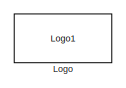
[diagram: root canvas - part 1/4, top right region]
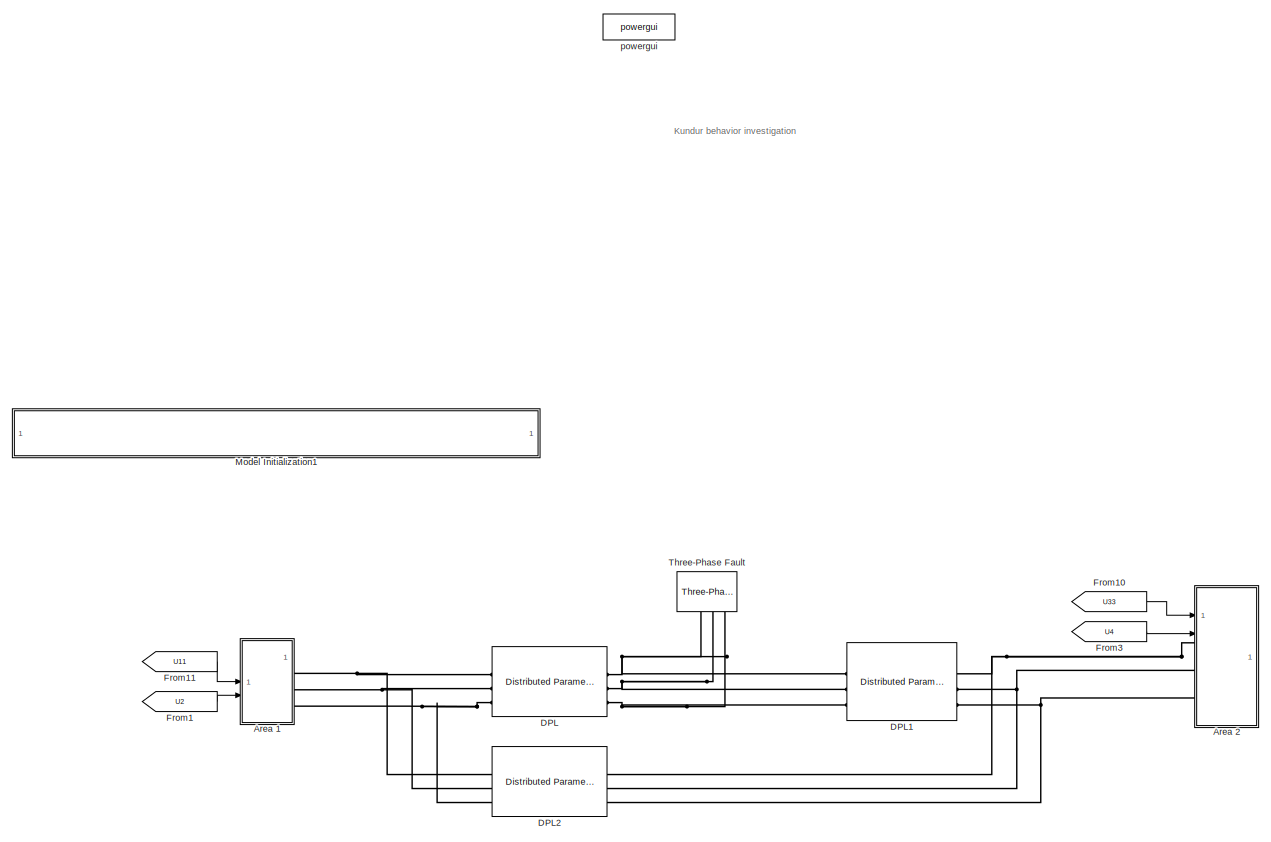
[diagram: root canvas - part 2/4, middle left region]
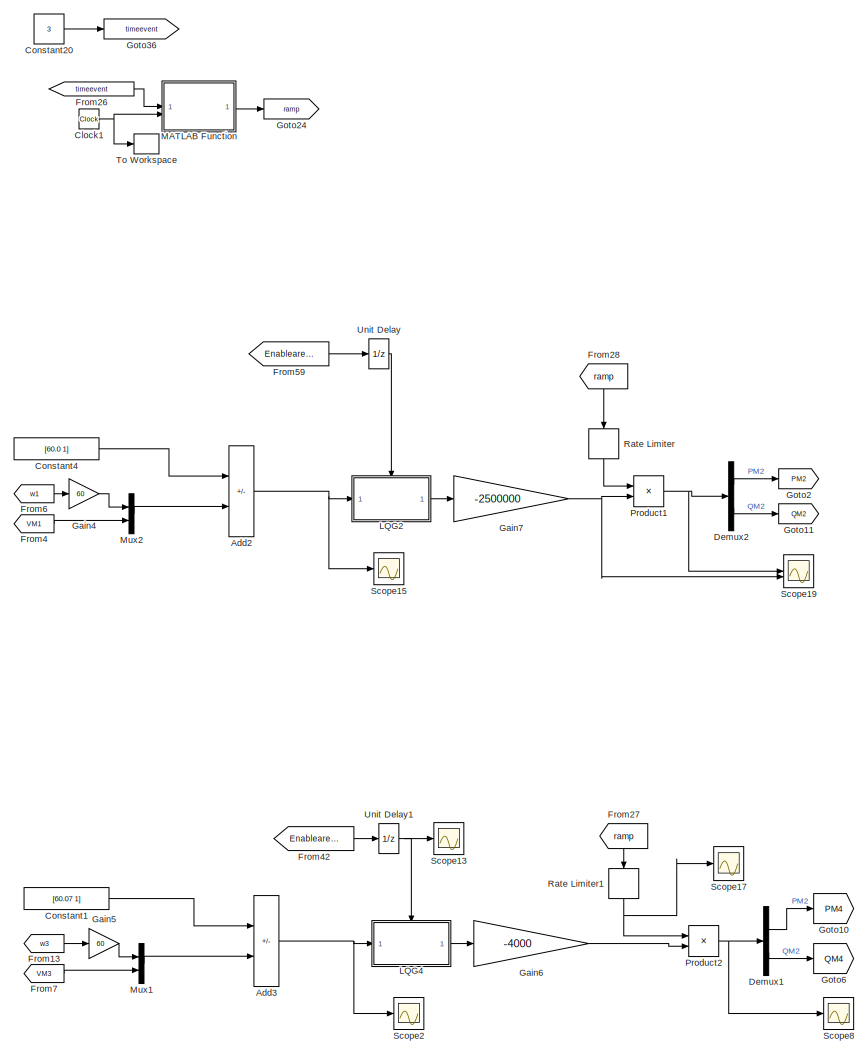
[diagram: root canvas - part 3/4, bottom center region]
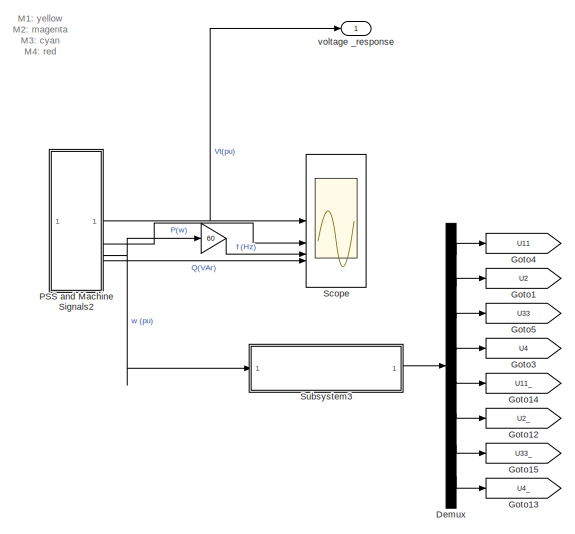
[diagram: root canvas - part 4/4, bottom center region]
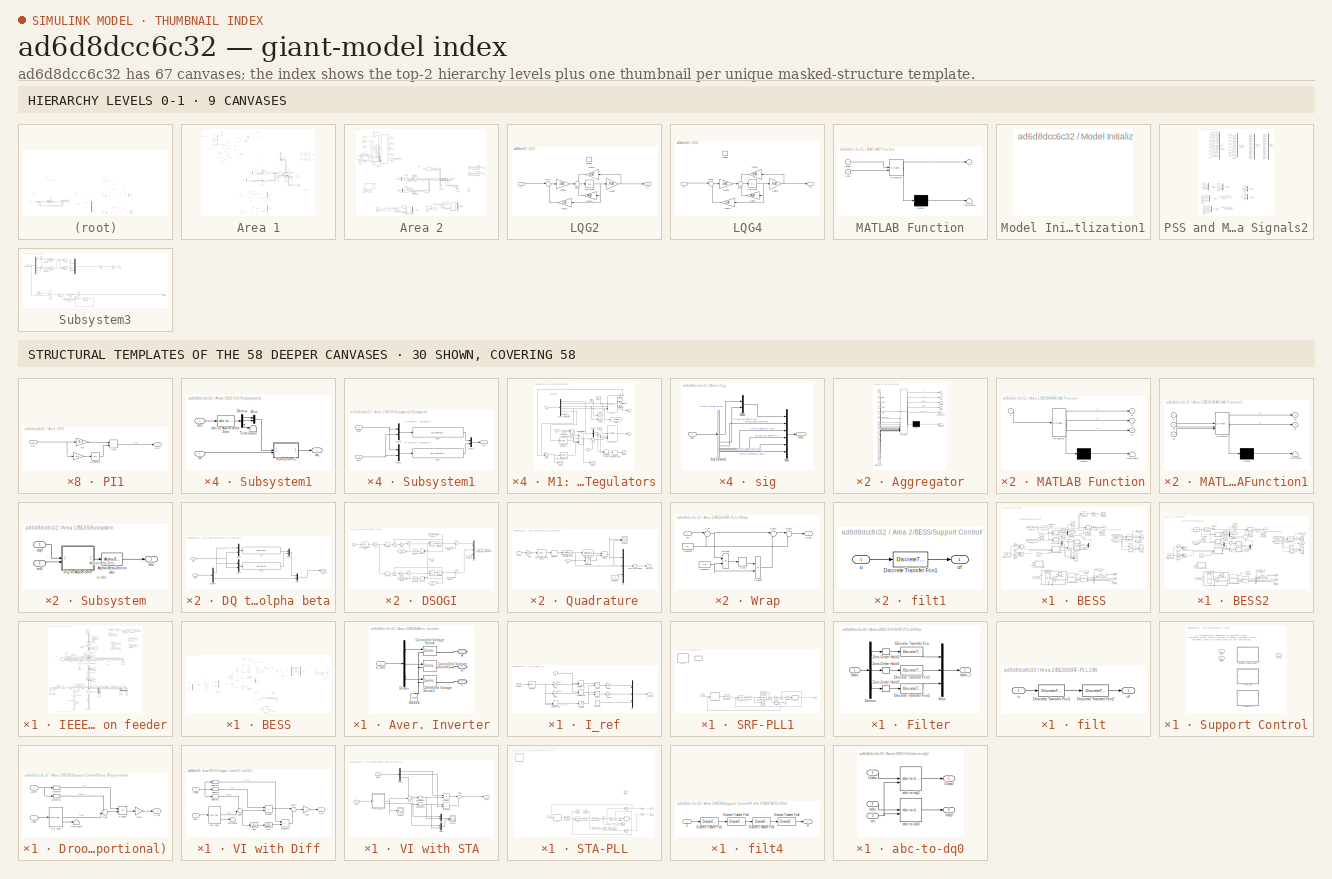
[diagram: thumbnail index - top-2 hierarchy levels (9 canvases) + 30 structural-template representatives of the remaining 58 canvases]
MODEL slx_ad6d8dcc6c32
KIND model
CONFIG AbsTol = auto
CONFIG EnableMultiTasking = on
CONFIG FixedStep = Ts
CONFIG InitFcn = Ts=50e-6;
CONFIG MaxStep = 1e-5
CONFIG MinStep = 1e-20
CONFIG PostLoadFcn = Ts=50e-6;
CONFIG PreLoadFcn = Ts=50e-6;
CONFIG RelTol = 1e-3
CONFIG SampleTimeConstraint = Unconstrained
CONFIG SolverName = VariableStepAuto
CONFIG StartTime = 0.0
CONFIG StopTime = 3
BLOCK [Gain]  
  Gain = 60
  NameLocation = top
  OutDataTypeStr = Inherit: Same as input
  ParamDataTypeStr = Inherit: Same as input
  SaturateOnIntegerOverflow = on
BLOCK [Sum] Add2
  IconShape = rectangular
  Inputs = +-
BLOCK [Sum] Add3
  IconShape = rectangular
  Inputs = +-
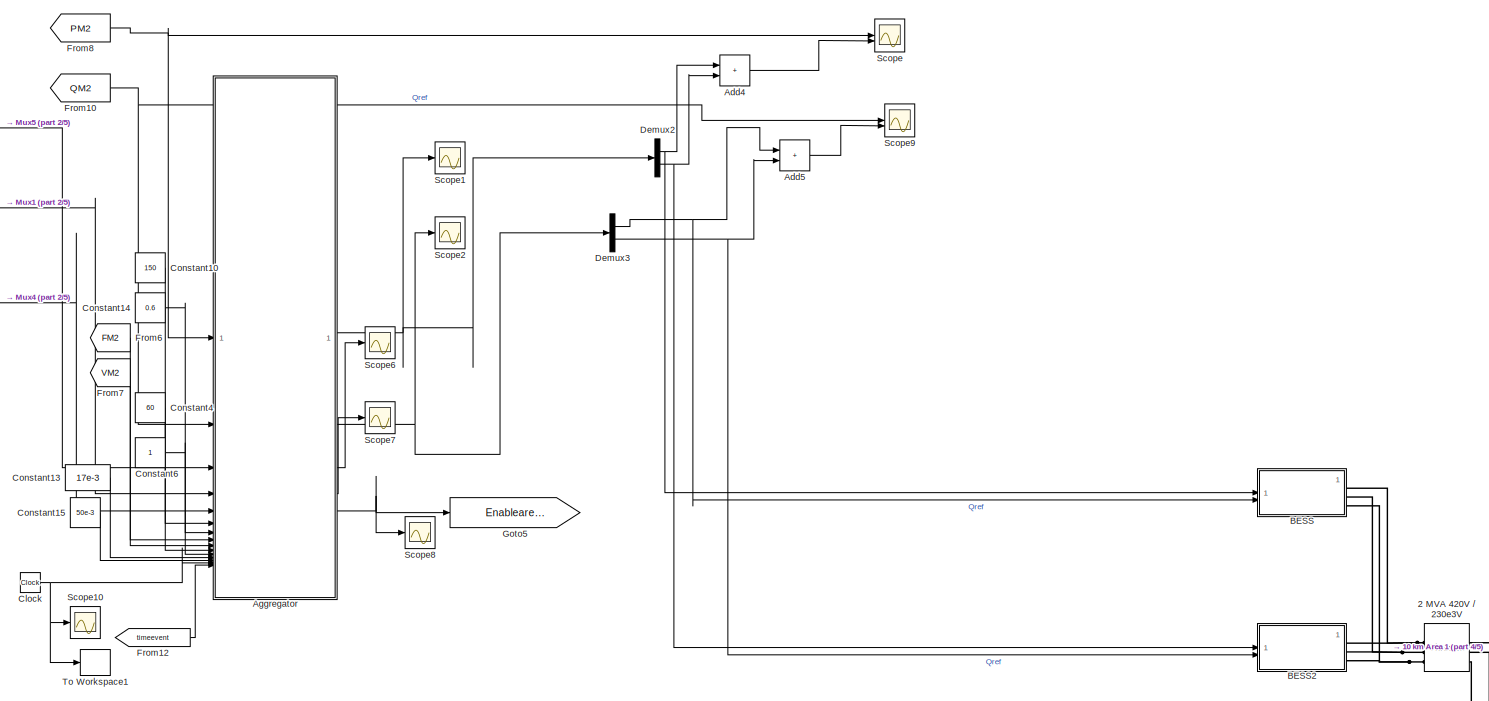
[diagram: Area 1 - part 1/5, top center region]
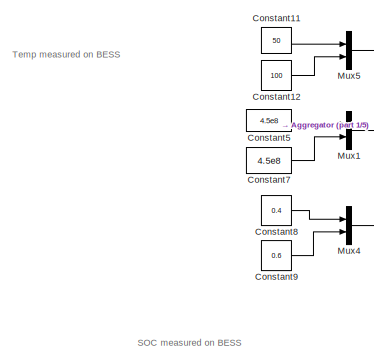
[diagram: Area 1 - part 2/5, top left region]
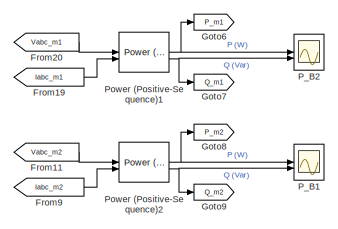
[diagram: Area 1 - part 3/5, top right region]
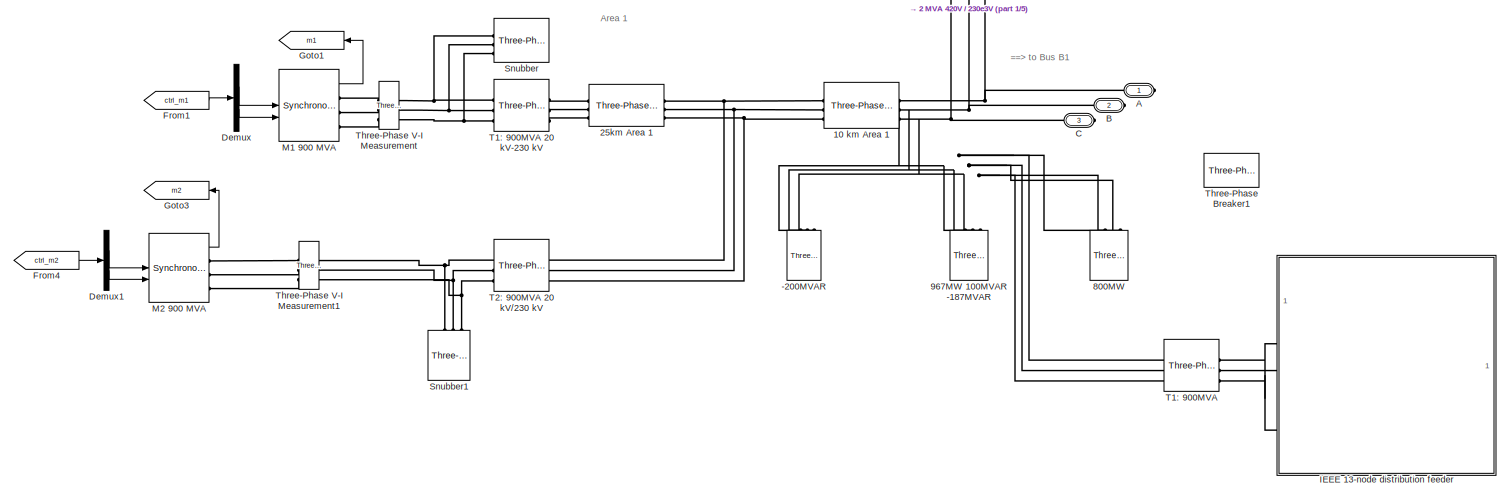
[diagram: Area 1 - part 4/5, central region]
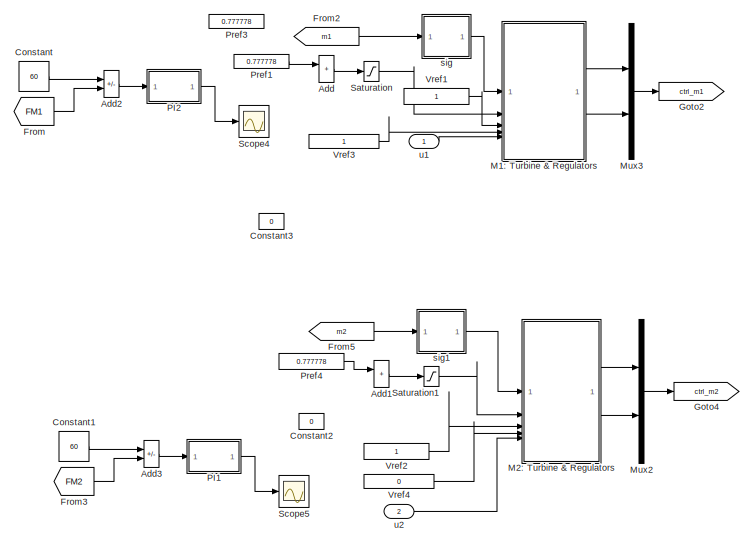
[diagram: Area 1 - part 5/5, bottom center region]
BLOCK [SubSystem] Area 1
BLOCK [PMIOPort] Area 1/ A
  Side = Right
BLOCK [PMIOPort] Area 1/ B
  Port = 2
  Side = Right
BLOCK [PMIOPort] Area 1/ C
  Port = 3
  Side = Right
BLOCK [Reference] Area 1/-200MVAR  REF=spsThreePhaseParallelRLCLoadLib/Three-Phase
Parallel RLC Load
  AttributesFormatString = \n
  NameLocation = right
  SourceBlock = spsThreePhaseParallelRLCLoadLib/Three-Phase\nParallel RLC Load
  SourceType = Three-Phase Parallel RLC Load
BLOCK [Reference] Area 1/10 km Area 1  REF=spsThreePhasePISectionLineLib/Three-Phase
PI Section Line
  AttributesFormatString = \n
  SourceBlock = spsThreePhasePISectionLineLib/Three-Phase\nPI Section Line
  SourceType = Three-Phase PI Section Line
BLOCK [Reference] Area 1/2 MVA 420V // 230e3V  REF=spsThreePhaseTransformerTwoWindingsLib/Three-Phase
Transformer
(Two Windings)
  AttributesFormatString = \n
  Commented = on
  NameLocation = top
  SourceBlock = spsThreePhaseTransformerTwoWindingsLib/Three-Phase\nTransformer\n(Two Windings)
  SourceType = Three-Phase Transformer (Two Windings)
BLOCK [Reference] Area 1/25km Area 1  REF=spsThreePhasePISectionLineLib/Three-Phase
PI Section Line
  AttributesFormatString = \n
  SourceBlock = spsThreePhasePISectionLineLib/Three-Phase\nPI Section Line
  SourceType = Three-Phase PI Section Line
BLOCK [Reference] Area 1/800MW   REF=spsThreePhaseParallelRLCLoadLib/Three-Phase
Parallel RLC Load
  AttributesFormatString = \n
  NameLocation = left
  SourceBlock = spsThreePhaseParallelRLCLoadLib/Three-Phase\nParallel RLC Load
  SourceType = Three-Phase Parallel RLC Load
BLOCK [Reference] Area 1/967MW 100MVAR -187MVAR  REF=spsThreePhaseParallelRLCLoadLib/Three-Phase
Parallel RLC Load
  AttributesFormatString = \n
  NameLocation = left
  SourceBlock = spsThreePhaseParallelRLCLoadLib/Three-Phase\nParallel RLC Load
  SourceType = Three-Phase Parallel RLC Load
BLOCK [Sum] Area 1/Add
  IconShape = rectangular
BLOCK [Sum] Area 1/Add1
  IconShape = rectangular
BLOCK [Sum] Area 1/Add2
  IconShape = rectangular
  Inputs = +-
BLOCK [Sum] Area 1/Add3
  IconShape = rectangular
  Inputs = +-
BLOCK [Sum] Area 1/Add4
  Commented = on
  IconShape = rectangular
BLOCK [Sum] Area 1/Add5
  Commented = on
  IconShape = rectangular
BLOCK [SubSystem] Area 1/Aggregator
  Commented = on
  ErrorFcn = Stateflow.Translate.translate
  PermitHierarchicalResolution = ExplicitOnly
  SFBlockType = MATLAB Function
  TreatAsAtomicUnit = on
BLOCK [Demux] Area 1/Aggregator/ Demux 
  Outputs = 1
BLOCK [S-Function] Area 1/Aggregator/ SFunction 
  EnableBusSupport = off
  FunctionName = sf_sfun
  PortCounts = [15 6]
  SFcnIsStateOwnerBlock = off
  SFunctionDeploymentMode = off
  Tag = Stateflow S-Function 12
BLOCK [Terminator] Area 1/Aggregator/ Terminator 
BLOCK [Inport] Area 1/Aggregator/DBf
  Port = 12
BLOCK [Inport] Area 1/Aggregator/DBv
  Port = 13
BLOCK [Outport] Area 1/Aggregator/P
  VectorParamsAs1DForOutWhenUnconnected = off
BLOCK [Inport] Area 1/Aggregator/Plqg
BLOCK [Outport] Area 1/Aggregator/Q
  Port = 2
  VectorParamsAs1DForOutWhenUnconnected = off
BLOCK [Inport] Area 1/Aggregator/Qlqg
  Port = 2
BLOCK [Inport] Area 1/Aggregator/SOC
  Port = 5
BLOCK [Inport] Area 1/Aggregator/Smax
  Port = 4
BLOCK [Inport] Area 1/Aggregator/Temp
  Port = 3
BLOCK [Inport] Area 1/Aggregator/Temp_max
  Port = 6
BLOCK [Inport] Area 1/Aggregator/Vk
  Port = 9
BLOCK [Inport] Area 1/Aggregator/Vref
  Port = 11
BLOCK [Inport] Area 1/Aggregator/beta
  Port = 7
BLOCK [Outport] Area 1/Aggregator/contingency
  Port = 5
  VectorParamsAs1DForOutWhenUnconnected = off
BLOCK [Outport] Area 1/Aggregator/deltaV
  Port = 4
  VectorParamsAs1DForOutWhenUnconnected = off
BLOCK [Outport] Area 1/Aggregator/deltaf
  Port = 3
  VectorParamsAs1DForOutWhenUnconnected = off
BLOCK [Inport] Area 1/Aggregator/fk
  Port = 8
BLOCK [Inport] Area 1/Aggregator/fref
  Port = 10
BLOCK [Inport] Area 1/Aggregator/time
  Port = 14
BLOCK [Inport] Area 1/Aggregator/timeevent
  Port = 15
BLOCK [SubSystem] Area 1/BESS
  Commented = on
BLOCK [Reference] Area 1/BESS/B1  REF=spsThreePhaseVIMeasurementLib/Three-Phase
V-I Measurement
  SourceBlock = spsThreePhaseVIMeasurementLib/Three-Phase\nV-I Measurement
  SourceType = Three-Phase VI Measurement
BLOCK [Clock] Area 1/BESS/Clock
  Commented = on
BLOCK [Constant] Area 1/BESS/Constant1
  Value = 0
BLOCK [Reference] Area 1/BESS/DC Voltage Source1  REF=spsDCVoltageSourceLib/DC Voltage Source
  NameLocation = right
  SourceBlock = spsDCVoltageSourceLib/DC Voltage Source
  SourceType = DC Voltage Source
BLOCK [Delay] Area 1/BESS/Delay One Step
  DelayLength = 1
  InputPortMap = u0
  NameLocation = right
BLOCK [Demux] Area 1/BESS/Demux
  Outputs = 2
BLOCK [Demux] Area 1/BESS/Demux1
  Outputs = 2
BLOCK [From] Area 1/BESS/From1
  GotoTag = Uref
  NameLocation = top
BLOCK [From] Area 1/BESS/From10
  GotoTag = Vd_C7
BLOCK [From] Area 1/BESS/From11
  GotoTag = Vabc_B2_C7
BLOCK [From] Area 1/BESS/From18
  GotoTag = Iabc_B1_C7
BLOCK [From] Area 1/BESS/From19
  CloseFcn = tagdialog Close
  GotoTag = Iabc_B1_C7
BLOCK [From] Area 1/BESS/From20
  CloseFcn = tagdialog Close
  GotoTag = Vabc_B2_C7
BLOCK [Gain] Area 1/BESS/Gain
  Gain = 1/420
BLOCK [Gain] Area 1/BESS/Gain1
  Gain = 1/420
BLOCK [Goto] Area 1/BESS/Goto
  GotoTag = Uref
BLOCK [Goto] Area 1/BESS/Goto1
  GotoTag = Vd_C7
BLOCK [Goto] Area 1/BESS/Goto2
  GotoTag = Vabc_B2_C7
BLOCK [Goto] Area 1/BESS/Goto3
  GotoTag = Iabc_B1_C7
BLOCK [Goto] Area 1/BESS/Goto4
  GotoTag = P_B1
  TagVisibility = global
BLOCK [Goto] Area 1/BESS/Goto5
  GotoTag = Q_B1
  TagVisibility = global
BLOCK [Reference] Area 1/BESS/L  REF=spsThreePhaseSeriesRLCBranchLib/Three-Phase
Series RLC Branch
  AttributesFormatString = \n
  SourceBlock = spsThreePhaseSeriesRLCBranchLib/Three-Phase\nSeries RLC Branch
  SourceType = Three-Phase Series RLC Branch
BLOCK [SubSystem] Area 1/BESS/MATLAB Function
  Commented = on
  ErrorFcn = Stateflow.Translate.translate
  PermitHierarchicalResolution = ExplicitOnly
  SFBlockType = MATLAB Function
  TreatAsAtomicUnit = on
BLOCK [Demux] Area 1/BESS/MATLAB Function/ Demux 
  Outputs = 1
BLOCK [S-Function] Area 1/BESS/MATLAB Function/ SFunction 
  EnableBusSupport = off
  FunctionName = sf_sfun
  PortCounts = [1 4]
  SFcnIsStateOwnerBlock = off
  SFunctionDeploymentMode = off
  Tag = Stateflow S-Function 18
BLOCK [Terminator] Area 1/BESS/MATLAB Function/ Terminator 
BLOCK [Inport] Area 1/BESS/MATLAB Function/u
BLOCK [Outport] Area 1/BESS/MATLAB Function/y1
  VectorParamsAs1DForOutWhenUnconnected = off
BLOCK [Outport] Area 1/BESS/MATLAB Function/y2
  Port = 2
  VectorParamsAs1DForOutWhenUnconnected = off
BLOCK [Outport] Area 1/BESS/MATLAB Function/y3
  Port = 3
  VectorParamsAs1DForOutWhenUnconnected = off
BLOCK [SubSystem] Area 1/BESS/MATLAB Function1
  ErrorFcn = Stateflow.Translate.translate
  PermitHierarchicalResolution = ExplicitOnly
  SFBlockType = MATLAB Function
  TreatAsAtomicUnit = on
BLOCK [Demux] Area 1/BESS/MATLAB Function1/ Demux 
  Outputs = 1
BLOCK [S-Function] Area 1/BESS/MATLAB Function1/ SFunction 
  EnableBusSupport = off
  FunctionName = sf_sfun
  PortCounts = [3 3]
  SFcnIsStateOwnerBlock = off
  SFunctionDeploymentMode = off
  Tag = Stateflow S-Function 19
BLOCK [Terminator] Area 1/BESS/MATLAB Function1/ Terminator 
BLOCK [Inport] Area 1/BESS/MATLAB Function1/P
BLOCK [Inport] Area 1/BESS/MATLAB Function1/Q
  Port = 2
BLOCK [Outport] Area 1/BESS/MATLAB Function1/id
  VectorParamsAs1DForOutWhenUnconnected = off
BLOCK [Outport] Area 1/BESS/MATLAB Function1/iq
  Port = 2
  VectorParamsAs1DForOutWhenUnconnected = off
BLOCK [Inport] Area 1/BESS/MATLAB Function1/vd
  Port = 3
BLOCK [Mux] Area 1/BESS/Mux1
  DisplayOption = bar
  Inputs = 3
BLOCK [Reference] Area 1/BESS/PLL (3ph)  REF=spsPLL3phLib/PLL
(3ph)
  SourceBlock = spsPLL3phLib/PLL\n(3ph)
  SourceType = PLL (3ph)
BLOCK [Scope] Area 1/BESS/P_B2
  Floating = off
  NumInputPorts = 2
  ScopeSpecificationString = Simulink.scopes.TimeScopeBlockCfg('CurrentConfiguration', extmgr.ConfigurationSet(extmgr.Configuration('Core','General UI',true),extmgr.Configuration('Core','Source UI',true),extmgr.Configuration('Sources','WiredSimulink',true,'DataLoggingSaveFormat','Array','DataLoggingDecimation','1','DataLoggingDecimateData',true,'DataLoggingVariableName','ScopeData14'),extmgr.Configuration('Visuals','Time Doma...<+1748ch>
BLOCK [Reference] Area 1/BESS/Power (Positive-Sequence)1  REF=spsPowerPositiveSequenceLib/Power
(Positive-Sequence)
  SourceBlock = spsPowerPositiveSequenceLib/Power\n(Positive-Sequence)
  SourceType = Power (Positive-Sequence)
BLOCK [Inport] Area 1/BESS/Pref
BLOCK [Inport] Area 1/BESS/Qref
  Port = 2
BLOCK [Scope] Area 1/BESS/Scope
  Floating = off
  NumInputPorts = 4
  ScopeSpecificationString = Simulink.scopes.TimeScopeBlockCfg('CurrentConfiguration', extmgr.ConfigurationSet(extmgr.Configuration('Core','General UI',true),extmgr.Configuration('Core','Source UI',true),extmgr.Configuration('Sources','WiredSimulink',true,'DataLoggingVariableName','ScopeData1'),extmgr.Configuration('Visuals','Time Domain',true,'SerializedDisplays',{struct('MinYLimReal','-41340.4868','MaxYLimReal','361737.5023...<+1441ch>
BLOCK [Scope] Area 1/BESS/Scope1
  Floating = off
  NumInputPorts = 1
  ScopeSpecificationString = Simulink.scopes.TimeScopeBlockCfg('CurrentConfiguration', extmgr.ConfigurationSet(extmgr.Configuration('Core','General UI',true),extmgr.Configuration('Core','Source UI',true),extmgr.Configuration('Sources','WiredSimulink',true,'DataLoggingVariableName','ScopeData2'),extmgr.Configuration('Visuals','Time Domain',true,'SerializedDisplays',{struct('MinYLimReal','-3.14966','MaxYLimReal','4.59294','YLab...<+1457ch>
BLOCK [Scope] Area 1/BESS/Scope10
  Floating = off
  NumInputPorts = 1
  ScopeSpecificationString = Simulink.scopes.TimeScopeBlockCfg('CurrentConfiguration', extmgr.ConfigurationSet(extmgr.Configuration('Core','General UI',true),extmgr.Configuration('Core','Source UI',true),extmgr.Configuration('Sources','WiredSimulink',true,'DataLoggingVariableName','ScopeData15'),extmgr.Configuration('Visuals','Time Domain',true,'SerializedDisplays',{struct('MinYLimReal','-3.14966','MaxYLimReal','4.59294','YLa...<+1457ch>
BLOCK [Scope] Area 1/BESS/Scope4
  Floating = off
  NumInputPorts = 1
  ScopeSpecificationString = Simulink.scopes.TimeScopeBlockCfg('CurrentConfiguration', extmgr.ConfigurationSet(extmgr.Configuration('Core','General UI',true),extmgr.Configuration('Core','Source UI',true),extmgr.Configuration('Sources','WiredSimulink',true,'DataLoggingVariableName','ScopeData17'),extmgr.Configuration('Visuals','Time Domain',true,'SerializedDisplays',{struct('MinYLimReal','-181.83771','MaxYLimReal','400.30232',...<+1472ch>
BLOCK [Scope] Area 1/BESS/Scope5
  Floating = off
  NumInputPorts = 1
  ScopeSpecificationString = Simulink.scopes.TimeScopeBlockCfg('CurrentConfiguration', extmgr.ConfigurationSet(extmgr.Configuration('Core','General UI',true),extmgr.Configuration('Core','Source UI',true),extmgr.Configuration('Sources','WiredSimulink',true,'DataLoggingVariableName','ScopeData18'),extmgr.Configuration('Visuals','Time Domain',true,'SerializedDisplays',{struct('MinYLimReal','-30198.86418','MaxYLimReal','4921.2622...<+1486ch>
BLOCK [Scope] Area 1/BESS/Scope6
  Floating = off
  NumInputPorts = 1
  ScopeSpecificationString = Simulink.scopes.TimeScopeBlockCfg('CurrentConfiguration', extmgr.ConfigurationSet(extmgr.Configuration('Core','General UI',true),extmgr.Configuration('Core','Source UI',true),extmgr.Configuration('Sources','WiredSimulink',true,'DataLoggingVariableName','ScopeData19'),extmgr.Configuration('Visuals','Time Domain',true,'SerializedDisplays',{struct('MinYLimReal','-151885.089','MaxYLimReal','156089.336...<+1474ch>
BLOCK [Scope] Area 1/BESS/Scope8
  Floating = off
  NumInputPorts = 1
  ScopeSpecificationString = Simulink.scopes.TimeScopeBlockCfg('CurrentConfiguration', extmgr.ConfigurationSet(extmgr.Configuration('Core','General UI',true),extmgr.Configuration('Core','Source UI',true),extmgr.Configuration('Sources','WiredSimulink',true,'DataLoggingVariableName','ScopeData20'),extmgr.Configuration('Visuals','Time Domain',true,'SerializedDisplays',{struct('MinYLimReal','-0.79647','MaxYLimReal','7.06873','YLa...<+1442ch>
BLOCK [Scope] Area 1/BESS/Scope9
  Floating = off
  NumInputPorts = 1
  ScopeSpecificationString = Simulink.scopes.TimeScopeBlockCfg('CurrentConfiguration', extmgr.ConfigurationSet(extmgr.Configuration('Core','General UI',true),extmgr.Configuration('Core','Source UI',true),extmgr.Configuration('Sources','WiredSimulink',true,'DataLoggingVariableName','ScopeData21'),extmgr.Configuration('Visuals','Time Domain',true,'SerializedDisplays',{struct('MinYLimReal','-98503.17516','MaxYLimReal','144860.71...<+1546ch>
BLOCK [Selector] Area 1/BESS/Selector
  IndexOptions = Index vector (dialog)
  Indices = [1]
  InputPortWidth = 3
  OutputSizes = 1
BLOCK [Selector] Area 1/BESS/Selector1
  IndexOptions = Index vector (dialog)
  Indices = [1]
  InputPortWidth = 3
  OutputSizes = 1
BLOCK [Reference] Area 1/BESS/Series RLC Branch1  REF=spsSeriesRLCBranchLib/Series RLC Branch
  NameLocation = right
  SourceBlock = spsSeriesRLCBranchLib/Series RLC Branch
  SourceType = Series RLC Branch
BLOCK [Reference] Area 1/BESS/Stair Generator  REF=spsStairGeneratorLib/Stair
Generator
  NameLocation = top
  SourceBlock = spsStairGeneratorLib/Stair\nGenerator
  SourceType = Stair Generator
BLOCK [SubSystem] Area 1/BESS/Subsystem
BLOCK [Reference] Area 1/BESS/Subsystem/Alpha-Beta-Zero to abc  REF=spsAlphaBetaZerotoabcLib/Alpha-Beta-Zero
to abc
  SourceBlock = spsAlphaBetaZerotoabcLib/Alpha-Beta-Zero\nto abc
  SourceType = Alpha-Beta-Zero to abc Transformation
BLOCK [SubSystem] Area 1/BESS/Subsystem/DQ to Alpha beta
BLOCK [Demux] Area 1/BESS/Subsystem/DQ to Alpha beta/Demux4
  Outputs = [2 1]
BLOCK [Fcn] Area 1/BESS/Subsystem/DQ to Alpha beta/Fcn
  Expr = u[1]*sin(u[3]) + u[2]*cos(u[3])
BLOCK [Fcn] Area 1/BESS/Subsystem/DQ to Alpha beta/Fcn1
  Expr = -u[1]*cos(u[3]) + u[2]*sin(u[3])
BLOCK [Mux] Area 1/BESS/Subsystem/DQ to Alpha beta/Mux1
  DisplayOption = bar
  Inputs = [2 1]
BLOCK [Mux] Area 1/BESS/Subsystem/DQ to Alpha beta/Mux4
  DisplayOption = bar
  Inputs = 2
BLOCK [Mux] Area 1/BESS/Subsystem/DQ to Alpha beta/Mux5
  DisplayOption = bar
  Inputs = [2 1]
BLOCK [Mux] Area 1/BESS/Subsystem/DQ to Alpha beta/Mux6
  DisplayOption = bar
  Inputs = [2 1]
BLOCK [Outport] Area 1/BESS/Subsystem/DQ to Alpha beta/al_be_0
  VectorParamsAs1DForOutWhenUnconnected = off
BLOCK [Inport] Area 1/BESS/Subsystem/DQ to Alpha beta/dq0
  PortDimensions = 3
BLOCK [Inport] Area 1/BESS/Subsystem/DQ to Alpha beta/wt1
  Port = 2
  PortDimensions = 1
BLOCK [Outport] Area 1/BESS/Subsystem/abc
  VectorParamsAs1DForOutWhenUnconnected = off
BLOCK [Inport] Area 1/BESS/Subsystem/dq0
  PortDimensions = 3
BLOCK [Inport] Area 1/BESS/Subsystem/wt1
  Port = 2
  PortDimensions = 1
BLOCK [SubSystem] Area 1/BESS/Subsystem1
BLOCK [Demux] Area 1/BESS/Subsystem1/Demux
  Outputs = 3
BLOCK [Mux] Area 1/BESS/Subsystem1/Mux
  DisplayOption = bar
  Inputs = 2
BLOCK [SubSystem] Area 1/BESS/Subsystem1/Subsystem1
BLOCK [Fcn] Area 1/BESS/Subsystem1/Subsystem1/Fcn
  Expr = u[1]*sin(u[3]) - u[2]*cos(u[3])
BLOCK [Fcn] Area 1/BESS/Subsystem1/Subsystem1/Fcn1
  Expr = u[1]*cos(u[3]) + u[2]*sin(u[3])
BLOCK [Mux] Area 1/BESS/Subsystem1/Subsystem1/Mux4
  DisplayOption = bar
  Inputs = 2
BLOCK [Mux] Area 1/BESS/Subsystem1/Subsystem1/Mux5
  DisplayOption = bar
  Inputs = [2 1]
BLOCK [Mux] Area 1/BESS/Subsystem1/Subsystem1/Mux6
  DisplayOption = bar
  Inputs = [2 1]
BLOCK [Inport] Area 1/BESS/Subsystem1/Subsystem1/al_be
  PortDimensions = 2
BLOCK [Outport] Area 1/BESS/Subsystem1/Subsystem1/dq
  VectorParamsAs1DForOutWhenUnconnected = off
BLOCK [Inport] Area 1/BESS/Subsystem1/Subsystem1/wt1
  Port = 2
  PortDimensions = 1
BLOCK [Terminator] Area 1/BESS/Subsystem1/Terminator
BLOCK [Inport] Area 1/BESS/Subsystem1/abc
  Port = 2
  PortDimensions = 3
BLOCK [Reference] Area 1/BESS/Subsystem1/abc to Alpha-Beta-Zero  REF=spsabctoAlphaBetaZeroLib/abc to
Alpha-Beta-Zero
  SourceBlock = spsabctoAlphaBetaZeroLib/abc to\nAlpha-Beta-Zero
  SourceType = abc to Alpha-Beta-Zero Transformation
BLOCK [Outport] Area 1/BESS/Subsystem1/dq
  VectorParamsAs1DForOutWhenUnconnected = off
BLOCK [Inport] Area 1/BESS/Subsystem1/wt
  PortDimensions = 1
BLOCK [SubSystem] Area 1/BESS/Subsystem2
BLOCK [Demux] Area 1/BESS/Subsystem2/Demux
  Outputs = 3
BLOCK [Mux] Area 1/BESS/Subsystem2/Mux
  DisplayOption = bar
  Inputs = 2
BLOCK [SubSystem] Area 1/BESS/Subsystem2/Subsystem1
BLOCK [Fcn] Area 1/BESS/Subsystem2/Subsystem1/Fcn
  Expr = u[1]*sin(u[3]) - u[2]*cos(u[3])
BLOCK [Fcn] Area 1/BESS/Subsystem2/Subsystem1/Fcn1
  Expr = u[1]*cos(u[3]) + u[2]*sin(u[3])
BLOCK [Mux] Area 1/BESS/Subsystem2/Subsystem1/Mux4
  DisplayOption = bar
  Inputs = 2
BLOCK [Mux] Area 1/BESS/Subsystem2/Subsystem1/Mux5
  DisplayOption = bar
  Inputs = [2 1]
BLOCK [Mux] Area 1/BESS/Subsystem2/Subsystem1/Mux6
  DisplayOption = bar
  Inputs = [2 1]
BLOCK [Inport] Area 1/BESS/Subsystem2/Subsystem1/al_be
  PortDimensions = 2
BLOCK [Outport] Area 1/BESS/Subsystem2/Subsystem1/dq
  VectorParamsAs1DForOutWhenUnconnected = off
BLOCK [Inport] Area 1/BESS/Subsystem2/Subsystem1/wt1
  Port = 2
  PortDimensions = 1
BLOCK [Terminator] Area 1/BESS/Subsystem2/Terminator
BLOCK [Inport] Area 1/BESS/Subsystem2/abc
  Port = 2
  PortDimensions = 3
BLOCK [Reference] Area 1/BESS/Subsystem2/abc to Alpha-Beta-Zero  REF=spsabctoAlphaBetaZeroLib/abc to
Alpha-Beta-Zero
  SourceBlock = spsabctoAlphaBetaZeroLib/abc to\nAlpha-Beta-Zero
  SourceType = abc to Alpha-Beta-Zero Transformation
BLOCK [Outport] Area 1/BESS/Subsystem2/dq
  VectorParamsAs1DForOutWhenUnconnected = off
BLOCK [Inport] Area 1/BESS/Subsystem2/wt
  PortDimensions = 1
BLOCK [SubSystem] Area 1/BESS/Subsystem3
BLOCK [Sum] Area 1/BESS/Subsystem3/Add
  IconShape = rectangular
BLOCK [Integrator] Area 1/BESS/Subsystem3/Integrator
BLOCK [Gain] Area 1/BESS/Subsystem3/Ki
  Gain = Ki
BLOCK [Gain] Area 1/BESS/Subsystem3/Kp
  Gain = Kp
BLOCK [Inport] Area 1/BESS/Subsystem3/e(S)
BLOCK [Outport] Area 1/BESS/Subsystem3/u(S)
  VectorParamsAs1DForOutWhenUnconnected = off
BLOCK [SubSystem] Area 1/BESS/Subsystem4
BLOCK [Sum] Area 1/BESS/Subsystem4/Add
  IconShape = rectangular
BLOCK [Integrator] Area 1/BESS/Subsystem4/Integrator
BLOCK [Gain] Area 1/BESS/Subsystem4/Ki
  Gain = Ki
BLOCK [Gain] Area 1/BESS/Subsystem4/Kp
  Gain = Kp
BLOCK [Inport] Area 1/BESS/Subsystem4/e(S)
BLOCK [Outport] Area 1/BESS/Subsystem4/u(S)
  VectorParamsAs1DForOutWhenUnconnected = off
BLOCK [Sum] Area 1/BESS/Sum1
  Inputs = |-+
BLOCK [Sum] Area 1/BESS/Sum2
  Inputs = |-+
BLOCK [Switch] Area 1/BESS/Switch1
  SaturateOnIntegerOverflow = off
  Threshold = 1
BLOCK [Switch] Area 1/BESS/Switch2
  SaturateOnIntegerOverflow = off
  Threshold = 1
BLOCK [Terminator] Area 1/BESS/Terminator
BLOCK [Terminator] Area 1/BESS/Terminator1
BLOCK [Reference] Area 1/BESS/VSC (Average Model)  REF=spsUniversalBridgeLib/Universal Bridge
  SourceBlock = spsUniversalBridgeLib/Universal Bridge
  SourceType = Universal Bridge
BLOCK [Scope] Area 1/BESS/V_I grid
  Floating = off
  NumInputPorts = 2
  ScopeSpecificationString = Simulink.scopes.TimeScopeBlockCfg('CurrentConfiguration', extmgr.ConfigurationSet(extmgr.Configuration('Core','General UI',true),extmgr.Configuration('Core','Source UI',true),extmgr.Configuration('Sources','WiredSimulink',true,'DataLoggingSaveFormat','Array','DataLoggingDecimation','1','DataLoggingDecimateData',true,'DataLoggingVariableName','ScopeData22'),extmgr.Configuration('Visuals','Time Doma...<+2324ch>
BLOCK [Scope] Area 1/BESS/Vdc_bus1
  Commented = on
  Floating = off
  NumInputPorts = 1
  ScopeSpecificationString = Simulink.scopes.TimeScopeBlockCfg('CurrentConfiguration', extmgr.ConfigurationSet(extmgr.Configuration('Core','General UI',true),extmgr.Configuration('Core','Source UI',true),extmgr.Configuration('Sources','WiredSimulink',true,'DataLoggingVariableName','ScopeData23'),extmgr.Configuration('Visuals','Time Domain',true,'SerializedDisplays',{struct('MinYLimReal','-322.16362','MaxYLimReal','2857.28873'...<+1497ch>
BLOCK [Reference] Area 1/BESS/Voltage Measurement1  REF=spsVoltageMeasurementLib/Voltage Measurement
  Commented = on
  SourceBlock = spsVoltageMeasurementLib/Voltage Measurement
  SourceType = Voltage Measurement
  UserDataPersistent = on
BLOCK [Constant] Area 1/BESS/Vref1 1
  Value = 0
BLOCK [Constant] Area 1/BESS/Vref1 2
  Value = 0
BLOCK [PMIOPort] Area 1/BESS/a
  Side = Right
BLOCK [PMIOPort] Area 1/BESS/b
  Port = 2
  Side = Right
BLOCK [PMIOPort] Area 1/BESS/c
  Port = 3
  Side = Right
BLOCK [Reference] Area 1/BESS/dq0 to abc  REF=spsdq0toabcLib/dq0 to abc
  SourceBlock = spsdq0toabcLib/dq0 to abc
  SourceType = dq0 to abc Transformation
BLOCK [SubSystem] Area 1/BESS2 
  Commented = on
BLOCK [Reference] Area 1/BESS2 /B1  REF=spsThreePhaseVIMeasurementLib/Three-Phase
V-I Measurement
  SourceBlock = spsThreePhaseVIMeasurementLib/Three-Phase\nV-I Measurement
  SourceType = Three-Phase VI Measurement
BLOCK [Clock] Area 1/BESS2 /Clock
  Commented = on
BLOCK [Constant] Area 1/BESS2 /Constant1
  Value = 0
BLOCK [Reference] Area 1/BESS2 /DC Voltage Source1  REF=spsDCVoltageSourceLib/DC Voltage Source
  NameLocation = right
  SourceBlock = spsDCVoltageSourceLib/DC Voltage Source
  SourceType = DC Voltage Source
BLOCK [Delay] Area 1/BESS2 /Delay One Step
  DelayLength = 1
  InputPortMap = u0
  NameLocation = right
BLOCK [Demux] Area 1/BESS2 /Demux
  Outputs = 2
BLOCK [Demux] Area 1/BESS2 /Demux1
  Outputs = 2
BLOCK [From] Area 1/BESS2 /From1
  GotoTag = Uref
  NameLocation = top
BLOCK [From] Area 1/BESS2 /From10
  GotoTag = Vd_C7
BLOCK [From] Area 1/BESS2 /From11
  GotoTag = Vabc_B2_C7
BLOCK [From] Area 1/BESS2 /From18
  GotoTag = Iabc_B1_C7
BLOCK [From] Area 1/BESS2 /From19
  CloseFcn = tagdialog Close
  GotoTag = Iabc_B1_C7
BLOCK [From] Area 1/BESS2 /From20
  CloseFcn = tagdialog Close
  GotoTag = Vabc_B2_C7
BLOCK [Gain] Area 1/BESS2 /Gain
  Gain = 1/420
BLOCK [Goto] Area 1/BESS2 /Goto
  GotoTag = Uref
BLOCK [Goto] Area 1/BESS2 /Goto1
  GotoTag = Vd_C7
BLOCK [Goto] Area 1/BESS2 /Goto2
  GotoTag = Vabc_B2_C7
BLOCK [Goto] Area 1/BESS2 /Goto3
  GotoTag = Iabc_B1_C7
BLOCK [Goto] Area 1/BESS2 /Goto4
  GotoTag = P_B2
  TagVisibility = global
BLOCK [Goto] Area 1/BESS2 /Goto5
  GotoTag = Q_B2
  TagVisibility = global
BLOCK [Reference] Area 1/BESS2 /L  REF=spsThreePhaseSeriesRLCBranchLib/Three-Phase
Series RLC Branch
  AttributesFormatString = \n
  SourceBlock = spsThreePhaseSeriesRLCBranchLib/Three-Phase\nSeries RLC Branch
  SourceType = Three-Phase Series RLC Branch
BLOCK [SubSystem] Area 1/BESS2 /MATLAB Function
  Commented = on
  ErrorFcn = Stateflow.Translate.translate
  PermitHierarchicalResolution = ExplicitOnly
  SFBlockType = MATLAB Function
  TreatAsAtomicUnit = on
BLOCK [Demux] Area 1/BESS2 /MATLAB Function/ Demux 
  Outputs = 1
BLOCK [S-Function] Area 1/BESS2 /MATLAB Function/ SFunction 
  EnableBusSupport = off
  FunctionName = sf_sfun
  PortCounts = [1 4]
  SFcnIsStateOwnerBlock = off
  SFunctionDeploymentMode = off
  Tag = Stateflow S-Function 6
BLOCK [Terminator] Area 1/BESS2 /MATLAB Function/ Terminator 
BLOCK [Inport] Area 1/BESS2 /MATLAB Function/u
BLOCK [Outport] Area 1/BESS2 /MATLAB Function/y1
  VectorParamsAs1DForOutWhenUnconnected = off
BLOCK [Outport] Area 1/BESS2 /MATLAB Function/y2
  Port = 2
  VectorParamsAs1DForOutWhenUnconnected = off
BLOCK [Outport] Area 1/BESS2 /MATLAB Function/y3
  Port = 3
  VectorParamsAs1DForOutWhenUnconnected = off
BLOCK [SubSystem] Area 1/BESS2 /MATLAB Function1
  ErrorFcn = Stateflow.Translate.translate
  PermitHierarchicalResolution = ExplicitOnly
  SFBlockType = MATLAB Function
  TreatAsAtomicUnit = on
BLOCK [Demux] Area 1/BESS2 /MATLAB Function1/ Demux 
  Outputs = 1
BLOCK [S-Function] Area 1/BESS2 /MATLAB Function1/ SFunction 
  EnableBusSupport = off
  FunctionName = sf_sfun
  PortCounts = [3 3]
  SFcnIsStateOwnerBlock = off
  SFunctionDeploymentMode = off
  Tag = Stateflow S-Function 7
BLOCK [Terminator] Area 1/BESS2 /MATLAB Function1/ Terminator 
BLOCK [Inport] Area 1/BESS2 /MATLAB Function1/P
BLOCK [Inport] Area 1/BESS2 /MATLAB Function1/Q
  Port = 2
BLOCK [Outport] Area 1/BESS2 /MATLAB Function1/id
  VectorParamsAs1DForOutWhenUnconnected = off
BLOCK [Outport] Area 1/BESS2 /MATLAB Function1/iq
  Port = 2
  VectorParamsAs1DForOutWhenUnconnected = off
BLOCK [Inport] Area 1/BESS2 /MATLAB Function1/vd
  Port = 3
BLOCK [Mux] Area 1/BESS2 /Mux1
  DisplayOption = bar
  Inputs = 3
BLOCK [Reference] Area 1/BESS2 /PLL (3ph)  REF=spsPLL3phLib/PLL
(3ph)
  SourceBlock = spsPLL3phLib/PLL\n(3ph)
  SourceType = PLL (3ph)
BLOCK [Scope] Area 1/BESS2 /P_B2
  Floating = off
  NumInputPorts = 2
  ScopeSpecificationString = Simulink.scopes.TimeScopeBlockCfg('CurrentConfiguration', extmgr.ConfigurationSet(extmgr.Configuration('Core','General UI',true),extmgr.Configuration('Core','Source UI',true),extmgr.Configuration('Sources','WiredSimulink',true,'DataLoggingSaveFormat','Array','DataLoggingDecimation','1','DataLoggingDecimateData',true,'DataLoggingVariableName','ScopeData14'),extmgr.Configuration('Visuals','Time Doma...<+1774ch>
BLOCK [Reference] Area 1/BESS2 /Power (Positive-Sequence)1  REF=spsPowerPositiveSequenceLib/Power
(Positive-Sequence)
  SourceBlock = spsPowerPositiveSequenceLib/Power\n(Positive-Sequence)
  SourceType = Power (Positive-Sequence)
BLOCK [Inport] Area 1/BESS2 /Pref
BLOCK [Inport] Area 1/BESS2 /Qref
  Port = 2
BLOCK [Scope] Area 1/BESS2 /Scope10
  Floating = off
  NumInputPorts = 1
  ScopeSpecificationString = Simulink.scopes.TimeScopeBlockCfg('CurrentConfiguration', extmgr.ConfigurationSet(extmgr.Configuration('Core','General UI',true),extmgr.Configuration('Core','Source UI',true),extmgr.Configuration('Sources','WiredSimulink',true,'DataLoggingVariableName','ScopeData15'),extmgr.Configuration('Visuals','Time Domain',true,'SerializedDisplays',{struct('MinYLimReal','-4534352.98313','MaxYLimReal','5763407...<+1503ch>
BLOCK [Scope] Area 1/BESS2 /Scope4
  Floating = off
  NumInputPorts = 1
  ScopeSpecificationString = Simulink.scopes.TimeScopeBlockCfg('CurrentConfiguration', extmgr.ConfigurationSet(extmgr.Configuration('Core','General UI',true),extmgr.Configuration('Core','Source UI',true),extmgr.Configuration('Sources','WiredSimulink',true,'DataLoggingVariableName','ScopeData17'),extmgr.Configuration('Visuals','Time Domain',true,'SerializedDisplays',{struct('MinYLimReal','-36.97693','MaxYLimReal','332.79233','...<+1443ch>
BLOCK [Scope] Area 1/BESS2 /Scope5
  Floating = off
  NumInputPorts = 1
  ScopeSpecificationString = Simulink.scopes.TimeScopeBlockCfg('CurrentConfiguration', extmgr.ConfigurationSet(extmgr.Configuration('Core','General UI',true),extmgr.Configuration('Core','Source UI',true),extmgr.Configuration('Sources','WiredSimulink',true,'DataLoggingVariableName','ScopeData18'),extmgr.Configuration('Visuals','Time Domain',true,'SerializedDisplays',{struct('MinYLimReal','-30198.86418','MaxYLimReal','4921.2622...<+1486ch>
BLOCK [Scope] Area 1/BESS2 /Scope6
  Floating = off
  NumInputPorts = 1
  ScopeSpecificationString = Simulink.scopes.TimeScopeBlockCfg('CurrentConfiguration', extmgr.ConfigurationSet(extmgr.Configuration('Core','General UI',true),extmgr.Configuration('Core','Source UI',true),extmgr.Configuration('Sources','WiredSimulink',true,'DataLoggingVariableName','ScopeData19'),extmgr.Configuration('Visuals','Time Domain',true,'SerializedDisplays',{struct('MinYLimReal','-146061406.10965','MaxYLimReal','18879...<+1504ch>
BLOCK [Scope] Area 1/BESS2 /Scope8
  Floating = off
  NumInputPorts = 1
  ScopeSpecificationString = Simulink.scopes.TimeScopeBlockCfg('CurrentConfiguration', extmgr.ConfigurationSet(extmgr.Configuration('Core','General UI',true),extmgr.Configuration('Core','Source UI',true),extmgr.Configuration('Sources','WiredSimulink',true,'DataLoggingVariableName','ScopeData20'),extmgr.Configuration('Visuals','Time Domain',true,'SerializedDisplays',{struct('MinYLimReal','-0.79647','MaxYLimReal','7.06873','YLa...<+1442ch>
BLOCK [Scope] Area 1/BESS2 /Scope9
  Floating = off
  NumInputPorts = 1
  ScopeSpecificationString = Simulink.scopes.TimeScopeBlockCfg('CurrentConfiguration', extmgr.ConfigurationSet(extmgr.Configuration('Core','General UI',true),extmgr.Configuration('Core','Source UI',true),extmgr.Configuration('Sources','WiredSimulink',true,'DataLoggingVariableName','ScopeData21'),extmgr.Configuration('Visuals','Time Domain',true,'SerializedDisplays',{struct('MinYLimReal','-5096.06665','MaxYLimReal','5601.42624...<+1482ch>
BLOCK [Selector] Area 1/BESS2 /Selector
  IndexOptions = Index vector (dialog)
  Indices = [1]
  InputPortWidth = 3
  OutputSizes = 1
BLOCK [Selector] Area 1/BESS2 /Selector1
  IndexOptions = Index vector (dialog)
  Indices = [1]
  InputPortWidth = 3
  OutputSizes = 1
BLOCK [Reference] Area 1/BESS2 /Series RLC Branch1  REF=spsSeriesRLCBranchLib/Series RLC Branch
  NameLocation = right
  SourceBlock = spsSeriesRLCBranchLib/Series RLC Branch
  SourceType = Series RLC Branch
BLOCK [Reference] Area 1/BESS2 /Stair Generator  REF=spsStairGeneratorLib/Stair
Generator
  NameLocation = top
  SourceBlock = spsStairGeneratorLib/Stair\nGenerator
  SourceType = Stair Generator
BLOCK [SubSystem] Area 1/BESS2 /Subsystem
BLOCK [Reference] Area 1/BESS2 /Subsystem/Alpha-Beta-Zero to abc  REF=spsAlphaBetaZerotoabcLib/Alpha-Beta-Zero
to abc
  SourceBlock = spsAlphaBetaZerotoabcLib/Alpha-Beta-Zero\nto abc
  SourceType = Alpha-Beta-Zero to abc Transformation
BLOCK [SubSystem] Area 1/BESS2 /Subsystem/DQ to Alpha beta
BLOCK [Demux] Area 1/BESS2 /Subsystem/DQ to Alpha beta/Demux4
  Outputs = [2 1]
BLOCK [Fcn] Area 1/BESS2 /Subsystem/DQ to Alpha beta/Fcn
  Expr = u[1]*sin(u[3]) + u[2]*cos(u[3])
BLOCK [Fcn] Area 1/BESS2 /Subsystem/DQ to Alpha beta/Fcn1
  Expr = -u[1]*cos(u[3]) + u[2]*sin(u[3])
BLOCK [Mux] Area 1/BESS2 /Subsystem/DQ to Alpha beta/Mux1
  DisplayOption = bar
  Inputs = [2 1]
BLOCK [Mux] Area 1/BESS2 /Subsystem/DQ to Alpha beta/Mux4
  DisplayOption = bar
  Inputs = 2
BLOCK [Mux] Area 1/BESS2 /Subsystem/DQ to Alpha beta/Mux5
  DisplayOption = bar
  Inputs = [2 1]
BLOCK [Mux] Area 1/BESS2 /Subsystem/DQ to Alpha beta/Mux6
  DisplayOption = bar
  Inputs = [2 1]
BLOCK [Outport] Area 1/BESS2 /Subsystem/DQ to Alpha beta/al_be_0
  VectorParamsAs1DForOutWhenUnconnected = off
BLOCK [Inport] Area 1/BESS2 /Subsystem/DQ to Alpha beta/dq0
  PortDimensions = 3
BLOCK [Inport] Area 1/BESS2 /Subsystem/DQ to Alpha beta/wt1
  Port = 2
  PortDimensions = 1
BLOCK [Outport] Area 1/BESS2 /Subsystem/abc
  VectorParamsAs1DForOutWhenUnconnected = off
BLOCK [Inport] Area 1/BESS2 /Subsystem/dq0
  PortDimensions = 3
BLOCK [Inport] Area 1/BESS2 /Subsystem/wt1
  Port = 2
  PortDimensions = 1
BLOCK [SubSystem] Area 1/BESS2 /Subsystem1
BLOCK [Demux] Area 1/BESS2 /Subsystem1/Demux
  Outputs = 3
BLOCK [Mux] Area 1/BESS2 /Subsystem1/Mux
  DisplayOption = bar
  Inputs = 2
BLOCK [SubSystem] Area 1/BESS2 /Subsystem1/Subsystem1
BLOCK [Fcn] Area 1/BESS2 /Subsystem1/Subsystem1/Fcn
  Expr = u[1]*sin(u[3]) - u[2]*cos(u[3])
BLOCK [Fcn] Area 1/BESS2 /Subsystem1/Subsystem1/Fcn1
  Expr = u[1]*cos(u[3]) + u[2]*sin(u[3])
BLOCK [Mux] Area 1/BESS2 /Subsystem1/Subsystem1/Mux4
  DisplayOption = bar
  Inputs = 2
BLOCK [Mux] Area 1/BESS2 /Subsystem1/Subsystem1/Mux5
  DisplayOption = bar
  Inputs = [2 1]
BLOCK [Mux] Area 1/BESS2 /Subsystem1/Subsystem1/Mux6
  DisplayOption = bar
  Inputs = [2 1]
BLOCK [Inport] Area 1/BESS2 /Subsystem1/Subsystem1/al_be
  PortDimensions = 2
BLOCK [Outport] Area 1/BESS2 /Subsystem1/Subsystem1/dq
  VectorParamsAs1DForOutWhenUnconnected = off
BLOCK [Inport] Area 1/BESS2 /Subsystem1/Subsystem1/wt1
  Port = 2
  PortDimensions = 1
BLOCK [Terminator] Area 1/BESS2 /Subsystem1/Terminator
BLOCK [Inport] Area 1/BESS2 /Subsystem1/abc
  Port = 2
  PortDimensions = 3
BLOCK [Reference] Area 1/BESS2 /Subsystem1/abc to Alpha-Beta-Zero  REF=spsabctoAlphaBetaZeroLib/abc to
Alpha-Beta-Zero
  SourceBlock = spsabctoAlphaBetaZeroLib/abc to\nAlpha-Beta-Zero
  SourceType = abc to Alpha-Beta-Zero Transformation
BLOCK [Outport] Area 1/BESS2 /Subsystem1/dq
  VectorParamsAs1DForOutWhenUnconnected = off
BLOCK [Inport] Area 1/BESS2 /Subsystem1/wt
  PortDimensions = 1
BLOCK [SubSystem] Area 1/BESS2 /Subsystem2
BLOCK [Demux] Area 1/BESS2 /Subsystem2/Demux
  Outputs = 3
BLOCK [Mux] Area 1/BESS2 /Subsystem2/Mux
  DisplayOption = bar
  Inputs = 2
BLOCK [SubSystem] Area 1/BESS2 /Subsystem2/Subsystem1
BLOCK [Fcn] Area 1/BESS2 /Subsystem2/Subsystem1/Fcn
  Expr = u[1]*sin(u[3]) - u[2]*cos(u[3])
BLOCK [Fcn] Area 1/BESS2 /Subsystem2/Subsystem1/Fcn1
  Expr = u[1]*cos(u[3]) + u[2]*sin(u[3])
BLOCK [Mux] Area 1/BESS2 /Subsystem2/Subsystem1/Mux4
  DisplayOption = bar
  Inputs = 2
BLOCK [Mux] Area 1/BESS2 /Subsystem2/Subsystem1/Mux5
  DisplayOption = bar
  Inputs = [2 1]
BLOCK [Mux] Area 1/BESS2 /Subsystem2/Subsystem1/Mux6
  DisplayOption = bar
  Inputs = [2 1]
BLOCK [Inport] Area 1/BESS2 /Subsystem2/Subsystem1/al_be
  PortDimensions = 2
BLOCK [Outport] Area 1/BESS2 /Subsystem2/Subsystem1/dq
  VectorParamsAs1DForOutWhenUnconnected = off
BLOCK [Inport] Area 1/BESS2 /Subsystem2/Subsystem1/wt1
  Port = 2
  PortDimensions = 1
BLOCK [Terminator] Area 1/BESS2 /Subsystem2/Terminator
BLOCK [Inport] Area 1/BESS2 /Subsystem2/abc
  Port = 2
  PortDimensions = 3
BLOCK [Reference] Area 1/BESS2 /Subsystem2/abc to Alpha-Beta-Zero  REF=spsabctoAlphaBetaZeroLib/abc to
Alpha-Beta-Zero
  SourceBlock = spsabctoAlphaBetaZeroLib/abc to\nAlpha-Beta-Zero
  SourceType = abc to Alpha-Beta-Zero Transformation
BLOCK [Outport] Area 1/BESS2 /Subsystem2/dq
  VectorParamsAs1DForOutWhenUnconnected = off
BLOCK [Inport] Area 1/BESS2 /Subsystem2/wt
  PortDimensions = 1
BLOCK [SubSystem] Area 1/BESS2 /Subsystem3
BLOCK [Sum] Area 1/BESS2 /Subsystem3/Add
  IconShape = rectangular
BLOCK [Integrator] Area 1/BESS2 /Subsystem3/Integrator
BLOCK [Gain] Area 1/BESS2 /Subsystem3/Ki
  Gain = Ki
BLOCK [Gain] Area 1/BESS2 /Subsystem3/Kp
  Gain = Kp
BLOCK [Inport] Area 1/BESS2 /Subsystem3/e(S)
BLOCK [Outport] Area 1/BESS2 /Subsystem3/u(S)
  VectorParamsAs1DForOutWhenUnconnected = off
BLOCK [SubSystem] Area 1/BESS2 /Subsystem4
BLOCK [Sum] Area 1/BESS2 /Subsystem4/Add
  IconShape = rectangular
BLOCK [Integrator] Area 1/BESS2 /Subsystem4/Integrator
BLOCK [Gain] Area 1/BESS2 /Subsystem4/Ki
  Gain = Ki
BLOCK [Gain] Area 1/BESS2 /Subsystem4/Kp
  Gain = Kp
BLOCK [Inport] Area 1/BESS2 /Subsystem4/e(S)
BLOCK [Outport] Area 1/BESS2 /Subsystem4/u(S)
  VectorParamsAs1DForOutWhenUnconnected = off
BLOCK [Sum] Area 1/BESS2 /Sum1
  Inputs = |-+
BLOCK [Sum] Area 1/BESS2 /Sum2
  Inputs = |-+
BLOCK [Switch] Area 1/BESS2 /Switch1
  SaturateOnIntegerOverflow = off
  Threshold = 1
BLOCK [Switch] Area 1/BESS2 /Switch2
  SaturateOnIntegerOverflow = off
  Threshold = 1
BLOCK [Terminator] Area 1/BESS2 /Terminator
BLOCK [Terminator] Area 1/BESS2 /Terminator1
BLOCK [Reference] Area 1/BESS2 /VSC (Average Model)  REF=spsUniversalBridgeLib/Universal Bridge
  SourceBlock = spsUniversalBridgeLib/Universal Bridge
  SourceType = Universal Bridge
BLOCK [Scope] Area 1/BESS2 /V_I grid
  Floating = off
  NumInputPorts = 2
  ScopeSpecificationString = Simulink.scopes.TimeScopeBlockCfg('CurrentConfiguration', extmgr.ConfigurationSet(extmgr.Configuration('Core','General UI',true),extmgr.Configuration('Core','Source UI',true),extmgr.Configuration('Sources','WiredSimulink',true,'DataLoggingSaveFormat','Array','DataLoggingDecimation','1','DataLoggingDecimateData',true,'DataLoggingVariableName','ScopeData22'),extmgr.Configuration('Visuals','Time Doma...<+2350ch>
BLOCK [Scope] Area 1/BESS2 /Vdc_bus1
  Commented = on
  Floating = off
  NumInputPorts = 1
  ScopeSpecificationString = Simulink.scopes.TimeScopeBlockCfg('CurrentConfiguration', extmgr.ConfigurationSet(extmgr.Configuration('Core','General UI',true),extmgr.Configuration('Core','Source UI',true),extmgr.Configuration('Sources','WiredSimulink',true,'DataLoggingVariableName','ScopeData23'),extmgr.Configuration('Visuals','Time Domain',true,'SerializedDisplays',{struct('MinYLimReal','-322.16362','MaxYLimReal','2857.28873'...<+1497ch>
BLOCK [Reference] Area 1/BESS2 /Voltage Measurement1  REF=spsVoltageMeasurementLib/Voltage Measurement
  Commented = on
  SourceBlock = spsVoltageMeasurementLib/Voltage Measurement
  SourceType = Voltage Measurement
  UserDataPersistent = on
BLOCK [Constant] Area 1/BESS2 /Vref1 1
  Value = 0
BLOCK [Constant] Area 1/BESS2 /Vref1 2
  Value = 0
BLOCK [PMIOPort] Area 1/BESS2 /a
  Side = Right
BLOCK [PMIOPort] Area 1/BESS2 /b
  Port = 2
  Side = Right
BLOCK [PMIOPort] Area 1/BESS2 /c
  Port = 3
  Side = Right
BLOCK [Clock] Area 1/Clock
  Commented = on
  Decimation = 1
BLOCK [Constant] Area 1/Constant
  Value = 60
BLOCK [Constant] Area 1/Constant1
  Value = 60
BLOCK [Constant] Area 1/Constant10
  Commented = on
  Value = 150
BLOCK [Constant] Area 1/Constant11
  Commented = on
  Value = 50
BLOCK [Constant] Area 1/Constant12
  Commented = on
  Value = 100
BLOCK [Constant] Area 1/Constant13
  Commented = on
  Value = 17e-3
BLOCK [Constant] Area 1/Constant14
  Commented = on
  Value = 0.6
BLOCK [Constant] Area 1/Constant15
  Commented = on
  Value = 50e-3
BLOCK [Constant] Area 1/Constant2
  Commented = on
  Value = 0
BLOCK [Constant] Area 1/Constant3
  Commented = on
  Value = 0
BLOCK [Constant] Area 1/Constant4
  Commented = on
  Value = 60
BLOCK [Constant] Area 1/Constant5
  Commented = on
  Value = 4.5e8
BLOCK [Constant] Area 1/Constant6
  Commented = on
BLOCK [Constant] Area 1/Constant7
  Commented = on
  Value = 4.5e8
BLOCK [Constant] Area 1/Constant8
  Commented = on
  Value = 0.4
BLOCK [Constant] Area 1/Constant9
  Commented = on
  Value = 0.6
BLOCK [Demux] Area 1/Demux
  Outputs = [1 1]
BLOCK [Demux] Area 1/Demux1
  Outputs = [1 1]
BLOCK [Demux] Area 1/Demux2
  Commented = on
  Outputs = 2
BLOCK [Demux] Area 1/Demux3
  Commented = on
  Outputs = 2
BLOCK [From] Area 1/From
  GotoTag = FM1
  TagVisibility = global
BLOCK [From] Area 1/From1
  CloseFcn = tagdialog Close
  GotoTag = ctrl_m1
BLOCK [From] Area 1/From10
  Commented = on
  GotoTag = QM2
  TagVisibility = global
BLOCK [From] Area 1/From11
  CloseFcn = tagdialog Close
  Commented = on
  GotoTag = Vabc_m2
  TagVisibility = global
BLOCK [From] Area 1/From12
  Commented = on
  GotoTag = timeevent
  TagVisibility = global
BLOCK [From] Area 1/From19
  CloseFcn = tagdialog Close
  Commented = on
  GotoTag = Iabc_m1
  TagVisibility = global
BLOCK [From] Area 1/From2
  CloseFcn = tagdialog Close
  GotoTag = m1
BLOCK [From] Area 1/From20
  CloseFcn = tagdialog Close
  Commented = on
  GotoTag = Vabc_m1
  TagVisibility = global
BLOCK [From] Area 1/From3
  GotoTag = FM2
  TagVisibility = global
BLOCK [From] Area 1/From4
  CloseFcn = tagdialog Close
  GotoTag = ctrl_m2
BLOCK [From] Area 1/From5
  CloseFcn = tagdialog Close
  GotoTag = m2
BLOCK [From] Area 1/From6
  Commented = on
  GotoTag = FM2
  TagVisibility = global
BLOCK [From] Area 1/From7
  Commented = on
  GotoTag = VM2
  TagVisibility = global
BLOCK [From] Area 1/From8
  Commented = on
  GotoTag = PM2
  TagVisibility = global
BLOCK [From] Area 1/From9
  CloseFcn = tagdialog Close
  Commented = on
  GotoTag = Iabc_m2
  TagVisibility = global
BLOCK [Goto] Area 1/Goto1
  GotoTag = m1
  NameLocation = top
BLOCK [Goto] Area 1/Goto2
  GotoTag = ctrl_m1
BLOCK [Goto] Area 1/Goto3
  GotoTag = m2
  NameLocation = top
BLOCK [Goto] Area 1/Goto4
  GotoTag = ctrl_m2
BLOCK [Goto] Area 1/Goto5
  Commented = on
  GotoTag = Enablearea1
  TagVisibility = global
BLOCK [Goto] Area 1/Goto6
  Commented = on
  GotoTag = P_m1
  TagVisibility = global
BLOCK [Goto] Area 1/Goto7
  Commented = on
  GotoTag = Q_m1
  TagVisibility = global
BLOCK [Goto] Area 1/Goto8
  Commented = on
  GotoTag = P_m2
  TagVisibility = global
BLOCK [Goto] Area 1/Goto9
  Commented = on
  GotoTag = Q_m2
  TagVisibility = global
BLOCK [SubSystem] Area 1/IEEE 13-node distribution feeder
  Commented = on
BLOCK [Reference] Area 1/IEEE 13-node distribution feeder/ 634 Yg PQ   REF=spsThreePhaseSeriesRLCLoadLib/Three-Phase
Series RLC Load
  AttributesFormatString = P= %<Pabc> W\nQl=%<QLabc> var\nQc=%<QCabc> var
  NameLocation = right
  SourceBlock = spsThreePhaseSeriesRLCLoadLib/Three-Phase\nSeries RLC Load
  SourceType = Three-Phase Series RLC Load
BLOCK [Reference] Area 1/IEEE 13-node distribution feeder/611 I  REF=spsSeriesRLCLoadLib/Series RLC Load
  AttributesFormatString = P=%<ActivePower> W\nQl=%<InductivePower> var\nQc=%<CapacitivePower> var
  NameLocation = right
  SourceBlock = spsSeriesRLCLoadLib/Series RLC Load
  SourceType = Series RLC Load
BLOCK [Reference] Area 1/IEEE 13-node distribution feeder/611 Z  REF=spsSeriesRLCLoadLib/Series RLC Load
  AttributesFormatString = P=%<ActivePower> W\nQl=%<InductivePower> var\nQc=%<CapacitivePower> var
  NameLocation = left
  SourceBlock = spsSeriesRLCLoadLib/Series RLC Load
  SourceType = Series RLC Load
BLOCK [Reference] Area 1/IEEE 13-node distribution feeder/632  REF=spsThreePhaseVIMeasurementLib/Three-Phase
V-I Measurement
  NameLocation = left
  SourceBlock = spsThreePhaseVIMeasurementLib/Three-Phase\nV-I Measurement
  SourceType = Three-Phase VI Measurement
BLOCK [Reference] Area 1/IEEE 13-node distribution feeder/632 Yg PQ  REF=spsThreePhaseSeriesRLCLoadLib/Three-Phase
Series RLC Load
  AttributesFormatString = P= %<Pabc> W\nQl=%<QLabc> var\nQc=%<QCabc> var
  NameLocation = top
  SourceBlock = spsThreePhaseSeriesRLCLoadLib/Three-Phase\nSeries RLC Load
  SourceType = Three-Phase Series RLC Load
BLOCK [Reference] Area 1/IEEE 13-node distribution feeder/633  REF=spsThreePhaseVIMeasurementLib/Three-Phase
V-I Measurement
  SourceBlock = spsThreePhaseVIMeasurementLib/Three-Phase\nV-I Measurement
  SourceType = Three-Phase VI Measurement
BLOCK [Reference] Area 1/IEEE 13-node distribution feeder/634  REF=spsThreePhaseVIMeasurementLib/Three-Phase
V-I Measurement
  SourceBlock = spsThreePhaseVIMeasurementLib/Three-Phase\nV-I Measurement
  SourceType = Three-Phase VI Measurement
BLOCK [Reference] Area 1/IEEE 13-node distribution feeder/646_Z  REF=spsSeriesRLCLoadLib/Series RLC Load
  AttributesFormatString = P=%<ActivePower> W\nQl=%<InductivePower> var\nQc=%<CapacitivePower> var
  NameLocation = left
  SourceBlock = spsSeriesRLCLoadLib/Series RLC Load
  SourceType = Series RLC Load
BLOCK [Reference] Area 1/IEEE 13-node distribution feeder/652  Z   REF=spsSeriesRLCLoadLib/Series RLC Load
  AttributesFormatString = P=%<ActivePower> W\nQl=%<InductivePower> var\nQc=%<CapacitivePower> var
  NameLocation = left
  SourceBlock = spsSeriesRLCLoadLib/Series RLC Load
  SourceType = Series RLC Load
BLOCK [Reference] Area 1/IEEE 13-node distribution feeder/671 D PQ  REF=spsThreePhaseSeriesRLCLoadLib/Three-Phase
Series RLC Load
  AttributesFormatString = P= %<Pabcp> W\nQl=%<QLabcp> var\nQc=%<QCabcp> var
  SourceBlock = spsThreePhaseSeriesRLCLoadLib/Three-Phase\nSeries RLC Load
  SourceType = Three-Phase Series RLC Load
BLOCK [Reference] Area 1/IEEE 13-node distribution feeder/671 Yg PQ  REF=spsThreePhaseSeriesRLCLoadLib/Three-Phase
Series RLC Load
  AttributesFormatString = P= %<Pabc> W\nQl=%<QLabc> var\nQc=%<QCabc> var
  NameLocation = top
  SourceBlock = spsThreePhaseSeriesRLCLoadLib/Three-Phase\nSeries RLC Load
  SourceType = Three-Phase Series RLC Load
BLOCK [Reference] Area 1/IEEE 13-node distribution feeder/675  REF=spsThreePhaseVIMeasurementLib/Three-Phase
V-I Measurement
  SourceBlock = spsThreePhaseVIMeasurementLib/Three-Phase\nV-I Measurement
  SourceType = Three-Phase VI Measurement
BLOCK [Reference] Area 1/IEEE 13-node distribution feeder/675 Yg PQ  REF=spsThreePhaseSeriesRLCLoadLib/Three-Phase
Series RLC Load
  AttributesFormatString = P= %<Pabc> W\nQl=%<QLabc> var\nQc=%<QCabc> var
  NameLocation = left
  SourceBlock = spsThreePhaseSeriesRLCLoadLib/Three-Phase\nSeries RLC Load
  SourceType = Three-Phase Series RLC Load
BLOCK [Reference] Area 1/IEEE 13-node distribution feeder/675 Yg Z  REF=spsThreePhaseSeriesRLCLoadLib/Three-Phase
Series RLC Load
  AttributesFormatString = P= %<Pabc> W\nQl=%<QLabc> var\nQc=%<QCabc> var
  NameLocation = right
  SourceBlock = spsThreePhaseSeriesRLCLoadLib/Three-Phase\nSeries RLC Load
  SourceType = Three-Phase Series RLC Load
BLOCK [Reference] Area 1/IEEE 13-node distribution feeder/680  REF=spsThreePhaseVIMeasurementLib/Three-Phase
V-I Measurement
  NameLocation = right
  SourceBlock = spsThreePhaseVIMeasurementLib/Three-Phase\nV-I Measurement
  SourceType = Three-Phase VI Measurement
BLOCK [Reference] Area 1/IEEE 13-node distribution feeder/692  REF=spsThreePhaseVIMeasurementLib/Three-Phase
V-I Measurement
  SourceBlock = spsThreePhaseVIMeasurementLib/Three-Phase\nV-I Measurement
  SourceType = Three-Phase VI Measurement
BLOCK [Reference] Area 1/IEEE 13-node distribution feeder/692 Yg PQ3  REF=spsThreePhaseSeriesRLCLoadLib/Three-Phase
Series RLC Load
  AttributesFormatString = P= %<Pabc> W\nQl=%<QLabc> var\nQc=%<QCabc> var
  NameLocation = left
  SourceBlock = spsThreePhaseSeriesRLCLoadLib/Three-Phase\nSeries RLC Load
  SourceType = Three-Phase Series RLC Load
BLOCK [Reference] Area 1/IEEE 13-node distribution feeder/Breaker  REF=spsThreePhaseBreakerLib/Three-Phase Breaker
  SourceBlock = spsThreePhaseBreakerLib/Three-Phase Breaker
  SourceType = Three-Phase Breaker
BLOCK [Reference] Area 1/IEEE 13-node distribution feeder/Current Measurement1  REF=spsCurrentMeasurementLib/Current Measurement
  NameLocation = top
  SourceBlock = spsCurrentMeasurementLib/Current Measurement
  SourceType = Current Measurement
  UserDataPersistent = on
BLOCK [Reference] Area 1/IEEE 13-node distribution feeder/Current Measurement2  REF=spsCurrentMeasurementLib/Current Measurement
  NameLocation = left
  SourceBlock = spsCurrentMeasurementLib/Current Measurement
  SourceType = Current Measurement
  UserDataPersistent = on
BLOCK [Reference] Area 1/IEEE 13-node distribution feeder/Current Measurement3  REF=spsCurrentMeasurementLib/Current Measurement
  NameLocation = top
  SourceBlock = spsCurrentMeasurementLib/Current Measurement
  SourceType = Current Measurement
  UserDataPersistent = on
BLOCK [Reference] Area 1/IEEE 13-node distribution feeder/Current Measurement4  REF=spsCurrentMeasurementLib/Current Measurement
  NameLocation = top
  SourceBlock = spsCurrentMeasurementLib/Current Measurement
  SourceType = Current Measurement
  UserDataPersistent = on
BLOCK [Reference] Area 1/IEEE 13-node distribution feeder/Current Measurement5  REF=spsCurrentMeasurementLib/Current Measurement
  NameLocation = top
  SourceBlock = spsCurrentMeasurementLib/Current Measurement
  SourceType = Current Measurement
  UserDataPersistent = on
BLOCK [From] Area 1/IEEE 13-node distribution feeder/From1
  GotoTag = Iabc_633
  TagVisibility = global
BLOCK [From] Area 1/IEEE 13-node distribution feeder/From10
  GotoTag = Vabc_692
  TagVisibility = global
BLOCK [From] Area 1/IEEE 13-node distribution feeder/From2
  GotoTag = Vabc_633
  TagVisibility = global
BLOCK [From] Area 1/IEEE 13-node distribution feeder/From27
  GotoTag = Vabc_632
  TagVisibility = global
BLOCK [From] Area 1/IEEE 13-node distribution feeder/From3
  GotoTag = Vabc_634
  TagVisibility = global
BLOCK [From] Area 1/IEEE 13-node distribution feeder/From4
  GotoTag = Iabc_634
  TagVisibility = global
BLOCK [From] Area 1/IEEE 13-node distribution feeder/From5
  GotoTag = Iabc_675
  TagVisibility = global
BLOCK [From] Area 1/IEEE 13-node distribution feeder/From6
  GotoTag = Vabc_675
  TagVisibility = global
BLOCK [From] Area 1/IEEE 13-node distribution feeder/From7
  GotoTag = Iabc_680
  TagVisibility = global
BLOCK [From] Area 1/IEEE 13-node distribution feeder/From8
  GotoTag = Vabc_680
  TagVisibility = global
BLOCK [From] Area 1/IEEE 13-node distribution feeder/From9
  GotoTag = Iabc_692
  TagVisibility = global
BLOCK [Gain] Area 1/IEEE 13-node distribution feeder/Gain8
  Gain = 1/(4160/sqrt(3)*sqrt(2))
BLOCK [Reference] Area 1/IEEE 13-node distribution feeder/Ground  REF=spsGroundLib/Ground
  NameLocation = right
  SourceBlock = spsGroundLib/Ground
  SourceType = Ground
BLOCK [Reference] Area 1/IEEE 13-node distribution feeder/Ground14  REF=spsGroundLib/Ground
  NameLocation = right
  SourceBlock = spsGroundLib/Ground
  SourceType = Ground
BLOCK [Reference] Area 1/IEEE 13-node distribution feeder/Ground3  REF=spsGroundLib/Ground
  NameLocation = right
  SourceBlock = spsGroundLib/Ground
  SourceType = Ground
BLOCK [Reference] Area 1/IEEE 13-node distribution feeder/Ground4  REF=spsGroundLib/Ground
  NameLocation = right
  SourceBlock = spsGroundLib/Ground
  SourceType = Ground
BLOCK [Reference] Area 1/IEEE 13-node distribution feeder/Ground5  REF=spsGroundLib/Ground
  NameLocation = right
  SourceBlock = spsGroundLib/Ground
  SourceType = Ground
BLOCK [Reference] Area 1/IEEE 13-node distribution feeder/Load Flow Bar  REF=spsLoadFlowBusLib/Load Flow Bus
  AttributesFormatString = %<ID>
  NameLocation = left
  SourceBlock = spsLoadFlowBusLib/Load Flow Bus
  SourceType = Load Flow Bus
BLOCK [Reference] Area 1/IEEE 13-node distribution feeder/Load Flow Bar1  REF=spsLoadFlowBusLib/Load Flow Bus
  AttributesFormatString = %<ID>
  SourceBlock = spsLoadFlowBusLib/Load Flow Bus
  SourceType = Load Flow Bus
BLOCK [Reference] Area 1/IEEE 13-node distribution feeder/Load Flow Bar10  REF=spsLoadFlowBusLib/Load Flow Bus
  AttributesFormatString = %<ID>
  SourceBlock = spsLoadFlowBusLib/Load Flow Bus
  SourceType = Load Flow Bus
BLOCK [Reference] Area 1/IEEE 13-node distribution feeder/Load Flow Bar11  REF=spsLoadFlowBusLib/Load Flow Bus
  AttributesFormatString = %<ID>
  NameLocation = left
  SourceBlock = spsLoadFlowBusLib/Load Flow Bus
  SourceType = Load Flow Bus
BLOCK [Reference] Area 1/IEEE 13-node distribution feeder/Load Flow Bar2  REF=spsLoadFlowBusLib/Load Flow Bus
  AttributesFormatString = %<ID>
  SourceBlock = spsLoadFlowBusLib/Load Flow Bus
  SourceType = Load Flow Bus
BLOCK [Reference] Area 1/IEEE 13-node distribution feeder/Load Flow Bar3  REF=spsLoadFlowBusLib/Load Flow Bus
  AttributesFormatString = %<ID>
  SourceBlock = spsLoadFlowBusLib/Load Flow Bus
  SourceType = Load Flow Bus
BLOCK [Reference] Area 1/IEEE 13-node distribution feeder/Load Flow Bar4  REF=spsLoadFlowBusLib/Load Flow Bus
  AttributesFormatString = %<ID>
  SourceBlock = spsLoadFlowBusLib/Load Flow Bus
  SourceType = Load Flow Bus
BLOCK [Reference] Area 1/IEEE 13-node distribution feeder/Load Flow Bar5  REF=spsLoadFlowBusLib/Load Flow Bus
  AttributesFormatString = %<ID>
  NameLocation = left
  SourceBlock = spsLoadFlowBusLib/Load Flow Bus
  SourceType = Load Flow Bus
BLOCK [Reference] Area 1/IEEE 13-node distribution feeder/Load Flow Bar6  REF=spsLoadFlowBusLib/Load Flow Bus
  AttributesFormatString = %<ID>
  NameLocation = top
  SourceBlock = spsLoadFlowBusLib/Load Flow Bus
  SourceType = Load Flow Bus
BLOCK [Reference] Area 1/IEEE 13-node distribution feeder/Load Flow Bar7  REF=spsLoadFlowBusLib/Load Flow Bus
  AttributesFormatString = %<ID>
  NameLocation = top
  SourceBlock = spsLoadFlowBusLib/Load Flow Bus
  SourceType = Load Flow Bus
BLOCK [Reference] Area 1/IEEE 13-node distribution feeder/Load Flow Bar8  REF=spsLoadFlowBusLib/Load Flow Bus
  AttributesFormatString = %<ID>
  NameLocation = left
  SourceBlock = spsLoadFlowBusLib/Load Flow Bus
  SourceType = Load Flow Bus
BLOCK [Reference] Area 1/IEEE 13-node distribution feeder/Load Flow Bar9  REF=spsLoadFlowBusLib/Load Flow Bus
  AttributesFormatString = %<ID>
  SourceBlock = spsLoadFlowBusLib/Load Flow Bus
  SourceType = Load Flow Bus
BLOCK [Reference] Area 1/IEEE 13-node distribution feeder/PLL (3ph)  REF=spsPLL3phLib/PLL
(3ph)
  SourceBlock = spsPLL3phLib/PLL\n(3ph)
  SourceType = PLL (3ph)
BLOCK [Reference] Area 1/IEEE 13-node distribution feeder/Park Transform  REF=eeTransforms/Park Transform
  SourceBlock = eeTransforms/Park Transform
  SourceType = Park Transform
BLOCK [Scope] Area 1/IEEE 13-node distribution feeder/Scope
  Floating = off
  NumInputPorts = 1
  ScopeSpecificationString = Simulink.scopes.TimeScopeBlockCfg('CurrentConfiguration', extmgr.ConfigurationSet(extmgr.Configuration('Core','General UI',true),extmgr.Configuration('Core','Source UI',true),extmgr.Configuration('Sources','WiredSimulink',true,'DataLoggingVariableName','ScopeData1'),extmgr.Configuration('Visuals','Time Domain',true,'SerializedDisplays',{struct('MinYLimReal','0.59269','MaxYLimReal','1.09851','YLabe...<+1436ch>
BLOCK [Scope] Area 1/IEEE 13-node distribution feeder/Scope1
  Floating = off
  NumInputPorts = 2
  ScopeSpecificationString = Simulink.scopes.TimeScopeBlockCfg('CurrentConfiguration', extmgr.ConfigurationSet(extmgr.Configuration('Core','General UI',true),extmgr.Configuration('Core','Source UI',true),extmgr.Configuration('Sources','WiredSimulink',true,'DataLoggingVariableName','ScopeData1'),extmgr.Configuration('Visuals','Time Domain',true,'SerializedDisplays',{struct('MinYLimReal','0.59269','MaxYLimReal','1.09851','YLabe...<+1428ch>
BLOCK [Scope] Area 1/IEEE 13-node distribution feeder/Scope2
  Floating = off
  NumInputPorts = 2
  ScopeSpecificationString = Simulink.scopes.TimeScopeBlockCfg('CurrentConfiguration', extmgr.ConfigurationSet(extmgr.Configuration('Core','General UI',true),extmgr.Configuration('Core','Source UI',true),extmgr.Configuration('Sources','WiredSimulink',true,'DataLoggingVariableName','ScopeData2'),extmgr.Configuration('Visuals','Time Domain',true,'SerializedDisplays',{struct('MinYLimReal','0.59269','MaxYLimReal','1.09851','YLabe...<+1428ch>
BLOCK [Scope] Area 1/IEEE 13-node distribution feeder/Scope3
  Floating = off
  NumInputPorts = 2
  ScopeSpecificationString = Simulink.scopes.TimeScopeBlockCfg('CurrentConfiguration', extmgr.ConfigurationSet(extmgr.Configuration('Core','General UI',true),extmgr.Configuration('Core','Source UI',true),extmgr.Configuration('Sources','WiredSimulink',true,'DataLoggingVariableName','ScopeData3'),extmgr.Configuration('Visuals','Time Domain',true,'SerializedDisplays',{struct('MinYLimReal','0.59269','MaxYLimReal','1.09851','YLabe...<+1428ch>
BLOCK [Scope] Area 1/IEEE 13-node distribution feeder/Scope4
  Floating = off
  NumInputPorts = 2
  ScopeSpecificationString = Simulink.scopes.TimeScopeBlockCfg('CurrentConfiguration', extmgr.ConfigurationSet(extmgr.Configuration('Core','General UI',true),extmgr.Configuration('Core','Source UI',true),extmgr.Configuration('Sources','WiredSimulink',true,'DataLoggingVariableName','ScopeData4'),extmgr.Configuration('Visuals','Time Domain',true,'SerializedDisplays',{struct('MinYLimReal','0.59269','MaxYLimReal','1.09851','YLabe...<+1428ch>
BLOCK [Scope] Area 1/IEEE 13-node distribution feeder/Scope46
  Floating = off
  NumInputPorts = 1
  ScopeSpecificationString = Simulink.scopes.TimeScopeBlockCfg('CurrentConfiguration', extmgr.ConfigurationSet(extmgr.Configuration('Core','General UI',true),extmgr.Configuration('Core','Source UI',true),extmgr.Configuration('Sources','WiredSimulink',true,'DataLoggingVariableName','ScopeData4'),extmgr.Configuration('Visuals','Time Domain',true,'SerializedDisplays',{struct('MinYLimReal','-3745.56637','MaxYLimReal','3877.48306'...<+1472ch>
BLOCK [Scope] Area 1/IEEE 13-node distribution feeder/Scope5
  Floating = off
  NumInputPorts = 2
  ScopeSpecificationString = Simulink.scopes.TimeScopeBlockCfg('CurrentConfiguration', extmgr.ConfigurationSet(extmgr.Configuration('Core','General UI',true),extmgr.Configuration('Core','Source UI',true),extmgr.Configuration('Sources','WiredSimulink',true,'DataLoggingVariableName','ScopeData5'),extmgr.Configuration('Visuals','Time Domain',true,'SerializedDisplays',{struct('MinYLimReal','0.59269','MaxYLimReal','1.09851','YLabe...<+1428ch>
BLOCK [Selector] Area 1/IEEE 13-node distribution feeder/Selector
  IndexOptions = Index vector (dialog)
  Indices = [1]
  InputPortWidth = 3
  OutputSizes = 1
BLOCK [Reference] Area 1/IEEE 13-node distribution feeder/Sense  REF=spsThreePhaseVIMeasurementLib/Three-Phase
V-I Measurement
  NameLocation = left
  SourceBlock = spsThreePhaseVIMeasurementLib/Three-Phase\nV-I Measurement
  SourceType = Three-Phase VI Measurement
BLOCK [Reference] Area 1/IEEE 13-node distribution feeder/Sense2  REF=spsThreePhaseVIMeasurementLib/Three-Phase
V-I Measurement
  NameLocation = left
  SourceBlock = spsThreePhaseVIMeasurementLib/Three-Phase\nV-I Measurement
  SourceType = Three-Phase VI Measurement
BLOCK [Reference] Area 1/IEEE 13-node distribution feeder/Series RLC Branch  REF=spsSeriesRLCBranchLib/Series RLC Branch
  SourceBlock = spsSeriesRLCBranchLib/Series RLC Branch
  SourceType = Series RLC Branch
BLOCK [Reference] Area 1/IEEE 13-node distribution feeder/Series RLC Branch1  REF=spsSeriesRLCBranchLib/Series RLC Branch
  SourceBlock = spsSeriesRLCBranchLib/Series RLC Branch
  SourceType = Series RLC Branch
BLOCK [Reference] Area 1/IEEE 13-node distribution feeder/Series RLC Branch2  REF=spsSeriesRLCBranchLib/Series RLC Branch
  SourceBlock = spsSeriesRLCBranchLib/Series RLC Branch
  SourceType = Series RLC Branch
BLOCK [Reference] Area 1/IEEE 13-node distribution feeder/Series RLC Branch3  REF=spsSeriesRLCBranchLib/Series RLC Branch
  SourceBlock = spsSeriesRLCBranchLib/Series RLC Branch
  SourceType = Series RLC Branch
BLOCK [Reference] Area 1/IEEE 13-node distribution feeder/Series RLC Branch4  REF=spsSeriesRLCBranchLib/Series RLC Branch
  SourceBlock = spsSeriesRLCBranchLib/Series RLC Branch
  SourceType = Series RLC Branch
BLOCK [Reference] Area 1/IEEE 13-node distribution feeder/Series RLC Branch5  REF=spsSeriesRLCBranchLib/Series RLC Branch
  SourceBlock = spsSeriesRLCBranchLib/Series RLC Branch
  SourceType = Series RLC Branch
BLOCK [Reference] Area 1/IEEE 13-node distribution feeder/Series RLC Branch6  REF=spsSeriesRLCBranchLib/Series RLC Branch
  NameLocation = left
  SourceBlock = spsSeriesRLCBranchLib/Series RLC Branch
  SourceType = Series RLC Branch
BLOCK [Reference] Area 1/IEEE 13-node distribution feeder/Series RLC Branch7  REF=spsSeriesRLCBranchLib/Series RLC Branch
  SourceBlock = spsSeriesRLCBranchLib/Series RLC Branch
  SourceType = Series RLC Branch
BLOCK [Reference] Area 1/IEEE 13-node distribution feeder/Series RLC Load  REF=spsSeriesRLCLoadLib/Series RLC Load
  AttributesFormatString = \n
  NameLocation = left
  SourceBlock = spsSeriesRLCLoadLib/Series RLC Load
  SourceType = Series RLC Load
BLOCK [Terminator] Area 1/IEEE 13-node distribution feeder/Terminator
  NameLocation = top
BLOCK [Terminator] Area 1/IEEE 13-node distribution feeder/Terminator1
BLOCK [Terminator] Area 1/IEEE 13-node distribution feeder/Terminator10
  NameLocation = top
BLOCK [Terminator] Area 1/IEEE 13-node distribution feeder/Terminator2
  NameLocation = left
BLOCK [Terminator] Area 1/IEEE 13-node distribution feeder/Terminator3
  NameLocation = top
BLOCK [Terminator] Area 1/IEEE 13-node distribution feeder/Terminator4
  NameLocation = right
BLOCK [Terminator] Area 1/IEEE 13-node distribution feeder/Terminator5
BLOCK [Terminator] Area 1/IEEE 13-node distribution feeder/Terminator6
  NameLocation = left
BLOCK [Terminator] Area 1/IEEE 13-node distribution feeder/Terminator7
  NameLocation = left
BLOCK [Terminator] Area 1/IEEE 13-node distribution feeder/Terminator8
  NameLocation = top
BLOCK [Terminator] Area 1/IEEE 13-node distribution feeder/Terminator9
  NameLocation = top
BLOCK [Reference] Area 1/IEEE 13-node distribution feeder/Three-Phase Series RLC Branch  REF=spsThreePhaseSeriesRLCBranchLib/Three-Phase
Series RLC Branch
  AttributesFormatString = \n
  NameLocation = right
  SourceBlock = spsThreePhaseSeriesRLCBranchLib/Three-Phase\nSeries RLC Branch
  SourceType = Three-Phase Series RLC Branch
BLOCK [Reference] Area 1/IEEE 13-node distribution feeder/Three-Phase Series RLC Branch3  REF=spsThreePhaseSeriesRLCBranchLib/Three-Phase
Series RLC Branch
  AttributesFormatString = \n
  NameLocation = top
  SourceBlock = spsThreePhaseSeriesRLCBranchLib/Three-Phase\nSeries RLC Branch
  SourceType = Three-Phase Series RLC Branch
BLOCK [Reference] Area 1/IEEE 13-node distribution feeder/Three-Phase Series RLC Branch4  REF=spsThreePhaseSeriesRLCBranchLib/Three-Phase
Series RLC Branch
  AttributesFormatString = \n
  NameLocation = right
  SourceBlock = spsThreePhaseSeriesRLCBranchLib/Three-Phase\nSeries RLC Branch
  SourceType = Three-Phase Series RLC Branch
BLOCK [Reference] Area 1/IEEE 13-node distribution feeder/Three-Phase Series RLC Branch8  REF=spsThreePhaseSeriesRLCBranchLib/Three-Phase
Series RLC Branch
  AttributesFormatString = \n
  NameLocation = right
  SourceBlock = spsThreePhaseSeriesRLCBranchLib/Three-Phase\nSeries RLC Branch
  SourceType = Three-Phase Series RLC Branch
BLOCK [Reference] Area 1/IEEE 13-node distribution feeder/Three-Phase Series RLC Branch9  REF=spsThreePhaseSeriesRLCBranchLib/Three-Phase
Series RLC Branch
  AttributesFormatString = \n
  SourceBlock = spsThreePhaseSeriesRLCBranchLib/Three-Phase\nSeries RLC Branch
  SourceType = Three-Phase Series RLC Branch
BLOCK [Reference] Area 1/IEEE 13-node distribution feeder/Voltage Measurement9  REF=spsVoltageMeasurementLib/Voltage Measurement
  SourceBlock = spsVoltageMeasurementLib/Voltage Measurement
  SourceType = Voltage Measurement
  UserDataPersistent = on
BLOCK [Reference] Area 1/IEEE 13-node distribution feeder/XFM-1 4.16 kV //480 V  REF=spsThreePhaseTransformerTwoWindingsLib/Three-Phase
Transformer
(Two Windings)
  SourceBlock = spsThreePhaseTransformerTwoWindingsLib/Three-Phase\nTransformer\n(Two Windings)
  SourceType = Three-Phase Transformer (Two Windings)
BLOCK [PMIOPort] Area 1/IEEE 13-node distribution feeder/a
  Side = Left
BLOCK [PMIOPort] Area 1/IEEE 13-node distribution feeder/b
  Port = 2
  Side = Left
BLOCK [PMIOPort] Area 1/IEEE 13-node distribution feeder/c
  Port = 3
  Side = Left
BLOCK [Reference] Area 1/M1 900 MVA  REF=spsSynchronousMachinepuStandardLib/Synchronous Machine
pu Standard
  AttributesFormatString = \n\n
  SourceBlock = spsSynchronousMachinepuStandardLib/Synchronous Machine\npu Standard
  SourceType = Synchronous Machine
BLOCK [SubSystem] Area 1/M1: Turbine & Regulators
BLOCK [ComplexToMagnitudeAngle] Area 1/M1: Turbine & Regulators/Complex to Magnitude-Angle
  Output = Magnitude
BLOCK [Reference] Area 1/M1: Turbine & Regulators/Delta Pa PSS  REF=spsGenericPowerSystemStabilizerLib/Generic
Power System Stabilizer
  SourceBlock = spsGenericPowerSystemStabilizerLib/Generic\nPower System Stabilizer
  SourceType = Generic Power System Stabilizer
BLOCK [Reference] Area 1/M1: Turbine & Regulators/Delta w PSS (Kundur)  REF=spsGenericPowerSystemStabilizerLib/Generic
Power System Stabilizer
  SourceBlock = spsGenericPowerSystemStabilizerLib/Generic\nPower System Stabilizer
  SourceType = Generic Power System Stabilizer
BLOCK [Demux] Area 1/M1: Turbine & Regulators/Demux
  DisplayOption = none
  Outputs = 2
BLOCK [Demux] Area 1/M1: Turbine & Regulators/Demux1
  Outputs = [2 1 1 1 1 1]
BLOCK [Reference] Area 1/M1: Turbine & Regulators/EXCITATION  REF=spsExcitationSystemLib/Excitation System
  SourceBlock = spsExcitationSystemLib/Excitation System
  SourceType = Excitation System
BLOCK [Goto] Area 1/M1: Turbine & Regulators/Goto1
  GotoTag = Vt1
  TagVisibility = global
BLOCK [Goto] Area 1/M1: Turbine & Regulators/Goto2
  GotoTag = w1
  TagVisibility = global
BLOCK [Goto] Area 1/M1: Turbine & Regulators/Goto3
  Commented = on
  GotoTag = Pa1
  TagVisibility = global
BLOCK [Goto] Area 1/M1: Turbine & Regulators/Goto4
  Commented = on
  GotoTag = pss1
  TagVisibility = global
BLOCK [Goto] Area 1/M1: Turbine & Regulators/Goto6
  Commented = on
  GotoTag = Pe1
  TagVisibility = global
BLOCK [Goto] Area 1/M1: Turbine & Regulators/Goto7
  Commented = on
  GotoTag = d_theta1
  TagVisibility = global
BLOCK [MultiPortSwitch] Area 1/M1: Turbine & Regulators/Multiport Switch
  Inputs = 4
  SaturateOnIntegerOverflow = off
BLOCK [Inport] Area 1/M1: Turbine & Regulators/PSS
  Port = 4
BLOCK [Constant] Area 1/M1: Turbine & Regulators/PSS model1
  Value = 0
BLOCK [Constant] Area 1/M1: Turbine & Regulators/PSS model2
BLOCK [Outport] Area 1/M1: Turbine & Regulators/Pm
  InitialOutput = 0
  VectorParamsAs1DForOutWhenUnconnected = off
BLOCK [Inport] Area 1/M1: Turbine & Regulators/Pref
  Port = 2
BLOCK [RealImagToComplex] Area 1/M1: Turbine & Regulators/Real-Imag to Complex
BLOCK [Reference] Area 1/M1: Turbine & Regulators/STG  REF=spsSteamTurbineandGovernorLib/Steam Turbine
and Governor
  SourceBlock = spsSteamTurbineandGovernorLib/Steam Turbine\nand Governor
  SourceType = Steam Turbine and Governor
BLOCK [Sum] Area 1/M1: Turbine & Regulators/Sum
  Inputs = |++
BLOCK [Sum] Area 1/M1: Turbine & Regulators/Sum1
  IconShape = rectangular
  InputSameDT = on
  OutDataTypeStr = Inherit: Same as first input
  SaturateOnIntegerOverflow = on
BLOCK [Sum] Area 1/M1: Turbine & Regulators/Sum2
  IconShape = rectangular
  InputSameDT = on
  Inputs = -+
  OutDataTypeStr = Inherit: Same as first input
  SaturateOnIntegerOverflow = on
BLOCK [Terminator] Area 1/M1: Turbine & Regulators/Terminator
BLOCK [Terminator] Area 1/M1: Turbine & Regulators/Terminator1
BLOCK [Terminator] Area 1/M1: Turbine & Regulators/Terminator2
BLOCK [Terminator] Area 1/M1: Turbine & Regulators/Terminator3
BLOCK [Outport] Area 1/M1: Turbine & Regulators/Vf
  InitialOutput = 0
  Port = 2
  VectorParamsAs1DForOutWhenUnconnected = off
BLOCK [Inport] Area 1/M1: Turbine & Regulators/Vref
  Port = 3
BLOCK [Inport] Area 1/M1: Turbine & Regulators/m
BLOCK [Inport] Area 1/M1: Turbine & Regulators/u
  Port = 5
BLOCK [Constant] Area 1/M1: Turbine & Regulators/wref
  NameLocation = top
BLOCK [Reference] Area 1/M2 900 MVA  REF=spsSynchronousMachinepuStandardLib/Synchronous Machine
pu Standard
  AttributesFormatString = \n\n
  SourceBlock = spsSynchronousMachinepuStandardLib/Synchronous Machine\npu Standard
  SourceType = Synchronous Machine
BLOCK [SubSystem] Area 1/M2: Turbine & Regulators
BLOCK [ComplexToMagnitudeAngle] Area 1/M2: Turbine & Regulators/Complex to Magnitude-Angle
  Output = Magnitude
BLOCK [Reference] Area 1/M2: Turbine & Regulators/Delta Pa PSS1  REF=spsGenericPowerSystemStabilizerLib/Generic
Power System Stabilizer
  SourceBlock = spsGenericPowerSystemStabilizerLib/Generic\nPower System Stabilizer
  SourceType = Generic Power System Stabilizer
BLOCK [Reference] Area 1/M2: Turbine & Regulators/Delta w PSS (Kundur)  REF=spsGenericPowerSystemStabilizerLib/Generic
Power System Stabilizer
  SourceBlock = spsGenericPowerSystemStabilizerLib/Generic\nPower System Stabilizer
  SourceType = Generic Power System Stabilizer
BLOCK [Demux] Area 1/M2: Turbine & Regulators/Demux
  DisplayOption = none
  Outputs = 2
BLOCK [Demux] Area 1/M2: Turbine & Regulators/Demux1
  Outputs = [2 1 1 1 1 1]
BLOCK [Reference] Area 1/M2: Turbine & Regulators/EXCITATION  REF=spsExcitationSystemLib/Excitation System
  SourceBlock = spsExcitationSystemLib/Excitation System
  SourceType = Excitation System
BLOCK [Goto] Area 1/M2: Turbine & Regulators/Goto1
  GotoTag = Vt2
  TagVisibility = global
BLOCK [Goto] Area 1/M2: Turbine & Regulators/Goto2
  GotoTag = w2
  TagVisibility = global
BLOCK [Goto] Area 1/M2: Turbine & Regulators/Goto3
  Commented = on
  GotoTag = Pa2
  TagVisibility = global
BLOCK [Goto] Area 1/M2: Turbine & Regulators/Goto4
  Commented = on
  GotoTag = pss2
  TagVisibility = global
BLOCK [Goto] Area 1/M2: Turbine & Regulators/Goto6
  Commented = on
  GotoTag = Pe2
  TagVisibility = global
BLOCK [Goto] Area 1/M2: Turbine & Regulators/Goto7
  Commented = on
  GotoTag = d_theta2
  TagVisibility = global
BLOCK [MultiPortSwitch] Area 1/M2: Turbine & Regulators/Multiport Switch
  Inputs = 4
  SaturateOnIntegerOverflow = off
BLOCK [Inport] Area 1/M2: Turbine & Regulators/PSS
  Port = 4
BLOCK [Constant] Area 1/M2: Turbine & Regulators/PSS model1
  Value = 0
BLOCK [Constant] Area 1/M2: Turbine & Regulators/PSS model2
BLOCK [Outport] Area 1/M2: Turbine & Regulators/Pm
  InitialOutput = 0
  VectorParamsAs1DForOutWhenUnconnected = off
BLOCK [Inport] Area 1/M2: Turbine & Regulators/Pref
  Port = 2
BLOCK [RealImagToComplex] Area 1/M2: Turbine & Regulators/Real-Imag to Complex
BLOCK [Reference] Area 1/M2: Turbine & Regulators/STG  REF=spsSteamTurbineandGovernorLib/Steam Turbine
and Governor
  SourceBlock = spsSteamTurbineandGovernorLib/Steam Turbine\nand Governor
  SourceType = Steam Turbine and Governor
BLOCK [Sum] Area 1/M2: Turbine & Regulators/Sum1
  IconShape = rectangular
  InputSameDT = on
  OutDataTypeStr = Inherit: Same as first input
  SaturateOnIntegerOverflow = on
BLOCK [Sum] Area 1/M2: Turbine & Regulators/Sum2
  IconShape = rectangular
  InputSameDT = on
  Inputs = -+
  OutDataTypeStr = Inherit: Same as first input
  SaturateOnIntegerOverflow = on
BLOCK [Sum] Area 1/M2: Turbine & Regulators/Sum3
  Inputs = |++
BLOCK [Terminator] Area 1/M2: Turbine & Regulators/Terminator
BLOCK [Terminator] Area 1/M2: Turbine & Regulators/Terminator1
BLOCK [Terminator] Area 1/M2: Turbine & Regulators/Terminator2
BLOCK [Terminator] Area 1/M2: Turbine & Regulators/Terminator3
BLOCK [Outport] Area 1/M2: Turbine & Regulators/Vf
  InitialOutput = 0
  Port = 2
  VectorParamsAs1DForOutWhenUnconnected = off
BLOCK [Inport] Area 1/M2: Turbine & Regulators/Vref
  Port = 3
BLOCK [Inport] Area 1/M2: Turbine & Regulators/m
BLOCK [Inport] Area 1/M2: Turbine & Regulators/u
  Port = 5
BLOCK [Constant] Area 1/M2: Turbine & Regulators/wref
  NameLocation = top
BLOCK [Mux] Area 1/Mux1
  Commented = on
  DisplayOption = bar
  Inputs = 2
BLOCK [Mux] Area 1/Mux2
  DisplayOption = bar
  Inputs = 2
  NameLocation = top
BLOCK [Mux] Area 1/Mux3
  DisplayOption = bar
  Inputs = 2
  NameLocation = top
BLOCK [Mux] Area 1/Mux4
  Commented = on
  DisplayOption = bar
  Inputs = 2
BLOCK [Mux] Area 1/Mux5
  Commented = on
  DisplayOption = bar
  Inputs = 2
BLOCK [SubSystem] Area 1/PI1
BLOCK [Sum] Area 1/PI1/Add
  IconShape = rectangular
BLOCK [Integrator] Area 1/PI1/Integrator
  LowerSaturationLimit = -1e2
  UpperSaturationLimit = 1e2
BLOCK [Gain] Area 1/PI1/Ki
  Gain = 0.6
BLOCK [Gain] Area 1/PI1/Kp
  Gain = 0.3
BLOCK [Inport] Area 1/PI1/e(S)
BLOCK [Outport] Area 1/PI1/u(S)
  VectorParamsAs1DForOutWhenUnconnected = off
BLOCK [SubSystem] Area 1/PI2
BLOCK [Sum] Area 1/PI2/Add
  IconShape = rectangular
BLOCK [Integrator] Area 1/PI2/Integrator
  LowerSaturationLimit = -1e2
  UpperSaturationLimit = 1e2
BLOCK [Gain] Area 1/PI2/Ki
  Gain = 0.6
BLOCK [Gain] Area 1/PI2/Kp
  Gain = 0.3
BLOCK [Inport] Area 1/PI2/e(S)
BLOCK [Outport] Area 1/PI2/u(S)
  VectorParamsAs1DForOutWhenUnconnected = off
BLOCK [Scope] Area 1/P_B1
  Commented = on
  Floating = off
  NumInputPorts = 2
  ScopeSpecificationString = Simulink.scopes.TimeScopeBlockCfg('CurrentConfiguration', extmgr.ConfigurationSet(extmgr.Configuration('Core','General UI',true),extmgr.Configuration('Core','Source UI',true),extmgr.Configuration('Sources','WiredSimulink',true,'DataLoggingSaveFormat','Array','DataLoggingDecimation','1','DataLoggingDecimateData',true,'DataLoggingVariableName','ScopeData9'),extmgr.Configuration('Visuals','Time Domai...<+1773ch>
BLOCK [Scope] Area 1/P_B2
  Commented = on
  Floating = off
  NumInputPorts = 2
  ScopeSpecificationString = Simulink.scopes.TimeScopeBlockCfg('CurrentConfiguration', extmgr.ConfigurationSet(extmgr.Configuration('Core','General UI',true),extmgr.Configuration('Core','Source UI',true),extmgr.Configuration('Sources','WiredSimulink',true,'DataLoggingSaveFormat','Array','DataLoggingDecimation','1','DataLoggingDecimateData',true,'DataLoggingVariableName','ScopeData8'),extmgr.Configuration('Visuals','Time Domai...<+1769ch>
BLOCK [Reference] Area 1/Power (Positive-Sequence)1  REF=spsPowerPositiveSequenceLib/Power
(Positive-Sequence)
  Commented = on
  SourceBlock = spsPowerPositiveSequenceLib/Power\n(Positive-Sequence)
  SourceType = Power (Positive-Sequence)
BLOCK [Reference] Area 1/Power (Positive-Sequence)2  REF=spsPowerPositiveSequenceLib/Power
(Positive-Sequence)
  Commented = on
  SourceBlock = spsPowerPositiveSequenceLib/Power\n(Positive-Sequence)
  SourceType = Power (Positive-Sequence)
BLOCK [Constant] Area 1/Pref1
  NameLocation = top
  Value = 0.777778
BLOCK [Constant] Area 1/Pref3
  Commented = on
  NameLocation = top
  Value = 0.777778
BLOCK [Constant] Area 1/Pref4
  NameLocation = top
  Value = 0.777778
BLOCK [Saturate] Area 1/Saturation
  LowerLimit = 0
  UpperLimit = 1
BLOCK [Saturate] Area 1/Saturation1
  LowerLimit = 0
  UpperLimit = 1
BLOCK [Scope] Area 1/Scope
  Commented = on
  Floating = off
  NumInputPorts = 2
  ScopeSpecificationString = Simulink.scopes.TimeScopeBlockCfg('CurrentConfiguration', extmgr.ConfigurationSet(extmgr.Configuration('Core','General UI',true),extmgr.Configuration('Core','Source UI',true),extmgr.Configuration('Sources','WiredSimulink',true,'DataLoggingVariableName','ScopeData4'),extmgr.Configuration('Visuals','Time Domain',true,'SerializedDisplays',{struct('MinYLimReal','-1.00000','MaxYLimReal','1.00000','YLab...<+1442ch>
BLOCK [Scope] Area 1/Scope1
  Commented = on
  Floating = off
  NumInputPorts = 1
  ScopeSpecificationString = Simulink.scopes.TimeScopeBlockCfg('CurrentConfiguration', extmgr.ConfigurationSet(extmgr.Configuration('Core','General UI',true),extmgr.Configuration('Core','Source UI',true),extmgr.Configuration('Sources','WiredSimulink',true,'DataLoggingVariableName','ScopeData1'),extmgr.Configuration('Visuals','Time Domain',true,'SerializedDisplays',{struct('MinYLimReal','-30919435.85575','MaxYLimReal','2782749...<+1547ch>
BLOCK [Scope] Area 1/Scope10
  Commented = on
  Floating = off
  NumInputPorts = 1
  ScopeSpecificationString = Simulink.scopes.TimeScopeBlockCfg('CurrentConfiguration', extmgr.ConfigurationSet(extmgr.Configuration('Core','General UI',true),extmgr.Configuration('Core','Source UI',true),extmgr.Configuration('Sources','WiredSimulink',true,'DataLoggingVariableName','ScopeData1'),extmgr.Configuration('Visuals','Time Domain',true,'SerializedDisplays',{struct('MinYLimReal','19.98248','MaxYLimReal','19.98262','YLa...<+1414ch>
BLOCK [Scope] Area 1/Scope2
  Commented = on
  Floating = off
  NumInputPorts = 1
  ScopeSpecificationString = Simulink.scopes.TimeScopeBlockCfg('CurrentConfiguration', extmgr.ConfigurationSet(extmgr.Configuration('Core','General UI',true),extmgr.Configuration('Core','Source UI',true),extmgr.Configuration('Sources','WiredSimulink',true,'DataLoggingVariableName','ScopeData2'),extmgr.Configuration('Visuals','Time Domain',true,'SerializedDisplays',{struct('MinYLimReal','-157359428.32472','MaxYLimReal','174843...<+1550ch>
BLOCK [Scope] Area 1/Scope4
  Floating = off
  NumInputPorts = 1
  ScopeSpecificationString = Simulink.scopes.TimeScopeBlockCfg('CurrentConfiguration', extmgr.ConfigurationSet(extmgr.Configuration('Core','General UI',true),extmgr.Configuration('Core','Source UI',true),extmgr.Configuration('Sources','WiredSimulink',true,'DataLoggingVariableName','ScopeData4'),extmgr.Configuration('Visuals','Time Domain',true,'SerializedDisplays',{struct('MinYLimReal','-0.00374','MaxYLimReal','0.00042','YLab...<+1460ch>
BLOCK [Scope] Area 1/Scope5
  Floating = off
  NumInputPorts = 1
  ScopeSpecificationString = Simulink.scopes.TimeScopeBlockCfg('CurrentConfiguration', extmgr.ConfigurationSet(extmgr.Configuration('Core','General UI',true),extmgr.Configuration('Core','Source UI',true),extmgr.Configuration('Sources','WiredSimulink',true,'DataLoggingVariableName','ScopeData5'),extmgr.Configuration('Visuals','Time Domain',true,'SerializedDisplays',{struct('MinYLimReal','-0.005','MaxYLimReal','0.00658','YLabel...<+1433ch>
BLOCK [Scope] Area 1/Scope6
  Commented = on
  Floating = off
  NumInputPorts = 1
  ScopeSpecificationString = Simulink.scopes.TimeScopeBlockCfg('CurrentConfiguration', extmgr.ConfigurationSet(extmgr.Configuration('Core','General UI',true),extmgr.Configuration('Core','Source UI',true),extmgr.Configuration('Sources','WiredSimulink',true,'DataLoggingVariableName','ScopeData1'),extmgr.Configuration('Visuals','Time Domain',true,'SerializedDisplays',{struct('MinYLimReal','-0.01338','MaxYLimReal','0.12041','YLab...<+1476ch>
BLOCK [Scope] Area 1/Scope7
  Commented = on
  Floating = off
  NumInputPorts = 1
  ScopeSpecificationString = Simulink.scopes.TimeScopeBlockCfg('CurrentConfiguration', extmgr.ConfigurationSet(extmgr.Configuration('Core','General UI',true),extmgr.Configuration('Core','Source UI',true),extmgr.Configuration('Sources','WiredSimulink',true,'DataLoggingVariableName','ScopeData2'),extmgr.Configuration('Visuals','Time Domain',true,'SerializedDisplays',{struct('MinYLimReal','-0.13475','MaxYLimReal','0.14832','YLab...<+1451ch>
BLOCK [Scope] Area 1/Scope8
  Commented = on
  Floating = off
  NumInputPorts = 1
  ScopeSpecificationString = Simulink.scopes.TimeScopeBlockCfg('CurrentConfiguration', extmgr.ConfigurationSet(extmgr.Configuration('Core','General UI',true),extmgr.Configuration('Core','Source UI',true),extmgr.Configuration('Sources','WiredSimulink',true,'DataLoggingVariableName','ScopeData3'),extmgr.Configuration('Visuals','Time Domain',true,'SerializedDisplays',{struct('MinYLimReal','-0.00717','MaxYLimReal','1.02425','YLab...<+1454ch>
BLOCK [Scope] Area 1/Scope9
  Commented = on
  Floating = off
  NumInputPorts = 2
  ScopeSpecificationString = Simulink.scopes.TimeScopeBlockCfg('CurrentConfiguration', extmgr.ConfigurationSet(extmgr.Configuration('Core','General UI',true),extmgr.Configuration('Core','Source UI',true),extmgr.Configuration('Sources','WiredSimulink',true,'DataLoggingVariableName','ScopeData5'),extmgr.Configuration('Visuals','Time Domain',true,'SerializedDisplays',{struct('MinYLimReal','-583893025.38704','MaxYLimReal','234282...<+1476ch>
BLOCK [Reference] Area 1/Snubber  REF=spsThreePhaseSeriesRLCLoadLib/Three-Phase
Series RLC Load
  AttributesFormatString = \n
  SourceBlock = spsThreePhaseSeriesRLCLoadLib/Three-Phase\nSeries RLC Load
  SourceType = Three-Phase Series RLC Load
BLOCK [Reference] Area 1/Snubber1  REF=spsThreePhaseSeriesRLCLoadLib/Three-Phase
Series RLC Load
  AttributesFormatString = \n
  NameLocation = left
  SourceBlock = spsThreePhaseSeriesRLCLoadLib/Three-Phase\nSeries RLC Load
  SourceType = Three-Phase Series RLC Load
BLOCK [Reference] Area 1/T1: 900MVA   REF=spsThreePhaseTransformerTwoWindingsLib/Three-Phase
Transformer
(Two Windings)
  AttributesFormatString = \n
  Commented = on
  SourceBlock = spsThreePhaseTransformerTwoWindingsLib/Three-Phase\nTransformer\n(Two Windings)
  SourceType = Three-Phase Transformer (Two Windings)
BLOCK [Reference] Area 1/T1: 900MVA 20 kV-230 kV  REF=spsThreePhaseTransformerTwoWindingsLib/Three-Phase
Transformer
(Two Windings)
  AttributesFormatString = \n
  SourceBlock = spsThreePhaseTransformerTwoWindingsLib/Three-Phase\nTransformer\n(Two Windings)
  SourceType = Three-Phase Transformer (Two Windings)
BLOCK [Reference] Area 1/T2: 900MVA 20 kV//230 kV  REF=spsThreePhaseTransformerTwoWindingsLib/Three-Phase
Transformer
(Two Windings)
  AttributesFormatString = \n
  SourceBlock = spsThreePhaseTransformerTwoWindingsLib/Three-Phase\nTransformer\n(Two Windings)
  SourceType = Three-Phase Transformer (Two Windings)
BLOCK [Reference] Area 1/Three-Phase Breaker1  REF=spsThreePhaseBreakerLib/Three-Phase Breaker
  Commented = on
  SourceBlock = spsThreePhaseBreakerLib/Three-Phase Breaker
  SourceType = Three-Phase Breaker
BLOCK [Reference] Area 1/Three-Phase V-I Measurement  REF=spsThreePhaseVIMeasurementLib/Three-Phase
V-I Measurement
  SourceBlock = spsThreePhaseVIMeasurementLib/Three-Phase\nV-I Measurement
  SourceType = Three-Phase VI Measurement
BLOCK [Reference] Area 1/Three-Phase V-I Measurement1  REF=spsThreePhaseVIMeasurementLib/Three-Phase
V-I Measurement
  SourceBlock = spsThreePhaseVIMeasurementLib/Three-Phase\nV-I Measurement
  SourceType = Three-Phase VI Measurement
BLOCK [ToWorkspace] Area 1/To Workspace1
  Commented = on
  MaxDataPoints = inf
  SampleTime = Ts
  Save2DSignal = 2-D array (concatenate along first dimension)
  VariableName = time
BLOCK [Constant] Area 1/Vref1
BLOCK [Constant] Area 1/Vref2
BLOCK [Constant] Area 1/Vref3
BLOCK [Constant] Area 1/Vref4
  Value = 0
BLOCK [SubSystem] Area 1/sig
  NameLocation = top
BLOCK [BusSelector] Area 1/sig/Bus Selector1
  OutputSignals = dq0 components.Stator voltage  vq (pu),dq0 components.Stator voltage  vd (pu),Mechanical.Rotor angle deviation  d_theta (rad),Mechanical.Rotor speed  wm  (pu),Mechanical.Electrical power  Pe (pu),Mechanical.Rotor speed deviation  dw (pu),Mechanical.Rotor mechanical angle  theta (deg)  <repeated x4 — deduplicated; at blocks: Bus Selector1>
BLOCK [Inport] Area 1/sig/In1
BLOCK [Mux] Area 1/sig/Mux
  DisplayOption = bar
  Inputs = 6
BLOCK [Mux] Area 1/sig/Mux1
  DisplayOption = bar
  Inputs = 2
BLOCK [Outport] Area 1/sig/Out1
  VectorParamsAs1DForOutWhenUnconnected = off
BLOCK [SubSystem] Area 1/sig1
  NameLocation = top
BLOCK [BusSelector] Area 1/sig1/Bus Selector1
BLOCK [Inport] Area 1/sig1/In1
BLOCK [Mux] Area 1/sig1/Mux
  DisplayOption = bar
  Inputs = 6
BLOCK [Mux] Area 1/sig1/Mux1
  DisplayOption = bar
  Inputs = 2
BLOCK [Outport] Area 1/sig1/Out1
  VectorParamsAs1DForOutWhenUnconnected = off
BLOCK [Inport] Area 1/u1
BLOCK [Inport] Area 1/u2
  Port = 2
BLOCK [SubSystem] Area 2
BLOCK [Reference] Area 2/10 km Area 2  REF=spsThreePhasePISectionLineLib/Three-Phase
PI Section Line
  AttributesFormatString = \n
  SourceBlock = spsThreePhasePISectionLineLib/Three-Phase\nPI Section Line
  SourceType = Three-Phase PI Section Line
BLOCK [Reference] Area 2/1767MW 100MVAR -187MVAR  REF=spsThreePhaseParallelRLCLoadLib/Three-Phase
Parallel RLC Load
  AttributesFormatString = \n
  NameLocation = left
  SourceBlock = spsThreePhaseParallelRLCLoadLib/Three-Phase\nParallel RLC Load
  SourceType = Three-Phase Parallel RLC Load
BLOCK [Reference] Area 2/2 MVA 420V // 20e3V  REF=spsThreePhaseTransformerTwoWindingsLib/Three-Phase
Transformer
(Two Windings)
  AttributesFormatString = \n
  NameLocation = top
  SourceBlock = spsThreePhaseTransformerTwoWindingsLib/Three-Phase\nTransformer\n(Two Windings)
  SourceType = Three-Phase Transformer (Two Windings)
BLOCK [Reference] Area 2/25km Area 2  REF=spsThreePhasePISectionLineLib/Three-Phase
PI Section Line
  AttributesFormatString = \n
  SourceBlock = spsThreePhasePISectionLineLib/Three-Phase\nPI Section Line
  SourceType = Three-Phase PI Section Line
BLOCK [Reference] Area 2/800MW   REF=spsThreePhaseParallelRLCLoadLib/Three-Phase
Parallel RLC Load
  AttributesFormatString = \n
  NameLocation = left
  SourceBlock = spsThreePhaseParallelRLCLoadLib/Three-Phase\nParallel RLC Load
  SourceType = Three-Phase Parallel RLC Load
BLOCK [Reference] Area 2/800MW 1  REF=spsThreePhaseParallelRLCLoadLib/Three-Phase
Parallel RLC Load
  AttributesFormatString = \n
  Commented = on
  NameLocation = left
  SourceBlock = spsThreePhaseParallelRLCLoadLib/Three-Phase\nParallel RLC Load
  SourceType = Three-Phase Parallel RLC Load
BLOCK [PMIOPort] Area 2/A
  Side = Left
BLOCK [Sum] Area 2/Add
  IconShape = rectangular
BLOCK [Sum] Area 2/Add1
  IconShape = rectangular
BLOCK [Sum] Area 2/Add2
  IconShape = rectangular
  Inputs = +-
BLOCK [Sum] Area 2/Add3
  IconShape = rectangular
  Inputs = +-
BLOCK [SubSystem] Area 2/Aggregator1
  Commented = on
  ErrorFcn = Stateflow.Translate.translate
  PermitHierarchicalResolution = ExplicitOnly
  SFBlockType = MATLAB Function
  TreatAsAtomicUnit = on
BLOCK [Demux] Area 2/Aggregator1/ Demux 
  Outputs = 1
BLOCK [S-Function] Area 2/Aggregator1/ SFunction 
  EnableBusSupport = off
  FunctionName = sf_sfun
  PortCounts = [15 6]
  SFcnIsStateOwnerBlock = off
  SFunctionDeploymentMode = off
  Tag = Stateflow S-Function 25
BLOCK [Terminator] Area 2/Aggregator1/ Terminator 
BLOCK [Inport] Area 2/Aggregator1/DBf
  Port = 12
BLOCK [Inport] Area 2/Aggregator1/DBv
  Port = 13
BLOCK [Outport] Area 2/Aggregator1/P
  VectorParamsAs1DForOutWhenUnconnected = off
BLOCK [Inport] Area 2/Aggregator1/Plqg
BLOCK [Outport] Area 2/Aggregator1/Q
  Port = 2
  VectorParamsAs1DForOutWhenUnconnected = off
BLOCK [Inport] Area 2/Aggregator1/Qlqg
  Port = 2
BLOCK [Inport] Area 2/Aggregator1/SOC
  Port = 5
BLOCK [Inport] Area 2/Aggregator1/Smax
  Port = 4
BLOCK [Inport] Area 2/Aggregator1/Temp
  Port = 3
BLOCK [Inport] Area 2/Aggregator1/Temp_max
  Port = 6
BLOCK [Inport] Area 2/Aggregator1/Vk
  Port = 9
BLOCK [Inport] Area 2/Aggregator1/Vref
  Port = 11
BLOCK [Inport] Area 2/Aggregator1/beta
  Port = 7
BLOCK [Outport] Area 2/Aggregator1/contingency
  Port = 5
  VectorParamsAs1DForOutWhenUnconnected = off
BLOCK [Outport] Area 2/Aggregator1/deltaV
  Port = 4
  VectorParamsAs1DForOutWhenUnconnected = off
BLOCK [Outport] Area 2/Aggregator1/deltaf
  Port = 3
  VectorParamsAs1DForOutWhenUnconnected = off
BLOCK [Inport] Area 2/Aggregator1/fk
  Port = 8
BLOCK [Inport] Area 2/Aggregator1/fref
  Port = 10
BLOCK [Inport] Area 2/Aggregator1/time
  Port = 14
BLOCK [Inport] Area 2/Aggregator1/timeevent
  Port = 15
BLOCK [PMIOPort] Area 2/B
  Port = 2
  Side = Left
BLOCK [SubSystem] Area 2/BESS
BLOCK [SubSystem] Area 2/BESS/Aver. Inverter
BLOCK [PMIOPort] Area 2/BESS/Aver. Inverter/A
  Side = Right
BLOCK [PMIOPort] Area 2/BESS/Aver. Inverter/B
  Port = 2
  Side = Right
BLOCK [PMIOPort] Area 2/BESS/Aver. Inverter/C
  Port = 3
  Side = Right
BLOCK [Reference] Area 2/BESS/Aver. Inverter/Controlled Voltage Source  REF=spsControlledVoltageSourceLib/Controlled Voltage Source
  LibrarySourceBlock = sps_lib/Sources/Controlled Voltage Source
  NameLocation = left
  SourceBlock = spsControlledVoltageSourceLib/Controlled Voltage Source
  SourceType = Controlled Voltage Source
BLOCK [Reference] Area 2/BESS/Aver. Inverter/Controlled Voltage Source1  REF=spsControlledVoltageSourceLib/Controlled Voltage Source
  LibrarySourceBlock = sps_lib/Sources/Controlled Voltage Source
  NameLocation = left
  SourceBlock = spsControlledVoltageSourceLib/Controlled Voltage Source
  SourceType = Controlled Voltage Source
BLOCK [Reference] Area 2/BESS/Aver. Inverter/Controlled Voltage Source2  REF=spsControlledVoltageSourceLib/Controlled Voltage Source
  LibrarySourceBlock = sps_lib/Sources/Controlled Voltage Source
  NameLocation = left
  SourceBlock = spsControlledVoltageSourceLib/Controlled Voltage Source
  SourceType = Controlled Voltage Source
BLOCK [Demux] Area 2/BESS/Aver. Inverter/Demux
  Outputs = 3
BLOCK [Reference] Area 2/BESS/Aver. Inverter/Ground  REF=spsGroundLib/Ground
  LibrarySourceBlock = sps_lib/Utilities/Ground
  NameLocation = right
  SourceBlock = spsGroundLib/Ground
  SourceType = Ground
BLOCK [Inport] Area 2/BESS/Aver. Inverter/U_abc
BLOCK [Reference] Area 2/BESS/B1  REF=spsThreePhaseVIMeasurementLib/Three-Phase
V-I Measurement
  SourceBlock = spsThreePhaseVIMeasurementLib/Three-Phase\nV-I Measurement
  SourceType = Three-Phase VI Measurement
BLOCK [Constant] Area 2/BESS/C
  Value = 0
BLOCK [Reference] Area 2/BESS/DC Voltage Source1  REF=spsDCVoltageSourceLib/DC Voltage Source
  Commented = on
  NameLocation = right
  SourceBlock = spsDCVoltageSourceLib/DC Voltage Source
  SourceType = DC Voltage Source
BLOCK [Demux] Area 2/BESS/Demux
  Outputs = 3
BLOCK [DiscreteTransferFcn] Area 2/BESS/Discrete Transfer Fcn
  Denominator = current_K_den
  InputPortMap = u0
  Numerator = current_K_num
BLOCK [DiscreteTransferFcn] Area 2/BESS/Discrete Transfer Fcn1
  Denominator = current_K_den
  InputPortMap = u0
  Numerator = current_K_num
BLOCK [From] Area 2/BESS/From1
  GotoTag = Uref
  NameLocation = top
BLOCK [From] Area 2/BESS/From11
  GotoTag = Vabc_B2_C7
BLOCK [From] Area 2/BESS/From12
  GotoTag = Vabc_B2_C7
BLOCK [From] Area 2/BESS/From13
  GotoTag = U_PI
BLOCK [From] Area 2/BESS/From14
  GotoTag = U_ff
BLOCK [From] Area 2/BESS/From18
  GotoTag = Iabc_B1_C7
BLOCK [From] Area 2/BESS/From19
  CloseFcn = tagdialog Close
  Commented = on
  GotoTag = Iabc_B1_C7
BLOCK [From] Area 2/BESS/From2
  GotoTag = Vabc_B2_C7
BLOCK [From] Area 2/BESS/From20
  CloseFcn = tagdialog Close
  Commented = on
  GotoTag = Vabc_B2_C7
BLOCK [From] Area 2/BESS/From3
  GotoTag = Ig_dq0
BLOCK [From] Area 2/BESS/From4
  GotoTag = PQ_ref
BLOCK [From] Area 2/BESS/From5
  GotoTag = Ug_dq0
BLOCK [From] Area 2/BESS/From6
  GotoTag = w
BLOCK [From] Area 2/BESS/From7
  GotoTag = Ig_dq0
BLOCK [From] Area 2/BESS/From9
  GotoTag = Ug_dq0
BLOCK [Gain] Area 2/BESS/Gain1
  Gain = (1200e-6/2)*[0,-1,0;1,0,0;0,0,0]
  Multiplication = Matrix(K*u)
BLOCK [Gain] Area 2/BESS/Gain2
  Gain = -1
BLOCK [Gain] Area 2/BESS/Gain3
  Gain = 1/(2*pi)
BLOCK [Goto] Area 2/BESS/Goto
  GotoTag = Uref
BLOCK [Goto] Area 2/BESS/Goto1
  GotoTag = PQ_ref
BLOCK [Goto] Area 2/BESS/Goto10
  GotoTag = U_PI
BLOCK [Goto] Area 2/BESS/Goto11
  GotoTag = PQ
BLOCK [Goto] Area 2/BESS/Goto12
  GotoTag = Ug_dq0
BLOCK [Goto] Area 2/BESS/Goto13
  GotoTag = Ig_dq0
BLOCK [Goto] Area 2/BESS/Goto14
  GotoTag = w
BLOCK [Goto] Area 2/BESS/Goto2
  GotoTag = Vabc_B2_C7
BLOCK [Goto] Area 2/BESS/Goto3
  GotoTag = Iabc_B1_C7
BLOCK [Goto] Area 2/BESS/Goto4
  Commented = on
  GotoTag = P_B3
  TagVisibility = global
BLOCK [Goto] Area 2/BESS/Goto5
  Commented = on
  GotoTag = Q_B3
  TagVisibility = global
BLOCK [Goto] Area 2/BESS/Goto6
  GotoTag = f_pll
BLOCK [Goto] Area 2/BESS/Goto9
  GotoTag = U_ff
BLOCK [SubSystem] Area 2/BESS/I_ref
BLOCK [Constant] Area 2/BESS/I_ref/Constant
  Value = 0
BLOCK [Product] Area 2/BESS/I_ref/Divide
  Inputs = */
BLOCK [Product] Area 2/BESS/I_ref/Divide1
  Inputs = */
BLOCK [DotProduct] Area 2/BESS/I_ref/Dot Product
  OutDataTypeStr = Inherit: Inherit via internal rule
BLOCK [DotProduct] Area 2/BESS/I_ref/Dot Product1
  OutDataTypeStr = Inherit: Inherit via internal rule
BLOCK [DotProduct] Area 2/BESS/I_ref/Dot Product2
  OutDataTypeStr = Inherit: Inherit via internal rule
BLOCK [Gain] Area 2/BESS/I_ref/Gain
  Gain = [1,0;0,-1]
  Multiplication = Matrix(K*u)
BLOCK [Gain] Area 2/BESS/I_ref/Gain1
  Gain = [0,1;1,0]
  Multiplication = Matrix(K*u)
BLOCK [Gain] Area 2/BESS/I_ref/Gain2
  Gain = 2/3
BLOCK [Gain] Area 2/BESS/I_ref/Gain3
  Gain = 2/3
BLOCK [Outport] Area 2/BESS/I_ref/I_dq0_ref
BLOCK [Mux] Area 2/BESS/I_ref/Mux
  DisplayOption = bar
  Inputs = 3
BLOCK [Inport] Area 2/BESS/I_ref/PQ
BLOCK [Saturate] Area 2/BESS/I_ref/Saturation
  LowerLimit = 1e-4
  UpperLimit = 1e10
BLOCK [Selector] Area 2/BESS/I_ref/Selector
  IndexOptions = Index vector (dialog)
  Indices = [1 2]
  InputPortWidth = 3
  OutputSizes = 1
BLOCK [Inport] Area 2/BESS/I_ref/U_dq0
  Port = 2
BLOCK [Constant] Area 2/BESS/K_D
  Value = 9e6
BLOCK [Constant] Area 2/BESS/K_P
  Value = 10e7
BLOCK [Reference] Area 2/BESS/L  REF=spsThreePhaseSeriesRLCBranchLib/Three-Phase
Series RLC Branch
  AttributesFormatString = \n
  SourceBlock = spsThreePhaseSeriesRLCBranchLib/Three-Phase\nSeries RLC Branch
  SourceType = Three-Phase Series RLC Branch
BLOCK [ManualSwitch] Area 2/BESS/Manual Switch
  CurrentSetting = 0
BLOCK [Mux] Area 2/BESS/Mux
  DisplayOption = bar
  Inputs = 3
BLOCK [Mux] Area 2/BESS/Mux1
  DisplayOption = bar
  Inputs = 3
BLOCK [Mux] Area 2/BESS/Mux2
  DisplayOption = bar
  Inputs = 2
BLOCK [Mux] Area 2/BESS/Mux3
  DisplayOption = bar
  Inputs = 2
BLOCK [Reference] Area 2/BESS/PLL (3ph)  REF=spsPLL3phLib/PLL
(3ph)
  SourceBlock = spsPLL3phLib/PLL\n(3ph)
  SourceType = PLL (3ph)
BLOCK [Scope] Area 2/BESS/P_B2
  Commented = on
  Floating = off
  NumInputPorts = 2
  ScopeSpecificationString = Simulink.scopes.TimeScopeBlockCfg('CurrentConfiguration', extmgr.ConfigurationSet(extmgr.Configuration('Core','General UI',true),extmgr.Configuration('Core','Source UI',true),extmgr.Configuration('Sources','WiredSimulink',true,'DataLoggingSaveFormat','Array','DataLoggingDecimation','1','DataLoggingDecimateData',true,'DataLoggingVariableName','ScopeData14'),extmgr.Configuration('Visuals','Time Doma...<+1741ch>
BLOCK [Constant] Area 2/BESS/P_ref1
  Value = 0
BLOCK [Reference] Area 2/BESS/Power (Positive-Sequence)1  REF=spsPowerPositiveSequenceLib/Power
(Positive-Sequence)
  Commented = on
  SourceBlock = spsPowerPositiveSequenceLib/Power\n(Positive-Sequence)
  SourceType = Power (Positive-Sequence)
BLOCK [Reference] Area 2/BESS/Power (dq0, Instantaneous)  REF=spsPowerdq0InstantaneousLib/Power
(dq0, Instantaneous)
  SourceBlock = spsPowerdq0InstantaneousLib/Power\n(dq0, Instantaneous)
  SourceType = Power (dq0, Instantaneous)
BLOCK [Product] Area 2/BESS/Product
BLOCK [Inport] Area 2/BESS/Qref
BLOCK [SubSystem] Area 2/BESS/SRF-PLL1
BLOCK [Reference] Area 2/BESS/SRF-PLL1/Alpha-Beta-Zero to dq0  REF=spsAlphaBetaZerotodq0Lib/Alpha-Beta-Zero
to dq0
  LibrarySourceBlock = sps_lib/Control/Alpha-Beta-Zero\nto dq0
  SourceBlock = spsAlphaBetaZerotodq0Lib/Alpha-Beta-Zero\nto dq0
  SourceType = Alpha-Beta-Zero to dq0 Transformation
BLOCK [Constant] Area 2/BESS/SRF-PLL1/Constant1
  Value = 60*2*pi
BLOCK [SubSystem] Area 2/BESS/SRF-PLL1/DSOGI
  Commented = on
  PortSchema = {"entries":[{"content":{"sides":[{"content":{"connectorIds":["In1"]},"type":"ConnectorPlacement.EquallySpacedRectSide","uuid":"0e58ca25-f6ec-443d-b264-f69bb116b758"},{"content":{"connectorIds":["Out1"],"side":"RIGHT"},"type":"ConnectorPlacement.EquallySpacedRectSide","uuid":"f4052289-4772-41c6-aa5a-e32d1aa36c69"},{"content":{"side":"TOP"},"type":"ConnectorPlacement.EquallySpacedRectSide","uuid":"e...<+371ch>
BLOCK [Constant] Area 2/BESS/SRF-PLL1/DSOGI/Constant
  Value = 0
BLOCK [From] Area 2/BESS/SRF-PLL1/DSOGI/From1
  GotoTag = qv_alpha
BLOCK [From] Area 2/BESS/SRF-PLL1/DSOGI/From3
  GotoTag = qv_beta
BLOCK [Gain] Area 2/BESS/SRF-PLL1/DSOGI/Gain
  Gain = 1/1000
BLOCK [Gain] Area 2/BESS/SRF-PLL1/DSOGI/Gain1
  Gain = 0.01
BLOCK [Gain] Area 2/BESS/SRF-PLL1/DSOGI/Gain2
  Gain = 0.01
BLOCK [Goto] Area 2/BESS/SRF-PLL1/DSOGI/Goto
  GotoTag = qv_alpha
BLOCK [Goto] Area 2/BESS/SRF-PLL1/DSOGI/Goto1
  GotoTag = qv_beta
BLOCK [Goto] Area 2/BESS/SRF-PLL1/DSOGI/Goto2
  GotoTag = v_beta
BLOCK [Goto] Area 2/BESS/SRF-PLL1/DSOGI/Goto3
  GotoTag = v_alpha
BLOCK [Integrator] Area 2/BESS/SRF-PLL1/DSOGI/Integrator
BLOCK [Integrator] Area 2/BESS/SRF-PLL1/DSOGI/Integrator1
BLOCK [Integrator] Area 2/BESS/SRF-PLL1/DSOGI/Integrator2
BLOCK [Integrator] Area 2/BESS/SRF-PLL1/DSOGI/Integrator3
BLOCK [Mux] Area 2/BESS/SRF-PLL1/DSOGI/Mux
  DisplayOption = bar
  Inputs = 3
BLOCK [Product] Area 2/BESS/SRF-PLL1/DSOGI/Product
BLOCK [Product] Area 2/BESS/SRF-PLL1/DSOGI/Product1
BLOCK [Product] Area 2/BESS/SRF-PLL1/DSOGI/Product2
BLOCK [Product] Area 2/BESS/SRF-PLL1/DSOGI/Product3
BLOCK [Selector] Area 2/BESS/SRF-PLL1/DSOGI/Selector1
  IndexOptions = Index vector (dialog)
  Indices = 1
  InputPortWidth = 3
  OutputSizes = 1
BLOCK [Selector] Area 2/BESS/SRF-PLL1/DSOGI/Selector2
  IndexOptions = Index vector (dialog)
  Indices = 2
  InputPortWidth = 3
  OutputSizes = 1
BLOCK [Sum] Area 2/BESS/SRF-PLL1/DSOGI/Sum1
  Inputs = -+|
BLOCK [Sum] Area 2/BESS/SRF-PLL1/DSOGI/Sum2
  Inputs = |+-
BLOCK [Sum] Area 2/BESS/SRF-PLL1/DSOGI/Sum3
  Inputs = -+|
BLOCK [Sum] Area 2/BESS/SRF-PLL1/DSOGI/Sum4
  Inputs = |+-
BLOCK [Sum] Area 2/BESS/SRF-PLL1/DSOGI/Sum5
  Inputs = |+-
BLOCK [Sum] Area 2/BESS/SRF-PLL1/DSOGI/Sum6
  Inputs = |++
BLOCK [Inport] Area 2/BESS/SRF-PLL1/DSOGI/Uabc
BLOCK [Outport] Area 2/BESS/SRF-PLL1/DSOGI/Ualphbet0
BLOCK [ZeroOrderHold] Area 2/BESS/SRF-PLL1/DSOGI/Zero-Order Hold2
  SampleTime = sampling_k
BLOCK [Reference] Area 2/BESS/SRF-PLL1/DSOGI/abc to Alpha-Beta-Zero  REF=spsabctoAlphaBetaZeroLib/abc to
Alpha-Beta-Zero
  LibrarySourceBlock = sps_lib/Control/abc to\nAlpha-Beta-Zero
  SourceBlock = spsabctoAlphaBetaZeroLib/abc to\nAlpha-Beta-Zero
  SourceType = abc to Alpha-Beta-Zero Transformation
BLOCK [Inport] Area 2/BESS/SRF-PLL1/DSOGI/w(t)
  Port = 2
BLOCK [DiscreteTransferFcn] Area 2/BESS/SRF-PLL1/Discrete Transfer Fcn
  Denominator = pll_K_den
  InputPortMap = u0
  Numerator = pll_K_num
BLOCK [SubSystem] Area 2/BESS/SRF-PLL1/Filter
  Commented = on
BLOCK [Demux] Area 2/BESS/SRF-PLL1/Filter/Demux
  Outputs = 3
BLOCK [DiscreteTransferFcn] Area 2/BESS/SRF-PLL1/Filter/Discrete Transfer Fcn
  Denominator = flt_den
  InputPortMap = u0
  Numerator = flt_num
BLOCK [DiscreteTransferFcn] Area 2/BESS/SRF-PLL1/Filter/Discrete Transfer Fcn1
  Denominator = flt_den
  InputPortMap = u0
  Numerator = flt_num
BLOCK [DiscreteTransferFcn] Area 2/BESS/SRF-PLL1/Filter/Discrete Transfer Fcn2
  Denominator = flt_den
  InputPortMap = u0
  Numerator = flt_num
BLOCK [Mux] Area 2/BESS/SRF-PLL1/Filter/Mux
  DisplayOption = bar
  Inputs = 3
BLOCK [Inport] Area 2/BESS/SRF-PLL1/Filter/Uabc
BLOCK [Outport] Area 2/BESS/SRF-PLL1/Filter/Uabc_f
BLOCK [ZeroOrderHold] Area 2/BESS/SRF-PLL1/Filter/Zero-Order Hold1
  SampleTime = sampling_k
BLOCK [ZeroOrderHold] Area 2/BESS/SRF-PLL1/Filter/Zero-Order Hold2
  SampleTime = sampling_k
BLOCK [ZeroOrderHold] Area 2/BESS/SRF-PLL1/Filter/Zero-Order Hold3
  SampleTime = sampling_k
BLOCK [Gain] Area 2/BESS/SRF-PLL1/Gain
  Gain = sampling_k
BLOCK [Reference] Area 2/BESS/SRF-PLL1/Normalization  REF=dspmathops/Normalization
  SourceBlock = dspmathops/Normalization
  SourceType = Normalization
BLOCK [SubSystem] Area 2/BESS/SRF-PLL1/Quadrature
BLOCK [Constant] Area 2/BESS/SRF-PLL1/Quadrature/Constant
  Value = 0
BLOCK [Product] Area 2/BESS/SRF-PLL1/Quadrature/Divide
  Inputs = */
BLOCK [Gain] Area 2/BESS/SRF-PLL1/Quadrature/Gain
  Gain = 1/1000
BLOCK [Mux] Area 2/BESS/SRF-PLL1/Quadrature/Mux
  DisplayOption = bar
  Inputs = 3
BLOCK [Saturate] Area 2/BESS/SRF-PLL1/Quadrature/Saturation
  LowerLimit = 59*2*pi
  UpperLimit = 62*2*pi
BLOCK [Scope] Area 2/BESS/SRF-PLL1/Quadrature/Scope1
  Floating = off
  NumInputPorts = 2
  ScopeSpecificationString = Simulink.scopes.TimeScopeBlockCfg('CurrentConfiguration', extmgr.ConfigurationSet(extmgr.Configuration('Core','General UI',true),extmgr.Configuration('Core','Source UI',true),extmgr.Configuration('Sources','WiredSimulink',true,'DataLoggingVariableName','ScopeData1'),extmgr.Configuration('Visuals','Time Domain',true,'SerializedDisplays',{struct('MinYLimReal','-4.50371','MaxYLimReal','4.50126','YLab...<+1481ch>
BLOCK [Selector] Area 2/BESS/SRF-PLL1/Quadrature/Selector
  IndexOptions = Index vector (dialog)
  Indices = 1
  InputPortWidth = 3
  OutputSizes = 1
BLOCK [StateSpace] Area 2/BESS/SRF-PLL1/Quadrature/State-Space
  A = [-42e3,1,0;-586e6,0,1;-2712e9,0,0]
  B = [42e3;586e6;2712e9]
  C = [0,1,0]
  D = [0]
  InitialCondition = 0
BLOCK [TransferFcn] Area 2/BESS/SRF-PLL1/Quadrature/Transfer Fcn1
  Denominator = [1/(1200*2*pi)^2,2*0.1/(1200*2*pi),1]
BLOCK [Inport] Area 2/BESS/SRF-PLL1/Quadrature/Uabc
BLOCK [Outport] Area 2/BESS/SRF-PLL1/Quadrature/Ualphbet0
BLOCK [ZeroOrderHold] Area 2/BESS/SRF-PLL1/Quadrature/Zero-Order Hold2
  SampleTime = sampling_k
BLOCK [Reference] Area 2/BESS/SRF-PLL1/Quadrature/abc to Alpha-Beta-Zero  REF=spsabctoAlphaBetaZeroLib/abc to
Alpha-Beta-Zero
  LibrarySourceBlock = sps_lib/Control/abc to\nAlpha-Beta-Zero
  SourceBlock = spsabctoAlphaBetaZeroLib/abc to\nAlpha-Beta-Zero
  SourceType = abc to Alpha-Beta-Zero Transformation
BLOCK [Inport] Area 2/BESS/SRF-PLL1/Quadrature/w
  Port = 2
BLOCK [Scope] Area 2/BESS/SRF-PLL1/Scope
  Floating = off
  NumInputPorts = 1
  ScopeSpecificationString = Simulink.scopes.TimeScopeBlockCfg('CurrentConfiguration', extmgr.ConfigurationSet(extmgr.Configuration('Core','General UI',true),extmgr.Configuration('Core','Source UI',true),extmgr.Configuration('Sources','WiredSimulink',true,'DataLoggingVariableName','ScopeData3'),extmgr.Configuration('Visuals','Time Domain',true,'SerializedDisplays',{struct('MinYLimReal','-0.00258','MaxYLimReal','0.0033','YLabe...<+1463ch>
BLOCK [Selector] Area 2/BESS/SRF-PLL1/Selector
  IndexOptions = Index vector (dialog)
  Indices = 2
  InputPortWidth = 3
  OutputSizes = 1
BLOCK [Sum] Area 2/BESS/SRF-PLL1/Sum
  Inputs = ++|
BLOCK [Sum] Area 2/BESS/SRF-PLL1/Sum2
  Inputs = ++|
BLOCK [Inport] Area 2/BESS/SRF-PLL1/Uabc
BLOCK [UnitDelay] Area 2/BESS/SRF-PLL1/Unit Delay
  HasFrameUpgradeWarning = on
  SampleTime = sampling_k
BLOCK [SubSystem] Area 2/BESS/SRF-PLL1/Wrap
BLOCK [Constant] Area 2/BESS/SRF-PLL1/Wrap/Constant
  Value = pi
BLOCK [Constant] Area 2/BESS/SRF-PLL1/Wrap/Constant1
  Value = 2*pi
BLOCK [Product] Area 2/BESS/SRF-PLL1/Wrap/Divide
  Inputs = */
BLOCK [Rounding] Area 2/BESS/SRF-PLL1/Wrap/Floor
BLOCK [Product] Area 2/BESS/SRF-PLL1/Wrap/Product
BLOCK [Sum] Area 2/BESS/SRF-PLL1/Wrap/Sum
  Inputs = |+-
BLOCK [Sum] Area 2/BESS/SRF-PLL1/Wrap/Sum1
  Inputs = |+-
BLOCK [Sum] Area 2/BESS/SRF-PLL1/Wrap/Sum2
  Inputs = |+-
BLOCK [Inport] Area 2/BESS/SRF-PLL1/Wrap/phi
BLOCK [Outport] Area 2/BESS/SRF-PLL1/Wrap/w_phi
BLOCK [SubSystem] Area 2/BESS/SRF-PLL1/filt
BLOCK [DiscreteTransferFcn] Area 2/BESS/SRF-PLL1/filt/Discrete Transfer Fcn1
  Denominator = flt_rocof_den
  InputPortMap = u0
  Numerator = flt_rocof_num
BLOCK [DiscreteTransferFcn] Area 2/BESS/SRF-PLL1/filt/Discrete Transfer Fcn2
  Denominator = flt_rocof_den
  InputPortMap = u0
  Numerator = flt_rocof_num
BLOCK [Inport] Area 2/BESS/SRF-PLL1/filt/u
BLOCK [Outport] Area 2/BESS/SRF-PLL1/filt/uf
BLOCK [Outport] Area 2/BESS/SRF-PLL1/ph
  Port = 2
BLOCK [Outport] Area 2/BESS/SRF-PLL1/w
BLOCK [Scope] Area 2/BESS/Scope
  Floating = off
  NumInputPorts = 1
  ScopeSpecificationString = Simulink.scopes.TimeScopeBlockCfg('CurrentConfiguration', extmgr.ConfigurationSet(extmgr.Configuration('Core','General UI',true),extmgr.Configuration('Core','Source UI',true),extmgr.Configuration('Sources','WiredSimulink',true,'DataLoggingVariableName','ScopeData1'),extmgr.Configuration('Visuals','Time Domain',true,'SerializedDisplays',{struct('MinYLimReal','-1797.73506','MaxYLimReal','1044.38487'...<+1506ch>
BLOCK [Scope] Area 2/BESS/Scope1
  Floating = off
  NumInputPorts = 1
  ScopeSpecificationString = Simulink.scopes.TimeScopeBlockCfg('CurrentConfiguration', extmgr.ConfigurationSet(extmgr.Configuration('Core','General UI',true),extmgr.Configuration('Core','Source UI',true),extmgr.Configuration('Sources','WiredSimulink',true,'DataLoggingVariableName','ScopeData2'),extmgr.Configuration('Visuals','Time Domain',true,'SerializedDisplays',{struct('MinYLimReal','59.60396','MaxYLimReal','60.27253','YLa...<+1498ch>
BLOCK [Scope] Area 2/BESS/Scope10
  Floating = off
  NumInputPorts = 1
  ScopeSpecificationString = Simulink.scopes.TimeScopeBlockCfg('CurrentConfiguration', extmgr.ConfigurationSet(extmgr.Configuration('Core','General UI',true),extmgr.Configuration('Core','Source UI',true),extmgr.Configuration('Sources','WiredSimulink',true,'DataLoggingVariableName','ScopeData4'),extmgr.Configuration('Visuals','Time Domain',true,'SerializedDisplays',{struct('MinYLimReal','-643.44362','MaxYLimReal','5092.70519',...<+1503ch>
BLOCK [Scope] Area 2/BESS/Scope2
  Floating = off
  NumInputPorts = 1
  ScopeSpecificationString = Simulink.scopes.TimeScopeBlockCfg('CurrentConfiguration', extmgr.ConfigurationSet(extmgr.Configuration('Core','General UI',true),extmgr.Configuration('Core','Source UI',true),extmgr.Configuration('Sources','WiredSimulink',true,'DataLoggingVariableName','ScopeData1'),extmgr.Configuration('Visuals','Time Domain',true,'SerializedDisplays',{struct('MinYLimReal','59.94332','MaxYLimReal','60.20859','YLa...<+1444ch>
BLOCK [Scope] Area 2/BESS/Scope3
  Floating = off
  NumInputPorts = 1
  ScopeSpecificationString = Simulink.scopes.TimeScopeBlockCfg('CurrentConfiguration', extmgr.ConfigurationSet(extmgr.Configuration('Core','General UI',true),extmgr.Configuration('Core','Source UI',true),extmgr.Configuration('Sources','WiredSimulink',true,'DataLoggingVariableName','ScopeData4'),extmgr.Configuration('Visuals','Time Domain',true,'SerializedDisplays',{struct('MinYLimReal','-1253.85603','MaxYLimReal','4776.43361'...<+1531ch>
BLOCK [Scope] Area 2/BESS/Scope4
  Floating = off
  NumInputPorts = 1
  ScopeSpecificationString = Simulink.scopes.TimeScopeBlockCfg('CurrentConfiguration', extmgr.ConfigurationSet(extmgr.Configuration('Core','General UI',true),extmgr.Configuration('Core','Source UI',true),extmgr.Configuration('Sources','WiredSimulink',true,'DataLoggingVariableName','ScopeData5'),extmgr.Configuration('Visuals','Time Domain',true,'SerializedDisplays',{struct('MinYLimReal','-5172717.27247','MaxYLimReal','11793219...<+1547ch>
BLOCK [Scope] Area 2/BESS/Scope5
  Floating = off
  NumInputPorts = 1
  ScopeSpecificationString = Simulink.scopes.TimeScopeBlockCfg('CurrentConfiguration', extmgr.ConfigurationSet(extmgr.Configuration('Core','General UI',true),extmgr.Configuration('Core','Source UI',true),extmgr.Configuration('Sources','WiredSimulink',true,'DataLoggingVariableName','ScopeData7'),extmgr.Configuration('Visuals','Time Domain',true,'SerializedDisplays',{struct('MinYLimReal','-5356.34156','MaxYLimReal','4811.59021'...<+1518ch>
BLOCK [Scope] Area 2/BESS/Scope6
  Floating = off
  NumInputPorts = 2
  ScopeSpecificationString = Simulink.scopes.TimeScopeBlockCfg('CurrentConfiguration', extmgr.ConfigurationSet(extmgr.Configuration('Core','General UI',true),extmgr.Configuration('Core','Source UI',true),extmgr.Configuration('Sources','WiredSimulink',true,'DataLoggingVariableName','ScopeData6'),extmgr.Configuration('Visuals','Time Domain',true,'SerializedDisplays',{struct('MinYLimReal','-912482772.85183','MaxYLimReal','919171...<+2175ch>
BLOCK [Scope] Area 2/BESS/Scope7
  Floating = off
  NumInputPorts = 1
  ScopeSpecificationString = Simulink.scopes.TimeScopeBlockCfg('CurrentConfiguration', extmgr.ConfigurationSet(extmgr.Configuration('Core','General UI',true),extmgr.Configuration('Core','Source UI',true),extmgr.Configuration('Sources','WiredSimulink',true,'DataLoggingVariableName','ScopeData8'),extmgr.Configuration('Visuals','Time Domain',true,'SerializedDisplays',{struct('MinYLimReal','-1409.83691','MaxYLimReal','3122.44486'...<+1531ch>
BLOCK [Scope] Area 2/BESS/Scope8
  Floating = off
  NumInputPorts = 2
  ScopeSpecificationString = Simulink.scopes.TimeScopeBlockCfg('CurrentConfiguration', extmgr.ConfigurationSet(extmgr.Configuration('Core','General UI',true),extmgr.Configuration('Core','Source UI',true),extmgr.Configuration('Sources','WiredSimulink',true,'DataLoggingVariableName','ScopeData1'),extmgr.Configuration('Visuals','Time Domain',true,'SerializedDisplays',{struct('MinYLimReal','-25553.14644','MaxYLimReal','146175.390...<+1567ch>
BLOCK [Scope] Area 2/BESS/Scope9
  Floating = off
  NumInputPorts = 1
  ScopeSpecificationString = Simulink.scopes.TimeScopeBlockCfg('CurrentConfiguration', extmgr.ConfigurationSet(extmgr.Configuration('Core','General UI',true),extmgr.Configuration('Core','Source UI',true),extmgr.Configuration('Sources','WiredSimulink',true,'DataLoggingVariableName','ScopeData2'),extmgr.Configuration('Visuals','Time Domain',true,'SerializedDisplays',{struct('MinYLimReal','-3.92692','MaxYLimReal','3.92687','YLab...<+1471ch>
BLOCK [Selector] Area 2/BESS/Selector
  Commented = on
  IndexOptions = Index vector (dialog)
  Indices = [1]
  InputPortWidth = 3
  OutputSizes = 1
BLOCK [Selector] Area 2/BESS/Selector1
  Commented = on
  IndexOptions = Index vector (dialog)
  Indices = [1]
  InputPortWidth = 3
  OutputSizes = 1
BLOCK [Reference] Area 2/BESS/Series RLC Branch1  REF=spsSeriesRLCBranchLib/Series RLC Branch
  Commented = on
  NameLocation = top
  SourceBlock = spsSeriesRLCBranchLib/Series RLC Branch
  SourceType = Series RLC Branch
BLOCK [Reference] Area 2/BESS/Stair Generator  REF=spsStairGeneratorLib/Stair
Generator
  NameLocation = top
  SourceBlock = spsStairGeneratorLib/Stair\nGenerator
  SourceType = Stair Generator
BLOCK [Sum] Area 2/BESS/Sum
  Inputs = |++
BLOCK [Sum] Area 2/BESS/Sum1
  Inputs = |+-
BLOCK [Sum] Area 2/BESS/Sum3
  IconShape = rectangular
BLOCK [SubSystem] Area 2/BESS/Support Control
  Variant = on
BLOCK [SubSystem] Area 2/BESS/Support Control/Droop (Proportional)
  VariantControl = false
BLOCK [Gain] Area 2/BESS/Support Control/Droop (Proportional)/Gain
  Gain = -1
BLOCK [Inport] Area 2/BESS/Support Control/Droop (Proportional)/Gains
  Port = 2
BLOCK [Reference] Area 2/BESS/Support Control/Droop (Proportional)/PLL (3ph)  REF=spsPLL3phLib/PLL
(3ph)
  SourceBlock = spsPLL3phLib/PLL\n(3ph)
  SourceType = PLL (3ph)
BLOCK [Outport] Area 2/BESS/Support Control/Droop (Proportional)/P_ref
BLOCK [Product] Area 2/BESS/Support Control/Droop (Proportional)/Product
BLOCK [Selector] Area 2/BESS/Support Control/Droop (Proportional)/Selector
  IndexOptions = Index vector (dialog)
  Indices = 1
  InputPortWidth = 3
  OutputSizes = 1
BLOCK [Selector] Area 2/BESS/Support Control/Droop (Proportional)/Selector1
  IndexOptions = Index vector (dialog)
  Indices = 3
  InputPortWidth = 3
  OutputSizes = 1
BLOCK [Sum] Area 2/BESS/Support Control/Droop (Proportional)/Sum
  Inputs = -+|
BLOCK [Terminator] Area 2/BESS/Support Control/Droop (Proportional)/Terminator
BLOCK [Inport] Area 2/BESS/Support Control/Droop (Proportional)/Vabc
BLOCK [Inport] Area 2/BESS/Support Control/Gains
  Port = 2
BLOCK [Outport] Area 2/BESS/Support Control/P_ref
BLOCK [SubSystem] Area 2/BESS/Support Control/VI with Diff
  VariantControl = false
BLOCK [TransferFcn] Area 2/BESS/Support Control/VI with Diff/Diff
  Denominator = [0.005 1]
  Numerator = [1 0]
BLOCK [TransferFcn] Area 2/BESS/Support Control/VI with Diff/Filter
  Denominator = [0.3 1]
BLOCK [Gain] Area 2/BESS/Support Control/VI with Diff/Gain
  Gain = -1
BLOCK [Inport] Area 2/BESS/Support Control/VI with Diff/Gains
  Port = 2
BLOCK [Reference] Area 2/BESS/Support Control/VI with Diff/PLL (3ph)  REF=spsPLL3phLib/PLL
(3ph)
  SourceBlock = spsPLL3phLib/PLL\n(3ph)
  SourceType = PLL (3ph)
BLOCK [Outport] Area 2/BESS/Support Control/VI with Diff/P_ref
BLOCK [Product] Area 2/BESS/Support Control/VI with Diff/Product
BLOCK [Product] Area 2/BESS/Support Control/VI with Diff/Product1
BLOCK [Selector] Area 2/BESS/Support Control/VI with Diff/Selector
  IndexOptions = Index vector (dialog)
  Indices = 1
  InputPortWidth = 3
  OutputSizes = 1
BLOCK [Selector] Area 2/BESS/Support Control/VI with Diff/Selector1
  IndexOptions = Index vector (dialog)
  Indices = 3
  InputPortWidth = 3
  OutputSizes = 1
BLOCK [Selector] Area 2/BESS/Support Control/VI with Diff/Selector2
  IndexOptions = Index vector (dialog)
  Indices = 2
  InputPortWidth = 3
  OutputSizes = 1
BLOCK [Sum] Area 2/BESS/Support Control/VI with Diff/Sum
  Inputs = -+|
BLOCK [Sum] Area 2/BESS/Support Control/VI with Diff/Sum1
  Inputs = |++
BLOCK [Terminator] Area 2/BESS/Support Control/VI with Diff/Terminator
BLOCK [Inport] Area 2/BESS/Support Control/VI with Diff/Vabc
BLOCK [SubSystem] Area 2/BESS/Support Control/VI with STA
  VariantControl = true
BLOCK [DeadZone] Area 2/BESS/Support Control/VI with STA/Dead Zone
  LowerValue = -8e-3
  UpperValue = 8e-3
BLOCK [DeadZone] Area 2/BESS/Support Control/VI with STA/Dead Zone1
  LowerValue = -0.25
  UpperValue = 0.25
BLOCK [Demux] Area 2/BESS/Support Control/VI with STA/Demux
  Outputs = 3
BLOCK [Inport] Area 2/BESS/Support Control/VI with STA/Gains
  Port = 2
BLOCK [Mux] Area 2/BESS/Support Control/VI with STA/Mux
  DisplayOption = bar
  Inputs = 2
BLOCK [Mux] Area 2/BESS/Support Control/VI with STA/Mux1
  DisplayOption = bar
  Inputs = 2
BLOCK [Outport] Area 2/BESS/Support Control/VI with STA/P_ref
BLOCK [Product] Area 2/BESS/Support Control/VI with STA/Product
BLOCK [Product] Area 2/BESS/Support Control/VI with STA/Product1
BLOCK [SubSystem] Area 2/BESS/Support Control/VI with STA/STA-PLL
BLOCK [Gain] Area 2/BESS/Support Control/VI with STA/STA-PLL/2pi1
  Gain = 1/2/pi
BLOCK [Gain] Area 2/BESS/Support Control/VI with STA/STA-PLL/2pi4
  Gain = 1/2/pi
BLOCK [Reference] Area 2/BESS/Support Control/VI with STA/STA-PLL/Alpha-Beta-Zero to dq0  REF=spsAlphaBetaZerotodq0Lib/Alpha-Beta-Zero
to dq0
  LibrarySourceBlock = sps_lib/Control/Alpha-Beta-Zero\nto dq0
  SourceBlock = spsAlphaBetaZerotodq0Lib/Alpha-Beta-Zero\nto dq0
  SourceType = Alpha-Beta-Zero to dq0 Transformation
BLOCK [SubSystem] Area 2/BESS/Support Control/VI with STA/STA-PLL/DSOGI
  Commented = on
  PortSchema = {"entries":[{"content":{"sides":[{"content":{"connectorIds":["In1"]},"type":"ConnectorPlacement.EquallySpacedRectSide","uuid":"0e58ca25-f6ec-443d-b264-f69bb116b758"},{"content":{"connectorIds":["Out1"],"side":"RIGHT"},"type":"ConnectorPlacement.EquallySpacedRectSide","uuid":"f4052289-4772-41c6-aa5a-e32d1aa36c69"},{"content":{"side":"TOP"},"type":"ConnectorPlacement.EquallySpacedRectSide","uuid":"e...<+371ch>
BLOCK [Constant] Area 2/BESS/Support Control/VI with STA/STA-PLL/DSOGI/Constant
  Value = 0
BLOCK [From] Area 2/BESS/Support Control/VI with STA/STA-PLL/DSOGI/From1
  GotoTag = qv_alpha
BLOCK [From] Area 2/BESS/Support Control/VI with STA/STA-PLL/DSOGI/From3
  GotoTag = qv_beta
BLOCK [Gain] Area 2/BESS/Support Control/VI with STA/STA-PLL/DSOGI/Gain
  Gain = 1/1000
BLOCK [Gain] Area 2/BESS/Support Control/VI with STA/STA-PLL/DSOGI/Gain1
  Gain = 0.01
BLOCK [Gain] Area 2/BESS/Support Control/VI with STA/STA-PLL/DSOGI/Gain2
  Gain = 0.01
BLOCK [Goto] Area 2/BESS/Support Control/VI with STA/STA-PLL/DSOGI/Goto
  GotoTag = qv_alpha
BLOCK [Goto] Area 2/BESS/Support Control/VI with STA/STA-PLL/DSOGI/Goto1
  GotoTag = qv_beta
BLOCK [Goto] Area 2/BESS/Support Control/VI with STA/STA-PLL/DSOGI/Goto2
  GotoTag = v_beta
BLOCK [Goto] Area 2/BESS/Support Control/VI with STA/STA-PLL/DSOGI/Goto3
  GotoTag = v_alpha
BLOCK [Integrator] Area 2/BESS/Support Control/VI with STA/STA-PLL/DSOGI/Integrator
BLOCK [Integrator] Area 2/BESS/Support Control/VI with STA/STA-PLL/DSOGI/Integrator1
BLOCK [Integrator] Area 2/BESS/Support Control/VI with STA/STA-PLL/DSOGI/Integrator2
BLOCK [Integrator] Area 2/BESS/Support Control/VI with STA/STA-PLL/DSOGI/Integrator3
BLOCK [Mux] Area 2/BESS/Support Control/VI with STA/STA-PLL/DSOGI/Mux
  DisplayOption = bar
  Inputs = 3
BLOCK [Product] Area 2/BESS/Support Control/VI with STA/STA-PLL/DSOGI/Product
BLOCK [Product] Area 2/BESS/Support Control/VI with STA/STA-PLL/DSOGI/Product1
BLOCK [Product] Area 2/BESS/Support Control/VI with STA/STA-PLL/DSOGI/Product2
BLOCK [Product] Area 2/BESS/Support Control/VI with STA/STA-PLL/DSOGI/Product3
BLOCK [Selector] Area 2/BESS/Support Control/VI with STA/STA-PLL/DSOGI/Selector1
  IndexOptions = Index vector (dialog)
  Indices = 1
  InputPortWidth = 3
  OutputSizes = 1
BLOCK [Selector] Area 2/BESS/Support Control/VI with STA/STA-PLL/DSOGI/Selector2
  IndexOptions = Index vector (dialog)
  Indices = 2
  InputPortWidth = 3
  OutputSizes = 1
BLOCK [Sum] Area 2/BESS/Support Control/VI with STA/STA-PLL/DSOGI/Sum1
  Inputs = -+|
BLOCK [Sum] Area 2/BESS/Support Control/VI with STA/STA-PLL/DSOGI/Sum2
  Inputs = |+-
BLOCK [Sum] Area 2/BESS/Support Control/VI with STA/STA-PLL/DSOGI/Sum3
  Inputs = -+|
BLOCK [Sum] Area 2/BESS/Support Control/VI with STA/STA-PLL/DSOGI/Sum4
  Inputs = |+-
BLOCK [Sum] Area 2/BESS/Support Control/VI with STA/STA-PLL/DSOGI/Sum5
  Inputs = |+-
BLOCK [Sum] Area 2/BESS/Support Control/VI with STA/STA-PLL/DSOGI/Sum6
  Inputs = |++
BLOCK [Inport] Area 2/BESS/Support Control/VI with STA/STA-PLL/DSOGI/Uabc
BLOCK [Outport] Area 2/BESS/Support Control/VI with STA/STA-PLL/DSOGI/Ualphbet0
BLOCK [ZeroOrderHold] Area 2/BESS/Support Control/VI with STA/STA-PLL/DSOGI/Zero-Order Hold2
  SampleTime = sampling_k
BLOCK [Reference] Area 2/BESS/Support Control/VI with STA/STA-PLL/DSOGI/abc to Alpha-Beta-Zero  REF=spsabctoAlphaBetaZeroLib/abc to
Alpha-Beta-Zero
  LibrarySourceBlock = sps_lib/Control/abc to\nAlpha-Beta-Zero
  SourceBlock = spsabctoAlphaBetaZeroLib/abc to\nAlpha-Beta-Zero
  SourceType = abc to Alpha-Beta-Zero Transformation
BLOCK [Inport] Area 2/BESS/Support Control/VI with STA/STA-PLL/DSOGI/w(t)
  Port = 2
BLOCK [Outport] Area 2/BESS/Support Control/VI with STA/STA-PLL/Freq
BLOCK [Gain] Area 2/BESS/Support Control/VI with STA/STA-PLL/Gain
  Gain = sampling_k
BLOCK [Gain] Area 2/BESS/Support Control/VI with STA/STA-PLL/Gain2
  Gain = sampling_k
BLOCK [Reference] Area 2/BESS/Support Control/VI with STA/STA-PLL/Normalization  REF=dspmathops/Normalization
  SourceBlock = dspmathops/Normalization
  SourceType = Normalization
BLOCK [SubSystem] Area 2/BESS/Support Control/VI with STA/STA-PLL/Quadrature
BLOCK [Constant] Area 2/BESS/Support Control/VI with STA/STA-PLL/Quadrature/Constant
  Value = 0
BLOCK [Product] Area 2/BESS/Support Control/VI with STA/STA-PLL/Quadrature/Divide
  Inputs = */
BLOCK [Gain] Area 2/BESS/Support Control/VI with STA/STA-PLL/Quadrature/Gain
  Gain = 1/1000
BLOCK [Mux] Area 2/BESS/Support Control/VI with STA/STA-PLL/Quadrature/Mux
  DisplayOption = bar
  Inputs = 3
BLOCK [Saturate] Area 2/BESS/Support Control/VI with STA/STA-PLL/Quadrature/Saturation
  LowerLimit = 59*2*pi
  UpperLimit = 62*2*pi
BLOCK [Scope] Area 2/BESS/Support Control/VI with STA/STA-PLL/Quadrature/Scope1
  Floating = off
  NumInputPorts = 2
  ScopeSpecificationString = Simulink.scopes.TimeScopeBlockCfg('CurrentConfiguration', extmgr.ConfigurationSet(extmgr.Configuration('Core','General UI',true),extmgr.Configuration('Core','Source UI',true),extmgr.Configuration('Sources','WiredSimulink',true,'DataLoggingVariableName','ScopeData1'),extmgr.Configuration('Visuals','Time Domain',true,'SerializedDisplays',{struct('MinYLimReal','-4.50371','MaxYLimReal','4.50126','YLab...<+1481ch>
BLOCK [Selector] Area 2/BESS/Support Control/VI with STA/STA-PLL/Quadrature/Selector
  IndexOptions = Index vector (dialog)
  Indices = 1
  InputPortWidth = 3
  OutputSizes = 1
BLOCK [StateSpace] Area 2/BESS/Support Control/VI with STA/STA-PLL/Quadrature/State-Space
  A = [-42e3,1,0;-586e6,0,1;-2712e9,0,0]
  B = [42e3;586e6;2712e9]
  C = [0,1,0]
  D = [0]
  InitialCondition = 0
BLOCK [TransferFcn] Area 2/BESS/Support Control/VI with STA/STA-PLL/Quadrature/Transfer Fcn1
  Denominator = [1/(1200*2*pi)^2,2*0.1/(1200*2*pi),1]
BLOCK [Inport] Area 2/BESS/Support Control/VI with STA/STA-PLL/Quadrature/Uabc
BLOCK [Outport] Area 2/BESS/Support Control/VI with STA/STA-PLL/Quadrature/Ualphbet0
BLOCK [ZeroOrderHold] Area 2/BESS/Support Control/VI with STA/STA-PLL/Quadrature/Zero-Order Hold2
  SampleTime = sampling_k
BLOCK [Reference] Area 2/BESS/Support Control/VI with STA/STA-PLL/Quadrature/abc to Alpha-Beta-Zero  REF=spsabctoAlphaBetaZeroLib/abc to
Alpha-Beta-Zero
  LibrarySourceBlock = sps_lib/Control/abc to\nAlpha-Beta-Zero
  SourceBlock = spsabctoAlphaBetaZeroLib/abc to\nAlpha-Beta-Zero
  SourceType = abc to Alpha-Beta-Zero Transformation
BLOCK [Inport] Area 2/BESS/Support Control/VI with STA/STA-PLL/Quadrature/w
  Port = 2
BLOCK [Outport] Area 2/BESS/Support Control/VI with STA/STA-PLL/RoCoF
  Port = 2
BLOCK [Scope] Area 2/BESS/Support Control/VI with STA/STA-PLL/Scope
  Floating = off
  NumInputPorts = 2
  ScopeSpecificationString = Simulink.scopes.TimeScopeBlockCfg('CurrentConfiguration', extmgr.ConfigurationSet(extmgr.Configuration('Core','General UI',true),extmgr.Configuration('Core','Source UI',true),extmgr.Configuration('Sources','WiredSimulink',true,'DataLoggingVariableName','ScopeData2'),extmgr.Configuration('Visuals','Time Domain',true,'SerializedDisplays',{struct('MinYLimReal','332.36818','MaxYLimReal','417.06677','Y...<+2064ch>
BLOCK [Scope] Area 2/BESS/Support Control/VI with STA/STA-PLL/Scope2
  Floating = off
  NumInputPorts = 1
  ScopeSpecificationString = Simulink.scopes.TimeScopeBlockCfg('CurrentConfiguration', extmgr.ConfigurationSet(extmgr.Configuration('Core','General UI',true),extmgr.Configuration('Core','Source UI',true),extmgr.Configuration('Sources','WiredSimulink',true,'DataLoggingVariableName','ScopeData3'),extmgr.Configuration('Visuals','Time Domain',true,'SerializedDisplays',{struct('MinYLimReal','-0.02957','MaxYLimReal','0.01901','YLab...<+1441ch>
BLOCK [Scope] Area 2/BESS/Support Control/VI with STA/STA-PLL/Scope3
  Floating = off
  NumInputPorts = 1
  ScopeSpecificationString = Simulink.scopes.TimeScopeBlockCfg('CurrentConfiguration', extmgr.ConfigurationSet(extmgr.Configuration('Core','General UI',true),extmgr.Configuration('Core','Source UI',true),extmgr.Configuration('Sources','WiredSimulink',true,'DataLoggingVariableName','ScopeData4'),extmgr.Configuration('Visuals','Time Domain',true,'SerializedDisplays',{struct('MinYLimReal','-1.25','MaxYLimReal','1.25','YLabelReal...<+1882ch>
BLOCK [Selector] Area 2/BESS/Support Control/VI with STA/STA-PLL/Selector
  IndexOptions = Index vector (dialog)
  Indices = 2
  InputPortWidth = 3
  OutputSizes = 1
BLOCK [Signum] Area 2/BESS/Support Control/VI with STA/STA-PLL/Sign
BLOCK [Sqrt] Area 2/BESS/Support Control/VI with STA/STA-PLL/Signed Sqrt
  Operator = signedSqrt
BLOCK [Sum] Area 2/BESS/Support Control/VI with STA/STA-PLL/Sum
  Inputs = ++|
BLOCK [Sum] Area 2/BESS/Support Control/VI with STA/STA-PLL/Sum2
  Inputs = |++
BLOCK [Sum] Area 2/BESS/Support Control/VI with STA/STA-PLL/Sum3
  Inputs = ++|
BLOCK [UnitDelay] Area 2/BESS/Support Control/VI with STA/STA-PLL/Unit Delay
  HasFrameUpgradeWarning = on
  SampleTime = sampling_k
BLOCK [UnitDelay] Area 2/BESS/Support Control/VI with STA/STA-PLL/Unit Delay2
  HasFrameUpgradeWarning = on
  InitialCondition = 60*2*pi
  SampleTime = sampling_k
BLOCK [Inport] Area 2/BESS/Support Control/VI with STA/STA-PLL/V_abc
BLOCK [SubSystem] Area 2/BESS/Support Control/VI with STA/STA-PLL/Wrap
BLOCK [Constant] Area 2/BESS/Support Control/VI with STA/STA-PLL/Wrap/Constant
  Value = pi
BLOCK [Constant] Area 2/BESS/Support Control/VI with STA/STA-PLL/Wrap/Constant1
  Value = 2*pi
BLOCK [Product] Area 2/BESS/Support Control/VI with STA/STA-PLL/Wrap/Divide
  Inputs = */
BLOCK [Rounding] Area 2/BESS/Support Control/VI with STA/STA-PLL/Wrap/Floor
BLOCK [Product] Area 2/BESS/Support Control/VI with STA/STA-PLL/Wrap/Product
BLOCK [Sum] Area 2/BESS/Support Control/VI with STA/STA-PLL/Wrap/Sum
  Inputs = |+-
BLOCK [Sum] Area 2/BESS/Support Control/VI with STA/STA-PLL/Wrap/Sum1
  Inputs = |+-
BLOCK [Sum] Area 2/BESS/Support Control/VI with STA/STA-PLL/Wrap/Sum2
  Inputs = |+-
BLOCK [Inport] Area 2/BESS/Support Control/VI with STA/STA-PLL/Wrap/phi
BLOCK [Outport] Area 2/BESS/Support Control/VI with STA/STA-PLL/Wrap/w_phi
BLOCK [SubSystem] Area 2/BESS/Support Control/VI with STA/STA-PLL/filt1
BLOCK [DiscreteTransferFcn] Area 2/BESS/Support Control/VI with STA/STA-PLL/filt1/Discrete Transfer Fcn1
  Denominator = flt_rocof_den
  InputPortMap = u0
  Numerator = flt_rocof_num
BLOCK [Inport] Area 2/BESS/Support Control/VI with STA/STA-PLL/filt1/u
BLOCK [Outport] Area 2/BESS/Support Control/VI with STA/STA-PLL/filt1/uf
BLOCK [SubSystem] Area 2/BESS/Support Control/VI with STA/STA-PLL/filt3
BLOCK [DiscreteTransferFcn] Area 2/BESS/Support Control/VI with STA/STA-PLL/filt3/Discrete Transfer Fcn1
  Denominator = flt_rocof_den
  InputPortMap = u0
  Numerator = flt_rocof_num
BLOCK [Inport] Area 2/BESS/Support Control/VI with STA/STA-PLL/filt3/u
BLOCK [Outport] Area 2/BESS/Support Control/VI with STA/STA-PLL/filt3/uf
BLOCK [SubSystem] Area 2/BESS/Support Control/VI with STA/STA-PLL/filt4
  Commented = on
BLOCK [DiscreteTransferFcn] Area 2/BESS/Support Control/VI with STA/STA-PLL/filt4/Discrete Transfer Fcn1
  Denominator = flt_rocof_a_den
  InputPortMap = u0
  Numerator = flt_rocof_a_num
BLOCK [DiscreteTransferFcn] Area 2/BESS/Support Control/VI with STA/STA-PLL/filt4/Discrete Transfer Fcn2
  Denominator = flt_rocof_b_den
  InputPortMap = u0
  Numerator = flt_rocof_b_num
BLOCK [DiscreteTransferFcn] Area 2/BESS/Support Control/VI with STA/STA-PLL/filt4/Discrete Transfer Fcn3
  Denominator = flt_rocof_a_den
  InputPortMap = u0
  Numerator = flt_rocof_a_num
BLOCK [DiscreteTransferFcn] Area 2/BESS/Support Control/VI with STA/STA-PLL/filt4/Discrete Transfer Fcn4
  Denominator = flt_rocof_b_den
  InputPortMap = u0
  Numerator = flt_rocof_b_num
BLOCK [Inport] Area 2/BESS/Support Control/VI with STA/STA-PLL/filt4/u
BLOCK [Outport] Area 2/BESS/Support Control/VI with STA/STA-PLL/filt4/uf
BLOCK [Gain] Area 2/BESS/Support Control/VI with STA/STA-PLL/k1
  Gain = -35
BLOCK [Gain] Area 2/BESS/Support Control/VI with STA/STA-PLL/k2
  Gain = -30
BLOCK [Scope] Area 2/BESS/Support Control/VI with STA/Scope1
  Floating = off
  NumInputPorts = 2
  ScopeSpecificationString = Simulink.scopes.TimeScopeBlockCfg('CurrentConfiguration', extmgr.ConfigurationSet(extmgr.Configuration('Core','General UI',true),extmgr.Configuration('Core','Source UI',true),extmgr.Configuration('Sources','WiredSimulink',true,'DataLoggingVariableName','ScopeData2'),extmgr.Configuration('Visuals','Time Domain',true,'SerializedDisplays',{struct('MinYLimReal','-0.56586','MaxYLimReal','0.25501','YLab...<+2149ch>
BLOCK [Scope] Area 2/BESS/Support Control/VI with STA/Scope2
  Floating = off
  NumInputPorts = 1
  ScopeSpecificationString = Simulink.scopes.TimeScopeBlockCfg('CurrentConfiguration', extmgr.ConfigurationSet(extmgr.Configuration('Core','General UI',true),extmgr.Configuration('Core','Source UI',true),extmgr.Configuration('Sources','WiredSimulink',true,'DataLoggingVariableName','ScopeData3'),extmgr.Configuration('Visuals','Time Domain',true,'SerializedDisplays',{struct('MinYLimReal','-67.53455','MaxYLimReal','7.68094','YLa...<+1520ch>
BLOCK [Sum] Area 2/BESS/Support Control/VI with STA/Sum
  Inputs = -+|
BLOCK [Sum] Area 2/BESS/Support Control/VI with STA/Sum1
  Inputs = |--
BLOCK [Inport] Area 2/BESS/Support Control/VI with STA/Vabc
BLOCK [Inport] Area 2/BESS/Support Control/Vabc
BLOCK [Switch] Area 2/BESS/Switch1
  SaturateOnIntegerOverflow = off
  Threshold = 1
BLOCK [Switch] Area 2/BESS/Switch2
  SaturateOnIntegerOverflow = off
  Threshold = 1
BLOCK [Terminator] Area 2/BESS/Terminator
BLOCK [ToWorkspace] Area 2/BESS/To Workspace
  FixptAsFi = on
  MaxDataPoints = inf
  SampleTime = 1e-4
  SaveFormat = Timeseries
  VariableName = freq
BLOCK [ToWorkspace] Area 2/BESS/To Workspace1
  FixptAsFi = on
  MaxDataPoints = inf
  SampleTime = 1e-4
  SaveFormat = Timeseries
  VariableName = potencia
BLOCK [ToWorkspace] Area 2/BESS/To Workspace2
  FixptAsFi = on
  MaxDataPoints = inf
  SampleTime = 1e-4
  SaveFormat = Timeseries
  VariableName = ref_potencia
BLOCK [Reference] Area 2/BESS/VSC (Average Model)  REF=spsUniversalBridgeLib/Universal Bridge
  Commented = on
  SourceBlock = spsUniversalBridgeLib/Universal Bridge
  SourceType = Universal Bridge
BLOCK [Scope] Area 2/BESS/V_I grid
  Commented = on
  Floating = off
  NumInputPorts = 2
  ScopeSpecificationString = Simulink.scopes.TimeScopeBlockCfg('CurrentConfiguration', extmgr.ConfigurationSet(extmgr.Configuration('Core','General UI',true),extmgr.Configuration('Core','Source UI',true),extmgr.Configuration('Sources','WiredSimulink',true,'DataLoggingSaveFormat','Array','DataLoggingDecimation','1','DataLoggingDecimateData',true,'DataLoggingVariableName','ScopeData22'),extmgr.Configuration('Visuals','Time Doma...<+2325ch>
BLOCK [Constant] Area 2/BESS/Vref1 1
  Value = 0
BLOCK [ZeroOrderHold] Area 2/BESS/Zero-Order Hold
  SampleTime = sampling_k
BLOCK [ZeroOrderHold] Area 2/BESS/Zero-Order Hold1
  SampleTime = sampling_k
BLOCK [ZeroOrderHold] Area 2/BESS/Zero-Order Hold2
  SampleTime = sampling_k
BLOCK [PMIOPort] Area 2/BESS/a
  Side = Right
BLOCK [SubSystem] Area 2/BESS/abc-to-dq0
BLOCK [Inport] Area 2/BESS/abc-to-dq0/Iabc
  Port = 2
BLOCK [Outport] Area 2/BESS/abc-to-dq0/Idq0
  Port = 2
BLOCK [Inport] Area 2/BESS/abc-to-dq0/Uabc
BLOCK [Outport] Area 2/BESS/abc-to-dq0/Udq0
BLOCK [Reference] Area 2/BESS/abc-to-dq0/abc to dq2  REF=spsabctodq0Lib/abc to dq0
  SourceBlock = spsabctodq0Lib/abc to dq0
  SourceType = abc to dq0 Transformation
BLOCK [Reference] Area 2/BESS/abc-to-dq0/abc to dq3  REF=spsabctodq0Lib/abc to dq0
  SourceBlock = spsabctodq0Lib/abc to dq0
  SourceType = abc to dq0 Transformation
BLOCK [Inport] Area 2/BESS/abc-to-dq0/wt
  Port = 3
BLOCK [PMIOPort] Area 2/BESS/b
  Port = 2
  Side = Right
BLOCK [PMIOPort] Area 2/BESS/c
  Port = 3
  Side = Right
BLOCK [Reference] Area 2/BESS/dq0 to abc1  REF=spsdq0toabcLib/dq0 to abc
  SourceBlock = spsdq0toabcLib/dq0 to abc
  SourceType = dq0 to abc Transformation
BLOCK [Constant] Area 2/BESS/freq_0
  Value = 60.018
BLOCK [PMIOPort] Area 2/C
  Port = 3
  Side = Left
BLOCK [Reference] Area 2/Chirp2  REF=dspsrcs4/Chirp
  Commented = on
  NameLocation = top
  SourceBlock = dspsrcs4/Chirp
  SourceType = Chirp
BLOCK [Clock] Area 2/Clock
  Commented = on
  Decimation = 1
BLOCK [Constant] Area 2/Constant
  Value = 60
BLOCK [Constant] Area 2/Constant1
  Value = 60
BLOCK [Constant] Area 2/Constant10
  Commented = on
  Value = 150
BLOCK [Constant] Area 2/Constant11
  Commented = on
  Value = 50
BLOCK [Constant] Area 2/Constant13
  Commented = on
  Value = 17e-3
BLOCK [Constant] Area 2/Constant14
  Commented = on
  Value = 0.6
BLOCK [Constant] Area 2/Constant15
  Commented = on
  Value = 50e-3
BLOCK [Constant] Area 2/Constant2
  Commented = on
  Value = 0
BLOCK [Constant] Area 2/Constant3
  Commented = on
  Value = 0
BLOCK [Constant] Area 2/Constant4
  Commented = on
  Value = 60
BLOCK [Constant] Area 2/Constant5
  Commented = on
  Value = 450e6
BLOCK [Constant] Area 2/Constant6
  Commented = on
BLOCK [Constant] Area 2/Constant8
  Commented = on
  Value = 0.4
BLOCK [Demux] Area 2/Demux
  Outputs = [1 1]
BLOCK [Demux] Area 2/Demux2
  Outputs = [1 1]
BLOCK [From] Area 2/From1
  CloseFcn = tagdialog Close
  GotoTag = ctrl_m3
BLOCK [From] Area 2/From10
  Commented = on
  GotoTag = QM4
  TagVisibility = global
BLOCK [From] Area 2/From11
  CloseFcn = tagdialog Close
  Commented = on
  GotoTag = Vabc_m4
  TagVisibility = global
BLOCK [From] Area 2/From12
  Commented = on
  GotoTag = VM4
  TagVisibility = global
BLOCK [From] Area 2/From13
  Commented = on
  GotoTag = PM4
  TagVisibility = global
BLOCK [From] Area 2/From19
  CloseFcn = tagdialog Close
  Commented = on
  GotoTag = Iabc_m3
  TagVisibility = global
BLOCK [From] Area 2/From2
  CloseFcn = tagdialog Close
  GotoTag = ctrl_m4
BLOCK [From] Area 2/From20
  CloseFcn = tagdialog Close
  Commented = on
  GotoTag = Vabc_m3
  TagVisibility = global
BLOCK [From] Area 2/From3
  CloseFcn = tagdialog Close
  GotoTag = m4
BLOCK [From] Area 2/From4
  CloseFcn = tagdialog Close
  GotoTag = m3
BLOCK [From] Area 2/From5
  Commented = on
  GotoTag = timeevent
  TagVisibility = global
BLOCK [From] Area 2/From6
  Commented = on
  GotoTag = FM4
  TagVisibility = global
BLOCK [From] Area 2/From7
  GotoTag = FM3
  TagVisibility = global
BLOCK [From] Area 2/From8
  GotoTag = FM4
  TagVisibility = global
BLOCK [From] Area 2/From9
  CloseFcn = tagdialog Close
  Commented = on
  GotoTag = Iabc_m4
  TagVisibility = global
BLOCK [Gain] Area 2/Gain9
  Commented = on
  Gain = 10e7
BLOCK [Goto] Area 2/Goto1
  GotoTag = m3
  NameLocation = top
BLOCK [Goto] Area 2/Goto2
  GotoTag = ctrl_m3
BLOCK [Goto] Area 2/Goto3
  GotoTag = m4
  NameLocation = top
BLOCK [Goto] Area 2/Goto4
  GotoTag = ctrl_m4
BLOCK [Goto] Area 2/Goto5
  Commented = on
  GotoTag = Enablearea2
  TagVisibility = global
BLOCK [Goto] Area 2/Goto6
  Commented = on
  GotoTag = P_m3
  TagVisibility = global
BLOCK [Goto] Area 2/Goto7
  Commented = on
  GotoTag = Q_m3
  TagVisibility = global
BLOCK [Goto] Area 2/Goto8
  Commented = on
  GotoTag = P_m4
  TagVisibility = global
BLOCK [Goto] Area 2/Goto9
  Commented = on
  GotoTag = Q_m4
  TagVisibility = global
BLOCK [Reference] Area 2/M3 900 MVA  REF=spsSynchronousMachinepuStandardLib/Synchronous Machine
pu Standard
  AttributesFormatString = \n\n
  SourceBlock = spsSynchronousMachinepuStandardLib/Synchronous Machine\npu Standard
  SourceType = Synchronous Machine
BLOCK [SubSystem] Area 2/M3: Turbine & Regulators
BLOCK [ComplexToMagnitudeAngle] Area 2/M3: Turbine & Regulators/Complex to Magnitude-Angle
  Output = Magnitude
BLOCK [Reference] Area 2/M3: Turbine & Regulators/Delta Pa PSS  REF=spsGenericPowerSystemStabilizerLib/Generic
Power System Stabilizer
  SourceBlock = spsGenericPowerSystemStabilizerLib/Generic\nPower System Stabilizer
  SourceType = Generic Power System Stabilizer
BLOCK [Reference] Area 2/M3: Turbine & Regulators/Delta w PSS (Kundur)  REF=spsGenericPowerSystemStabilizerLib/Generic
Power System Stabilizer
  SourceBlock = spsGenericPowerSystemStabilizerLib/Generic\nPower System Stabilizer
  SourceType = Generic Power System Stabilizer
BLOCK [Demux] Area 2/M3: Turbine & Regulators/Demux
  DisplayOption = none
  Outputs = 2
BLOCK [Demux] Area 2/M3: Turbine & Regulators/Demux1
  Outputs = [2 1 1 1 1 1]
BLOCK [Reference] Area 2/M3: Turbine & Regulators/EXCITATION  REF=spsExcitationSystemLib/Excitation System
  SourceBlock = spsExcitationSystemLib/Excitation System
  SourceType = Excitation System
BLOCK [Goto] Area 2/M3: Turbine & Regulators/Goto1
  GotoTag = Vt3
  TagVisibility = global
BLOCK [Goto] Area 2/M3: Turbine & Regulators/Goto2
  GotoTag = w3
  TagVisibility = global
BLOCK [Goto] Area 2/M3: Turbine & Regulators/Goto3
  Commented = on
  GotoTag = Pa3
  TagVisibility = global
BLOCK [Goto] Area 2/M3: Turbine & Regulators/Goto4
  Commented = on
  GotoTag = pss3
  TagVisibility = global
BLOCK [Goto] Area 2/M3: Turbine & Regulators/Goto6
  Commented = on
  GotoTag = Pe3
  TagVisibility = global
BLOCK [Goto] Area 2/M3: Turbine & Regulators/Goto7
  Commented = on
  GotoTag = d_theta3
  TagVisibility = global
BLOCK [MultiPortSwitch] Area 2/M3: Turbine & Regulators/Multiport Switch
  Inputs = 4
  SaturateOnIntegerOverflow = off
BLOCK [Inport] Area 2/M3: Turbine & Regulators/PSS
  Port = 4
BLOCK [Constant] Area 2/M3: Turbine & Regulators/PSS model1
  Value = 0
BLOCK [Constant] Area 2/M3: Turbine & Regulators/PSS model2
BLOCK [Outport] Area 2/M3: Turbine & Regulators/Pm
  InitialOutput = 0
  VectorParamsAs1DForOutWhenUnconnected = off
BLOCK [Inport] Area 2/M3: Turbine & Regulators/Pref
  Port = 2
BLOCK [RealImagToComplex] Area 2/M3: Turbine & Regulators/Real-Imag to Complex
BLOCK [Reference] Area 2/M3: Turbine & Regulators/STG  REF=spsSteamTurbineandGovernorLib/Steam Turbine
and Governor
  SourceBlock = spsSteamTurbineandGovernorLib/Steam Turbine\nand Governor
  SourceType = Steam Turbine and Governor
BLOCK [Sum] Area 2/M3: Turbine & Regulators/Sum
  Inputs = |++
BLOCK [Sum] Area 2/M3: Turbine & Regulators/Sum1
  IconShape = rectangular
  InputSameDT = on
  OutDataTypeStr = Inherit: Same as first input
  SaturateOnIntegerOverflow = on
BLOCK [Sum] Area 2/M3: Turbine & Regulators/Sum2
  IconShape = rectangular
  InputSameDT = on
  Inputs = -+
  OutDataTypeStr = Inherit: Same as first input
  SaturateOnIntegerOverflow = on
BLOCK [Terminator] Area 2/M3: Turbine & Regulators/Terminator
BLOCK [Terminator] Area 2/M3: Turbine & Regulators/Terminator1
BLOCK [Terminator] Area 2/M3: Turbine & Regulators/Terminator2
BLOCK [Terminator] Area 2/M3: Turbine & Regulators/Terminator3
BLOCK [Outport] Area 2/M3: Turbine & Regulators/Vf
  InitialOutput = 0
  Port = 2
  VectorParamsAs1DForOutWhenUnconnected = off
BLOCK [Inport] Area 2/M3: Turbine & Regulators/Vref
  Port = 3
BLOCK [Inport] Area 2/M3: Turbine & Regulators/m
BLOCK [Inport] Area 2/M3: Turbine & Regulators/u
  Port = 5
BLOCK [Constant] Area 2/M3: Turbine & Regulators/wref
  NameLocation = top
BLOCK [Reference] Area 2/M4 900 MVA  REF=spsSynchronousMachinepuStandardLib/Synchronous Machine
pu Standard
  AttributesFormatString = \n\n
  SourceBlock = spsSynchronousMachinepuStandardLib/Synchronous Machine\npu Standard
  SourceType = Synchronous Machine
BLOCK [SubSystem] Area 2/M4: Turbine & Regulators
BLOCK [ComplexToMagnitudeAngle] Area 2/M4: Turbine & Regulators/Complex to Magnitude-Angle
  Output = Magnitude
BLOCK [Reference] Area 2/M4: Turbine & Regulators/Delta Pa PSS   REF=spsGenericPowerSystemStabilizerLib/Generic
Power System Stabilizer
  SourceBlock = spsGenericPowerSystemStabilizerLib/Generic\nPower System Stabilizer
  SourceType = Generic Power System Stabilizer
BLOCK [Reference] Area 2/M4: Turbine & Regulators/Delta w PSS (Kundur)  REF=spsGenericPowerSystemStabilizerLib/Generic
Power System Stabilizer
  SourceBlock = spsGenericPowerSystemStabilizerLib/Generic\nPower System Stabilizer
  SourceType = Generic Power System Stabilizer
BLOCK [Demux] Area 2/M4: Turbine & Regulators/Demux
  DisplayOption = none
  Outputs = 2
BLOCK [Demux] Area 2/M4: Turbine & Regulators/Demux1
  Outputs = [2 1 1 1 1 1]
BLOCK [Reference] Area 2/M4: Turbine & Regulators/EXCITATION  REF=spsExcitationSystemLib/Excitation System
  SourceBlock = spsExcitationSystemLib/Excitation System
  SourceType = Excitation System
BLOCK [Goto] Area 2/M4: Turbine & Regulators/Goto1
  GotoTag = Vt4
  TagVisibility = global
BLOCK [Goto] Area 2/M4: Turbine & Regulators/Goto2
  GotoTag = w4
  TagVisibility = global
BLOCK [Goto] Area 2/M4: Turbine & Regulators/Goto3
  Commented = on
  GotoTag = Pa4
  TagVisibility = global
BLOCK [Goto] Area 2/M4: Turbine & Regulators/Goto4
  Commented = on
  GotoTag = pss4
  TagVisibility = global
BLOCK [Goto] Area 2/M4: Turbine & Regulators/Goto6
  Commented = on
  GotoTag = Pe4
  TagVisibility = global
BLOCK [Goto] Area 2/M4: Turbine & Regulators/Goto7
  Commented = on
  GotoTag = d_theta4
  TagVisibility = global
BLOCK [MultiPortSwitch] Area 2/M4: Turbine & Regulators/Multiport Switch
  Inputs = 4
  SaturateOnIntegerOverflow = off
BLOCK [Inport] Area 2/M4: Turbine & Regulators/PSS
  Port = 4
BLOCK [Constant] Area 2/M4: Turbine & Regulators/PSS model1
  Value = 0
BLOCK [Constant] Area 2/M4: Turbine & Regulators/PSS model2
BLOCK [Outport] Area 2/M4: Turbine & Regulators/Pm
  InitialOutput = 0
  VectorParamsAs1DForOutWhenUnconnected = off
BLOCK [Inport] Area 2/M4: Turbine & Regulators/Pref
  Port = 2
BLOCK [RealImagToComplex] Area 2/M4: Turbine & Regulators/Real-Imag to Complex
BLOCK [Reference] Area 2/M4: Turbine & Regulators/STG  REF=spsSteamTurbineandGovernorLib/Steam Turbine
and Governor
  SourceBlock = spsSteamTurbineandGovernorLib/Steam Turbine\nand Governor
  SourceType = Steam Turbine and Governor
BLOCK [Sum] Area 2/M4: Turbine & Regulators/Sum
  Inputs = |++
BLOCK [Sum] Area 2/M4: Turbine & Regulators/Sum1
  IconShape = rectangular
  InputSameDT = on
  OutDataTypeStr = Inherit: Same as first input
  SaturateOnIntegerOverflow = on
BLOCK [Sum] Area 2/M4: Turbine & Regulators/Sum2
  IconShape = rectangular
  InputSameDT = on
  Inputs = -+
  OutDataTypeStr = Inherit: Same as first input
  SaturateOnIntegerOverflow = on
BLOCK [Terminator] Area 2/M4: Turbine & Regulators/Terminator
BLOCK [Terminator] Area 2/M4: Turbine & Regulators/Terminator1
BLOCK [Terminator] Area 2/M4: Turbine & Regulators/Terminator2
BLOCK [Terminator] Area 2/M4: Turbine & Regulators/Terminator3
BLOCK [Outport] Area 2/M4: Turbine & Regulators/Vf
  InitialOutput = 0
  Port = 2
  VectorParamsAs1DForOutWhenUnconnected = off
BLOCK [Inport] Area 2/M4: Turbine & Regulators/Vref
  Port = 3
BLOCK [Inport] Area 2/M4: Turbine & Regulators/m
BLOCK [Inport] Area 2/M4: Turbine & Regulators/u
  Port = 5
BLOCK [Constant] Area 2/M4: Turbine & Regulators/wref
  NameLocation = top
BLOCK [Mux] Area 2/Mux1
  DisplayOption = bar
  Inputs = 2
  NameLocation = top
BLOCK [Mux] Area 2/Mux3
  DisplayOption = bar
  Inputs = 2
  NameLocation = top
BLOCK [Constant] Area 2/P
  Commented = on
  Value = 0
BLOCK [SubSystem] Area 2/PI1
BLOCK [Sum] Area 2/PI1/Add
  IconShape = rectangular
BLOCK [Integrator] Area 2/PI1/Integrator
  LowerSaturationLimit = -1e2
  UpperSaturationLimit = 1e2
BLOCK [Gain] Area 2/PI1/Ki
  Gain = 0.6
BLOCK [Gain] Area 2/PI1/Kp
  Gain = 0.3
BLOCK [Inport] Area 2/PI1/e(S)
BLOCK [Outport] Area 2/PI1/u(S)
  VectorParamsAs1DForOutWhenUnconnected = off
BLOCK [SubSystem] Area 2/PI3
BLOCK [Sum] Area 2/PI3/Add
  IconShape = rectangular
BLOCK [Integrator] Area 2/PI3/Integrator
  LowerSaturationLimit = -1e2
  UpperSaturationLimit = 1e2
BLOCK [Gain] Area 2/PI3/Ki
  Gain = 0.6
BLOCK [Gain] Area 2/PI3/Kp
  Gain = 0.3
BLOCK [Inport] Area 2/PI3/e(S)
BLOCK [Outport] Area 2/PI3/u(S)
  VectorParamsAs1DForOutWhenUnconnected = off
BLOCK [Scope] Area 2/P_B1
  Commented = on
  Floating = off
  NumInputPorts = 2
  ScopeSpecificationString = Simulink.scopes.TimeScopeBlockCfg('CurrentConfiguration', extmgr.ConfigurationSet(extmgr.Configuration('Core','General UI',true),extmgr.Configuration('Core','Source UI',true),extmgr.Configuration('Sources','WiredSimulink',true,'DataLoggingSaveFormat','Array','DataLoggingDecimation','1','DataLoggingDecimateData',true,'DataLoggingVariableName','ScopeData11'),extmgr.Configuration('Visuals','Time Doma...<+1774ch>
BLOCK [Scope] Area 2/P_B2
  Commented = on
  Floating = off
  NumInputPorts = 2
  ScopeSpecificationString = Simulink.scopes.TimeScopeBlockCfg('CurrentConfiguration', extmgr.ConfigurationSet(extmgr.Configuration('Core','General UI',true),extmgr.Configuration('Core','Source UI',true),extmgr.Configuration('Sources','WiredSimulink',true,'DataLoggingSaveFormat','Array','DataLoggingDecimation','1','DataLoggingDecimateData',true,'DataLoggingVariableName','ScopeData12'),extmgr.Configuration('Visuals','Time Doma...<+1759ch>
BLOCK [Reference] Area 2/Power (Positive-Sequence)1  REF=spsPowerPositiveSequenceLib/Power
(Positive-Sequence)
  Commented = on
  SourceBlock = spsPowerPositiveSequenceLib/Power\n(Positive-Sequence)
  SourceType = Power (Positive-Sequence)
BLOCK [Reference] Area 2/Power (Positive-Sequence)2  REF=spsPowerPositiveSequenceLib/Power
(Positive-Sequence)
  Commented = on
  SourceBlock = spsPowerPositiveSequenceLib/Power\n(Positive-Sequence)
  SourceType = Power (Positive-Sequence)
BLOCK [Constant] Area 2/Pref3
  NameLocation = top
  Value = 0.798889
BLOCK [Constant] Area 2/Pref4
  NameLocation = top
  Value = 0.777778
BLOCK [Product] Area 2/Product
  Commented = on
BLOCK [Saturate] Area 2/Saturation
  LowerLimit = 0
  UpperLimit = 1
BLOCK [Saturate] Area 2/Saturation1
  LowerLimit = 0
  UpperLimit = 1
BLOCK [Scope] Area 2/Scope
  Commented = on
  Floating = off
  NumInputPorts = 1
  ScopeSpecificationString = Simulink.scopes.TimeScopeBlockCfg('CurrentConfiguration', extmgr.ConfigurationSet(extmgr.Configuration('Core','General UI',true),extmgr.Configuration('Core','Source UI',true),extmgr.Configuration('Sources','WiredSimulink',true,'DataLoggingVariableName','ScopeData4'),extmgr.Configuration('Visuals','Time Domain',true,'SerializedDisplays',{struct('MinYLimReal','-624999736.14163','MaxYLimReal','624999...<+1472ch>
BLOCK [Scope] Area 2/Scope10
  Commented = on
  Floating = off
  NumInputPorts = 1
  ScopeSpecificationString = Simulink.scopes.TimeScopeBlockCfg('CurrentConfiguration', extmgr.ConfigurationSet(extmgr.Configuration('Core','General UI',true),extmgr.Configuration('Core','Source UI',true),extmgr.Configuration('Sources','WiredSimulink',true,'DataLoggingVariableName','ScopeData10'),extmgr.Configuration('Visuals','Time Domain',true,'SerializedDisplays',{struct('MinYLimReal','-5.00000','MaxYLimReal','45.00000','YL...<+1394ch>
BLOCK [Scope] Area 2/Scope2
  Commented = on
  Floating = off
  NumInputPorts = 1
  ScopeSpecificationString = Simulink.scopes.TimeScopeBlockCfg('CurrentConfiguration', extmgr.ConfigurationSet(extmgr.Configuration('Core','General UI',true),extmgr.Configuration('Core','Source UI',true),extmgr.Configuration('Sources','WiredSimulink',true,'DataLoggingVariableName','ScopeData21'),extmgr.Configuration('Visuals','Time Domain',true,'SerializedDisplays',{struct('MinYLimReal','-0.23087','MaxYLimReal','2.24788','YLa...<+1438ch>
BLOCK [Scope] Area 2/Scope3
  Commented = on
  Floating = off
  NumInputPorts = 1
  ScopeSpecificationString = Simulink.scopes.TimeScopeBlockCfg('CurrentConfiguration', extmgr.ConfigurationSet(extmgr.Configuration('Core','General UI',true),extmgr.Configuration('Core','Source UI',true),extmgr.Configuration('Sources','WiredSimulink',true,'DataLoggingVariableName','ScopeData19'),extmgr.Configuration('Visuals','Time Domain',true,'SerializedDisplays',{struct('MinYLimReal','-1.00000','MaxYLimReal','1.00000','YLa...<+1446ch>
BLOCK [Scope] Area 2/Scope5
  Commented = on
  Floating = off
  NumInputPorts = 1
  ScopeSpecificationString = Simulink.scopes.TimeScopeBlockCfg('CurrentConfiguration', extmgr.ConfigurationSet(extmgr.Configuration('Core','General UI',true),extmgr.Configuration('Core','Source UI',true),extmgr.Configuration('Sources','WiredSimulink',true,'DataLoggingVariableName','ScopeData20'),extmgr.Configuration('Visuals','Time Domain',true,'SerializedDisplays',{struct('MinYLimReal','-1.00000','MaxYLimReal','1.00000','YLa...<+1437ch>
BLOCK [Scope] Area 2/Scope6
  Commented = on
  Floating = off
  NumInputPorts = 1
  ScopeSpecificationString = Simulink.scopes.TimeScopeBlockCfg('CurrentConfiguration', extmgr.ConfigurationSet(extmgr.Configuration('Core','General UI',true),extmgr.Configuration('Core','Source UI',true),extmgr.Configuration('Sources','WiredSimulink',true,'DataLoggingVariableName','ScopeData39'),extmgr.Configuration('Visuals','Time Domain',true,'SerializedDisplays',{struct('MinYLimReal','0.01875','MaxYLimReal','0.33125','YLab...<+1390ch>
BLOCK [Scope] Area 2/Scope7
  Commented = on
  Floating = off
  NumInputPorts = 1
  ScopeSpecificationString = Simulink.scopes.TimeScopeBlockCfg('CurrentConfiguration', extmgr.ConfigurationSet(extmgr.Configuration('Core','General UI',true),extmgr.Configuration('Core','Source UI',true),extmgr.Configuration('Sources','WiredSimulink',true,'DataLoggingVariableName','ScopeData22'),extmgr.Configuration('Visuals','Time Domain',true,'SerializedDisplays',{struct('MinYLimReal','-0.00331','MaxYLimReal','0.02981','YLa...<+1478ch>
BLOCK [Scope] Area 2/Scope8
  Commented = on
  Floating = off
  NumInputPorts = 1
  ScopeSpecificationString = Simulink.scopes.TimeScopeBlockCfg('CurrentConfiguration', extmgr.ConfigurationSet(extmgr.Configuration('Core','General UI',true),extmgr.Configuration('Core','Source UI',true),extmgr.Configuration('Sources','WiredSimulink',true,'DataLoggingVariableName','ScopeData23'),extmgr.Configuration('Visuals','Time Domain',true,'SerializedDisplays',{struct('MinYLimReal','-0.00601','MaxYLimReal','0.07308','YLa...<+1478ch>
BLOCK [Scope] Area 2/Scope9
  Commented = on
  Floating = off
  NumInputPorts = 1
  ScopeSpecificationString = Simulink.scopes.TimeScopeBlockCfg('CurrentConfiguration', extmgr.ConfigurationSet(extmgr.Configuration('Core','General UI',true),extmgr.Configuration('Core','Source UI',true),extmgr.Configuration('Sources','WiredSimulink',true,'DataLoggingVariableName','ScopeData24'),extmgr.Configuration('Visuals','Time Domain',true,'SerializedDisplays',{struct('MinYLimReal','-1.00000','MaxYLimReal','1.00000','YLa...<+1483ch>
BLOCK [Reference] Area 2/Snubber  REF=spsThreePhaseSeriesRLCLoadLib/Three-Phase
Series RLC Load
  AttributesFormatString = \n
  SourceBlock = spsThreePhaseSeriesRLCLoadLib/Three-Phase\nSeries RLC Load
  SourceType = Three-Phase Series RLC Load
BLOCK [Reference] Area 2/Snubber1  REF=spsThreePhaseSeriesRLCLoadLib/Three-Phase
Series RLC Load
  AttributesFormatString = \n
  SourceBlock = spsThreePhaseSeriesRLCLoadLib/Three-Phase\nSeries RLC Load
  SourceType = Three-Phase Series RLC Load
BLOCK [Reference] Area 2/Stair Generator  REF=spsStairGeneratorLib/Stair
Generator
  Commented = on
  NameLocation = top
  SourceBlock = spsStairGeneratorLib/Stair\nGenerator
  SourceType = Stair Generator
BLOCK [Reference] Area 2/Stair Generator1  REF=spsStairGeneratorLib/Stair
Generator
  Commented = on
  NameLocation = top
  SourceBlock = spsStairGeneratorLib/Stair\nGenerator
  SourceType = Stair Generator
BLOCK [Step] Area 2/Step1
  Commented = on
  NameLocation = top
  SampleTime = 0
  Time = 10
BLOCK [Switch] Area 2/Switch1
  Commented = on
  SaturateOnIntegerOverflow = off
  Threshold = 1
BLOCK [Switch] Area 2/Switch2
  Commented = on
  SaturateOnIntegerOverflow = off
  Threshold = 1
BLOCK [Reference] Area 2/T3: 900MVA 20 kV-230 kV  REF=spsThreePhaseTransformerTwoWindingsLib/Three-Phase
Transformer
(Two Windings)
  AttributesFormatString = \n
  SourceBlock = spsThreePhaseTransformerTwoWindingsLib/Three-Phase\nTransformer\n(Two Windings)
  SourceType = Three-Phase Transformer (Two Windings)
BLOCK [Reference] Area 2/T4: 900MVA 20 kV//230 kV  REF=spsThreePhaseTransformerTwoWindingsLib/Three-Phase
Transformer
(Two Windings)
  AttributesFormatString = \n
  SourceBlock = spsThreePhaseTransformerTwoWindingsLib/Three-Phase\nTransformer\n(Two Windings)
  SourceType = Three-Phase Transformer (Two Windings)
BLOCK [Reference] Area 2/Three-Phase Breaker1  REF=spsThreePhaseBreakerLib/Three-Phase Breaker
  SourceBlock = spsThreePhaseBreakerLib/Three-Phase Breaker
  SourceType = Three-Phase Breaker
BLOCK [Reference] Area 2/Three-Phase V-I Measurement  REF=spsThreePhaseVIMeasurementLib/Three-Phase
V-I Measurement
  SourceBlock = spsThreePhaseVIMeasurementLib/Three-Phase\nV-I Measurement
  SourceType = Three-Phase VI Measurement
BLOCK [Reference] Area 2/Three-Phase V-I Measurement1  REF=spsThreePhaseVIMeasurementLib/Three-Phase
V-I Measurement
  SourceBlock = spsThreePhaseVIMeasurementLib/Three-Phase\nV-I Measurement
  SourceType = Three-Phase VI Measurement
BLOCK [ToWorkspace] Area 2/To Workspace1
  Commented = on
  FixptAsFi = on
  MaxDataPoints = inf
  NameLocation = top
  SampleTime = Ts
  Save2DSignal = 2-D array (concatenate along first dimension)
  VariableName = T2_chirp_M4
BLOCK [Constant] Area 2/Vref1
BLOCK [Constant] Area 2/Vref1 1
  Commented = on
  Value = 0.3
BLOCK [Constant] Area 2/Vref1 2
  Commented = on
  Value = 2
BLOCK [Constant] Area 2/Vref1 3
  Value = 0
BLOCK [Constant] Area 2/Vref1 4
  Value = 0
BLOCK [Constant] Area 2/Vref3
BLOCK [Constant] Area 2/Vref4
BLOCK [Constant] Area 2/Vref5
  Value = 0
BLOCK [SubSystem] Area 2/sig1
  NameLocation = top
BLOCK [BusSelector] Area 2/sig1/Bus Selector1
BLOCK [Inport] Area 2/sig1/In1
BLOCK [Mux] Area 2/sig1/Mux
  DisplayOption = bar
  Inputs = 6
BLOCK [Mux] Area 2/sig1/Mux1
  DisplayOption = bar
  Inputs = 2
BLOCK [Outport] Area 2/sig1/Out1
  VectorParamsAs1DForOutWhenUnconnected = off
BLOCK [SubSystem] Area 2/sig2
  NameLocation = top
BLOCK [BusSelector] Area 2/sig2/Bus Selector1
BLOCK [Inport] Area 2/sig2/In1
BLOCK [Mux] Area 2/sig2/Mux
  DisplayOption = bar
  Inputs = 6
BLOCK [Mux] Area 2/sig2/Mux1
  DisplayOption = bar
  Inputs = 2
BLOCK [Outport] Area 2/sig2/Out1
  VectorParamsAs1DForOutWhenUnconnected = off
BLOCK [Inport] Area 2/u1
BLOCK [Inport] Area 2/u2
  Port = 2
BLOCK [Clock] Clock1
  Decimation = 1
BLOCK [Constant] Constant1
  Value = [60.07 1]
BLOCK [Constant] Constant20
  Value = 3
BLOCK [Constant] Constant4
  Value = [60.0 1]
BLOCK [Reference] DPL  REF=spsDistributedParametersLineLib/Distributed Parameters Line
  SourceBlock = spsDistributedParametersLineLib/Distributed Parameters Line
  SourceType = Distributed Parameters Line
BLOCK [Reference] DPL1  REF=spsDistributedParametersLineLib/Distributed Parameters Line
  SourceBlock = spsDistributedParametersLineLib/Distributed Parameters Line
  SourceType = Distributed Parameters Line
BLOCK [Reference] DPL2  REF=spsDistributedParametersLineLib/Distributed Parameters Line
  SourceBlock = spsDistributedParametersLineLib/Distributed Parameters Line
  SourceType = Distributed Parameters Line
BLOCK [Demux] Demux
  Outputs = 8
BLOCK [Demux] Demux1
  Outputs = 2
BLOCK [Demux] Demux2
  Outputs = 2
BLOCK [From] From1
  GotoTag = U2
BLOCK [From] From10
  GotoTag = U33
BLOCK [From] From11
  GotoTag = U11
BLOCK [From] From13
  GotoTag = w3
  TagVisibility = global
BLOCK [From] From26
  GotoTag = timeevent
  TagVisibility = global
BLOCK [From] From27
  GotoTag = ramp
  NameLocation = left
BLOCK [From] From28
  GotoTag = ramp
  NameLocation = left
BLOCK [From] From3
  GotoTag = U4
BLOCK [From] From4
  GotoTag = VM1
  TagVisibility = global
BLOCK [From] From42
  GotoTag = Enablearea2
BLOCK [From] From59
  GotoTag = Enablearea1
BLOCK [From] From6
  GotoTag = w1
  TagVisibility = global
BLOCK [From] From7
  GotoTag = VM3
  TagVisibility = global
BLOCK [Gain] Gain4
  Gain = 60
BLOCK [Gain] Gain5
  Gain = 60
BLOCK [Gain] Gain6
  Gain = -4000
BLOCK [Gain] Gain7
  Gain = -2500000
BLOCK [Goto] Goto1
  GotoTag = U2
  NameLocation = top
BLOCK [Goto] Goto10
  GotoTag = PM4
  TagVisibility = global
BLOCK [Goto] Goto11
  GotoTag = QM2
  TagVisibility = global
BLOCK [Goto] Goto12
  Commented = on
  GotoTag = U2_
  NameLocation = top
BLOCK [Goto] Goto13
  Commented = on
  GotoTag = U4_
  NameLocation = top
BLOCK [Goto] Goto14
  Commented = on
  GotoTag = U11_
  NameLocation = top
BLOCK [Goto] Goto15
  Commented = on
  GotoTag = U33_
  NameLocation = top
BLOCK [Goto] Goto2
  GotoTag = PM2
  TagVisibility = global
BLOCK [Goto] Goto24
  GotoTag = ramp
BLOCK [Goto] Goto3
  GotoTag = U4
  NameLocation = top
BLOCK [Goto] Goto36
  GotoTag = timeevent
  TagVisibility = global
BLOCK [Goto] Goto4
  GotoTag = U11
  NameLocation = top
BLOCK [Goto] Goto5
  GotoTag = U33
  NameLocation = top
BLOCK [Goto] Goto6
  GotoTag = QM4
  TagVisibility = global
BLOCK [SubSystem] LQG2
BLOCK [EnablePort] LQG2/Enable
BLOCK [Gain] LQG2/Gain10
  Gain = -Gd2
  Multiplication = Matrix(K*u)
BLOCK [Gain] LQG2/Gain11
  Gain = Bd2
  Multiplication = Matrix(K*u)
  NameLocation = top
BLOCK [Gain] LQG2/Gain12
  Gain = -Kd2'
  Multiplication = Matrix(K*u)
BLOCK [Gain] LQG2/Gain13
  Gain = Cd2
  Multiplication = Matrix(K*u)
  NameLocation = top
BLOCK [Gain] LQG2/Gain14
  Gain = Ad2
  Multiplication = Matrix(K*u)
  NameLocation = top
BLOCK [Sum] LQG2/Sum5
  Inputs = |++
BLOCK [Sum] LQG2/Sum6
  Inputs = +++
BLOCK [UnitDelay] LQG2/Unit Delay
  HasFrameUpgradeWarning = on
  InitialCondition = zeros(size(Ad2(1,:)))
  SampleTime = Ts
BLOCK [Outport] LQG2/u(t)
  VectorParamsAs1DForOutWhenUnconnected = off
BLOCK [Inport] LQG2/y(t)
BLOCK [SubSystem] LQG4
BLOCK [EnablePort] LQG4/Enable
BLOCK [Gain] LQG4/Gain10
  Gain = -Gd4
  Multiplication = Matrix(K*u)
BLOCK [Gain] LQG4/Gain11
  Gain = Bd4
  Multiplication = Matrix(K*u)
  NameLocation = top
BLOCK [Gain] LQG4/Gain12
  Gain = -Kd4'
  Multiplication = Matrix(K*u)
BLOCK [Gain] LQG4/Gain13
  Gain = Cd4
  Multiplication = Matrix(K*u)
  NameLocation = top
BLOCK [Gain] LQG4/Gain14
  Gain = Ad4
  Multiplication = Matrix(K*u)
  NameLocation = top
BLOCK [Sum] LQG4/Sum5
  Inputs = |++
BLOCK [Sum] LQG4/Sum6
  Inputs = +++
BLOCK [UnitDelay] LQG4/Unit Delay
  HasFrameUpgradeWarning = on
  InitialCondition = zeros(size(Ad2(1,:)))
  SampleTime = Ts
BLOCK [Outport] LQG4/u(t)
  VectorParamsAs1DForOutWhenUnconnected = off
BLOCK [Inport] LQG4/y(t)
BLOCK [Reference] Logo  REF=opal_lib/Logo1
  Commented = on
  SourceBlock = opal_lib/Logo1
  SourceType = Opal-RT logo
BLOCK [SubSystem] MATLAB Function
  ErrorFcn = Stateflow.Translate.translate
  PermitHierarchicalResolution = ExplicitOnly
  SFBlockType = MATLAB Function
  TreatAsAtomicUnit = on
BLOCK [Demux] MATLAB Function/ Demux 
  Outputs = 1
BLOCK [S-Function] MATLAB Function/ SFunction 
  EnableBusSupport = on
  FunctionName = sf_sfun
  PortCounts = [2 2]
  SFcnIsStateOwnerBlock = off
  SFunctionDeploymentMode = off
  Tag = Stateflow S-Function 14
BLOCK [Terminator] MATLAB Function/ Terminator 
BLOCK [Inport] MATLAB Function/event
BLOCK [Inport] MATLAB Function/time
  Port = 2
BLOCK [Outport] MATLAB Function/y
  VectorParamsAs1DForOutWhenUnconnected = off
BLOCK [SubSystem] Model Initialization1
  CopyFcn = set_param(gcb,'LinkStatus','none')
BLOCK [Mux] Mux1
  DisplayOption = bar
  Inputs = 2
BLOCK [Mux] Mux2
  DisplayOption = bar
  Inputs = 2
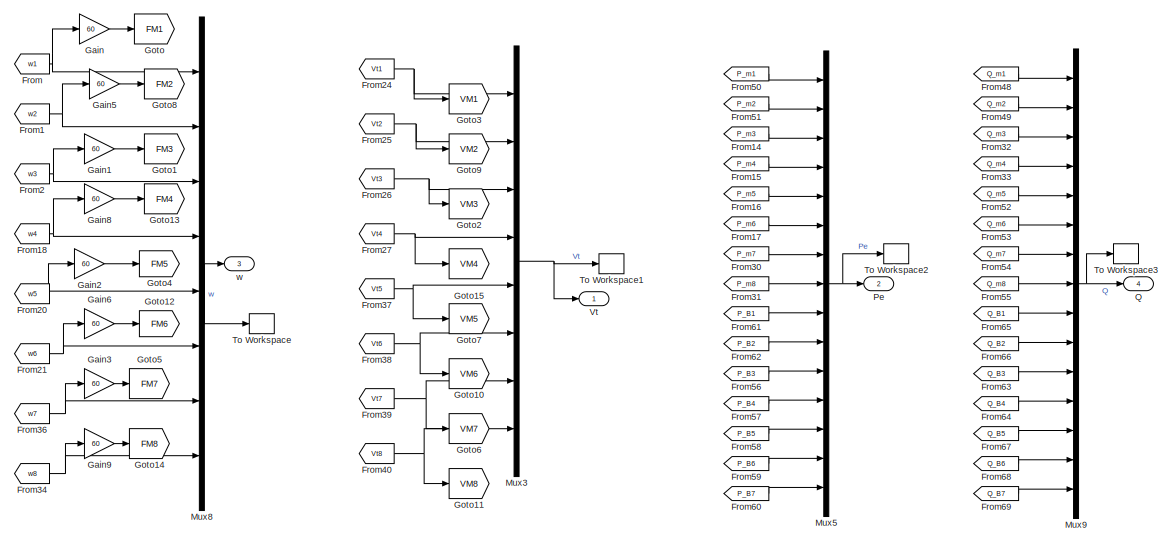
[diagram: PSS and Machine Signals2 - part 1/2, full width, top band]
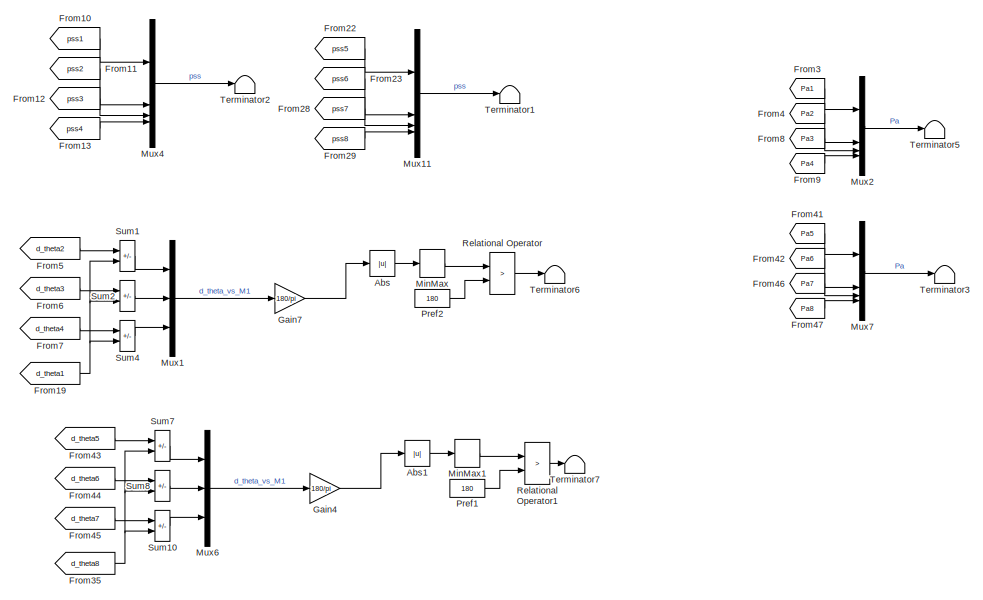
[diagram: PSS and Machine Signals2 - part 2/2, full width, bottom band]
BLOCK [SubSystem] PSS and Machine Signals2
  NameLocation = top
BLOCK [Abs] PSS and Machine Signals2/Abs
  Commented = on
BLOCK [Abs] PSS and Machine Signals2/Abs1
  Commented = on
BLOCK [From] PSS and Machine Signals2/From
  CloseFcn = tagdialog Close
  GotoTag = w1
  TagVisibility = global
BLOCK [From] PSS and Machine Signals2/From1
  CloseFcn = tagdialog Close
  GotoTag = w2
  TagVisibility = global
BLOCK [From] PSS and Machine Signals2/From10
  CloseFcn = tagdialog Close
  Commented = on
  GotoTag = pss1
  TagVisibility = global
BLOCK [From] PSS and Machine Signals2/From11
  CloseFcn = tagdialog Close
  Commented = on
  GotoTag = pss2
  TagVisibility = global
BLOCK [From] PSS and Machine Signals2/From12
  CloseFcn = tagdialog Close
  Commented = on
  GotoTag = pss3
  TagVisibility = global
BLOCK [From] PSS and Machine Signals2/From13
  CloseFcn = tagdialog Close
  Commented = on
  GotoTag = pss4
  TagVisibility = global
BLOCK [From] PSS and Machine Signals2/From14
  GotoTag = P_m3
BLOCK [From] PSS and Machine Signals2/From15
  GotoTag = P_m4
BLOCK [From] PSS and Machine Signals2/From16
  Commented = on
  GotoTag = P_m5
BLOCK [From] PSS and Machine Signals2/From17
  Commented = on
  GotoTag = P_m6
BLOCK [From] PSS and Machine Signals2/From18
  CloseFcn = tagdialog Close
  GotoTag = w4
  TagVisibility = global
BLOCK [From] PSS and Machine Signals2/From19
  CloseFcn = tagdialog Close
  Commented = on
  GotoTag = d_theta1
  TagVisibility = global
BLOCK [From] PSS and Machine Signals2/From2
  CloseFcn = tagdialog Close
  GotoTag = w3
  TagVisibility = global
BLOCK [From] PSS and Machine Signals2/From20
  CloseFcn = tagdialog Close
  Commented = on
  GotoTag = w5
BLOCK [From] PSS and Machine Signals2/From21
  CloseFcn = tagdialog Close
  Commented = on
  GotoTag = w6
BLOCK [From] PSS and Machine Signals2/From22
  CloseFcn = tagdialog Close
  Commented = on
  GotoTag = pss5
  TagVisibility = global
BLOCK [From] PSS and Machine Signals2/From23
  CloseFcn = tagdialog Close
  Commented = on
  GotoTag = pss6
  TagVisibility = global
BLOCK [From] PSS and Machine Signals2/From24
  CloseFcn = tagdialog Close
  GotoTag = Vt1
  TagVisibility = global
BLOCK [From] PSS and Machine Signals2/From25
  CloseFcn = tagdialog Close
  GotoTag = Vt2
  TagVisibility = global
BLOCK [From] PSS and Machine Signals2/From26
  CloseFcn = tagdialog Close
  GotoTag = Vt3
  TagVisibility = global
BLOCK [From] PSS and Machine Signals2/From27
  CloseFcn = tagdialog Close
  GotoTag = Vt4
  TagVisibility = global
BLOCK [From] PSS and Machine Signals2/From28
  CloseFcn = tagdialog Close
  Commented = on
  GotoTag = pss7
  TagVisibility = global
BLOCK [From] PSS and Machine Signals2/From29
  CloseFcn = tagdialog Close
  Commented = on
  GotoTag = pss8
  TagVisibility = global
BLOCK [From] PSS and Machine Signals2/From3
  CloseFcn = tagdialog Close
  Commented = on
  GotoTag = Pa1
  TagVisibility = global
BLOCK [From] PSS and Machine Signals2/From30
  Commented = on
  GotoTag = P_m7
BLOCK [From] PSS and Machine Signals2/From31
  Commented = on
  GotoTag = P_m8
BLOCK [From] PSS and Machine Signals2/From32
  GotoTag = Q_m3
BLOCK [From] PSS and Machine Signals2/From33
  GotoTag = Q_m4
BLOCK [From] PSS and Machine Signals2/From34
  CloseFcn = tagdialog Close
  Commented = on
  GotoTag = w8
BLOCK [From] PSS and Machine Signals2/From35
  CloseFcn = tagdialog Close
  Commented = on
  GotoTag = d_theta8
  TagVisibility = global
BLOCK [From] PSS and Machine Signals2/From36
  CloseFcn = tagdialog Close
  Commented = on
  GotoTag = w7
BLOCK [From] PSS and Machine Signals2/From37
  CloseFcn = tagdialog Close
  Commented = on
  GotoTag = Vt5
BLOCK [From] PSS and Machine Signals2/From38
  CloseFcn = tagdialog Close
  Commented = on
  GotoTag = Vt6
BLOCK [From] PSS and Machine Signals2/From39
  CloseFcn = tagdialog Close
  Commented = on
  GotoTag = Vt7
BLOCK [From] PSS and Machine Signals2/From4
  CloseFcn = tagdialog Close
  Commented = on
  GotoTag = Pa2
  TagVisibility = global
BLOCK [From] PSS and Machine Signals2/From40
  CloseFcn = tagdialog Close
  Commented = on
  GotoTag = Vt8
BLOCK [From] PSS and Machine Signals2/From41
  CloseFcn = tagdialog Close
  Commented = on
  GotoTag = Pa5
  TagVisibility = global
BLOCK [From] PSS and Machine Signals2/From42
  CloseFcn = tagdialog Close
  Commented = on
  GotoTag = Pa6
  TagVisibility = global
BLOCK [From] PSS and Machine Signals2/From43
  CloseFcn = tagdialog Close
  Commented = on
  GotoTag = d_theta5
  TagVisibility = global
BLOCK [From] PSS and Machine Signals2/From44
  CloseFcn = tagdialog Close
  Commented = on
  GotoTag = d_theta6
  TagVisibility = global
BLOCK [From] PSS and Machine Signals2/From45
  CloseFcn = tagdialog Close
  Commented = on
  GotoTag = d_theta7
  TagVisibility = global
BLOCK [From] PSS and Machine Signals2/From46
  CloseFcn = tagdialog Close
  Commented = on
  GotoTag = Pa7
  TagVisibility = global
BLOCK [From] PSS and Machine Signals2/From47
  CloseFcn = tagdialog Close
  Commented = on
  GotoTag = Pa8
  TagVisibility = global
BLOCK [From] PSS and Machine Signals2/From48
  GotoTag = Q_m1
BLOCK [From] PSS and Machine Signals2/From49
  GotoTag = Q_m2
BLOCK [From] PSS and Machine Signals2/From5
  CloseFcn = tagdialog Close
  Commented = on
  GotoTag = d_theta2
  TagVisibility = global
BLOCK [From] PSS and Machine Signals2/From50
  GotoTag = P_m1
BLOCK [From] PSS and Machine Signals2/From51
  GotoTag = P_m2
BLOCK [From] PSS and Machine Signals2/From52
  Commented = on
  GotoTag = Q_m5
BLOCK [From] PSS and Machine Signals2/From53
  Commented = on
  GotoTag = Q_m6
BLOCK [From] PSS and Machine Signals2/From54
  Commented = on
  GotoTag = Q_m7
BLOCK [From] PSS and Machine Signals2/From55
  Commented = on
  GotoTag = Q_m8
BLOCK [From] PSS and Machine Signals2/From56
  GotoTag = P_B3
BLOCK [From] PSS and Machine Signals2/From57
  Commented = on
  GotoTag = P_B4
BLOCK [From] PSS and Machine Signals2/From58
  Commented = on
  GotoTag = P_B5
BLOCK [From] PSS and Machine Signals2/From59
  Commented = on
  GotoTag = P_B6
BLOCK [From] PSS and Machine Signals2/From6
  CloseFcn = tagdialog Close
  Commented = on
  GotoTag = d_theta3
  TagVisibility = global
BLOCK [From] PSS and Machine Signals2/From60
  Commented = on
  GotoTag = P_B7
BLOCK [From] PSS and Machine Signals2/From61
  GotoTag = P_B1
BLOCK [From] PSS and Machine Signals2/From62
  GotoTag = P_B2
BLOCK [From] PSS and Machine Signals2/From63
  GotoTag = Q_B3
BLOCK [From] PSS and Machine Signals2/From64
  Commented = on
  GotoTag = Q_B4
BLOCK [From] PSS and Machine Signals2/From65
  GotoTag = Q_B1
BLOCK [From] PSS and Machine Signals2/From66
  GotoTag = Q_B2
BLOCK [From] PSS and Machine Signals2/From67
  Commented = on
  GotoTag = Q_B5
BLOCK [From] PSS and Machine Signals2/From68
  Commented = on
  GotoTag = Q_B6
BLOCK [From] PSS and Machine Signals2/From69
  Commented = on
  GotoTag = Q_B7
BLOCK [From] PSS and Machine Signals2/From7
  CloseFcn = tagdialog Close
  Commented = on
  GotoTag = d_theta4
  TagVisibility = global
BLOCK [From] PSS and Machine Signals2/From8
  CloseFcn = tagdialog Close
  Commented = on
  GotoTag = Pa3
  TagVisibility = global
BLOCK [From] PSS and Machine Signals2/From9
  CloseFcn = tagdialog Close
  Commented = on
  GotoTag = Pa4
  TagVisibility = global
BLOCK [Gain] PSS and Machine Signals2/Gain
  Gain = 60
BLOCK [Gain] PSS and Machine Signals2/Gain1
  Gain = 60
BLOCK [Gain] PSS and Machine Signals2/Gain2
  Commented = on
  Gain = 60
BLOCK [Gain] PSS and Machine Signals2/Gain3
  Commented = on
  Gain = 60
BLOCK [Gain] PSS and Machine Signals2/Gain4
  Commented = on
  Gain = 180/pi
BLOCK [Gain] PSS and Machine Signals2/Gain5
  Gain = 60
BLOCK [Gain] PSS and Machine Signals2/Gain6
  Commented = on
  Gain = 60
BLOCK [Gain] PSS and Machine Signals2/Gain7
  Commented = on
  Gain = 180/pi
BLOCK [Gain] PSS and Machine Signals2/Gain8
  Gain = 60
BLOCK [Gain] PSS and Machine Signals2/Gain9
  Commented = on
  Gain = 60
BLOCK [Goto] PSS and Machine Signals2/Goto
  GotoTag = FM1
  TagVisibility = global
BLOCK [Goto] PSS and Machine Signals2/Goto1
  GotoTag = FM3
  TagVisibility = global
BLOCK [Goto] PSS and Machine Signals2/Goto10
  Commented = on
  GotoTag = VM6
  TagVisibility = global
BLOCK [Goto] PSS and Machine Signals2/Goto11
  Commented = on
  GotoTag = VM8
  TagVisibility = global
BLOCK [Goto] PSS and Machine Signals2/Goto12
  Commented = on
  GotoTag = FM6
  TagVisibility = global
BLOCK [Goto] PSS and Machine Signals2/Goto13
  GotoTag = FM4
  TagVisibility = global
BLOCK [Goto] PSS and Machine Signals2/Goto14
  Commented = on
  GotoTag = FM8
  TagVisibility = global
BLOCK [Goto] PSS and Machine Signals2/Goto15
  GotoTag = VM4
  TagVisibility = global
BLOCK [Goto] PSS and Machine Signals2/Goto2
  GotoTag = VM3
  TagVisibility = global
BLOCK [Goto] PSS and Machine Signals2/Goto3
  GotoTag = VM1
  TagVisibility = global
BLOCK [Goto] PSS and Machine Signals2/Goto4
  Commented = on
  GotoTag = FM5
  TagVisibility = global
BLOCK [Goto] PSS and Machine Signals2/Goto5
  Commented = on
  GotoTag = FM7
  TagVisibility = global
BLOCK [Goto] PSS and Machine Signals2/Goto6
  Commented = on
  GotoTag = VM7
  TagVisibility = global
BLOCK [Goto] PSS and Machine Signals2/Goto7
  Commented = on
  GotoTag = VM5
  TagVisibility = global
BLOCK [Goto] PSS and Machine Signals2/Goto8
  GotoTag = FM2
  TagVisibility = global
BLOCK [Goto] PSS and Machine Signals2/Goto9
  GotoTag = VM2
  TagVisibility = global
BLOCK [MinMax] PSS and Machine Signals2/MinMax
  Commented = on
  Function = max
  InputSameDT = on
  SaturateOnIntegerOverflow = on
BLOCK [MinMax] PSS and Machine Signals2/MinMax1
  Commented = on
  Function = max
  InputSameDT = on
  SaturateOnIntegerOverflow = on
BLOCK [Mux] PSS and Machine Signals2/Mux1
  Commented = on
  DisplayOption = bar
  Inputs = 3
BLOCK [Mux] PSS and Machine Signals2/Mux11
  Commented = on
  DisplayOption = bar
BLOCK [Mux] PSS and Machine Signals2/Mux2
  Commented = on
  DisplayOption = bar
BLOCK [Mux] PSS and Machine Signals2/Mux3
  DisplayOption = bar
  Inputs = 8
BLOCK [Mux] PSS and Machine Signals2/Mux4
  Commented = on
  DisplayOption = bar
BLOCK [Mux] PSS and Machine Signals2/Mux5
  DisplayOption = bar
  Inputs = 15
BLOCK [Mux] PSS and Machine Signals2/Mux6
  Commented = on
  DisplayOption = bar
  Inputs = 3
BLOCK [Mux] PSS and Machine Signals2/Mux7
  Commented = on
  DisplayOption = bar
BLOCK [Mux] PSS and Machine Signals2/Mux8
  DisplayOption = bar
  Inputs = 8
BLOCK [Mux] PSS and Machine Signals2/Mux9
  DisplayOption = bar
  Inputs = 15
BLOCK [Outport] PSS and Machine Signals2/Pe 
  Port = 2
  VectorParamsAs1DForOutWhenUnconnected = off
BLOCK [Constant] PSS and Machine Signals2/Pref1
  Commented = on
  NameLocation = top
  Value = 180
BLOCK [Constant] PSS and Machine Signals2/Pref2
  Commented = on
  NameLocation = top
  Value = 180
BLOCK [Outport] PSS and Machine Signals2/Q
  Port = 4
  VectorParamsAs1DForOutWhenUnconnected = off
BLOCK [RelationalOperator] PSS and Machine Signals2/Relational Operator
  Commented = on
  Operator = >
BLOCK [RelationalOperator] PSS and Machine Signals2/Relational Operator1
  Commented = on
  Operator = >
BLOCK [Sum] PSS and Machine Signals2/Sum1
  Commented = on
  IconShape = rectangular
  InputSameDT = on
  Inputs = +-
  OutDataTypeStr = Inherit: Same as first input
  SaturateOnIntegerOverflow = on
BLOCK [Sum] PSS and Machine Signals2/Sum10
  Commented = on
  IconShape = rectangular
  InputSameDT = on
  Inputs = +-
  OutDataTypeStr = Inherit: Same as first input
  SaturateOnIntegerOverflow = on
BLOCK [Sum] PSS and Machine Signals2/Sum2
  Commented = on
  IconShape = rectangular
  InputSameDT = on
  Inputs = +-
  OutDataTypeStr = Inherit: Same as first input
  SaturateOnIntegerOverflow = on
BLOCK [Sum] PSS and Machine Signals2/Sum4
  Commented = on
  IconShape = rectangular
  InputSameDT = on
  Inputs = +-
  OutDataTypeStr = Inherit: Same as first input
  SaturateOnIntegerOverflow = on
BLOCK [Sum] PSS and Machine Signals2/Sum7
  Commented = on
  IconShape = rectangular
  InputSameDT = on
  Inputs = +-
  OutDataTypeStr = Inherit: Same as first input
  SaturateOnIntegerOverflow = on
BLOCK [Sum] PSS and Machine Signals2/Sum8
  Commented = on
  IconShape = rectangular
  InputSameDT = on
  Inputs = +-
  OutDataTypeStr = Inherit: Same as first input
  SaturateOnIntegerOverflow = on
BLOCK [Terminator] PSS and Machine Signals2/Terminator1
  Commented = on
BLOCK [Terminator] PSS and Machine Signals2/Terminator2
  Commented = on
BLOCK [Terminator] PSS and Machine Signals2/Terminator3
  Commented = on
BLOCK [Terminator] PSS and Machine Signals2/Terminator5
  Commented = on
BLOCK [Terminator] PSS and Machine Signals2/Terminator6
  Commented = on
BLOCK [Terminator] PSS and Machine Signals2/Terminator7
  Commented = on
BLOCK [ToWorkspace] PSS and Machine Signals2/To Workspace
  MaxDataPoints = inf
  SampleTime = Ts
  Save2DSignal = 2-D array (concatenate along first dimension)
  VariableName = w_f
BLOCK [ToWorkspace] PSS and Machine Signals2/To Workspace1
  MaxDataPoints = inf
  SampleTime = Ts
  Save2DSignal = 2-D array (concatenate along first dimension)
  VariableName = v_f
BLOCK [ToWorkspace] PSS and Machine Signals2/To Workspace2
  MaxDataPoints = inf
  SampleTime = Ts
  Save2DSignal = 2-D array (concatenate along first dimension)
  VariableName = P_f
BLOCK [ToWorkspace] PSS and Machine Signals2/To Workspace3
  MaxDataPoints = inf
  SampleTime = Ts
  Save2DSignal = 2-D array (concatenate along first dimension)
  VariableName = Q_f
BLOCK [Outport] PSS and Machine Signals2/Vt
  VectorParamsAs1DForOutWhenUnconnected = off
BLOCK [Outport] PSS and Machine Signals2/w
  Port = 3
  VectorParamsAs1DForOutWhenUnconnected = off
BLOCK [Product] Product1
BLOCK [Product] Product2
BLOCK [RateLimiter] Rate Limiter
  FallingSlewLimit = -0.02
  InitialCondition = 1
  NameLocation = left
  RisingSlewLimit = 0.02
  SampleTimeMode = inherited
BLOCK [RateLimiter] Rate Limiter1
  FallingSlewLimit = -0.02
  InitialCondition = 1
  NameLocation = left
  RisingSlewLimit = 0.02
  SampleTimeMode = inherited
BLOCK [Scope] Scope
  Floating = off
  NumInputPorts = 4
  ScopeSpecificationString = Simulink.scopes.TimeScopeBlockCfg('CurrentConfiguration', extmgr.ConfigurationSet(extmgr.Configuration('Core','General UI',true,'FigureColor',[1 1 1]),extmgr.Configuration('Core','Source UI',true),extmgr.Configuration('Sources','WiredSimulink',true,'DataLoggingVariableName','ScopeData2'),extmgr.Configuration('Visuals','Time Domain',true,'SerializedDisplays',{struct('MinYLimReal','-0.1368','MaxYLim...<+5320ch>
BLOCK [Scope] Scope13
  Floating = off
  NumInputPorts = 1
  ScopeSpecificationString = Simulink.scopes.TimeScopeBlockCfg('CurrentConfiguration', extmgr.ConfigurationSet(extmgr.Configuration('Core','General UI',true),extmgr.Configuration('Core','Source UI',true),extmgr.Configuration('Sources','WiredSimulink',true,'DataLoggingVariableName','ScopeData3'),extmgr.Configuration('Visuals','Time Domain',true,'SerializedDisplays',{struct('MinYLimReal','-1.00000','MaxYLimReal','1.00000','YLab...<+1441ch>
BLOCK [Scope] Scope15
  Floating = off
  NumInputPorts = 1
  ScopeSpecificationString = Simulink.scopes.TimeScopeBlockCfg('CurrentConfiguration', extmgr.ConfigurationSet(extmgr.Configuration('Core','General UI',true,'FigureColor',[1 1 1]),extmgr.Configuration('Core','Source UI',true),extmgr.Configuration('Sources','WiredSimulink',true,'DataLoggingVariableName','ScopeData5'),extmgr.Configuration('Visuals','Time Domain',true,'SerializedDisplays',{struct('MinYLimReal','-0.01724','MaxYLi...<+1712ch>
BLOCK [Scope] Scope17
  Floating = off
  NumInputPorts = 1
  ScopeSpecificationString = Simulink.scopes.TimeScopeBlockCfg('CurrentConfiguration', extmgr.ConfigurationSet(extmgr.Configuration('Core','General UI',true),extmgr.Configuration('Core','Source UI',true),extmgr.Configuration('Sources','WiredSimulink',true,'DataLoggingVariableName','ScopeData6'),extmgr.Configuration('Visuals','Time Domain',true,'SerializedDisplays',{struct('MinYLimReal','0.1675','MaxYLimReal','1.0925','YLabelR...<+1433ch>
BLOCK [Scope] Scope19
  Floating = off
  NumInputPorts = 2
  ScopeSpecificationString = Simulink.scopes.TimeScopeBlockCfg('CurrentConfiguration', extmgr.ConfigurationSet(extmgr.Configuration('Core','General UI',true,'FigureColor',[1 1 1]),extmgr.Configuration('Core','Source UI',true),extmgr.Configuration('Sources','WiredSimulink',true,'DataLoggingVariableName','ScopeData7'),extmgr.Configuration('Visuals','Time Domain',true,'SerializedDisplays',{struct('MinYLimReal','-1.00000','MaxYLi...<+2537ch>
BLOCK [Scope] Scope2
  Floating = off
  NumInputPorts = 1
  ScopeSpecificationString = Simulink.scopes.TimeScopeBlockCfg('CurrentConfiguration', extmgr.ConfigurationSet(extmgr.Configuration('Core','General UI',true,'FigureColor',[1 1 1]),extmgr.Configuration('Core','Source UI',true),extmgr.Configuration('Sources','WiredSimulink',true,'DataLoggingVariableName','ScopeData8'),extmgr.Configuration('Visuals','Time Domain',true,'SerializedDisplays',{struct('MinYLimReal','-0.05744','MaxYLi...<+1727ch>
BLOCK [Scope] Scope8
  Floating = off
  NumInputPorts = 1
  ScopeSpecificationString = Simulink.scopes.TimeScopeBlockCfg('CurrentConfiguration', extmgr.ConfigurationSet(extmgr.Configuration('Core','General UI',true),extmgr.Configuration('Core','Source UI',true),extmgr.Configuration('Sources','WiredSimulink',true,'DataLoggingVariableName','ScopeData9'),extmgr.Configuration('Visuals','Time Domain',true,'SerializedDisplays',{struct('MinYLimReal','-1.00000','MaxYLimReal','1.00000','YLab...<+1569ch>
BLOCK [SubSystem] Subsystem3
BLOCK [Sum] Subsystem3/Add
  Commented = on
  IconShape = rectangular
  Inputs = -+
BLOCK [Sum] Subsystem3/Add1
  Commented = on
  IconShape = rectangular
  Inputs = +-
BLOCK [Sum] Subsystem3/Add2
  IconShape = rectangular
  Inputs = +-
BLOCK [Constant] Subsystem3/Constant
  Commented = on
  Value = 2
BLOCK [Constant] Subsystem3/Constant1
  Commented = on
  Value = 2
BLOCK [Constant] Subsystem3/Constant3
BLOCK [Outport] Subsystem3/Control
  VectorParamsAs1DForOutWhenUnconnected = off
BLOCK [Demux] Subsystem3/Demux
  Commented = on
BLOCK [Product] Subsystem3/Divide
  Commented = on
  Inputs = */
BLOCK [Product] Subsystem3/Divide1
  Commented = on
  Inputs = */
BLOCK [Gain] Subsystem3/Gain
  Commented = on
  Gain = -1
BLOCK [Gain] Subsystem3/Gain1
  Commented = on
  Gain = 150
BLOCK [Gain] Subsystem3/Gain3
  Gain = -1
BLOCK [Gain] Subsystem3/Gain4
  Gain = 100
BLOCK [Gain] Subsystem3/Gain5
  Gain = 0.00001
BLOCK [Inport] Subsystem3/Measurements
BLOCK [Memory] Subsystem3/Memory1
  InitialCondition = [0 0 0 0 0 0 0 0]
BLOCK [Mux] Subsystem3/Mux
  Commented = on
  DisplayOption = bar
BLOCK [Sum] Subsystem3/Sum
  Commented = on
  Inputs = |++
BLOCK [Sum] Subsystem3/Sum2
  Commented = on
  Inputs = |++
BLOCK [Sum] Subsystem3/Sum3
  Commented = on
  Inputs = |++
BLOCK [Sum] Subsystem3/Sum4
  Inputs = |++
BLOCK [Sum] Subsystem3/Sum5
  Inputs = |++
BLOCK [Reference] Three-Phase Fault  REF=spsThreePhaseFaultLib/Three-Phase Fault
  Commented = on
  NameLocation = right
  SourceBlock = spsThreePhaseFaultLib/Three-Phase Fault
  SourceType = Three-Phase Fault
BLOCK [ToWorkspace] To Workspace
  MaxDataPoints = inf
  SampleTime = Ts
  Save2DSignal = 2-D array (concatenate along first dimension)
  VariableName = t
BLOCK [UnitDelay] Unit Delay
  HasFrameUpgradeWarning = on
  SampleTime = -1
BLOCK [UnitDelay] Unit Delay1
  HasFrameUpgradeWarning = on
  SampleTime = -1
BLOCK [Reference] powergui  REF=spspowerguiLib/powergui
  Priority = 2
  SourceBlock = spspowerguiLib/powergui
  SourceType = PSB option menu block
BLOCK [Outport] voltage _response
  VectorParamsAs1DForOutWhenUnconnected = off
ANNOTATION (root): Kundur behavior investigation
ANNOTATION (root): M1: yellow M2: magenta M3: cyan M4: red
ANNOTATION Area 1: ==> to Bus B1
ANNOTATION Area 1: Area 1
ANNOTATION Area 1: SOC measured on BESS
ANNOTATION Area 1: Temp measured on BESS
ANNOTATION Area 1/BESS: VSC INVERTER DQ CONTROLLER
ANNOTATION Area 1/BESS: va, ia, P and Q Scopes
ANNOTATION Area 1/BESS/Subsystem: Alpha-Beta-Zero to abc
ANNOTATION Area 1/BESS/Subsystem1/Subsystem1: d = al*sin(wt) - be*cos(wt)
ANNOTATION Area 1/BESS/Subsystem1/Subsystem1: q = al*cos(wt) + be*sin(wt)
ANNOTATION Area 1/BESS/Subsystem2/Subsystem1: d = al*sin(wt) - be*cos(wt)
ANNOTATION Area 1/BESS/Subsystem2/Subsystem1: q = al*cos(wt) + be*sin(wt)
ANNOTATION Area 1/BESS2 : VSC INVERTER DQ CONTROLLER
ANNOTATION Area 1/BESS2 : va, ia, P and Q Scopes
ANNOTATION Area 1/BESS2 /Subsystem: Alpha-Beta-Zero to abc
ANNOTATION Area 1/BESS2 /Subsystem1/Subsystem1: d = al*sin(wt) - be*cos(wt)
ANNOTATION Area 1/BESS2 /Subsystem1/Subsystem1: q = al*cos(wt) + be*sin(wt)
ANNOTATION Area 1/BESS2 /Subsystem2/Subsystem1: d = al*sin(wt) - be*cos(wt)
ANNOTATION Area 1/BESS2 /Subsystem2/Subsystem1: q = al*cos(wt) + be*sin(wt)
ANNOTATION Area 1/IEEE 13-node distribution feeder: 632-633
ANNOTATION Area 1/IEEE 13-node distribution feeder: 632-645
ANNOTATION Area 1/IEEE 13-node distribution feeder: 632-nDL1
ANNOTATION Area 1/IEEE 13-node distribution feeder: 645-646
ANNOTATION Area 1/IEEE 13-node distribution feeder: 671-680
ANNOTATION Area 1/IEEE 13-node distribution feeder: 684-652
ANNOTATION Area 1/IEEE 13-node distribution feeder: 692-675
ANNOTATION Area 1/IEEE 13-node distribution feeder: IEEE 13 Node Test Feeder Unbalanced
ANNOTATION Area 1/IEEE 13-node distribution feeder: RG60-632
ANNOTATION Area 1/IEEE 13-node distribution feeder: to Utility Grid
ANNOTATION Area 1/M1: Turbine & Regulators: MACHINE 1
ANNOTATION Area 1/M2: Turbine & Regulators: MACHINE 2
ANNOTATION Area 2: ==> to Bus B2
ANNOTATION Area 2: Area 2
ANNOTATION Area 2: Chirp function
ANNOTATION Area 2/BESS: VSC INVERTER DQ CONTROLLER
ANNOTATION Area 2/BESS: va, ia, P and Q Scopes
ANNOTATION Area 2/BESS/I_ref: Ud^2+Uq^2
ANNOTATION Area 2/BESS/I_ref: [Ud;-Uq]
ANNOTATION Area 2/BESS/I_ref: [Uq;Ud]
ANNOTATION Area 2/BESS/Support Control: 1) Add Subsystem or Model blocks as valid variant choices. 2) You cannot connect blocks at this level. At simulation, connectivity is automatically determined, based on the active variant and port name matching.
ANNOTATION Area 2/M3: Turbine & Regulators: MACHINE 3
ANNOTATION Area 2/M4: Turbine & Regulators: MACHINE 4
LINE  :1 -> Scope:3
NET Add2:1 -> LQG2:1, Scope15:1
NET Add3:1 -> LQG4:1, Scope2:1
LINE Area 1/Add1:1 -> Area 1/Saturation1:1
LINE Area 1/Add2:1 -> Area 1/PI2:1
LINE Area 1/Add3:1 -> Area 1/PI1:1
LINE Area 1/Add4:1 -> Area 1/Scope:2
LINE Area 1/Add5:1 -> Area 1/Scope9:2
LINE Area 1/Add:1 -> Area 1/Saturation:1
NET Area 1/Aggregator:1 -> Area 1/Demux2:1, Area 1/Scope1:1
NET Area 1/Aggregator:2 -> Area 1/Demux3:1, Area 1/Scope2:1
LINE Area 1/Aggregator:3 -> Area 1/Scope6:1
LINE Area 1/Aggregator:4 -> Area 1/Scope7:1
NET Area 1/Aggregator:5 -> Area 1/Goto5:1, Area 1/Scope8:1
LINE Area 1/BESS/B1:1 -> Area 1/BESS/Goto2:1
LINE Area 1/BESS/B1:2 -> Area 1/BESS/Goto3:1
LINE Area 1/BESS/Clock:1 -> Area 1/BESS/MATLAB Function:1
LINE Area 1/BESS/Constant1:1 -> Area 1/BESS/Mux1:3
NET Area 1/BESS/Delay One Step:1 -> Area 1/BESS/Scope9:1, Area 1/BESS/Subsystem:1, Area 1/BESS/dq0 to abc:1
LINE Area 1/BESS/Demux1:1 -> Area 1/BESS/Sum1:1
NET Area 1/BESS/Demux1:2 -> Area 1/BESS/Scope:1, Area 1/BESS/Sum2:1
LINE Area 1/BESS/Demux:1 -> Area 1/BESS/Goto1:1
LINE Area 1/BESS/Demux:2 -> Area 1/BESS/Terminator1:1
LINE Area 1/BESS/From10:1 -> Area 1/BESS/MATLAB Function1:3
NET Area 1/BESS/From11:1 -> Area 1/BESS/PLL (3ph):1, Area 1/BESS/Subsystem1:2
NET Area 1/BESS/From18:1 -> Area 1/BESS/Scope6:1, Area 1/BESS/Subsystem2:2
NET Area 1/BESS/From19:1 -> Area 1/BESS/Power (Positive-Sequence)1:2, Area 1/BESS/Selector1:1
LINE Area 1/BESS/From1:1 -> Area 1/BESS/VSC (Average Model):1
NET Area 1/BESS/From20:1 -> Area 1/BESS/Power (Positive-Sequence)1:1, Area 1/BESS/Selector:1
LINE Area 1/BESS/Gain1:1 -> Area 1/BESS/Scope1:1
NET Area 1/BESS/Gain:1 -> Area 1/BESS/Goto:1, Area 1/BESS/Scope10:1
LINE Area 1/BESS/MATLAB Function1:1 -> Area 1/BESS/Sum1:2
NET Area 1/BESS/MATLAB Function1:2 -> Area 1/BESS/Scope:2, Area 1/BESS/Sum2:2
LINE Area 1/BESS/Mux1:1 -> Area 1/BESS/Delay One Step:1
LINE Area 1/BESS/PLL (3ph):1 -> Area 1/BESS/Terminator:1
NET Area 1/BESS/PLL (3ph):2 -> Area 1/BESS/Scope8:1, Area 1/BESS/Subsystem1:1, Area 1/BESS/Subsystem2:1, Area 1/BESS/Subsystem:2, Area 1/BESS/dq0 to abc:2
NET Area 1/BESS/Power (Positive-Sequence)1:1 -> Area 1/BESS/Goto4:1, Area 1/BESS/P_B2:1
NET Area 1/BESS/Power (Positive-Sequence)1:2 -> Area 1/BESS/Goto5:1, Area 1/BESS/P_B2:2
LINE Area 1/BESS/Pref:1 -> Area 1/BESS/Switch2:3
LINE Area 1/BESS/Qref:1 -> Area 1/BESS/Switch1:3
LINE Area 1/BESS/Selector1:1 -> Area 1/BESS/V_I grid:2
LINE Area 1/BESS/Selector:1 -> Area 1/BESS/V_I grid:1
NET Area 1/BESS/Stair Generator:1 -> Area 1/BESS/Switch1:2, Area 1/BESS/Switch2:2
LINE Area 1/BESS/Subsystem/Alpha-Beta-Zero to abc:1 -> Area 1/BESS/Subsystem/abc:1
NET Area 1/BESS/Subsystem/DQ to Alpha beta/Demux4:1 -> Area 1/BESS/Subsystem/DQ to Alpha beta/Mux5:1, Area 1/BESS/Subsystem/DQ to Alpha beta/Mux6:1
LINE Area 1/BESS/Subsystem/DQ to Alpha beta/Demux4:2 -> Area 1/BESS/Subsystem/DQ to Alpha beta/Mux1:2
LINE Area 1/BESS/Subsystem/DQ to Alpha beta/Fcn1:1 -> Area 1/BESS/Subsystem/DQ to Alpha beta/Mux4:2
LINE Area 1/BESS/Subsystem/DQ to Alpha beta/Fcn:1 -> Area 1/BESS/Subsystem/DQ to Alpha beta/Mux4:1
LINE Area 1/BESS/Subsystem/DQ to Alpha beta/Mux1:1 -> Area 1/BESS/Subsystem/DQ to Alpha beta/al_be_0:1
LINE Area 1/BESS/Subsystem/DQ to Alpha beta/Mux4:1 -> Area 1/BESS/Subsystem/DQ to Alpha beta/Mux1:1
LINE Area 1/BESS/Subsystem/DQ to Alpha beta/Mux5:1 -> Area 1/BESS/Subsystem/DQ to Alpha beta/Fcn:1
LINE Area 1/BESS/Subsystem/DQ to Alpha beta/Mux6:1 -> Area 1/BESS/Subsystem/DQ to Alpha beta/Fcn1:1
LINE Area 1/BESS/Subsystem/DQ to Alpha beta/dq0:1 -> Area 1/BESS/Subsystem/DQ to Alpha beta/Demux4:1
NET Area 1/BESS/Subsystem/DQ to Alpha beta/wt1:1 -> Area 1/BESS/Subsystem/DQ to Alpha beta/Mux5:2, Area 1/BESS/Subsystem/DQ to Alpha beta/Mux6:2
LINE Area 1/BESS/Subsystem/DQ to Alpha beta:1 -> Area 1/BESS/Subsystem/Alpha-Beta-Zero to abc:1
LINE Area 1/BESS/Subsystem/dq0:1 -> Area 1/BESS/Subsystem/DQ to Alpha beta:1
LINE Area 1/BESS/Subsystem/wt1:1 -> Area 1/BESS/Subsystem/DQ to Alpha beta:2
LINE Area 1/BESS/Subsystem1/Demux:1 -> Area 1/BESS/Subsystem1/Mux:1
LINE Area 1/BESS/Subsystem1/Demux:2 -> Area 1/BESS/Subsystem1/Mux:2
LINE Area 1/BESS/Subsystem1/Demux:3 -> Area 1/BESS/Subsystem1/Terminator:1
LINE Area 1/BESS/Subsystem1/Mux:1 -> Area 1/BESS/Subsystem1/Subsystem1:1
LINE Area 1/BESS/Subsystem1/Subsystem1/Fcn1:1 -> Area 1/BESS/Subsystem1/Subsystem1/Mux4:2
LINE Area 1/BESS/Subsystem1/Subsystem1/Fcn:1 -> Area 1/BESS/Subsystem1/Subsystem1/Mux4:1
LINE Area 1/BESS/Subsystem1/Subsystem1/Mux4:1 -> Area 1/BESS/Subsystem1/Subsystem1/dq:1
LINE Area 1/BESS/Subsystem1/Subsystem1/Mux5:1 -> Area 1/BESS/Subsystem1/Subsystem1/Fcn:1
LINE Area 1/BESS/Subsystem1/Subsystem1/Mux6:1 -> Area 1/BESS/Subsystem1/Subsystem1/Fcn1:1
NET Area 1/BESS/Subsystem1/Subsystem1/al_be:1 -> Area 1/BESS/Subsystem1/Subsystem1/Mux5:1, Area 1/BESS/Subsystem1/Subsystem1/Mux6:1
NET Area 1/BESS/Subsystem1/Subsystem1/wt1:1 -> Area 1/BESS/Subsystem1/Subsystem1/Mux5:2, Area 1/BESS/Subsystem1/Subsystem1/Mux6:2
LINE Area 1/BESS/Subsystem1/Subsystem1:1 -> Area 1/BESS/Subsystem1/dq:1
LINE Area 1/BESS/Subsystem1/abc to Alpha-Beta-Zero:1 -> Area 1/BESS/Subsystem1/Demux:1
LINE Area 1/BESS/Subsystem1/abc:1 -> Area 1/BESS/Subsystem1/abc to Alpha-Beta-Zero:1
LINE Area 1/BESS/Subsystem1/wt:1 -> Area 1/BESS/Subsystem1/Subsystem1:2
NET Area 1/BESS/Subsystem1:1 -> Area 1/BESS/Demux:1, Area 1/BESS/Scope4:1
LINE Area 1/BESS/Subsystem2/Demux:1 -> Area 1/BESS/Subsystem2/Mux:1
LINE Area 1/BESS/Subsystem2/Demux:2 -> Area 1/BESS/Subsystem2/Mux:2
LINE Area 1/BESS/Subsystem2/Demux:3 -> Area 1/BESS/Subsystem2/Terminator:1
LINE Area 1/BESS/Subsystem2/Mux:1 -> Area 1/BESS/Subsystem2/Subsystem1:1
LINE Area 1/BESS/Subsystem2/Subsystem1/Fcn1:1 -> Area 1/BESS/Subsystem2/Subsystem1/Mux4:2
LINE Area 1/BESS/Subsystem2/Subsystem1/Fcn:1 -> Area 1/BESS/Subsystem2/Subsystem1/Mux4:1
LINE Area 1/BESS/Subsystem2/Subsystem1/Mux4:1 -> Area 1/BESS/Subsystem2/Subsystem1/dq:1
LINE Area 1/BESS/Subsystem2/Subsystem1/Mux5:1 -> Area 1/BESS/Subsystem2/Subsystem1/Fcn:1
LINE Area 1/BESS/Subsystem2/Subsystem1/Mux6:1 -> Area 1/BESS/Subsystem2/Subsystem1/Fcn1:1
NET Area 1/BESS/Subsystem2/Subsystem1/al_be:1 -> Area 1/BESS/Subsystem2/Subsystem1/Mux5:1, Area 1/BESS/Subsystem2/Subsystem1/Mux6:1
NET Area 1/BESS/Subsystem2/Subsystem1/wt1:1 -> Area 1/BESS/Subsystem2/Subsystem1/Mux5:2, Area 1/BESS/Subsystem2/Subsystem1/Mux6:2
LINE Area 1/BESS/Subsystem2/Subsystem1:1 -> Area 1/BESS/Subsystem2/dq:1
LINE Area 1/BESS/Subsystem2/abc to Alpha-Beta-Zero:1 -> Area 1/BESS/Subsystem2/Demux:1
LINE Area 1/BESS/Subsystem2/abc:1 -> Area 1/BESS/Subsystem2/abc to Alpha-Beta-Zero:1
LINE Area 1/BESS/Subsystem2/wt:1 -> Area 1/BESS/Subsystem2/Subsystem1:2
NET Area 1/BESS/Subsystem2:1 -> Area 1/BESS/Demux1:1, Area 1/BESS/Scope5:1
LINE Area 1/BESS/Subsystem3/Add:1 -> Area 1/BESS/Subsystem3/u(S):1
LINE Area 1/BESS/Subsystem3/Integrator:1 -> Area 1/BESS/Subsystem3/Add:2
LINE Area 1/BESS/Subsystem3/Ki:1 -> Area 1/BESS/Subsystem3/Integrator:1
LINE Area 1/BESS/Subsystem3/Kp:1 -> Area 1/BESS/Subsystem3/Add:1
NET Area 1/BESS/Subsystem3/e(S):1 -> Area 1/BESS/Subsystem3/Ki:1, Area 1/BESS/Subsystem3/Kp:1
LINE Area 1/BESS/Subsystem3:1 -> Area 1/BESS/Mux1:1
LINE Area 1/BESS/Subsystem4/Add:1 -> Area 1/BESS/Subsystem4/u(S):1
LINE Area 1/BESS/Subsystem4/Integrator:1 -> Area 1/BESS/Subsystem4/Add:2
LINE Area 1/BESS/Subsystem4/Ki:1 -> Area 1/BESS/Subsystem4/Integrator:1
LINE Area 1/BESS/Subsystem4/Kp:1 -> Area 1/BESS/Subsystem4/Add:1
NET Area 1/BESS/Subsystem4/e(S):1 -> Area 1/BESS/Subsystem4/Ki:1, Area 1/BESS/Subsystem4/Kp:1
NET Area 1/BESS/Subsystem4:1 -> Area 1/BESS/Mux1:2, Area 1/BESS/Scope:4
LINE Area 1/BESS/Subsystem:1 -> Area 1/BESS/Gain:1
LINE Area 1/BESS/Sum1:1 -> Area 1/BESS/Subsystem3:1
NET Area 1/BESS/Sum2:1 -> Area 1/BESS/Scope:3, Area 1/BESS/Subsystem4:1
LINE Area 1/BESS/Switch1:1 -> Area 1/BESS/MATLAB Function1:2
LINE Area 1/BESS/Switch2:1 -> Area 1/BESS/MATLAB Function1:1
LINE Area 1/BESS/Voltage Measurement1:1 -> Area 1/BESS/Vdc_bus1:1
LINE Area 1/BESS/Vref1 1:1 -> Area 1/BESS/Switch1:1
LINE Area 1/BESS/Vref1 2:1 -> Area 1/BESS/Switch2:1
LINE Area 1/BESS/dq0 to abc:1 -> Area 1/BESS/Gain1:1
LINE Area 1/BESS2 /B1:1 -> Area 1/BESS2 /Goto2:1
LINE Area 1/BESS2 /B1:2 -> Area 1/BESS2 /Goto3:1
LINE Area 1/BESS2 /Clock:1 -> Area 1/BESS2 /MATLAB Function:1
LINE Area 1/BESS2 /Constant1:1 -> Area 1/BESS2 /Mux1:3
NET Area 1/BESS2 /Delay One Step:1 -> Area 1/BESS2 /Scope9:1, Area 1/BESS2 /Subsystem:1
LINE Area 1/BESS2 /Demux1:1 -> Area 1/BESS2 /Sum1:1
LINE Area 1/BESS2 /Demux1:2 -> Area 1/BESS2 /Sum2:1
LINE Area 1/BESS2 /Demux:1 -> Area 1/BESS2 /Goto1:1
LINE Area 1/BESS2 /Demux:2 -> Area 1/BESS2 /Terminator1:1
LINE Area 1/BESS2 /From10:1 -> Area 1/BESS2 /MATLAB Function1:3
NET Area 1/BESS2 /From11:1 -> Area 1/BESS2 /PLL (3ph):1, Area 1/BESS2 /Subsystem1:2
NET Area 1/BESS2 /From18:1 -> Area 1/BESS2 /Scope6:1, Area 1/BESS2 /Subsystem2:2
NET Area 1/BESS2 /From19:1 -> Area 1/BESS2 /Power (Positive-Sequence)1:2, Area 1/BESS2 /Selector1:1
LINE Area 1/BESS2 /From1:1 -> Area 1/BESS2 /VSC (Average Model):1
NET Area 1/BESS2 /From20:1 -> Area 1/BESS2 /Power (Positive-Sequence)1:1, Area 1/BESS2 /Selector:1
NET Area 1/BESS2 /Gain:1 -> Area 1/BESS2 /Goto:1, Area 1/BESS2 /Scope10:1
LINE Area 1/BESS2 /MATLAB Function1:1 -> Area 1/BESS2 /Sum1:2
LINE Area 1/BESS2 /MATLAB Function1:2 -> Area 1/BESS2 /Sum2:2
LINE Area 1/BESS2 /Mux1:1 -> Area 1/BESS2 /Delay One Step:1
LINE Area 1/BESS2 /PLL (3ph):1 -> Area 1/BESS2 /Terminator:1
NET Area 1/BESS2 /PLL (3ph):2 -> Area 1/BESS2 /Scope8:1, Area 1/BESS2 /Subsystem1:1, Area 1/BESS2 /Subsystem2:1, Area 1/BESS2 /Subsystem:2
NET Area 1/BESS2 /Power (Positive-Sequence)1:1 -> Area 1/BESS2 /Goto4:1, Area 1/BESS2 /P_B2:1
NET Area 1/BESS2 /Power (Positive-Sequence)1:2 -> Area 1/BESS2 /Goto5:1, Area 1/BESS2 /P_B2:2
LINE Area 1/BESS2 /Pref:1 -> Area 1/BESS2 /Switch2:3
LINE Area 1/BESS2 /Qref:1 -> Area 1/BESS2 /Switch1:3
LINE Area 1/BESS2 /Selector1:1 -> Area 1/BESS2 /V_I grid:2
LINE Area 1/BESS2 /Selector:1 -> Area 1/BESS2 /V_I grid:1
NET Area 1/BESS2 /Stair Generator:1 -> Area 1/BESS2 /Switch1:2, Area 1/BESS2 /Switch2:2
LINE Area 1/BESS2 /Subsystem/Alpha-Beta-Zero to abc:1 -> Area 1/BESS2 /Subsystem/abc:1
NET Area 1/BESS2 /Subsystem/DQ to Alpha beta/Demux4:1 -> Area 1/BESS2 /Subsystem/DQ to Alpha beta/Mux5:1, Area 1/BESS2 /Subsystem/DQ to Alpha beta/Mux6:1
LINE Area 1/BESS2 /Subsystem/DQ to Alpha beta/Demux4:2 -> Area 1/BESS2 /Subsystem/DQ to Alpha beta/Mux1:2
LINE Area 1/BESS2 /Subsystem/DQ to Alpha beta/Fcn1:1 -> Area 1/BESS2 /Subsystem/DQ to Alpha beta/Mux4:2
LINE Area 1/BESS2 /Subsystem/DQ to Alpha beta/Fcn:1 -> Area 1/BESS2 /Subsystem/DQ to Alpha beta/Mux4:1
LINE Area 1/BESS2 /Subsystem/DQ to Alpha beta/Mux1:1 -> Area 1/BESS2 /Subsystem/DQ to Alpha beta/al_be_0:1
LINE Area 1/BESS2 /Subsystem/DQ to Alpha beta/Mux4:1 -> Area 1/BESS2 /Subsystem/DQ to Alpha beta/Mux1:1
LINE Area 1/BESS2 /Subsystem/DQ to Alpha beta/Mux5:1 -> Area 1/BESS2 /Subsystem/DQ to Alpha beta/Fcn:1
LINE Area 1/BESS2 /Subsystem/DQ to Alpha beta/Mux6:1 -> Area 1/BESS2 /Subsystem/DQ to Alpha beta/Fcn1:1
LINE Area 1/BESS2 /Subsystem/DQ to Alpha beta/dq0:1 -> Area 1/BESS2 /Subsystem/DQ to Alpha beta/Demux4:1
NET Area 1/BESS2 /Subsystem/DQ to Alpha beta/wt1:1 -> Area 1/BESS2 /Subsystem/DQ to Alpha beta/Mux5:2, Area 1/BESS2 /Subsystem/DQ to Alpha beta/Mux6:2
LINE Area 1/BESS2 /Subsystem/DQ to Alpha beta:1 -> Area 1/BESS2 /Subsystem/Alpha-Beta-Zero to abc:1
LINE Area 1/BESS2 /Subsystem/dq0:1 -> Area 1/BESS2 /Subsystem/DQ to Alpha beta:1
LINE Area 1/BESS2 /Subsystem/wt1:1 -> Area 1/BESS2 /Subsystem/DQ to Alpha beta:2
LINE Area 1/BESS2 /Subsystem1/Demux:1 -> Area 1/BESS2 /Subsystem1/Mux:1
LINE Area 1/BESS2 /Subsystem1/Demux:2 -> Area 1/BESS2 /Subsystem1/Mux:2
LINE Area 1/BESS2 /Subsystem1/Demux:3 -> Area 1/BESS2 /Subsystem1/Terminator:1
LINE Area 1/BESS2 /Subsystem1/Mux:1 -> Area 1/BESS2 /Subsystem1/Subsystem1:1
LINE Area 1/BESS2 /Subsystem1/Subsystem1/Fcn1:1 -> Area 1/BESS2 /Subsystem1/Subsystem1/Mux4:2
LINE Area 1/BESS2 /Subsystem1/Subsystem1/Fcn:1 -> Area 1/BESS2 /Subsystem1/Subsystem1/Mux4:1
LINE Area 1/BESS2 /Subsystem1/Subsystem1/Mux4:1 -> Area 1/BESS2 /Subsystem1/Subsystem1/dq:1
LINE Area 1/BESS2 /Subsystem1/Subsystem1/Mux5:1 -> Area 1/BESS2 /Subsystem1/Subsystem1/Fcn:1
LINE Area 1/BESS2 /Subsystem1/Subsystem1/Mux6:1 -> Area 1/BESS2 /Subsystem1/Subsystem1/Fcn1:1
NET Area 1/BESS2 /Subsystem1/Subsystem1/al_be:1 -> Area 1/BESS2 /Subsystem1/Subsystem1/Mux5:1, Area 1/BESS2 /Subsystem1/Subsystem1/Mux6:1
NET Area 1/BESS2 /Subsystem1/Subsystem1/wt1:1 -> Area 1/BESS2 /Subsystem1/Subsystem1/Mux5:2, Area 1/BESS2 /Subsystem1/Subsystem1/Mux6:2
LINE Area 1/BESS2 /Subsystem1/Subsystem1:1 -> Area 1/BESS2 /Subsystem1/dq:1
LINE Area 1/BESS2 /Subsystem1/abc to Alpha-Beta-Zero:1 -> Area 1/BESS2 /Subsystem1/Demux:1
LINE Area 1/BESS2 /Subsystem1/abc:1 -> Area 1/BESS2 /Subsystem1/abc to Alpha-Beta-Zero:1
LINE Area 1/BESS2 /Subsystem1/wt:1 -> Area 1/BESS2 /Subsystem1/Subsystem1:2
NET Area 1/BESS2 /Subsystem1:1 -> Area 1/BESS2 /Demux:1, Area 1/BESS2 /Scope4:1
LINE Area 1/BESS2 /Subsystem2/Demux:1 -> Area 1/BESS2 /Subsystem2/Mux:1
LINE Area 1/BESS2 /Subsystem2/Demux:2 -> Area 1/BESS2 /Subsystem2/Mux:2
LINE Area 1/BESS2 /Subsystem2/Demux:3 -> Area 1/BESS2 /Subsystem2/Terminator:1
LINE Area 1/BESS2 /Subsystem2/Mux:1 -> Area 1/BESS2 /Subsystem2/Subsystem1:1
LINE Area 1/BESS2 /Subsystem2/Subsystem1/Fcn1:1 -> Area 1/BESS2 /Subsystem2/Subsystem1/Mux4:2
LINE Area 1/BESS2 /Subsystem2/Subsystem1/Fcn:1 -> Area 1/BESS2 /Subsystem2/Subsystem1/Mux4:1
LINE Area 1/BESS2 /Subsystem2/Subsystem1/Mux4:1 -> Area 1/BESS2 /Subsystem2/Subsystem1/dq:1
LINE Area 1/BESS2 /Subsystem2/Subsystem1/Mux5:1 -> Area 1/BESS2 /Subsystem2/Subsystem1/Fcn:1
LINE Area 1/BESS2 /Subsystem2/Subsystem1/Mux6:1 -> Area 1/BESS2 /Subsystem2/Subsystem1/Fcn1:1
NET Area 1/BESS2 /Subsystem2/Subsystem1/al_be:1 -> Area 1/BESS2 /Subsystem2/Subsystem1/Mux5:1, Area 1/BESS2 /Subsystem2/Subsystem1/Mux6:1
NET Area 1/BESS2 /Subsystem2/Subsystem1/wt1:1 -> Area 1/BESS2 /Subsystem2/Subsystem1/Mux5:2, Area 1/BESS2 /Subsystem2/Subsystem1/Mux6:2
LINE Area 1/BESS2 /Subsystem2/Subsystem1:1 -> Area 1/BESS2 /Subsystem2/dq:1
LINE Area 1/BESS2 /Subsystem2/abc to Alpha-Beta-Zero:1 -> Area 1/BESS2 /Subsystem2/Demux:1
LINE Area 1/BESS2 /Subsystem2/abc:1 -> Area 1/BESS2 /Subsystem2/abc to Alpha-Beta-Zero:1
LINE Area 1/BESS2 /Subsystem2/wt:1 -> Area 1/BESS2 /Subsystem2/Subsystem1:2
NET Area 1/BESS2 /Subsystem2:1 -> Area 1/BESS2 /Demux1:1, Area 1/BESS2 /Scope5:1
LINE Area 1/BESS2 /Subsystem3/Add:1 -> Area 1/BESS2 /Subsystem3/u(S):1
LINE Area 1/BESS2 /Subsystem3/Integrator:1 -> Area 1/BESS2 /Subsystem3/Add:2
LINE Area 1/BESS2 /Subsystem3/Ki:1 -> Area 1/BESS2 /Subsystem3/Integrator:1
LINE Area 1/BESS2 /Subsystem3/Kp:1 -> Area 1/BESS2 /Subsystem3/Add:1
NET Area 1/BESS2 /Subsystem3/e(S):1 -> Area 1/BESS2 /Subsystem3/Ki:1, Area 1/BESS2 /Subsystem3/Kp:1
LINE Area 1/BESS2 /Subsystem3:1 -> Area 1/BESS2 /Mux1:1
LINE Area 1/BESS2 /Subsystem4/Add:1 -> Area 1/BESS2 /Subsystem4/u(S):1
LINE Area 1/BESS2 /Subsystem4/Integrator:1 -> Area 1/BESS2 /Subsystem4/Add:2
LINE Area 1/BESS2 /Subsystem4/Ki:1 -> Area 1/BESS2 /Subsystem4/Integrator:1
LINE Area 1/BESS2 /Subsystem4/Kp:1 -> Area 1/BESS2 /Subsystem4/Add:1
NET Area 1/BESS2 /Subsystem4/e(S):1 -> Area 1/BESS2 /Subsystem4/Ki:1, Area 1/BESS2 /Subsystem4/Kp:1
LINE Area 1/BESS2 /Subsystem4:1 -> Area 1/BESS2 /Mux1:2
LINE Area 1/BESS2 /Subsystem:1 -> Area 1/BESS2 /Gain:1
LINE Area 1/BESS2 /Sum1:1 -> Area 1/BESS2 /Subsystem3:1
LINE Area 1/BESS2 /Sum2:1 -> Area 1/BESS2 /Subsystem4:1
LINE Area 1/BESS2 /Switch1:1 -> Area 1/BESS2 /MATLAB Function1:2
LINE Area 1/BESS2 /Switch2:1 -> Area 1/BESS2 /MATLAB Function1:1
LINE Area 1/BESS2 /Voltage Measurement1:1 -> Area 1/BESS2 /Vdc_bus1:1
LINE Area 1/BESS2 /Vref1 1:1 -> Area 1/BESS2 /Switch1:1
LINE Area 1/BESS2 /Vref1 2:1 -> Area 1/BESS2 /Switch2:1
NET Area 1/Clock:1 -> Area 1/Aggregator:14, Area 1/Scope10:1, Area 1/To Workspace1:1
LINE Area 1/Constant10:1 -> Area 1/Aggregator:6
LINE Area 1/Constant11:1 -> Area 1/Mux5:1
LINE Area 1/Constant12:1 -> Area 1/Mux5:2
LINE Area 1/Constant13:1 -> Area 1/Aggregator:12
LINE Area 1/Constant14:1 -> Area 1/Aggregator:7
LINE Area 1/Constant15:1 -> Area 1/Aggregator:13
LINE Area 1/Constant1:1 -> Area 1/Add3:1
LINE Area 1/Constant4:1 -> Area 1/Aggregator:10
LINE Area 1/Constant5:1 -> Area 1/Mux1:1
LINE Area 1/Constant6:1 -> Area 1/Aggregator:11
LINE Area 1/Constant7:1 -> Area 1/Mux1:2
LINE Area 1/Constant8:1 -> Area 1/Mux4:1
LINE Area 1/Constant9:1 -> Area 1/Mux4:2
LINE Area 1/Constant:1 -> Area 1/Add2:1
LINE Area 1/Demux1:1 -> Area 1/M2 900 MVA:1
LINE Area 1/Demux1:2 -> Area 1/M2 900 MVA:2
NET Area 1/Demux2:1 -> Area 1/Add4:1, Area 1/BESS:1
NET Area 1/Demux2:2 -> Area 1/Add4:2, Area 1/BESS2 :1
NET Area 1/Demux3:1 -> Area 1/Add5:1, Area 1/BESS:2
NET Area 1/Demux3:2 -> Area 1/Add5:2, Area 1/BESS2 :2
LINE Area 1/Demux:1 -> Area 1/M1 900 MVA:1
LINE Area 1/Demux:2 -> Area 1/M1 900 MVA:2
NET Area 1/From10:1 -> Area 1/Aggregator:2, Area 1/Scope9:1
LINE Area 1/From11:1 -> Area 1/Power (Positive-Sequence)2:1
LINE Area 1/From12:1 -> Area 1/Aggregator:15
LINE Area 1/From19:1 -> Area 1/Power (Positive-Sequence)1:2
LINE Area 1/From1:1 -> Area 1/Demux:1
LINE Area 1/From20:1 -> Area 1/Power (Positive-Sequence)1:1
LINE Area 1/From2:1 -> Area 1/sig:1
LINE Area 1/From3:1 -> Area 1/Add3:2
LINE Area 1/From4:1 -> Area 1/Demux1:1
LINE Area 1/From5:1 -> Area 1/sig1:1
LINE Area 1/From6:1 -> Area 1/Aggregator:8
LINE Area 1/From7:1 -> Area 1/Aggregator:9
NET Area 1/From8:1 -> Area 1/Aggregator:1, Area 1/Scope:1
LINE Area 1/From9:1 -> Area 1/Power (Positive-Sequence)2:2
LINE Area 1/From:1 -> Area 1/Add2:2
LINE Area 1/IEEE 13-node distribution feeder/632:1 -> Area 1/IEEE 13-node distribution feeder/Terminator10:1
LINE Area 1/IEEE 13-node distribution feeder/Current Measurement1:1 -> Area 1/IEEE 13-node distribution feeder/Terminator:1
LINE Area 1/IEEE 13-node distribution feeder/Current Measurement2:1 -> Area 1/IEEE 13-node distribution feeder/Terminator1:1
LINE Area 1/IEEE 13-node distribution feeder/Current Measurement3:1 -> Area 1/IEEE 13-node distribution feeder/Terminator4:1
LINE Area 1/IEEE 13-node distribution feeder/Current Measurement4:1 -> Area 1/IEEE 13-node distribution feeder/Terminator3:1
LINE Area 1/IEEE 13-node distribution feeder/Current Measurement5:1 -> Area 1/IEEE 13-node distribution feeder/Terminator2:1
LINE Area 1/IEEE 13-node distribution feeder/From10:1 -> Area 1/IEEE 13-node distribution feeder/Scope5:2
LINE Area 1/IEEE 13-node distribution feeder/From1:1 -> Area 1/IEEE 13-node distribution feeder/Scope1:1
LINE Area 1/IEEE 13-node distribution feeder/From27:1 -> Area 1/IEEE 13-node distribution feeder/Gain8:1
LINE Area 1/IEEE 13-node distribution feeder/From2:1 -> Area 1/IEEE 13-node distribution feeder/Scope1:2
LINE Area 1/IEEE 13-node distribution feeder/From3:1 -> Area 1/IEEE 13-node distribution feeder/Scope3:2
LINE Area 1/IEEE 13-node distribution feeder/From4:1 -> Area 1/IEEE 13-node distribution feeder/Scope3:1
LINE Area 1/IEEE 13-node distribution feeder/From5:1 -> Area 1/IEEE 13-node distribution feeder/Scope2:1
LINE Area 1/IEEE 13-node distribution feeder/From6:1 -> Area 1/IEEE 13-node distribution feeder/Scope2:2
LINE Area 1/IEEE 13-node distribution feeder/From7:1 -> Area 1/IEEE 13-node distribution feeder/Scope4:1
LINE Area 1/IEEE 13-node distribution feeder/From8:1 -> Area 1/IEEE 13-node distribution feeder/Scope4:2
LINE Area 1/IEEE 13-node distribution feeder/From9:1 -> Area 1/IEEE 13-node distribution feeder/Scope5:1
NET Area 1/IEEE 13-node distribution feeder/Gain8:1 -> Area 1/IEEE 13-node distribution feeder/PLL (3ph):1, Area 1/IEEE 13-node distribution feeder/Park Transform:1
LINE Area 1/IEEE 13-node distribution feeder/PLL (3ph):1 -> Area 1/IEEE 13-node distribution feeder/Terminator5:1
LINE Area 1/IEEE 13-node distribution feeder/PLL (3ph):2 -> Area 1/IEEE 13-node distribution feeder/Park Transform:2
LINE Area 1/IEEE 13-node distribution feeder/Park Transform:1 -> Area 1/IEEE 13-node distribution feeder/Selector:1
LINE Area 1/IEEE 13-node distribution feeder/Selector:1 -> Area 1/IEEE 13-node distribution feeder/Scope:1
LINE Area 1/IEEE 13-node distribution feeder/Sense2:1 -> Area 1/IEEE 13-node distribution feeder/Terminator8:1
LINE Area 1/IEEE 13-node distribution feeder/Sense2:2 -> Area 1/IEEE 13-node distribution feeder/Terminator9:1
LINE Area 1/IEEE 13-node distribution feeder/Sense:1 -> Area 1/IEEE 13-node distribution feeder/Terminator7:1
LINE Area 1/IEEE 13-node distribution feeder/Sense:2 -> Area 1/IEEE 13-node distribution feeder/Terminator6:1
LINE Area 1/IEEE 13-node distribution feeder/Voltage Measurement9:1 -> Area 1/IEEE 13-node distribution feeder/Scope46:1
LINE Area 1/M1 900 MVA:1 -> Area 1/Goto1:1
LINE Area 1/M1: Turbine & Regulators/Complex to Magnitude-Angle:1 -> Area 1/M1: Turbine & Regulators/Goto1:1
LINE Area 1/M1: Turbine & Regulators/Delta Pa PSS:1 -> Area 1/M1: Turbine & Regulators/Multiport Switch:5
NET Area 1/M1: Turbine & Regulators/Delta w PSS (Kundur):1 -> Area 1/M1: Turbine & Regulators/Multiport Switch:3, Area 1/M1: Turbine & Regulators/Multiport Switch:4
LINE Area 1/M1: Turbine & Regulators/Demux1:1 -> Area 1/M1: Turbine & Regulators/Demux:1
NET Area 1/M1: Turbine & Regulators/Demux1:2 -> Area 1/M1: Turbine & Regulators/Goto7:1, Area 1/M1: Turbine & Regulators/STG:4
NET Area 1/M1: Turbine & Regulators/Demux1:3 -> Area 1/M1: Turbine & Regulators/Goto2:1, Area 1/M1: Turbine & Regulators/STG:3
NET Area 1/M1: Turbine & Regulators/Demux1:4 -> Area 1/M1: Turbine & Regulators/Goto6:1, Area 1/M1: Turbine & Regulators/Sum2:1
LINE Area 1/M1: Turbine & Regulators/Demux1:5 -> Area 1/M1: Turbine & Regulators/Delta w PSS (Kundur):1
LINE Area 1/M1: Turbine & Regulators/Demux1:6 -> Area 1/M1: Turbine & Regulators/Terminator3:1
NET Area 1/M1: Turbine & Regulators/Demux:1 -> Area 1/M1: Turbine & Regulators/EXCITATION:2, Area 1/M1: Turbine & Regulators/Real-Imag to Complex:1
NET Area 1/M1: Turbine & Regulators/Demux:2 -> Area 1/M1: Turbine & Regulators/EXCITATION:3, Area 1/M1: Turbine & Regulators/Real-Imag to Complex:2
LINE Area 1/M1: Turbine & Regulators/EXCITATION:1 -> Area 1/M1: Turbine & Regulators/Vf:1
NET Area 1/M1: Turbine & Regulators/Multiport Switch:1 -> Area 1/M1: Turbine & Regulators/Goto4:1, Area 1/M1: Turbine & Regulators/Sum:1
LINE Area 1/M1: Turbine & Regulators/PSS model1:1 -> Area 1/M1: Turbine & Regulators/Multiport Switch:2
LINE Area 1/M1: Turbine & Regulators/PSS model2:1 -> Area 1/M1: Turbine & Regulators/Sum1:2
LINE Area 1/M1: Turbine & Regulators/PSS:1 -> Area 1/M1: Turbine & Regulators/Sum1:1
LINE Area 1/M1: Turbine & Regulators/Pref:1 -> Area 1/M1: Turbine & Regulators/STG:2
LINE Area 1/M1: Turbine & Regulators/Real-Imag to Complex:1 -> Area 1/M1: Turbine & Regulators/Complex to Magnitude-Angle:1
LINE Area 1/M1: Turbine & Regulators/STG:1 -> Area 1/M1: Turbine & Regulators/Terminator2:1
LINE Area 1/M1: Turbine & Regulators/STG:2 -> Area 1/M1: Turbine & Regulators/Terminator1:1
LINE Area 1/M1: Turbine & Regulators/STG:3 -> Area 1/M1: Turbine & Regulators/Terminator:1
NET Area 1/M1: Turbine & Regulators/STG:4 -> Area 1/M1: Turbine & Regulators/Pm:1, Area 1/M1: Turbine & Regulators/Sum2:2
LINE Area 1/M1: Turbine & Regulators/Sum1:1 -> Area 1/M1: Turbine & Regulators/Multiport Switch:1
NET Area 1/M1: Turbine & Regulators/Sum2:1 -> Area 1/M1: Turbine & Regulators/Delta Pa PSS:1, Area 1/M1: Turbine & Regulators/Goto3:1
LINE Area 1/M1: Turbine & Regulators/Sum:1 -> Area 1/M1: Turbine & Regulators/EXCITATION:4
LINE Area 1/M1: Turbine & Regulators/Vref:1 -> Area 1/M1: Turbine & Regulators/EXCITATION:1
LINE Area 1/M1: Turbine & Regulators/m:1 -> Area 1/M1: Turbine & Regulators/Demux1:1
LINE Area 1/M1: Turbine & Regulators/u:1 -> Area 1/M1: Turbine & Regulators/Sum:2
LINE Area 1/M1: Turbine & Regulators/wref:1 -> Area 1/M1: Turbine & Regulators/STG:1
LINE Area 1/M1: Turbine & Regulators:1 -> Area 1/Mux3:1
LINE Area 1/M1: Turbine & Regulators:2 -> Area 1/Mux3:2
LINE Area 1/M2 900 MVA:1 -> Area 1/Goto3:1
LINE Area 1/M2: Turbine & Regulators/Complex to Magnitude-Angle:1 -> Area 1/M2: Turbine & Regulators/Goto1:1
LINE Area 1/M2: Turbine & Regulators/Delta Pa PSS1:1 -> Area 1/M2: Turbine & Regulators/Multiport Switch:5
NET Area 1/M2: Turbine & Regulators/Delta w PSS (Kundur):1 -> Area 1/M2: Turbine & Regulators/Multiport Switch:3, Area 1/M2: Turbine & Regulators/Multiport Switch:4
LINE Area 1/M2: Turbine & Regulators/Demux1:1 -> Area 1/M2: Turbine & Regulators/Demux:1
NET Area 1/M2: Turbine & Regulators/Demux1:2 -> Area 1/M2: Turbine & Regulators/Goto7:1, Area 1/M2: Turbine & Regulators/STG:4
NET Area 1/M2: Turbine & Regulators/Demux1:3 -> Area 1/M2: Turbine & Regulators/Goto2:1, Area 1/M2: Turbine & Regulators/STG:3
NET Area 1/M2: Turbine & Regulators/Demux1:4 -> Area 1/M2: Turbine & Regulators/Goto6:1, Area 1/M2: Turbine & Regulators/Sum2:1
LINE Area 1/M2: Turbine & Regulators/Demux1:5 -> Area 1/M2: Turbine & Regulators/Delta w PSS (Kundur):1
LINE Area 1/M2: Turbine & Regulators/Demux1:6 -> Area 1/M2: Turbine & Regulators/Terminator3:1
NET Area 1/M2: Turbine & Regulators/Demux:1 -> Area 1/M2: Turbine & Regulators/EXCITATION:2, Area 1/M2: Turbine & Regulators/Real-Imag to Complex:1
NET Area 1/M2: Turbine & Regulators/Demux:2 -> Area 1/M2: Turbine & Regulators/EXCITATION:3, Area 1/M2: Turbine & Regulators/Real-Imag to Complex:2
LINE Area 1/M2: Turbine & Regulators/EXCITATION:1 -> Area 1/M2: Turbine & Regulators/Vf:1
NET Area 1/M2: Turbine & Regulators/Multiport Switch:1 -> Area 1/M2: Turbine & Regulators/Goto4:1, Area 1/M2: Turbine & Regulators/Sum3:1
LINE Area 1/M2: Turbine & Regulators/PSS model1:1 -> Area 1/M2: Turbine & Regulators/Multiport Switch:2
LINE Area 1/M2: Turbine & Regulators/PSS model2:1 -> Area 1/M2: Turbine & Regulators/Sum1:2
LINE Area 1/M2: Turbine & Regulators/PSS:1 -> Area 1/M2: Turbine & Regulators/Sum1:1
LINE Area 1/M2: Turbine & Regulators/Pref:1 -> Area 1/M2: Turbine & Regulators/STG:2
LINE Area 1/M2: Turbine & Regulators/Real-Imag to Complex:1 -> Area 1/M2: Turbine & Regulators/Complex to Magnitude-Angle:1
LINE Area 1/M2: Turbine & Regulators/STG:1 -> Area 1/M2: Turbine & Regulators/Terminator:1
LINE Area 1/M2: Turbine & Regulators/STG:2 -> Area 1/M2: Turbine & Regulators/Terminator1:1
LINE Area 1/M2: Turbine & Regulators/STG:3 -> Area 1/M2: Turbine & Regulators/Terminator2:1
NET Area 1/M2: Turbine & Regulators/STG:4 -> Area 1/M2: Turbine & Regulators/Pm:1, Area 1/M2: Turbine & Regulators/Sum2:2
LINE Area 1/M2: Turbine & Regulators/Sum1:1 -> Area 1/M2: Turbine & Regulators/Multiport Switch:1
NET Area 1/M2: Turbine & Regulators/Sum2:1 -> Area 1/M2: Turbine & Regulators/Delta Pa PSS1:1, Area 1/M2: Turbine & Regulators/Goto3:1
LINE Area 1/M2: Turbine & Regulators/Sum3:1 -> Area 1/M2: Turbine & Regulators/EXCITATION:4
LINE Area 1/M2: Turbine & Regulators/Vref:1 -> Area 1/M2: Turbine & Regulators/EXCITATION:1
LINE Area 1/M2: Turbine & Regulators/m:1 -> Area 1/M2: Turbine & Regulators/Demux1:1
LINE Area 1/M2: Turbine & Regulators/u:1 -> Area 1/M2: Turbine & Regulators/Sum3:2
LINE Area 1/M2: Turbine & Regulators/wref:1 -> Area 1/M2: Turbine & Regulators/STG:1
LINE Area 1/M2: Turbine & Regulators:1 -> Area 1/Mux2:1
LINE Area 1/M2: Turbine & Regulators:2 -> Area 1/Mux2:2
LINE Area 1/Mux1:1 -> Area 1/Aggregator:4
LINE Area 1/Mux2:1 -> Area 1/Goto4:1
LINE Area 1/Mux3:1 -> Area 1/Goto2:1
LINE Area 1/Mux4:1 -> Area 1/Aggregator:5
LINE Area 1/Mux5:1 -> Area 1/Aggregator:3
LINE Area 1/PI1/Add:1 -> Area 1/PI1/u(S):1
LINE Area 1/PI1/Integrator:1 -> Area 1/PI1/Add:2
LINE Area 1/PI1/Ki:1 -> Area 1/PI1/Integrator:1
LINE Area 1/PI1/Kp:1 -> Area 1/PI1/Add:1
NET Area 1/PI1/e(S):1 -> Area 1/PI1/Ki:1, Area 1/PI1/Kp:1
LINE Area 1/PI1:1 -> Area 1/Scope5:1
LINE Area 1/PI2/Add:1 -> Area 1/PI2/u(S):1
LINE Area 1/PI2/Integrator:1 -> Area 1/PI2/Add:2
LINE Area 1/PI2/Ki:1 -> Area 1/PI2/Integrator:1
LINE Area 1/PI2/Kp:1 -> Area 1/PI2/Add:1
NET Area 1/PI2/e(S):1 -> Area 1/PI2/Ki:1, Area 1/PI2/Kp:1
LINE Area 1/PI2:1 -> Area 1/Scope4:1
NET Area 1/Power (Positive-Sequence)1:1 -> Area 1/Goto6:1, Area 1/P_B2:1
NET Area 1/Power (Positive-Sequence)1:2 -> Area 1/Goto7:1, Area 1/P_B2:2
NET Area 1/Power (Positive-Sequence)2:1 -> Area 1/Goto8:1, Area 1/P_B1:1
NET Area 1/Power (Positive-Sequence)2:2 -> Area 1/Goto9:1, Area 1/P_B1:2
LINE Area 1/Pref1:1 -> Area 1/Add:1
LINE Area 1/Pref4:1 -> Area 1/Add1:1
LINE Area 1/Saturation1:1 -> Area 1/M2: Turbine & Regulators:2
LINE Area 1/Saturation:1 -> Area 1/M1: Turbine & Regulators:2
LINE Area 1/Vref1:1 -> Area 1/M1: Turbine & Regulators:3
LINE Area 1/Vref2:1 -> Area 1/M2: Turbine & Regulators:3
LINE Area 1/Vref3:1 -> Area 1/M1: Turbine & Regulators:4
LINE Area 1/Vref4:1 -> Area 1/M2: Turbine & Regulators:4
LINE Area 1/sig/Bus Selector1:1 -> Area 1/sig/Mux1:1
LINE Area 1/sig/Bus Selector1:2 -> Area 1/sig/Mux1:2
LINE Area 1/sig/Bus Selector1:3 -> Area 1/sig/Mux:2
LINE Area 1/sig/Bus Selector1:4 -> Area 1/sig/Mux:3
LINE Area 1/sig/Bus Selector1:5 -> Area 1/sig/Mux:4
LINE Area 1/sig/Bus Selector1:6 -> Area 1/sig/Mux:5
LINE Area 1/sig/Bus Selector1:7 -> Area 1/sig/Mux:6
LINE Area 1/sig/In1:1 -> Area 1/sig/Bus Selector1:1
LINE Area 1/sig/Mux1:1 -> Area 1/sig/Mux:1
LINE Area 1/sig/Mux:1 -> Area 1/sig/Out1:1
LINE Area 1/sig1/Bus Selector1:1 -> Area 1/sig1/Mux1:1
LINE Area 1/sig1/Bus Selector1:2 -> Area 1/sig1/Mux1:2
LINE Area 1/sig1/Bus Selector1:3 -> Area 1/sig1/Mux:2
LINE Area 1/sig1/Bus Selector1:4 -> Area 1/sig1/Mux:3
LINE Area 1/sig1/Bus Selector1:5 -> Area 1/sig1/Mux:4
LINE Area 1/sig1/Bus Selector1:6 -> Area 1/sig1/Mux:5
LINE Area 1/sig1/Bus Selector1:7 -> Area 1/sig1/Mux:6
LINE Area 1/sig1/In1:1 -> Area 1/sig1/Bus Selector1:1
LINE Area 1/sig1/Mux1:1 -> Area 1/sig1/Mux:1
LINE Area 1/sig1/Mux:1 -> Area 1/sig1/Out1:1
LINE Area 1/sig1:1 -> Area 1/M2: Turbine & Regulators:1
LINE Area 1/sig:1 -> Area 1/M1: Turbine & Regulators:1
LINE Area 1/u1:1 -> Area 1/M1: Turbine & Regulators:5
LINE Area 1/u2:1 -> Area 1/M2: Turbine & Regulators:5
LINE Area 2/Add1:1 -> Area 2/Saturation1:1
LINE Area 2/Add2:1 -> Area 2/PI1:1
LINE Area 2/Add3:1 -> Area 2/PI3:1
LINE Area 2/Add:1 -> Area 2/Saturation:1
LINE Area 2/Aggregator1:1 -> Area 2/Scope3:1
LINE Area 2/Aggregator1:2 -> Area 2/Scope5:1
LINE Area 2/Aggregator1:3 -> Area 2/Scope7:1
LINE Area 2/Aggregator1:4 -> Area 2/Scope8:1
NET Area 2/Aggregator1:5 -> Area 2/Goto5:1, Area 2/Scope9:1
LINE Area 2/BESS/Aver. Inverter/Demux:1 -> Area 2/BESS/Aver. Inverter/Controlled Voltage Source:1
LINE Area 2/BESS/Aver. Inverter/Demux:2 -> Area 2/BESS/Aver. Inverter/Controlled Voltage Source1:1
LINE Area 2/BESS/Aver. Inverter/Demux:3 -> Area 2/BESS/Aver. Inverter/Controlled Voltage Source2:1
LINE Area 2/BESS/Aver. Inverter/U_abc:1 -> Area 2/BESS/Aver. Inverter/Demux:1
LINE Area 2/BESS/B1:1 -> Area 2/BESS/Goto2:1
LINE Area 2/BESS/B1:2 -> Area 2/BESS/Goto3:1
LINE Area 2/BESS/C:1 -> Area 2/BESS/Mux1:3
LINE Area 2/BESS/Demux:1 -> Area 2/BESS/Zero-Order Hold:1
LINE Area 2/BESS/Demux:2 -> Area 2/BESS/Zero-Order Hold1:1
LINE Area 2/BESS/Demux:3 -> Area 2/BESS/Terminator:1
LINE Area 2/BESS/Discrete Transfer Fcn1:1 -> Area 2/BESS/Mux1:2
LINE Area 2/BESS/Discrete Transfer Fcn:1 -> Area 2/BESS/Mux1:1
NET Area 2/BESS/From11:1 -> Area 2/BESS/PLL (3ph):1, Area 2/BESS/Scope5:1, Area 2/BESS/abc-to-dq0:1
LINE Area 2/BESS/From12:1 -> Area 2/BESS/SRF-PLL1:1
LINE Area 2/BESS/From13:1 -> Area 2/BESS/Sum3:2
LINE Area 2/BESS/From14:1 -> Area 2/BESS/Sum3:1
LINE Area 2/BESS/From18:1 -> Area 2/BESS/abc-to-dq0:2
NET Area 2/BESS/From19:1 -> Area 2/BESS/Power (Positive-Sequence)1:2, Area 2/BESS/Selector1:1
LINE Area 2/BESS/From1:1 -> Area 2/BESS/Aver. Inverter:1
NET Area 2/BESS/From20:1 -> Area 2/BESS/Power (Positive-Sequence)1:1, Area 2/BESS/Selector:1
LINE Area 2/BESS/From2:1 -> Area 2/BESS/Support Control:1
LINE Area 2/BESS/From3:1 -> Area 2/BESS/Sum1:2
LINE Area 2/BESS/From4:1 -> Area 2/BESS/I_ref:1
LINE Area 2/BESS/From5:1 -> Area 2/BESS/Sum:1
LINE Area 2/BESS/From6:1 -> Area 2/BESS/Product:1
LINE Area 2/BESS/From7:1 -> Area 2/BESS/Gain1:1
LINE Area 2/BESS/From9:1 -> Area 2/BESS/I_ref:2
LINE Area 2/BESS/Gain1:1 -> Area 2/BESS/Product:2
NET Area 2/BESS/Gain2:1 -> Area 2/BESS/Mux2:2, Area 2/BESS/Scope6:2
NET Area 2/BESS/Gain3:1 -> Area 2/BESS/Scope1:1, Area 2/BESS/To Workspace:1
LINE Area 2/BESS/I_ref/Constant:1 -> Area 2/BESS/I_ref/Mux:3
LINE Area 2/BESS/I_ref/Divide1:1 -> Area 2/BESS/I_ref/Gain3:1
LINE Area 2/BESS/I_ref/Divide:1 -> Area 2/BESS/I_ref/Gain2:1
LINE Area 2/BESS/I_ref/Dot Product1:1 -> Area 2/BESS/I_ref/Divide1:1
LINE Area 2/BESS/I_ref/Dot Product2:1 -> Area 2/BESS/I_ref/Saturation:1
LINE Area 2/BESS/I_ref/Dot Product:1 -> Area 2/BESS/I_ref/Divide:1
LINE Area 2/BESS/I_ref/Gain1:1 -> Area 2/BESS/I_ref/Dot Product1:2
LINE Area 2/BESS/I_ref/Gain2:1 -> Area 2/BESS/I_ref/Mux:1
LINE Area 2/BESS/I_ref/Gain3:1 -> Area 2/BESS/I_ref/Mux:2
LINE Area 2/BESS/I_ref/Gain:1 -> Area 2/BESS/I_ref/Dot Product:2
LINE Area 2/BESS/I_ref/Mux:1 -> Area 2/BESS/I_ref/I_dq0_ref:1
NET Area 2/BESS/I_ref/PQ:1 -> Area 2/BESS/I_ref/Dot Product1:1, Area 2/BESS/I_ref/Dot Product:1
NET Area 2/BESS/I_ref/Saturation:1 -> Area 2/BESS/I_ref/Divide1:2, Area 2/BESS/I_ref/Divide:2
NET Area 2/BESS/I_ref/Selector:1 -> Area 2/BESS/I_ref/Dot Product2:1, Area 2/BESS/I_ref/Dot Product2:2, Area 2/BESS/I_ref/Gain1:1, Area 2/BESS/I_ref/Gain:1
LINE Area 2/BESS/I_ref/U_dq0:1 -> Area 2/BESS/I_ref/Selector:1
LINE Area 2/BESS/I_ref:1 -> Area 2/BESS/Sum1:1
LINE Area 2/BESS/K_D:1 -> Area 2/BESS/Mux:2
LINE Area 2/BESS/K_P:1 -> Area 2/BESS/Mux:1
LINE Area 2/BESS/Manual Switch:1 -> Area 2/BESS/Switch2:3
LINE Area 2/BESS/Mux1:1 -> Area 2/BESS/Goto10:1
LINE Area 2/BESS/Mux2:1 -> Area 2/BESS/Goto11:1
NET Area 2/BESS/Mux3:1 -> Area 2/BESS/Goto1:1, Area 2/BESS/Scope8:1, Area 2/BESS/To Workspace2:1
LINE Area 2/BESS/Mux:1 -> Area 2/BESS/Support Control:2
NET Area 2/BESS/PLL (3ph):1 -> Area 2/BESS/Goto6:1, Area 2/BESS/Scope2:1
LINE Area 2/BESS/P_ref1:1 -> Area 2/BESS/Manual Switch:1
NET Area 2/BESS/Power (Positive-Sequence)1:1 -> Area 2/BESS/Goto4:1, Area 2/BESS/P_B2:1
NET Area 2/BESS/Power (Positive-Sequence)1:2 -> Area 2/BESS/Goto5:1, Area 2/BESS/P_B2:2
NET Area 2/BESS/Power (dq0, Instantaneous):1 -> Area 2/BESS/Mux2:1, Area 2/BESS/Scope6:1, Area 2/BESS/Scope8:2, Area 2/BESS/To Workspace1:1
LINE Area 2/BESS/Power (dq0, Instantaneous):2 -> Area 2/BESS/Gain2:1
LINE Area 2/BESS/Product:1 -> Area 2/BESS/Sum:2
LINE Area 2/BESS/Qref:1 -> Area 2/BESS/Switch1:3
LINE Area 2/BESS/SRF-PLL1/Alpha-Beta-Zero to dq0:1 -> Area 2/BESS/SRF-PLL1/Selector:1
LINE Area 2/BESS/SRF-PLL1/Constant1:1 -> Area 2/BESS/SRF-PLL1/Sum2:1
LINE Area 2/BESS/SRF-PLL1/DSOGI/Constant:1 -> Area 2/BESS/SRF-PLL1/DSOGI/Mux:3
LINE Area 2/BESS/SRF-PLL1/DSOGI/From1:1 -> Area 2/BESS/SRF-PLL1/DSOGI/Sum6:2
LINE Area 2/BESS/SRF-PLL1/DSOGI/From3:1 -> Area 2/BESS/SRF-PLL1/DSOGI/Sum2:2
LINE Area 2/BESS/SRF-PLL1/DSOGI/Gain1:1 -> Area 2/BESS/SRF-PLL1/DSOGI/Sum4:1
LINE Area 2/BESS/SRF-PLL1/DSOGI/Gain2:1 -> Area 2/BESS/SRF-PLL1/DSOGI/Sum5:1
NET Area 2/BESS/SRF-PLL1/DSOGI/Gain:1 -> Area 2/BESS/SRF-PLL1/DSOGI/Selector1:1, Area 2/BESS/SRF-PLL1/DSOGI/Selector2:1
NET Area 2/BESS/SRF-PLL1/DSOGI/Integrator1:1 -> Area 2/BESS/SRF-PLL1/DSOGI/Goto:1, Area 2/BESS/SRF-PLL1/DSOGI/Sum4:2
NET Area 2/BESS/SRF-PLL1/DSOGI/Integrator2:1 -> Area 2/BESS/SRF-PLL1/DSOGI/Goto2:1, Area 2/BESS/SRF-PLL1/DSOGI/Product3:2, Area 2/BESS/SRF-PLL1/DSOGI/Sum3:1, Area 2/BESS/SRF-PLL1/DSOGI/Sum6:1
NET Area 2/BESS/SRF-PLL1/DSOGI/Integrator3:1 -> Area 2/BESS/SRF-PLL1/DSOGI/Goto1:1, Area 2/BESS/SRF-PLL1/DSOGI/Sum5:2
NET Area 2/BESS/SRF-PLL1/DSOGI/Integrator:1 -> Area 2/BESS/SRF-PLL1/DSOGI/Goto3:1, Area 2/BESS/SRF-PLL1/DSOGI/Product1:2, Area 2/BESS/SRF-PLL1/DSOGI/Sum1:1, Area 2/BESS/SRF-PLL1/DSOGI/Sum2:1
LINE Area 2/BESS/SRF-PLL1/DSOGI/Mux:1 -> Area 2/BESS/SRF-PLL1/DSOGI/Zero-Order Hold2:1
LINE Area 2/BESS/SRF-PLL1/DSOGI/Product1:1 -> Area 2/BESS/SRF-PLL1/DSOGI/Integrator1:1
LINE Area 2/BESS/SRF-PLL1/DSOGI/Product2:1 -> Area 2/BESS/SRF-PLL1/DSOGI/Integrator2:1
LINE Area 2/BESS/SRF-PLL1/DSOGI/Product3:1 -> Area 2/BESS/SRF-PLL1/DSOGI/Integrator3:1
LINE Area 2/BESS/SRF-PLL1/DSOGI/Product:1 -> Area 2/BESS/SRF-PLL1/DSOGI/Integrator:1
LINE Area 2/BESS/SRF-PLL1/DSOGI/Selector1:1 -> Area 2/BESS/SRF-PLL1/DSOGI/Sum1:2
LINE Area 2/BESS/SRF-PLL1/DSOGI/Selector2:1 -> Area 2/BESS/SRF-PLL1/DSOGI/Sum3:2
LINE Area 2/BESS/SRF-PLL1/DSOGI/Sum1:1 -> Area 2/BESS/SRF-PLL1/DSOGI/Gain1:1
LINE Area 2/BESS/SRF-PLL1/DSOGI/Sum2:1 -> Area 2/BESS/SRF-PLL1/DSOGI/Mux:1
LINE Area 2/BESS/SRF-PLL1/DSOGI/Sum3:1 -> Area 2/BESS/SRF-PLL1/DSOGI/Gain2:1
LINE Area 2/BESS/SRF-PLL1/DSOGI/Sum4:1 -> Area 2/BESS/SRF-PLL1/DSOGI/Product:2
LINE Area 2/BESS/SRF-PLL1/DSOGI/Sum5:1 -> Area 2/BESS/SRF-PLL1/DSOGI/Product2:2
LINE Area 2/BESS/SRF-PLL1/DSOGI/Sum6:1 -> Area 2/BESS/SRF-PLL1/DSOGI/Mux:2
LINE Area 2/BESS/SRF-PLL1/DSOGI/Uabc:1 -> Area 2/BESS/SRF-PLL1/DSOGI/abc to Alpha-Beta-Zero:1
LINE Area 2/BESS/SRF-PLL1/DSOGI/Zero-Order Hold2:1 -> Area 2/BESS/SRF-PLL1/DSOGI/Ualphbet0:1
LINE Area 2/BESS/SRF-PLL1/DSOGI/abc to Alpha-Beta-Zero:1 -> Area 2/BESS/SRF-PLL1/DSOGI/Gain:1
NET Area 2/BESS/SRF-PLL1/DSOGI/w(t):1 -> Area 2/BESS/SRF-PLL1/DSOGI/Product1:1, Area 2/BESS/SRF-PLL1/DSOGI/Product2:1, Area 2/BESS/SRF-PLL1/DSOGI/Product3:1, Area 2/BESS/SRF-PLL1/DSOGI/Product:1
LINE Area 2/BESS/SRF-PLL1/Discrete Transfer Fcn:1 -> Area 2/BESS/SRF-PLL1/Sum2:2
LINE Area 2/BESS/SRF-PLL1/Filter/Demux:1 -> Area 2/BESS/SRF-PLL1/Filter/Zero-Order Hold2:1
LINE Area 2/BESS/SRF-PLL1/Filter/Demux:2 -> Area 2/BESS/SRF-PLL1/Filter/Zero-Order Hold1:1
LINE Area 2/BESS/SRF-PLL1/Filter/Demux:3 -> Area 2/BESS/SRF-PLL1/Filter/Zero-Order Hold3:1
LINE Area 2/BESS/SRF-PLL1/Filter/Discrete Transfer Fcn1:1 -> Area 2/BESS/SRF-PLL1/Filter/Mux:2
LINE Area 2/BESS/SRF-PLL1/Filter/Discrete Transfer Fcn2:1 -> Area 2/BESS/SRF-PLL1/Filter/Mux:3
LINE Area 2/BESS/SRF-PLL1/Filter/Discrete Transfer Fcn:1 -> Area 2/BESS/SRF-PLL1/Filter/Mux:1
LINE Area 2/BESS/SRF-PLL1/Filter/Mux:1 -> Area 2/BESS/SRF-PLL1/Filter/Uabc_f:1
LINE Area 2/BESS/SRF-PLL1/Filter/Uabc:1 -> Area 2/BESS/SRF-PLL1/Filter/Demux:1
LINE Area 2/BESS/SRF-PLL1/Filter/Zero-Order Hold1:1 -> Area 2/BESS/SRF-PLL1/Filter/Discrete Transfer Fcn1:1
LINE Area 2/BESS/SRF-PLL1/Filter/Zero-Order Hold2:1 -> Area 2/BESS/SRF-PLL1/Filter/Discrete Transfer Fcn:1
LINE Area 2/BESS/SRF-PLL1/Filter/Zero-Order Hold3:1 -> Area 2/BESS/SRF-PLL1/Filter/Discrete Transfer Fcn2:1
LINE Area 2/BESS/SRF-PLL1/Gain:1 -> Area 2/BESS/SRF-PLL1/Sum:2
LINE Area 2/BESS/SRF-PLL1/Normalization:1 -> Area 2/BESS/SRF-PLL1/Alpha-Beta-Zero to dq0:1
LINE Area 2/BESS/SRF-PLL1/Quadrature/Constant:1 -> Area 2/BESS/SRF-PLL1/Quadrature/Mux:3
NET Area 2/BESS/SRF-PLL1/Quadrature/Divide:1 -> Area 2/BESS/SRF-PLL1/Quadrature/Mux:1, Area 2/BESS/SRF-PLL1/Quadrature/Scope1:1
LINE Area 2/BESS/SRF-PLL1/Quadrature/Gain:1 -> Area 2/BESS/SRF-PLL1/Quadrature/abc to Alpha-Beta-Zero:1
LINE Area 2/BESS/SRF-PLL1/Quadrature/Mux:1 -> Area 2/BESS/SRF-PLL1/Quadrature/Zero-Order Hold2:1
LINE Area 2/BESS/SRF-PLL1/Quadrature/Saturation:1 -> Area 2/BESS/SRF-PLL1/Quadrature/Divide:2
LINE Area 2/BESS/SRF-PLL1/Quadrature/Selector:1 -> Area 2/BESS/SRF-PLL1/Quadrature/Transfer Fcn1:1
LINE Area 2/BESS/SRF-PLL1/Quadrature/State-Space:1 -> Area 2/BESS/SRF-PLL1/Quadrature/Divide:1
NET Area 2/BESS/SRF-PLL1/Quadrature/Transfer Fcn1:1 -> Area 2/BESS/SRF-PLL1/Quadrature/Mux:2, Area 2/BESS/SRF-PLL1/Quadrature/Scope1:2, Area 2/BESS/SRF-PLL1/Quadrature/State-Space:1
LINE Area 2/BESS/SRF-PLL1/Quadrature/Uabc:1 -> Area 2/BESS/SRF-PLL1/Quadrature/Gain:1
LINE Area 2/BESS/SRF-PLL1/Quadrature/Zero-Order Hold2:1 -> Area 2/BESS/SRF-PLL1/Quadrature/Ualphbet0:1
LINE Area 2/BESS/SRF-PLL1/Quadrature/abc to Alpha-Beta-Zero:1 -> Area 2/BESS/SRF-PLL1/Quadrature/Selector:1
LINE Area 2/BESS/SRF-PLL1/Quadrature/w:1 -> Area 2/BESS/SRF-PLL1/Quadrature/Saturation:1
LINE Area 2/BESS/SRF-PLL1/Quadrature:1 -> Area 2/BESS/SRF-PLL1/Normalization:1
NET Area 2/BESS/SRF-PLL1/Selector:1 -> Area 2/BESS/SRF-PLL1/Discrete Transfer Fcn:1, Area 2/BESS/SRF-PLL1/Scope:1
NET Area 2/BESS/SRF-PLL1/Sum2:1 -> Area 2/BESS/SRF-PLL1/Gain:1, Area 2/BESS/SRF-PLL1/filt:1
LINE Area 2/BESS/SRF-PLL1/Sum:1 -> Area 2/BESS/SRF-PLL1/Unit Delay:1
LINE Area 2/BESS/SRF-PLL1/Uabc:1 -> Area 2/BESS/SRF-PLL1/Quadrature:1
LINE Area 2/BESS/SRF-PLL1/Unit Delay:1 -> Area 2/BESS/SRF-PLL1/Wrap:1
NET Area 2/BESS/SRF-PLL1/Wrap/Constant1:1 -> Area 2/BESS/SRF-PLL1/Wrap/Divide:2, Area 2/BESS/SRF-PLL1/Wrap/Product:2
NET Area 2/BESS/SRF-PLL1/Wrap/Constant:1 -> Area 2/BESS/SRF-PLL1/Wrap/Sum2:2, Area 2/BESS/SRF-PLL1/Wrap/Sum:2
LINE Area 2/BESS/SRF-PLL1/Wrap/Divide:1 -> Area 2/BESS/SRF-PLL1/Wrap/Floor:1
LINE Area 2/BESS/SRF-PLL1/Wrap/Floor:1 -> Area 2/BESS/SRF-PLL1/Wrap/Product:1
LINE Area 2/BESS/SRF-PLL1/Wrap/Product:1 -> Area 2/BESS/SRF-PLL1/Wrap/Sum1:2
LINE Area 2/BESS/SRF-PLL1/Wrap/Sum1:1 -> Area 2/BESS/SRF-PLL1/Wrap/Sum2:1
LINE Area 2/BESS/SRF-PLL1/Wrap/Sum2:1 -> Area 2/BESS/SRF-PLL1/Wrap/w_phi:1
NET Area 2/BESS/SRF-PLL1/Wrap/Sum:1 -> Area 2/BESS/SRF-PLL1/Wrap/Divide:1, Area 2/BESS/SRF-PLL1/Wrap/Sum1:1
LINE Area 2/BESS/SRF-PLL1/Wrap/phi:1 -> Area 2/BESS/SRF-PLL1/Wrap/Sum:1
NET Area 2/BESS/SRF-PLL1/Wrap:1 -> Area 2/BESS/SRF-PLL1/Alpha-Beta-Zero to dq0:2, Area 2/BESS/SRF-PLL1/Sum:1, Area 2/BESS/SRF-PLL1/ph:1
LINE Area 2/BESS/SRF-PLL1/filt/Discrete Transfer Fcn1:1 -> Area 2/BESS/SRF-PLL1/filt/Discrete Transfer Fcn2:1
LINE Area 2/BESS/SRF-PLL1/filt/Discrete Transfer Fcn2:1 -> Area 2/BESS/SRF-PLL1/filt/uf:1
LINE Area 2/BESS/SRF-PLL1/filt/u:1 -> Area 2/BESS/SRF-PLL1/filt/Discrete Transfer Fcn1:1
NET Area 2/BESS/SRF-PLL1/filt:1 -> Area 2/BESS/SRF-PLL1/Quadrature:2, Area 2/BESS/SRF-PLL1/w:1
NET Area 2/BESS/SRF-PLL1:1 -> Area 2/BESS/Gain3:1, Area 2/BESS/Goto14:1
NET Area 2/BESS/SRF-PLL1:2 -> Area 2/BESS/Scope9:1, Area 2/BESS/abc-to-dq0:3, Area 2/BESS/dq0 to abc1:2
LINE Area 2/BESS/Selector1:1 -> Area 2/BESS/V_I grid:2
LINE Area 2/BESS/Selector:1 -> Area 2/BESS/V_I grid:1
NET Area 2/BESS/Stair Generator:1 -> Area 2/BESS/Switch1:2, Area 2/BESS/Switch2:2
NET Area 2/BESS/Sum1:1 -> Area 2/BESS/Demux:1, Area 2/BESS/Scope:1
NET Area 2/BESS/Sum3:1 -> Area 2/BESS/Scope10:1, Area 2/BESS/dq0 to abc1:1
LINE Area 2/BESS/Sum:1 -> Area 2/BESS/Zero-Order Hold2:1
LINE Area 2/BESS/Support Control/Droop (Proportional)/Gain:1 -> Area 2/BESS/Support Control/Droop (Proportional)/P_ref:1
NET Area 2/BESS/Support Control/Droop (Proportional)/Gains:1 -> Area 2/BESS/Support Control/Droop (Proportional)/Selector1:1, Area 2/BESS/Support Control/Droop (Proportional)/Selector:1
LINE Area 2/BESS/Support Control/Droop (Proportional)/PLL (3ph):1 -> Area 2/BESS/Support Control/Droop (Proportional)/Sum:2
LINE Area 2/BESS/Support Control/Droop (Proportional)/PLL (3ph):2 -> Area 2/BESS/Support Control/Droop (Proportional)/Terminator:1
LINE Area 2/BESS/Support Control/Droop (Proportional)/Product:1 -> Area 2/BESS/Support Control/Droop (Proportional)/Gain:1
LINE Area 2/BESS/Support Control/Droop (Proportional)/Selector1:1 -> Area 2/BESS/Support Control/Droop (Proportional)/Sum:1
LINE Area 2/BESS/Support Control/Droop (Proportional)/Selector:1 -> Area 2/BESS/Support Control/Droop (Proportional)/Product:1
LINE Area 2/BESS/Support Control/Droop (Proportional)/Sum:1 -> Area 2/BESS/Support Control/Droop (Proportional)/Product:2
LINE Area 2/BESS/Support Control/Droop (Proportional)/Vabc:1 -> Area 2/BESS/Support Control/Droop (Proportional)/PLL (3ph):1
LINE Area 2/BESS/Support Control/VI with Diff/Diff:1 -> Area 2/BESS/Support Control/VI with Diff/Product1:2
LINE Area 2/BESS/Support Control/VI with Diff/Filter:1 -> Area 2/BESS/Support Control/VI with Diff/Diff:1
LINE Area 2/BESS/Support Control/VI with Diff/Gain:1 -> Area 2/BESS/Support Control/VI with Diff/P_ref:1
NET Area 2/BESS/Support Control/VI with Diff/Gains:1 -> Area 2/BESS/Support Control/VI with Diff/Selector1:1, Area 2/BESS/Support Control/VI with Diff/Selector2:1, Area 2/BESS/Support Control/VI with Diff/Selector:1
LINE Area 2/BESS/Support Control/VI with Diff/PLL (3ph):1 -> Area 2/BESS/Support Control/VI with Diff/Sum:2
LINE Area 2/BESS/Support Control/VI with Diff/PLL (3ph):2 -> Area 2/BESS/Support Control/VI with Diff/Terminator:1
LINE Area 2/BESS/Support Control/VI with Diff/Product1:1 -> Area 2/BESS/Support Control/VI with Diff/Sum1:2
LINE Area 2/BESS/Support Control/VI with Diff/Product:1 -> Area 2/BESS/Support Control/VI with Diff/Sum1:1
LINE Area 2/BESS/Support Control/VI with Diff/Selector1:1 -> Area 2/BESS/Support Control/VI with Diff/Sum:1
LINE Area 2/BESS/Support Control/VI with Diff/Selector2:1 -> Area 2/BESS/Support Control/VI with Diff/Product1:1
LINE Area 2/BESS/Support Control/VI with Diff/Selector:1 -> Area 2/BESS/Support Control/VI with Diff/Product:1
LINE Area 2/BESS/Support Control/VI with Diff/Sum1:1 -> Area 2/BESS/Support Control/VI with Diff/Gain:1
NET Area 2/BESS/Support Control/VI with Diff/Sum:1 -> Area 2/BESS/Support Control/VI with Diff/Filter:1, Area 2/BESS/Support Control/VI with Diff/Product:2
LINE Area 2/BESS/Support Control/VI with Diff/Vabc:1 -> Area 2/BESS/Support Control/VI with Diff/PLL (3ph):1
NET Area 2/BESS/Support Control/VI with STA/Dead Zone1:1 -> Area 2/BESS/Support Control/VI with STA/Mux1:2, Area 2/BESS/Support Control/VI with STA/Product1:1
NET Area 2/BESS/Support Control/VI with STA/Dead Zone:1 -> Area 2/BESS/Support Control/VI with STA/Mux:2, Area 2/BESS/Support Control/VI with STA/Product:2
LINE Area 2/BESS/Support Control/VI with STA/Demux:1 -> Area 2/BESS/Support Control/VI with STA/Product:1
LINE Area 2/BESS/Support Control/VI with STA/Demux:2 -> Area 2/BESS/Support Control/VI with STA/Product1:2
LINE Area 2/BESS/Support Control/VI with STA/Demux:3 -> Area 2/BESS/Support Control/VI with STA/Sum:1
LINE Area 2/BESS/Support Control/VI with STA/Gains:1 -> Area 2/BESS/Support Control/VI with STA/Demux:1
LINE Area 2/BESS/Support Control/VI with STA/Mux1:1 -> Area 2/BESS/Support Control/VI with STA/Scope1:2
LINE Area 2/BESS/Support Control/VI with STA/Mux:1 -> Area 2/BESS/Support Control/VI with STA/Scope1:1
LINE Area 2/BESS/Support Control/VI with STA/Product1:1 -> Area 2/BESS/Support Control/VI with STA/Sum1:2
LINE Area 2/BESS/Support Control/VI with STA/Product:1 -> Area 2/BESS/Support Control/VI with STA/Sum1:1
LINE Area 2/BESS/Support Control/VI with STA/STA-PLL/2pi1:1 -> Area 2/BESS/Support Control/VI with STA/STA-PLL/RoCoF:1
LINE Area 2/BESS/Support Control/VI with STA/STA-PLL/2pi4:1 -> Area 2/BESS/Support Control/VI with STA/STA-PLL/Freq:1
LINE Area 2/BESS/Support Control/VI with STA/STA-PLL/Alpha-Beta-Zero to dq0:1 -> Area 2/BESS/Support Control/VI with STA/STA-PLL/Selector:1
LINE Area 2/BESS/Support Control/VI with STA/STA-PLL/DSOGI/Constant:1 -> Area 2/BESS/Support Control/VI with STA/STA-PLL/DSOGI/Mux:3
LINE Area 2/BESS/Support Control/VI with STA/STA-PLL/DSOGI/From1:1 -> Area 2/BESS/Support Control/VI with STA/STA-PLL/DSOGI/Sum6:2
LINE Area 2/BESS/Support Control/VI with STA/STA-PLL/DSOGI/From3:1 -> Area 2/BESS/Support Control/VI with STA/STA-PLL/DSOGI/Sum2:2
LINE Area 2/BESS/Support Control/VI with STA/STA-PLL/DSOGI/Gain1:1 -> Area 2/BESS/Support Control/VI with STA/STA-PLL/DSOGI/Sum4:1
LINE Area 2/BESS/Support Control/VI with STA/STA-PLL/DSOGI/Gain2:1 -> Area 2/BESS/Support Control/VI with STA/STA-PLL/DSOGI/Sum5:1
NET Area 2/BESS/Support Control/VI with STA/STA-PLL/DSOGI/Gain:1 -> Area 2/BESS/Support Control/VI with STA/STA-PLL/DSOGI/Selector1:1, Area 2/BESS/Support Control/VI with STA/STA-PLL/DSOGI/Selector2:1
NET Area 2/BESS/Support Control/VI with STA/STA-PLL/DSOGI/Integrator1:1 -> Area 2/BESS/Support Control/VI with STA/STA-PLL/DSOGI/Goto:1, Area 2/BESS/Support Control/VI with STA/STA-PLL/DSOGI/Sum4:2
NET Area 2/BESS/Support Control/VI with STA/STA-PLL/DSOGI/Integrator2:1 -> Area 2/BESS/Support Control/VI with STA/STA-PLL/DSOGI/Goto2:1, Area 2/BESS/Support Control/VI with STA/STA-PLL/DSOGI/Product3:2, Area 2/BESS/Support Control/VI with STA/STA-PLL/DSOGI/Sum3:1, Area 2/BESS/Support Control/VI with STA/STA-PLL/DSOGI/Sum6:1
NET Area 2/BESS/Support Control/VI with STA/STA-PLL/DSOGI/Integrator3:1 -> Area 2/BESS/Support Control/VI with STA/STA-PLL/DSOGI/Goto1:1, Area 2/BESS/Support Control/VI with STA/STA-PLL/DSOGI/Sum5:2
NET Area 2/BESS/Support Control/VI with STA/STA-PLL/DSOGI/Integrator:1 -> Area 2/BESS/Support Control/VI with STA/STA-PLL/DSOGI/Goto3:1, Area 2/BESS/Support Control/VI with STA/STA-PLL/DSOGI/Product1:2, Area 2/BESS/Support Control/VI with STA/STA-PLL/DSOGI/Sum1:1, Area 2/BESS/Support Control/VI with STA/STA-PLL/DSOGI/Sum2:1
LINE Area 2/BESS/Support Control/VI with STA/STA-PLL/DSOGI/Mux:1 -> Area 2/BESS/Support Control/VI with STA/STA-PLL/DSOGI/Zero-Order Hold2:1
LINE Area 2/BESS/Support Control/VI with STA/STA-PLL/DSOGI/Product1:1 -> Area 2/BESS/Support Control/VI with STA/STA-PLL/DSOGI/Integrator1:1
LINE Area 2/BESS/Support Control/VI with STA/STA-PLL/DSOGI/Product2:1 -> Area 2/BESS/Support Control/VI with STA/STA-PLL/DSOGI/Integrator2:1
LINE Area 2/BESS/Support Control/VI with STA/STA-PLL/DSOGI/Product3:1 -> Area 2/BESS/Support Control/VI with STA/STA-PLL/DSOGI/Integrator3:1
LINE Area 2/BESS/Support Control/VI with STA/STA-PLL/DSOGI/Product:1 -> Area 2/BESS/Support Control/VI with STA/STA-PLL/DSOGI/Integrator:1
LINE Area 2/BESS/Support Control/VI with STA/STA-PLL/DSOGI/Selector1:1 -> Area 2/BESS/Support Control/VI with STA/STA-PLL/DSOGI/Sum1:2
LINE Area 2/BESS/Support Control/VI with STA/STA-PLL/DSOGI/Selector2:1 -> Area 2/BESS/Support Control/VI with STA/STA-PLL/DSOGI/Sum3:2
LINE Area 2/BESS/Support Control/VI with STA/STA-PLL/DSOGI/Sum1:1 -> Area 2/BESS/Support Control/VI with STA/STA-PLL/DSOGI/Gain1:1
LINE Area 2/BESS/Support Control/VI with STA/STA-PLL/DSOGI/Sum2:1 -> Area 2/BESS/Support Control/VI with STA/STA-PLL/DSOGI/Mux:1
LINE Area 2/BESS/Support Control/VI with STA/STA-PLL/DSOGI/Sum3:1 -> Area 2/BESS/Support Control/VI with STA/STA-PLL/DSOGI/Gain2:1
LINE Area 2/BESS/Support Control/VI with STA/STA-PLL/DSOGI/Sum4:1 -> Area 2/BESS/Support Control/VI with STA/STA-PLL/DSOGI/Product:2
LINE Area 2/BESS/Support Control/VI with STA/STA-PLL/DSOGI/Sum5:1 -> Area 2/BESS/Support Control/VI with STA/STA-PLL/DSOGI/Product2:2
LINE Area 2/BESS/Support Control/VI with STA/STA-PLL/DSOGI/Sum6:1 -> Area 2/BESS/Support Control/VI with STA/STA-PLL/DSOGI/Mux:2
LINE Area 2/BESS/Support Control/VI with STA/STA-PLL/DSOGI/Uabc:1 -> Area 2/BESS/Support Control/VI with STA/STA-PLL/DSOGI/abc to Alpha-Beta-Zero:1
LINE Area 2/BESS/Support Control/VI with STA/STA-PLL/DSOGI/Zero-Order Hold2:1 -> Area 2/BESS/Support Control/VI with STA/STA-PLL/DSOGI/Ualphbet0:1
LINE Area 2/BESS/Support Control/VI with STA/STA-PLL/DSOGI/abc to Alpha-Beta-Zero:1 -> Area 2/BESS/Support Control/VI with STA/STA-PLL/DSOGI/Gain:1
NET Area 2/BESS/Support Control/VI with STA/STA-PLL/DSOGI/w(t):1 -> Area 2/BESS/Support Control/VI with STA/STA-PLL/DSOGI/Product1:1, Area 2/BESS/Support Control/VI with STA/STA-PLL/DSOGI/Product2:1, Area 2/BESS/Support Control/VI with STA/STA-PLL/DSOGI/Product3:1, Area 2/BESS/Support Control/VI with STA/STA-PLL/DSOGI/Product:1
LINE Area 2/BESS/Support Control/VI with STA/STA-PLL/Gain2:1 -> Area 2/BESS/Support Control/VI with STA/STA-PLL/Sum3:2
LINE Area 2/BESS/Support Control/VI with STA/STA-PLL/Gain:1 -> Area 2/BESS/Support Control/VI with STA/STA-PLL/Sum:2
NET Area 2/BESS/Support Control/VI with STA/STA-PLL/Normalization:1 -> Area 2/BESS/Support Control/VI with STA/STA-PLL/Alpha-Beta-Zero to dq0:1, Area 2/BESS/Support Control/VI with STA/STA-PLL/Scope3:1
LINE Area 2/BESS/Support Control/VI with STA/STA-PLL/Quadrature/Constant:1 -> Area 2/BESS/Support Control/VI with STA/STA-PLL/Quadrature/Mux:3
NET Area 2/BESS/Support Control/VI with STA/STA-PLL/Quadrature/Divide:1 -> Area 2/BESS/Support Control/VI with STA/STA-PLL/Quadrature/Mux:1, Area 2/BESS/Support Control/VI with STA/STA-PLL/Quadrature/Scope1:1
LINE Area 2/BESS/Support Control/VI with STA/STA-PLL/Quadrature/Gain:1 -> Area 2/BESS/Support Control/VI with STA/STA-PLL/Quadrature/abc to Alpha-Beta-Zero:1
LINE Area 2/BESS/Support Control/VI with STA/STA-PLL/Quadrature/Mux:1 -> Area 2/BESS/Support Control/VI with STA/STA-PLL/Quadrature/Zero-Order Hold2:1
LINE Area 2/BESS/Support Control/VI with STA/STA-PLL/Quadrature/Saturation:1 -> Area 2/BESS/Support Control/VI with STA/STA-PLL/Quadrature/Divide:2
LINE Area 2/BESS/Support Control/VI with STA/STA-PLL/Quadrature/Selector:1 -> Area 2/BESS/Support Control/VI with STA/STA-PLL/Quadrature/Transfer Fcn1:1
LINE Area 2/BESS/Support Control/VI with STA/STA-PLL/Quadrature/State-Space:1 -> Area 2/BESS/Support Control/VI with STA/STA-PLL/Quadrature/Divide:1
NET Area 2/BESS/Support Control/VI with STA/STA-PLL/Quadrature/Transfer Fcn1:1 -> Area 2/BESS/Support Control/VI with STA/STA-PLL/Quadrature/Mux:2, Area 2/BESS/Support Control/VI with STA/STA-PLL/Quadrature/Scope1:2, Area 2/BESS/Support Control/VI with STA/STA-PLL/Quadrature/State-Space:1
LINE Area 2/BESS/Support Control/VI with STA/STA-PLL/Quadrature/Uabc:1 -> Area 2/BESS/Support Control/VI with STA/STA-PLL/Quadrature/Gain:1
LINE Area 2/BESS/Support Control/VI with STA/STA-PLL/Quadrature/Zero-Order Hold2:1 -> Area 2/BESS/Support Control/VI with STA/STA-PLL/Quadrature/Ualphbet0:1
LINE Area 2/BESS/Support Control/VI with STA/STA-PLL/Quadrature/abc to Alpha-Beta-Zero:1 -> Area 2/BESS/Support Control/VI with STA/STA-PLL/Quadrature/Selector:1
LINE Area 2/BESS/Support Control/VI with STA/STA-PLL/Quadrature/w:1 -> Area 2/BESS/Support Control/VI with STA/STA-PLL/Quadrature/Saturation:1
LINE Area 2/BESS/Support Control/VI with STA/STA-PLL/Quadrature:1 -> Area 2/BESS/Support Control/VI with STA/STA-PLL/Normalization:1
NET Area 2/BESS/Support Control/VI with STA/STA-PLL/Selector:1 -> Area 2/BESS/Support Control/VI with STA/STA-PLL/Scope2:1, Area 2/BESS/Support Control/VI with STA/STA-PLL/Sign:1, Area 2/BESS/Support Control/VI with STA/STA-PLL/Signed Sqrt:1
LINE Area 2/BESS/Support Control/VI with STA/STA-PLL/Sign:1 -> Area 2/BESS/Support Control/VI with STA/STA-PLL/k2:1
LINE Area 2/BESS/Support Control/VI with STA/STA-PLL/Signed Sqrt:1 -> Area 2/BESS/Support Control/VI with STA/STA-PLL/k1:1
NET Area 2/BESS/Support Control/VI with STA/STA-PLL/Sum2:1 -> Area 2/BESS/Support Control/VI with STA/STA-PLL/Gain:1, Area 2/BESS/Support Control/VI with STA/STA-PLL/Scope:1, Area 2/BESS/Support Control/VI with STA/STA-PLL/filt3:1
LINE Area 2/BESS/Support Control/VI with STA/STA-PLL/Sum3:1 -> Area 2/BESS/Support Control/VI with STA/STA-PLL/Unit Delay2:1
LINE Area 2/BESS/Support Control/VI with STA/STA-PLL/Sum:1 -> Area 2/BESS/Support Control/VI with STA/STA-PLL/Unit Delay:1
NET Area 2/BESS/Support Control/VI with STA/STA-PLL/Unit Delay2:1 -> Area 2/BESS/Support Control/VI with STA/STA-PLL/Scope:2, Area 2/BESS/Support Control/VI with STA/STA-PLL/Sum2:2, Area 2/BESS/Support Control/VI with STA/STA-PLL/Sum3:1
LINE Area 2/BESS/Support Control/VI with STA/STA-PLL/Unit Delay:1 -> Area 2/BESS/Support Control/VI with STA/STA-PLL/Wrap:1
LINE Area 2/BESS/Support Control/VI with STA/STA-PLL/V_abc:1 -> Area 2/BESS/Support Control/VI with STA/STA-PLL/Quadrature:1
NET Area 2/BESS/Support Control/VI with STA/STA-PLL/Wrap/Constant1:1 -> Area 2/BESS/Support Control/VI with STA/STA-PLL/Wrap/Divide:2, Area 2/BESS/Support Control/VI with STA/STA-PLL/Wrap/Product:2
NET Area 2/BESS/Support Control/VI with STA/STA-PLL/Wrap/Constant:1 -> Area 2/BESS/Support Control/VI with STA/STA-PLL/Wrap/Sum2:2, Area 2/BESS/Support Control/VI with STA/STA-PLL/Wrap/Sum:2
LINE Area 2/BESS/Support Control/VI with STA/STA-PLL/Wrap/Divide:1 -> Area 2/BESS/Support Control/VI with STA/STA-PLL/Wrap/Floor:1
LINE Area 2/BESS/Support Control/VI with STA/STA-PLL/Wrap/Floor:1 -> Area 2/BESS/Support Control/VI with STA/STA-PLL/Wrap/Product:1
LINE Area 2/BESS/Support Control/VI with STA/STA-PLL/Wrap/Product:1 -> Area 2/BESS/Support Control/VI with STA/STA-PLL/Wrap/Sum1:2
LINE Area 2/BESS/Support Control/VI with STA/STA-PLL/Wrap/Sum1:1 -> Area 2/BESS/Support Control/VI with STA/STA-PLL/Wrap/Sum2:1
LINE Area 2/BESS/Support Control/VI with STA/STA-PLL/Wrap/Sum2:1 -> Area 2/BESS/Support Control/VI with STA/STA-PLL/Wrap/w_phi:1
NET Area 2/BESS/Support Control/VI with STA/STA-PLL/Wrap/Sum:1 -> Area 2/BESS/Support Control/VI with STA/STA-PLL/Wrap/Divide:1, Area 2/BESS/Support Control/VI with STA/STA-PLL/Wrap/Sum1:1
LINE Area 2/BESS/Support Control/VI with STA/STA-PLL/Wrap/phi:1 -> Area 2/BESS/Support Control/VI with STA/STA-PLL/Wrap/Sum:1
NET Area 2/BESS/Support Control/VI with STA/STA-PLL/Wrap:1 -> Area 2/BESS/Support Control/VI with STA/STA-PLL/Alpha-Beta-Zero to dq0:2, Area 2/BESS/Support Control/VI with STA/STA-PLL/Sum:1
LINE Area 2/BESS/Support Control/VI with STA/STA-PLL/filt1/Discrete Transfer Fcn1:1 -> Area 2/BESS/Support Control/VI with STA/STA-PLL/filt1/uf:1
LINE Area 2/BESS/Support Control/VI with STA/STA-PLL/filt1/u:1 -> Area 2/BESS/Support Control/VI with STA/STA-PLL/filt1/Discrete Transfer Fcn1:1
LINE Area 2/BESS/Support Control/VI with STA/STA-PLL/filt1:1 -> Area 2/BESS/Support Control/VI with STA/STA-PLL/2pi1:1
LINE Area 2/BESS/Support Control/VI with STA/STA-PLL/filt3/Discrete Transfer Fcn1:1 -> Area 2/BESS/Support Control/VI with STA/STA-PLL/filt3/uf:1
LINE Area 2/BESS/Support Control/VI with STA/STA-PLL/filt3/u:1 -> Area 2/BESS/Support Control/VI with STA/STA-PLL/filt3/Discrete Transfer Fcn1:1
NET Area 2/BESS/Support Control/VI with STA/STA-PLL/filt3:1 -> Area 2/BESS/Support Control/VI with STA/STA-PLL/2pi4:1, Area 2/BESS/Support Control/VI with STA/STA-PLL/Quadrature:2
LINE Area 2/BESS/Support Control/VI with STA/STA-PLL/filt4/Discrete Transfer Fcn1:1 -> Area 2/BESS/Support Control/VI with STA/STA-PLL/filt4/Discrete Transfer Fcn2:1
LINE Area 2/BESS/Support Control/VI with STA/STA-PLL/filt4/Discrete Transfer Fcn2:1 -> Area 2/BESS/Support Control/VI with STA/STA-PLL/filt4/Discrete Transfer Fcn3:1
LINE Area 2/BESS/Support Control/VI with STA/STA-PLL/filt4/Discrete Transfer Fcn3:1 -> Area 2/BESS/Support Control/VI with STA/STA-PLL/filt4/Discrete Transfer Fcn4:1
LINE Area 2/BESS/Support Control/VI with STA/STA-PLL/filt4/Discrete Transfer Fcn4:1 -> Area 2/BESS/Support Control/VI with STA/STA-PLL/filt4/uf:1
LINE Area 2/BESS/Support Control/VI with STA/STA-PLL/filt4/u:1 -> Area 2/BESS/Support Control/VI with STA/STA-PLL/filt4/Discrete Transfer Fcn1:1
LINE Area 2/BESS/Support Control/VI with STA/STA-PLL/k1:1 -> Area 2/BESS/Support Control/VI with STA/STA-PLL/Sum2:1
NET Area 2/BESS/Support Control/VI with STA/STA-PLL/k2:1 -> Area 2/BESS/Support Control/VI with STA/STA-PLL/Gain2:1, Area 2/BESS/Support Control/VI with STA/STA-PLL/filt1:1
NET Area 2/BESS/Support Control/VI with STA/STA-PLL:1 -> Area 2/BESS/Support Control/VI with STA/Scope2:1, Area 2/BESS/Support Control/VI with STA/Sum:2
NET Area 2/BESS/Support Control/VI with STA/STA-PLL:2 -> Area 2/BESS/Support Control/VI with STA/Dead Zone1:1, Area 2/BESS/Support Control/VI with STA/Mux1:1
LINE Area 2/BESS/Support Control/VI with STA/Sum1:1 -> Area 2/BESS/Support Control/VI with STA/P_ref:1
NET Area 2/BESS/Support Control/VI with STA/Sum:1 -> Area 2/BESS/Support Control/VI with STA/Dead Zone:1, Area 2/BESS/Support Control/VI with STA/Mux:1
LINE Area 2/BESS/Support Control/VI with STA/Vabc:1 -> Area 2/BESS/Support Control/VI with STA/STA-PLL:1
NET Area 2/BESS/Support Control:1 -> Area 2/BESS/Manual Switch:2, Area 2/BESS/Scope4:1
LINE Area 2/BESS/Switch1:1 -> Area 2/BESS/Mux3:2
LINE Area 2/BESS/Switch2:1 -> Area 2/BESS/Mux3:1
NET Area 2/BESS/Vref1 1:1 -> Area 2/BESS/Switch1:1, Area 2/BESS/Switch2:1
LINE Area 2/BESS/Zero-Order Hold1:1 -> Area 2/BESS/Discrete Transfer Fcn1:1
LINE Area 2/BESS/Zero-Order Hold2:1 -> Area 2/BESS/Goto9:1
LINE Area 2/BESS/Zero-Order Hold:1 -> Area 2/BESS/Discrete Transfer Fcn:1
LINE Area 2/BESS/abc-to-dq0/Iabc:1 -> Area 2/BESS/abc-to-dq0/abc to dq3:1
LINE Area 2/BESS/abc-to-dq0/Uabc:1 -> Area 2/BESS/abc-to-dq0/abc to dq2:1
LINE Area 2/BESS/abc-to-dq0/abc to dq2:1 -> Area 2/BESS/abc-to-dq0/Udq0:1
LINE Area 2/BESS/abc-to-dq0/abc to dq3:1 -> Area 2/BESS/abc-to-dq0/Idq0:1
NET Area 2/BESS/abc-to-dq0/wt:1 -> Area 2/BESS/abc-to-dq0/abc to dq2:2, Area 2/BESS/abc-to-dq0/abc to dq3:2
NET Area 2/BESS/abc-to-dq0:1 -> Area 2/BESS/Goto12:1, Area 2/BESS/Power (dq0, Instantaneous):1, Area 2/BESS/Scope3:1
NET Area 2/BESS/abc-to-dq0:2 -> Area 2/BESS/Goto13:1, Area 2/BESS/Power (dq0, Instantaneous):2, Area 2/BESS/Scope7:1
LINE Area 2/BESS/dq0 to abc1:1 -> Area 2/BESS/Goto:1
LINE Area 2/BESS/freq_0:1 -> Area 2/BESS/Mux:3
LINE Area 2/Chirp2:1 -> Area 2/Product:1
NET Area 2/Clock:1 -> Area 2/Aggregator1:14, Area 2/Scope10:1
LINE Area 2/Constant10:1 -> Area 2/Aggregator1:6
LINE Area 2/Constant11:1 -> Area 2/Aggregator1:3
LINE Area 2/Constant13:1 -> Area 2/Switch2:3
LINE Area 2/Constant14:1 -> Area 2/Aggregator1:7
LINE Area 2/Constant15:1 -> Area 2/Switch1:3
LINE Area 2/Constant1:1 -> Area 2/Add3:1
LINE Area 2/Constant4:1 -> Area 2/Aggregator1:10
LINE Area 2/Constant5:1 -> Area 2/Aggregator1:4
LINE Area 2/Constant6:1 -> Area 2/Aggregator1:11
LINE Area 2/Constant8:1 -> Area 2/Aggregator1:5
LINE Area 2/Constant:1 -> Area 2/Add2:1
LINE Area 2/Demux2:1 -> Area 2/M4 900 MVA:1
LINE Area 2/Demux2:2 -> Area 2/M4 900 MVA:2
LINE Area 2/Demux:1 -> Area 2/M3 900 MVA:1
LINE Area 2/Demux:2 -> Area 2/M3 900 MVA:2
LINE Area 2/From10:1 -> Area 2/Aggregator1:2
LINE Area 2/From11:1 -> Area 2/Power (Positive-Sequence)2:1
LINE Area 2/From12:1 -> Area 2/Aggregator1:9
LINE Area 2/From13:1 -> Area 2/Aggregator1:1
LINE Area 2/From19:1 -> Area 2/Power (Positive-Sequence)1:2
LINE Area 2/From1:1 -> Area 2/Demux:1
LINE Area 2/From20:1 -> Area 2/Power (Positive-Sequence)1:1
LINE Area 2/From2:1 -> Area 2/Demux2:1
LINE Area 2/From3:1 -> Area 2/sig1:1
LINE Area 2/From4:1 -> Area 2/sig2:1
LINE Area 2/From5:1 -> Area 2/Aggregator1:15
LINE Area 2/From6:1 -> Area 2/Aggregator1:8
LINE Area 2/From7:1 -> Area 2/Add2:2
LINE Area 2/From8:1 -> Area 2/Add3:2
LINE Area 2/From9:1 -> Area 2/Power (Positive-Sequence)2:2
LINE Area 2/Gain9:1 -> Area 2/Scope:1
LINE Area 2/M3 900 MVA:1 -> Area 2/Goto1:1
LINE Area 2/M3: Turbine & Regulators/Complex to Magnitude-Angle:1 -> Area 2/M3: Turbine & Regulators/Goto1:1
LINE Area 2/M3: Turbine & Regulators/Delta Pa PSS:1 -> Area 2/M3: Turbine & Regulators/Multiport Switch:5
NET Area 2/M3: Turbine & Regulators/Delta w PSS (Kundur):1 -> Area 2/M3: Turbine & Regulators/Multiport Switch:3, Area 2/M3: Turbine & Regulators/Multiport Switch:4
LINE Area 2/M3: Turbine & Regulators/Demux1:1 -> Area 2/M3: Turbine & Regulators/Demux:1
NET Area 2/M3: Turbine & Regulators/Demux1:2 -> Area 2/M3: Turbine & Regulators/Goto7:1, Area 2/M3: Turbine & Regulators/STG:4
NET Area 2/M3: Turbine & Regulators/Demux1:3 -> Area 2/M3: Turbine & Regulators/Goto2:1, Area 2/M3: Turbine & Regulators/STG:3
NET Area 2/M3: Turbine & Regulators/Demux1:4 -> Area 2/M3: Turbine & Regulators/Goto6:1, Area 2/M3: Turbine & Regulators/Sum2:1
LINE Area 2/M3: Turbine & Regulators/Demux1:5 -> Area 2/M3: Turbine & Regulators/Delta w PSS (Kundur):1
LINE Area 2/M3: Turbine & Regulators/Demux1:6 -> Area 2/M3: Turbine & Regulators/Terminator3:1
NET Area 2/M3: Turbine & Regulators/Demux:1 -> Area 2/M3: Turbine & Regulators/EXCITATION:2, Area 2/M3: Turbine & Regulators/Real-Imag to Complex:1
NET Area 2/M3: Turbine & Regulators/Demux:2 -> Area 2/M3: Turbine & Regulators/EXCITATION:3, Area 2/M3: Turbine & Regulators/Real-Imag to Complex:2
LINE Area 2/M3: Turbine & Regulators/EXCITATION:1 -> Area 2/M3: Turbine & Regulators/Vf:1
NET Area 2/M3: Turbine & Regulators/Multiport Switch:1 -> Area 2/M3: Turbine & Regulators/Goto4:1, Area 2/M3: Turbine & Regulators/Sum:1
LINE Area 2/M3: Turbine & Regulators/PSS model1:1 -> Area 2/M3: Turbine & Regulators/Multiport Switch:2
LINE Area 2/M3: Turbine & Regulators/PSS model2:1 -> Area 2/M3: Turbine & Regulators/Sum1:2
LINE Area 2/M3: Turbine & Regulators/PSS:1 -> Area 2/M3: Turbine & Regulators/Sum1:1
LINE Area 2/M3: Turbine & Regulators/Pref:1 -> Area 2/M3: Turbine & Regulators/STG:2
LINE Area 2/M3: Turbine & Regulators/Real-Imag to Complex:1 -> Area 2/M3: Turbine & Regulators/Complex to Magnitude-Angle:1
LINE Area 2/M3: Turbine & Regulators/STG:1 -> Area 2/M3: Turbine & Regulators/Terminator:1
LINE Area 2/M3: Turbine & Regulators/STG:2 -> Area 2/M3: Turbine & Regulators/Terminator1:1
LINE Area 2/M3: Turbine & Regulators/STG:3 -> Area 2/M3: Turbine & Regulators/Terminator2:1
NET Area 2/M3: Turbine & Regulators/STG:4 -> Area 2/M3: Turbine & Regulators/Pm:1, Area 2/M3: Turbine & Regulators/Sum2:2
LINE Area 2/M3: Turbine & Regulators/Sum1:1 -> Area 2/M3: Turbine & Regulators/Multiport Switch:1
NET Area 2/M3: Turbine & Regulators/Sum2:1 -> Area 2/M3: Turbine & Regulators/Delta Pa PSS:1, Area 2/M3: Turbine & Regulators/Goto3:1
LINE Area 2/M3: Turbine & Regulators/Sum:1 -> Area 2/M3: Turbine & Regulators/EXCITATION:4
LINE Area 2/M3: Turbine & Regulators/Vref:1 -> Area 2/M3: Turbine & Regulators/EXCITATION:1
LINE Area 2/M3: Turbine & Regulators/m:1 -> Area 2/M3: Turbine & Regulators/Demux1:1
LINE Area 2/M3: Turbine & Regulators/u:1 -> Area 2/M3: Turbine & Regulators/Sum:2
LINE Area 2/M3: Turbine & Regulators/wref:1 -> Area 2/M3: Turbine & Regulators/STG:1
LINE Area 2/M3: Turbine & Regulators:1 -> Area 2/Mux3:1
LINE Area 2/M3: Turbine & Regulators:2 -> Area 2/Mux3:2
LINE Area 2/M4 900 MVA:1 -> Area 2/Goto3:1
LINE Area 2/M4: Turbine & Regulators/Complex to Magnitude-Angle:1 -> Area 2/M4: Turbine & Regulators/Goto1:1
LINE Area 2/M4: Turbine & Regulators/Delta Pa PSS :1 -> Area 2/M4: Turbine & Regulators/Multiport Switch:5
NET Area 2/M4: Turbine & Regulators/Delta w PSS (Kundur):1 -> Area 2/M4: Turbine & Regulators/Multiport Switch:3, Area 2/M4: Turbine & Regulators/Multiport Switch:4
LINE Area 2/M4: Turbine & Regulators/Demux1:1 -> Area 2/M4: Turbine & Regulators/Demux:1
NET Area 2/M4: Turbine & Regulators/Demux1:2 -> Area 2/M4: Turbine & Regulators/Goto7:1, Area 2/M4: Turbine & Regulators/STG:4
NET Area 2/M4: Turbine & Regulators/Demux1:3 -> Area 2/M4: Turbine & Regulators/Goto2:1, Area 2/M4: Turbine & Regulators/STG:3
NET Area 2/M4: Turbine & Regulators/Demux1:4 -> Area 2/M4: Turbine & Regulators/Goto6:1, Area 2/M4: Turbine & Regulators/Sum2:1
LINE Area 2/M4: Turbine & Regulators/Demux1:5 -> Area 2/M4: Turbine & Regulators/Delta w PSS (Kundur):1
LINE Area 2/M4: Turbine & Regulators/Demux1:6 -> Area 2/M4: Turbine & Regulators/Terminator3:1
NET Area 2/M4: Turbine & Regulators/Demux:1 -> Area 2/M4: Turbine & Regulators/EXCITATION:2, Area 2/M4: Turbine & Regulators/Real-Imag to Complex:1
NET Area 2/M4: Turbine & Regulators/Demux:2 -> Area 2/M4: Turbine & Regulators/EXCITATION:3, Area 2/M4: Turbine & Regulators/Real-Imag to Complex:2
LINE Area 2/M4: Turbine & Regulators/EXCITATION:1 -> Area 2/M4: Turbine & Regulators/Vf:1
NET Area 2/M4: Turbine & Regulators/Multiport Switch:1 -> Area 2/M4: Turbine & Regulators/Goto4:1, Area 2/M4: Turbine & Regulators/Sum:1
LINE Area 2/M4: Turbine & Regulators/PSS model1:1 -> Area 2/M4: Turbine & Regulators/Multiport Switch:2
LINE Area 2/M4: Turbine & Regulators/PSS model2:1 -> Area 2/M4: Turbine & Regulators/Sum1:2
LINE Area 2/M4: Turbine & Regulators/PSS:1 -> Area 2/M4: Turbine & Regulators/Sum1:1
LINE Area 2/M4: Turbine & Regulators/Pref:1 -> Area 2/M4: Turbine & Regulators/STG:2
LINE Area 2/M4: Turbine & Regulators/Real-Imag to Complex:1 -> Area 2/M4: Turbine & Regulators/Complex to Magnitude-Angle:1
LINE Area 2/M4: Turbine & Regulators/STG:1 -> Area 2/M4: Turbine & Regulators/Terminator2:1
LINE Area 2/M4: Turbine & Regulators/STG:2 -> Area 2/M4: Turbine & Regulators/Terminator1:1
LINE Area 2/M4: Turbine & Regulators/STG:3 -> Area 2/M4: Turbine & Regulators/Terminator:1
NET Area 2/M4: Turbine & Regulators/STG:4 -> Area 2/M4: Turbine & Regulators/Pm:1, Area 2/M4: Turbine & Regulators/Sum2:2
LINE Area 2/M4: Turbine & Regulators/Sum1:1 -> Area 2/M4: Turbine & Regulators/Multiport Switch:1
NET Area 2/M4: Turbine & Regulators/Sum2:1 -> Area 2/M4: Turbine & Regulators/Delta Pa PSS :1, Area 2/M4: Turbine & Regulators/Goto3:1
LINE Area 2/M4: Turbine & Regulators/Sum:1 -> Area 2/M4: Turbine & Regulators/EXCITATION:4
LINE Area 2/M4: Turbine & Regulators/Vref:1 -> Area 2/M4: Turbine & Regulators/EXCITATION:1
LINE Area 2/M4: Turbine & Regulators/m:1 -> Area 2/M4: Turbine & Regulators/Demux1:1
LINE Area 2/M4: Turbine & Regulators/u:1 -> Area 2/M4: Turbine & Regulators/Sum:2
LINE Area 2/M4: Turbine & Regulators/wref:1 -> Area 2/M4: Turbine & Regulators/STG:1
LINE Area 2/M4: Turbine & Regulators:1 -> Area 2/Mux1:1
LINE Area 2/M4: Turbine & Regulators:2 -> Area 2/Mux1:2
LINE Area 2/Mux1:1 -> Area 2/Goto4:1
LINE Area 2/Mux3:1 -> Area 2/Goto2:1
LINE Area 2/P:1 -> Area 2/To Workspace1:1
LINE Area 2/PI1/Add:1 -> Area 2/PI1/u(S):1
LINE Area 2/PI1/Integrator:1 -> Area 2/PI1/Add:2
LINE Area 2/PI1/Ki:1 -> Area 2/PI1/Integrator:1
LINE Area 2/PI1/Kp:1 -> Area 2/PI1/Add:1
NET Area 2/PI1/e(S):1 -> Area 2/PI1/Ki:1, Area 2/PI1/Kp:1
LINE Area 2/PI3/Add:1 -> Area 2/PI3/u(S):1
LINE Area 2/PI3/Integrator:1 -> Area 2/PI3/Add:2
LINE Area 2/PI3/Ki:1 -> Area 2/PI3/Integrator:1
LINE Area 2/PI3/Kp:1 -> Area 2/PI3/Add:1
NET Area 2/PI3/e(S):1 -> Area 2/PI3/Ki:1, Area 2/PI3/Kp:1
NET Area 2/Power (Positive-Sequence)1:1 -> Area 2/Goto6:1, Area 2/P_B2:1
NET Area 2/Power (Positive-Sequence)1:2 -> Area 2/Goto7:1, Area 2/P_B2:2
NET Area 2/Power (Positive-Sequence)2:1 -> Area 2/Goto8:1, Area 2/P_B1:1
NET Area 2/Power (Positive-Sequence)2:2 -> Area 2/Goto9:1, Area 2/P_B1:2
LINE Area 2/Pref3:1 -> Area 2/Add:1
LINE Area 2/Pref4:1 -> Area 2/Add1:1
LINE Area 2/Product:1 -> Area 2/Gain9:1
LINE Area 2/Saturation1:1 -> Area 2/M4: Turbine & Regulators:2
LINE Area 2/Saturation:1 -> Area 2/M3: Turbine & Regulators:2
LINE Area 2/Stair Generator1:1 -> Area 2/Switch1:2
LINE Area 2/Stair Generator:1 -> Area 2/Switch2:2
LINE Area 2/Step1:1 -> Area 2/Product:2
NET Area 2/Switch1:1 -> Area 2/Aggregator1:13, Area 2/Scope6:1
NET Area 2/Switch2:1 -> Area 2/Aggregator1:12, Area 2/Scope2:1
LINE Area 2/Vref1 1:1 -> Area 2/Switch1:1
LINE Area 2/Vref1 2:1 -> Area 2/Switch2:1
LINE Area 2/Vref1 4:1 -> Area 2/BESS:1
LINE Area 2/Vref1:1 -> Area 2/M3: Turbine & Regulators:4
LINE Area 2/Vref3:1 -> Area 2/M3: Turbine & Regulators:3
LINE Area 2/Vref4:1 -> Area 2/M4: Turbine & Regulators:3
LINE Area 2/Vref5:1 -> Area 2/M4: Turbine & Regulators:4
LINE Area 2/sig1/Bus Selector1:1 -> Area 2/sig1/Mux1:1
LINE Area 2/sig1/Bus Selector1:2 -> Area 2/sig1/Mux1:2
LINE Area 2/sig1/Bus Selector1:3 -> Area 2/sig1/Mux:2
LINE Area 2/sig1/Bus Selector1:4 -> Area 2/sig1/Mux:3
LINE Area 2/sig1/Bus Selector1:5 -> Area 2/sig1/Mux:4
LINE Area 2/sig1/Bus Selector1:6 -> Area 2/sig1/Mux:5
LINE Area 2/sig1/Bus Selector1:7 -> Area 2/sig1/Mux:6
LINE Area 2/sig1/In1:1 -> Area 2/sig1/Bus Selector1:1
LINE Area 2/sig1/Mux1:1 -> Area 2/sig1/Mux:1
LINE Area 2/sig1/Mux:1 -> Area 2/sig1/Out1:1
LINE Area 2/sig1:1 -> Area 2/M4: Turbine & Regulators:1
LINE Area 2/sig2/Bus Selector1:1 -> Area 2/sig2/Mux1:1
LINE Area 2/sig2/Bus Selector1:2 -> Area 2/sig2/Mux1:2
LINE Area 2/sig2/Bus Selector1:3 -> Area 2/sig2/Mux:2
LINE Area 2/sig2/Bus Selector1:4 -> Area 2/sig2/Mux:3
LINE Area 2/sig2/Bus Selector1:5 -> Area 2/sig2/Mux:4
LINE Area 2/sig2/Bus Selector1:6 -> Area 2/sig2/Mux:5
LINE Area 2/sig2/Bus Selector1:7 -> Area 2/sig2/Mux:6
LINE Area 2/sig2/In1:1 -> Area 2/sig2/Bus Selector1:1
LINE Area 2/sig2/Mux1:1 -> Area 2/sig2/Mux:1
LINE Area 2/sig2/Mux:1 -> Area 2/sig2/Out1:1
LINE Area 2/sig2:1 -> Area 2/M3: Turbine & Regulators:1
LINE Area 2/u1:1 -> Area 2/M3: Turbine & Regulators:5
LINE Area 2/u2:1 -> Area 2/M4: Turbine & Regulators:5
NET Clock1:1 -> MATLAB Function:2, To Workspace:1
LINE Constant1:1 -> Add3:1
LINE Constant20:1 -> Goto36:1
LINE Constant4:1 -> Add2:1
LINE Demux1:1 -> Goto10:1
LINE Demux1:2 -> Goto6:1
LINE Demux2:1 -> Goto2:1
LINE Demux2:2 -> Goto11:1
LINE Demux:1 -> Goto4:1
LINE Demux:2 -> Goto1:1
LINE Demux:3 -> Goto5:1
LINE Demux:4 -> Goto3:1
LINE Demux:5 -> Goto14:1
LINE Demux:6 -> Goto12:1
LINE Demux:7 -> Goto15:1
LINE Demux:8 -> Goto13:1
LINE From10:1 -> Area 2:1
LINE From11:1 -> Area 1:1
LINE From13:1 -> Gain5:1
LINE From1:1 -> Area 1:2
LINE From26:1 -> MATLAB Function:1
LINE From27:1 -> Rate Limiter1:1
LINE From28:1 -> Rate Limiter:1
LINE From3:1 -> Area 2:2
LINE From42:1 -> Unit Delay1:1
LINE From4:1 -> Mux2:2
LINE From59:1 -> Unit Delay:1
LINE From6:1 -> Gain4:1
LINE From7:1 -> Mux1:2
LINE Gain4:1 -> Mux2:1
LINE Gain5:1 -> Mux1:1
LINE Gain6:1 -> Product2:2
NET Gain7:1 -> Product1:2, Scope19:2
LINE LQG2/Gain10:1 -> LQG2/Sum6:2
LINE LQG2/Gain11:1 -> LQG2/Sum6:1
NET LQG2/Gain12:1 -> LQG2/Gain11:1, LQG2/u(t):1
LINE LQG2/Gain13:1 -> LQG2/Sum5:2
LINE LQG2/Gain14:1 -> LQG2/Sum6:3
LINE LQG2/Sum5:1 -> LQG2/Gain10:1
LINE LQG2/Sum6:1 -> LQG2/Unit Delay:1
NET LQG2/Unit Delay:1 -> LQG2/Gain12:1, LQG2/Gain13:1, LQG2/Gain14:1
LINE LQG2/y(t):1 -> LQG2/Sum5:1
LINE LQG2:1 -> Gain7:1
LINE LQG4/Gain10:1 -> LQG4/Sum6:2
LINE LQG4/Gain11:1 -> LQG4/Sum6:1
NET LQG4/Gain12:1 -> LQG4/Gain11:1, LQG4/u(t):1
LINE LQG4/Gain13:1 -> LQG4/Sum5:2
LINE LQG4/Gain14:1 -> LQG4/Sum6:3
LINE LQG4/Sum5:1 -> LQG4/Gain10:1
LINE LQG4/Sum6:1 -> LQG4/Unit Delay:1
NET LQG4/Unit Delay:1 -> LQG4/Gain12:1, LQG4/Gain13:1, LQG4/Gain14:1
LINE LQG4/y(t):1 -> LQG4/Sum5:1
LINE LQG4:1 -> Gain6:1
LINE MATLAB Function:1 -> Goto24:1
LINE Mux1:1 -> Add3:2
LINE Mux2:1 -> Add2:2
LINE PSS and Machine Signals2/Abs1:1 -> PSS and Machine Signals2/MinMax1:1
LINE PSS and Machine Signals2/Abs:1 -> PSS and Machine Signals2/MinMax:1
LINE PSS and Machine Signals2/From10:1 -> PSS and Machine Signals2/Mux4:1
LINE PSS and Machine Signals2/From11:1 -> PSS and Machine Signals2/Mux4:2
LINE PSS and Machine Signals2/From12:1 -> PSS and Machine Signals2/Mux4:3
LINE PSS and Machine Signals2/From13:1 -> PSS and Machine Signals2/Mux4:4
LINE PSS and Machine Signals2/From14:1 -> PSS and Machine Signals2/Mux5:3
LINE PSS and Machine Signals2/From15:1 -> PSS and Machine Signals2/Mux5:4
LINE PSS and Machine Signals2/From16:1 -> PSS and Machine Signals2/Mux5:5
LINE PSS and Machine Signals2/From17:1 -> PSS and Machine Signals2/Mux5:6
NET PSS and Machine Signals2/From18:1 -> PSS and Machine Signals2/Gain8:1, PSS and Machine Signals2/Mux8:4
NET PSS and Machine Signals2/From19:1 -> PSS and Machine Signals2/Sum1:2, PSS and Machine Signals2/Sum2:2, PSS and Machine Signals2/Sum4:2
NET PSS and Machine Signals2/From1:1 -> PSS and Machine Signals2/Gain5:1, PSS and Machine Signals2/Mux8:2
NET PSS and Machine Signals2/From20:1 -> PSS and Machine Signals2/Gain2:1, PSS and Machine Signals2/Mux8:5
NET PSS and Machine Signals2/From21:1 -> PSS and Machine Signals2/Gain6:1, PSS and Machine Signals2/Mux8:6
LINE PSS and Machine Signals2/From22:1 -> PSS and Machine Signals2/Mux11:1
LINE PSS and Machine Signals2/From23:1 -> PSS and Machine Signals2/Mux11:2
NET PSS and Machine Signals2/From24:1 -> PSS and Machine Signals2/Goto3:1, PSS and Machine Signals2/Mux3:1
NET PSS and Machine Signals2/From25:1 -> PSS and Machine Signals2/Goto9:1, PSS and Machine Signals2/Mux3:2
NET PSS and Machine Signals2/From26:1 -> PSS and Machine Signals2/Goto2:1, PSS and Machine Signals2/Mux3:3
NET PSS and Machine Signals2/From27:1 -> PSS and Machine Signals2/Goto15:1, PSS and Machine Signals2/Mux3:4
LINE PSS and Machine Signals2/From28:1 -> PSS and Machine Signals2/Mux11:3
LINE PSS and Machine Signals2/From29:1 -> PSS and Machine Signals2/Mux11:4
NET PSS and Machine Signals2/From2:1 -> PSS and Machine Signals2/Gain1:1, PSS and Machine Signals2/Mux8:3
LINE PSS and Machine Signals2/From30:1 -> PSS and Machine Signals2/Mux5:7
LINE PSS and Machine Signals2/From31:1 -> PSS and Machine Signals2/Mux5:8
LINE PSS and Machine Signals2/From32:1 -> PSS and Machine Signals2/Mux9:3
LINE PSS and Machine Signals2/From33:1 -> PSS and Machine Signals2/Mux9:4
NET PSS and Machine Signals2/From34:1 -> PSS and Machine Signals2/Gain9:1, PSS and Machine Signals2/Mux8:8
NET PSS and Machine Signals2/From35:1 -> PSS and Machine Signals2/Sum10:2, PSS and Machine Signals2/Sum7:2, PSS and Machine Signals2/Sum8:2
NET PSS and Machine Signals2/From36:1 -> PSS and Machine Signals2/Gain3:1, PSS and Machine Signals2/Mux8:7
NET PSS and Machine Signals2/From37:1 -> PSS and Machine Signals2/Goto7:1, PSS and Machine Signals2/Mux3:5
NET PSS and Machine Signals2/From38:1 -> PSS and Machine Signals2/Goto10:1, PSS and Machine Signals2/Mux3:6
NET PSS and Machine Signals2/From39:1 -> PSS and Machine Signals2/Goto6:1, PSS and Machine Signals2/Mux3:7
LINE PSS and Machine Signals2/From3:1 -> PSS and Machine Signals2/Mux2:1
NET PSS and Machine Signals2/From40:1 -> PSS and Machine Signals2/Goto11:1, PSS and Machine Signals2/Mux3:8
LINE PSS and Machine Signals2/From41:1 -> PSS and Machine Signals2/Mux7:1
LINE PSS and Machine Signals2/From42:1 -> PSS and Machine Signals2/Mux7:2
LINE PSS and Machine Signals2/From43:1 -> PSS and Machine Signals2/Sum7:1
LINE PSS and Machine Signals2/From44:1 -> PSS and Machine Signals2/Sum8:1
LINE PSS and Machine Signals2/From45:1 -> PSS and Machine Signals2/Sum10:1
LINE PSS and Machine Signals2/From46:1 -> PSS and Machine Signals2/Mux7:3
LINE PSS and Machine Signals2/From47:1 -> PSS and Machine Signals2/Mux7:4
LINE PSS and Machine Signals2/From48:1 -> PSS and Machine Signals2/Mux9:1
LINE PSS and Machine Signals2/From49:1 -> PSS and Machine Signals2/Mux9:2
LINE PSS and Machine Signals2/From4:1 -> PSS and Machine Signals2/Mux2:2
LINE PSS and Machine Signals2/From50:1 -> PSS and Machine Signals2/Mux5:1
LINE PSS and Machine Signals2/From51:1 -> PSS and Machine Signals2/Mux5:2
LINE PSS and Machine Signals2/From52:1 -> PSS and Machine Signals2/Mux9:5
LINE PSS and Machine Signals2/From53:1 -> PSS and Machine Signals2/Mux9:6
LINE PSS and Machine Signals2/From54:1 -> PSS and Machine Signals2/Mux9:7
LINE PSS and Machine Signals2/From55:1 -> PSS and Machine Signals2/Mux9:8
LINE PSS and Machine Signals2/From56:1 -> PSS and Machine Signals2/Mux5:11
LINE PSS and Machine Signals2/From57:1 -> PSS and Machine Signals2/Mux5:12
LINE PSS and Machine Signals2/From58:1 -> PSS and Machine Signals2/Mux5:13
LINE PSS and Machine Signals2/From59:1 -> PSS and Machine Signals2/Mux5:14
LINE PSS and Machine Signals2/From5:1 -> PSS and Machine Signals2/Sum1:1
LINE PSS and Machine Signals2/From60:1 -> PSS and Machine Signals2/Mux5:15
LINE PSS and Machine Signals2/From61:1 -> PSS and Machine Signals2/Mux5:9
LINE PSS and Machine Signals2/From62:1 -> PSS and Machine Signals2/Mux5:10
LINE PSS and Machine Signals2/From63:1 -> PSS and Machine Signals2/Mux9:11
LINE PSS and Machine Signals2/From64:1 -> PSS and Machine Signals2/Mux9:12
LINE PSS and Machine Signals2/From65:1 -> PSS and Machine Signals2/Mux9:9
LINE PSS and Machine Signals2/From66:1 -> PSS and Machine Signals2/Mux9:10
LINE PSS and Machine Signals2/From67:1 -> PSS and Machine Signals2/Mux9:13
LINE PSS and Machine Signals2/From68:1 -> PSS and Machine Signals2/Mux9:14
LINE PSS and Machine Signals2/From69:1 -> PSS and Machine Signals2/Mux9:15
LINE PSS and Machine Signals2/From6:1 -> PSS and Machine Signals2/Sum2:1
LINE PSS and Machine Signals2/From7:1 -> PSS and Machine Signals2/Sum4:1
LINE PSS and Machine Signals2/From8:1 -> PSS and Machine Signals2/Mux2:3
LINE PSS and Machine Signals2/From9:1 -> PSS and Machine Signals2/Mux2:4
NET PSS and Machine Signals2/From:1 -> PSS and Machine Signals2/Gain:1, PSS and Machine Signals2/Mux8:1
LINE PSS and Machine Signals2/Gain1:1 -> PSS and Machine Signals2/Goto1:1
LINE PSS and Machine Signals2/Gain2:1 -> PSS and Machine Signals2/Goto4:1
LINE PSS and Machine Signals2/Gain3:1 -> PSS and Machine Signals2/Goto5:1
LINE PSS and Machine Signals2/Gain4:1 -> PSS and Machine Signals2/Abs1:1
LINE PSS and Machine Signals2/Gain5:1 -> PSS and Machine Signals2/Goto8:1
LINE PSS and Machine Signals2/Gain6:1 -> PSS and Machine Signals2/Goto12:1
LINE PSS and Machine Signals2/Gain7:1 -> PSS and Machine Signals2/Abs:1
LINE PSS and Machine Signals2/Gain8:1 -> PSS and Machine Signals2/Goto13:1
LINE PSS and Machine Signals2/Gain9:1 -> PSS and Machine Signals2/Goto14:1
LINE PSS and Machine Signals2/Gain:1 -> PSS and Machine Signals2/Goto:1
LINE PSS and Machine Signals2/MinMax1:1 -> PSS and Machine Signals2/Relational Operator1:1
LINE PSS and Machine Signals2/MinMax:1 -> PSS and Machine Signals2/Relational Operator:1
LINE PSS and Machine Signals2/Mux11:1 -> PSS and Machine Signals2/Terminator1:1
LINE PSS and Machine Signals2/Mux1:1 -> PSS and Machine Signals2/Gain7:1
LINE PSS and Machine Signals2/Mux2:1 -> PSS and Machine Signals2/Terminator5:1
NET PSS and Machine Signals2/Mux3:1 -> PSS and Machine Signals2/To Workspace1:1, PSS and Machine Signals2/Vt:1
LINE PSS and Machine Signals2/Mux4:1 -> PSS and Machine Signals2/Terminator2:1
NET PSS and Machine Signals2/Mux5:1 -> PSS and Machine Signals2/Pe :1, PSS and Machine Signals2/To Workspace2:1
LINE PSS and Machine Signals2/Mux6:1 -> PSS and Machine Signals2/Gain4:1
LINE PSS and Machine Signals2/Mux7:1 -> PSS and Machine Signals2/Terminator3:1
NET PSS and Machine Signals2/Mux8:1 -> PSS and Machine Signals2/To Workspace:1, PSS and Machine Signals2/w:1
NET PSS and Machine Signals2/Mux9:1 -> PSS and Machine Signals2/Q:1, PSS and Machine Signals2/To Workspace3:1
LINE PSS and Machine Signals2/Pref1:1 -> PSS and Machine Signals2/Relational Operator1:2
LINE PSS and Machine Signals2/Pref2:1 -> PSS and Machine Signals2/Relational Operator:2
LINE PSS and Machine Signals2/Relational Operator1:1 -> PSS and Machine Signals2/Terminator7:1
LINE PSS and Machine Signals2/Relational Operator:1 -> PSS and Machine Signals2/Terminator6:1
LINE PSS and Machine Signals2/Sum10:1 -> PSS and Machine Signals2/Mux6:3
LINE PSS and Machine Signals2/Sum1:1 -> PSS and Machine Signals2/Mux1:1
LINE PSS and Machine Signals2/Sum2:1 -> PSS and Machine Signals2/Mux1:2
LINE PSS and Machine Signals2/Sum4:1 -> PSS and Machine Signals2/Mux1:3
LINE PSS and Machine Signals2/Sum7:1 -> PSS and Machine Signals2/Mux6:1
LINE PSS and Machine Signals2/Sum8:1 -> PSS and Machine Signals2/Mux6:2
NET PSS and Machine Signals2:1 -> Scope:1, voltage _response:1
LINE PSS and Machine Signals2:2 -> Scope:2
NET PSS and Machine Signals2:3 ->  :1, Subsystem3:1
LINE PSS and Machine Signals2:4 -> Scope:4
NET Product1:1 -> Demux2:1, Scope19:1
NET Product2:1 -> Demux1:1, Scope8:1
NET Rate Limiter1:1 -> Product2:1, Scope17:1
LINE Rate Limiter:1 -> Product1:1
NET Subsystem3/Add1:1 -> Subsystem3/Mux:3, Subsystem3/Mux:4
LINE Subsystem3/Add2:1 -> Subsystem3/Gain3:1
NET Subsystem3/Add:1 -> Subsystem3/Mux:1, Subsystem3/Mux:2
LINE Subsystem3/Constant1:1 -> Subsystem3/Divide1:2
LINE Subsystem3/Constant3:1 -> Subsystem3/Add2:1
LINE Subsystem3/Constant:1 -> Subsystem3/Divide:2
LINE Subsystem3/Demux:1 -> Subsystem3/Sum2:1
LINE Subsystem3/Demux:2 -> Subsystem3/Sum2:2
LINE Subsystem3/Demux:3 -> Subsystem3/Sum3:1
LINE Subsystem3/Demux:4 -> Subsystem3/Sum3:2
NET Subsystem3/Divide1:1 -> Subsystem3/Add1:2, Subsystem3/Add:2
NET Subsystem3/Divide:1 -> Subsystem3/Add1:1, Subsystem3/Add:1
LINE Subsystem3/Gain1:1 -> Subsystem3/Sum:1
NET Subsystem3/Gain3:1 -> Subsystem3/Gain4:1, Subsystem3/Gain5:1
LINE Subsystem3/Gain4:1 -> Subsystem3/Sum4:1
LINE Subsystem3/Gain5:1 -> Subsystem3/Sum5:1
LINE Subsystem3/Gain:1 -> Subsystem3/Gain1:1
NET Subsystem3/Measurements:1 -> Subsystem3/Add2:2, Subsystem3/Demux:1
LINE Subsystem3/Memory1:1 -> Subsystem3/Sum5:2
LINE Subsystem3/Mux:1 -> Subsystem3/Gain:1
LINE Subsystem3/Sum2:1 -> Subsystem3/Divide:1
LINE Subsystem3/Sum3:1 -> Subsystem3/Divide1:1
LINE Subsystem3/Sum4:1 -> Subsystem3/Control:1
NET Subsystem3/Sum5:1 -> Subsystem3/Memory1:1, Subsystem3/Sum4:2
LINE Subsystem3:1 -> Demux:1
NET Unit Delay1:1 -> LQG4:enable, Scope13:1
LINE Unit Delay:1 -> LQG2:enable
PNET net1: Area 1/ A:RConn1 -- Area 1/-200MVAR:LConn1 -- Area 1/10 km Area 1:RConn1 -- Area 1/2 MVA 420V // 230e3V:LConn1 -- Area 1/800MW :LConn1 -- Area 1/967MW 100MVAR -187MVAR:LConn1 -- Area 1/T1: 900MVA :RConn1
PNET net2: Area 1/ B:RConn1 -- Area 1/-200MVAR:LConn2 -- Area 1/10 km Area 1:RConn2 -- Area 1/2 MVA 420V // 230e3V:LConn2 -- Area 1/800MW :LConn2 -- Area 1/967MW 100MVAR -187MVAR:LConn2 -- Area 1/T1: 900MVA :RConn2
PNET net3: Area 1/ C:RConn1 -- Area 1/-200MVAR:LConn3 -- Area 1/10 km Area 1:RConn3 -- Area 1/2 MVA 420V // 230e3V:LConn3 -- Area 1/800MW :LConn3 -- Area 1/967MW 100MVAR -187MVAR:LConn3 -- Area 1/T1: 900MVA :RConn3
PNET net4: Area 1/10 km Area 1:LConn1 -- Area 1/25km Area 1:RConn1 -- Area 1/T2: 900MVA 20 kV//230 kV:RConn1
PNET net5: Area 1/10 km Area 1:LConn2 -- Area 1/25km Area 1:RConn2 -- Area 1/T2: 900MVA 20 kV//230 kV:RConn2
PNET net6: Area 1/10 km Area 1:LConn3 -- Area 1/25km Area 1:RConn3 -- Area 1/T2: 900MVA 20 kV//230 kV:RConn3
PNET net7: Area 1/2 MVA 420V // 230e3V:RConn1 -- Area 1/BESS2 :RConn1 -- Area 1/BESS:RConn1
PNET net8: Area 1/2 MVA 420V // 230e3V:RConn2 -- Area 1/BESS2 :RConn2 -- Area 1/BESS:RConn2
PNET net9: Area 1/2 MVA 420V // 230e3V:RConn3 -- Area 1/BESS2 :RConn3 -- Area 1/BESS:RConn3
PLINE Area 1/25km Area 1:LConn1 -- Area 1/T1: 900MVA 20 kV-230 kV:RConn1
PLINE Area 1/25km Area 1:LConn2 -- Area 1/T1: 900MVA 20 kV-230 kV:RConn2
PLINE Area 1/25km Area 1:LConn3 -- Area 1/T1: 900MVA 20 kV-230 kV:RConn3
PLINE Area 1/BESS/B1:LConn1 -- Area 1/BESS/L:RConn1
PLINE Area 1/BESS/B1:LConn2 -- Area 1/BESS/L:RConn2
PLINE Area 1/BESS/B1:LConn3 -- Area 1/BESS/L:RConn3
PLINE Area 1/BESS/B1:RConn1 -- Area 1/BESS/a:RConn1
PLINE Area 1/BESS/B1:RConn2 -- Area 1/BESS/b:RConn1
PLINE Area 1/BESS/B1:RConn3 -- Area 1/BESS/c:RConn1
PNET net10: Area 1/BESS/DC Voltage Source1:LConn1 -- Area 1/BESS/Series RLC Branch1:RConn1 -- Area 1/BESS/VSC (Average Model):RConn2 -- Area 1/BESS/Voltage Measurement1:LConn2
PNET net11: Area 1/BESS/DC Voltage Source1:RConn1 -- Area 1/BESS/Series RLC Branch1:LConn1 -- Area 1/BESS/VSC (Average Model):RConn1 -- Area 1/BESS/Voltage Measurement1:LConn1
PLINE Area 1/BESS/L:LConn1 -- Area 1/BESS/VSC (Average Model):LConn1
PLINE Area 1/BESS/L:LConn2 -- Area 1/BESS/VSC (Average Model):LConn2
PLINE Area 1/BESS/L:LConn3 -- Area 1/BESS/VSC (Average Model):LConn3
PLINE Area 1/BESS2 /B1:LConn1 -- Area 1/BESS2 /L:RConn1
PLINE Area 1/BESS2 /B1:LConn2 -- Area 1/BESS2 /L:RConn2
PLINE Area 1/BESS2 /B1:LConn3 -- Area 1/BESS2 /L:RConn3
PLINE Area 1/BESS2 /B1:RConn1 -- Area 1/BESS2 /a:RConn1
PLINE Area 1/BESS2 /B1:RConn2 -- Area 1/BESS2 /b:RConn1
PLINE Area 1/BESS2 /B1:RConn3 -- Area 1/BESS2 /c:RConn1
PNET net12: Area 1/BESS2 /DC Voltage Source1:LConn1 -- Area 1/BESS2 /Series RLC Branch1:RConn1 -- Area 1/BESS2 /VSC (Average Model):RConn2 -- Area 1/BESS2 /Voltage Measurement1:LConn2
PNET net13: Area 1/BESS2 /DC Voltage Source1:RConn1 -- Area 1/BESS2 /Series RLC Branch1:LConn1 -- Area 1/BESS2 /VSC (Average Model):RConn1 -- Area 1/BESS2 /Voltage Measurement1:LConn1
PLINE Area 1/BESS2 /L:LConn1 -- Area 1/BESS2 /VSC (Average Model):LConn1
PLINE Area 1/BESS2 /L:LConn2 -- Area 1/BESS2 /VSC (Average Model):LConn2
PLINE Area 1/BESS2 /L:LConn3 -- Area 1/BESS2 /VSC (Average Model):LConn3
PLINE Area 1/IEEE 13-node distribution feeder/ 634 Yg PQ :LConn1 -- Area 1/IEEE 13-node distribution feeder/Load Flow Bar2:RConn1
PLINE Area 1/IEEE 13-node distribution feeder/ 634 Yg PQ :LConn2 -- Area 1/IEEE 13-node distribution feeder/Load Flow Bar2:RConn2
PLINE Area 1/IEEE 13-node distribution feeder/ 634 Yg PQ :LConn3 -- Area 1/IEEE 13-node distribution feeder/Load Flow Bar2:RConn3
PNET net14: Area 1/IEEE 13-node distribution feeder/611 I:LConn1 -- Area 1/IEEE 13-node distribution feeder/611 Z:LConn1 -- Area 1/IEEE 13-node distribution feeder/Current Measurement1:RConn1
PLINE Area 1/IEEE 13-node distribution feeder/611 I:RConn1 -- Area 1/IEEE 13-node distribution feeder/Ground5:LConn1
PLINE Area 1/IEEE 13-node distribution feeder/611 Z:RConn1 -- Area 1/IEEE 13-node distribution feeder/Ground4:LConn1
PNET net15: Area 1/IEEE 13-node distribution feeder/632 Yg PQ:LConn1 -- Area 1/IEEE 13-node distribution feeder/632:RConn1 -- Area 1/IEEE 13-node distribution feeder/Three-Phase Series RLC Branch:RConn1
PNET net16: Area 1/IEEE 13-node distribution feeder/632 Yg PQ:LConn2 -- Area 1/IEEE 13-node distribution feeder/632:RConn2 -- Area 1/IEEE 13-node distribution feeder/Three-Phase Series RLC Branch:RConn2
PNET net17: Area 1/IEEE 13-node distribution feeder/632 Yg PQ:LConn3 -- Area 1/IEEE 13-node distribution feeder/632:RConn3 -- Area 1/IEEE 13-node distribution feeder/Three-Phase Series RLC Branch:RConn3
PLINE Area 1/IEEE 13-node distribution feeder/632:LConn1 -- Area 1/IEEE 13-node distribution feeder/Load Flow Bar:RConn1
PLINE Area 1/IEEE 13-node distribution feeder/632:LConn2 -- Area 1/IEEE 13-node distribution feeder/Load Flow Bar:RConn2
PLINE Area 1/IEEE 13-node distribution feeder/632:LConn3 -- Area 1/IEEE 13-node distribution feeder/Load Flow Bar:RConn3
PLINE Area 1/IEEE 13-node distribution feeder/633:LConn1 -- Area 1/IEEE 13-node distribution feeder/Load Flow Bar1:RConn1
PLINE Area 1/IEEE 13-node distribution feeder/633:LConn2 -- Area 1/IEEE 13-node distribution feeder/Load Flow Bar1:RConn2
PLINE Area 1/IEEE 13-node distribution feeder/633:LConn3 -- Area 1/IEEE 13-node distribution feeder/Load Flow Bar1:RConn3
PLINE Area 1/IEEE 13-node distribution feeder/633:RConn1 -- Area 1/IEEE 13-node distribution feeder/XFM-1 4.16 kV //480 V:LConn1
PLINE Area 1/IEEE 13-node distribution feeder/633:RConn2 -- Area 1/IEEE 13-node distribution feeder/XFM-1 4.16 kV //480 V:LConn2
PLINE Area 1/IEEE 13-node distribution feeder/633:RConn3 -- Area 1/IEEE 13-node distribution feeder/XFM-1 4.16 kV //480 V:LConn3
PLINE Area 1/IEEE 13-node distribution feeder/634:LConn1 -- Area 1/IEEE 13-node distribution feeder/XFM-1 4.16 kV //480 V:RConn1
PLINE Area 1/IEEE 13-node distribution feeder/634:LConn2 -- Area 1/IEEE 13-node distribution feeder/XFM-1 4.16 kV //480 V:RConn2
PLINE Area 1/IEEE 13-node distribution feeder/634:LConn3 -- Area 1/IEEE 13-node distribution feeder/XFM-1 4.16 kV //480 V:RConn3
PLINE Area 1/IEEE 13-node distribution feeder/634:RConn1 -- Area 1/IEEE 13-node distribution feeder/Load Flow Bar2:LConn1
PLINE Area 1/IEEE 13-node distribution feeder/634:RConn2 -- Area 1/IEEE 13-node distribution feeder/Load Flow Bar2:LConn2
PLINE Area 1/IEEE 13-node distribution feeder/634:RConn3 -- Area 1/IEEE 13-node distribution feeder/Load Flow Bar2:LConn3
PLINE Area 1/IEEE 13-node distribution feeder/646_Z:LConn1 -- Area 1/IEEE 13-node distribution feeder/Load Flow Bar4:LConn1
PLINE Area 1/IEEE 13-node distribution feeder/646_Z:RConn1 -- Area 1/IEEE 13-node distribution feeder/Load Flow Bar4:LConn2
PLINE Area 1/IEEE 13-node distribution feeder/652  Z :LConn1 -- Area 1/IEEE 13-node distribution feeder/Current Measurement2:RConn1
PLINE Area 1/IEEE 13-node distribution feeder/652  Z :RConn1 -- Area 1/IEEE 13-node distribution feeder/Ground3:LConn1
PNET net18: Area 1/IEEE 13-node distribution feeder/671 D PQ:LConn1 -- Area 1/IEEE 13-node distribution feeder/Breaker:LConn1 -- Area 1/IEEE 13-node distribution feeder/Sense:RConn1 -- Area 1/IEEE 13-node distribution feeder/Series RLC Branch4:RConn1 -- Area 1/IEEE 13-node distribution feeder/Three-Phase Series RLC Branch8:RConn1
PNET net19: Area 1/IEEE 13-node distribution feeder/671 D PQ:LConn2 -- Area 1/IEEE 13-node distribution feeder/Breaker:LConn2 -- Area 1/IEEE 13-node distribution feeder/Sense:RConn2 -- Area 1/IEEE 13-node distribution feeder/Three-Phase Series RLC Branch8:RConn2
PNET net20: Area 1/IEEE 13-node distribution feeder/671 D PQ:LConn3 -- Area 1/IEEE 13-node distribution feeder/Breaker:LConn3 -- Area 1/IEEE 13-node distribution feeder/Sense:RConn3 -- Area 1/IEEE 13-node distribution feeder/Series RLC Branch5:RConn1 -- Area 1/IEEE 13-node distribution feeder/Three-Phase Series RLC Branch8:RConn3
PNET net21: Area 1/IEEE 13-node distribution feeder/671 Yg PQ:LConn1 -- Area 1/IEEE 13-node distribution feeder/Load Flow Bar5:LConn1 -- Area 1/IEEE 13-node distribution feeder/Three-Phase Series RLC Branch4:LConn1
PNET net22: Area 1/IEEE 13-node distribution feeder/671 Yg PQ:LConn2 -- Area 1/IEEE 13-node distribution feeder/Load Flow Bar5:LConn2 -- Area 1/IEEE 13-node distribution feeder/Three-Phase Series RLC Branch4:LConn2
PNET net23: Area 1/IEEE 13-node distribution feeder/671 Yg PQ:LConn3 -- Area 1/IEEE 13-node distribution feeder/Load Flow Bar5:LConn3 -- Area 1/IEEE 13-node distribution feeder/Three-Phase Series RLC Branch4:LConn3
PNET net24: Area 1/IEEE 13-node distribution feeder/675 Yg PQ:LConn1 -- Area 1/IEEE 13-node distribution feeder/675 Yg Z:LConn1 -- Area 1/IEEE 13-node distribution feeder/Load Flow Bar7:LConn1
PNET net25: Area 1/IEEE 13-node distribution feeder/675 Yg PQ:LConn2 -- Area 1/IEEE 13-node distribution feeder/675 Yg Z:LConn2 -- Area 1/IEEE 13-node distribution feeder/Load Flow Bar7:LConn2
PNET net26: Area 1/IEEE 13-node distribution feeder/675 Yg PQ:LConn3 -- Area 1/IEEE 13-node distribution feeder/675 Yg Z:LConn3 -- Area 1/IEEE 13-node distribution feeder/Load Flow Bar7:LConn3
PLINE Area 1/IEEE 13-node distribution feeder/675:LConn1 -- Area 1/IEEE 13-node distribution feeder/Three-Phase Series RLC Branch9:RConn1
PLINE Area 1/IEEE 13-node distribution feeder/675:LConn2 -- Area 1/IEEE 13-node distribution feeder/Three-Phase Series RLC Branch9:RConn2
PLINE Area 1/IEEE 13-node distribution feeder/675:LConn3 -- Area 1/IEEE 13-node distribution feeder/Three-Phase Series RLC Branch9:RConn3
PLINE Area 1/IEEE 13-node distribution feeder/675:RConn1 -- Area 1/IEEE 13-node distribution feeder/Load Flow Bar7:RConn1
PLINE Area 1/IEEE 13-node distribution feeder/675:RConn2 -- Area 1/IEEE 13-node distribution feeder/Load Flow Bar7:RConn2
PLINE Area 1/IEEE 13-node distribution feeder/675:RConn3 -- Area 1/IEEE 13-node distribution feeder/Load Flow Bar7:RConn3
PLINE Area 1/IEEE 13-node distribution feeder/680:LConn1 -- Area 1/IEEE 13-node distribution feeder/Three-Phase Series RLC Branch8:LConn1
PLINE Area 1/IEEE 13-node distribution feeder/680:LConn2 -- Area 1/IEEE 13-node distribution feeder/Three-Phase Series RLC Branch8:LConn2
PLINE Area 1/IEEE 13-node distribution feeder/680:LConn3 -- Area 1/IEEE 13-node distribution feeder/Three-Phase Series RLC Branch8:LConn3
PLINE Area 1/IEEE 13-node distribution feeder/680:RConn1 -- Area 1/IEEE 13-node distribution feeder/Load Flow Bar8:LConn1
PLINE Area 1/IEEE 13-node distribution feeder/680:RConn2 -- Area 1/IEEE 13-node distribution feeder/Load Flow Bar8:LConn2
PLINE Area 1/IEEE 13-node distribution feeder/680:RConn3 -- Area 1/IEEE 13-node distribution feeder/Load Flow Bar8:LConn3
PNET net27: Area 1/IEEE 13-node distribution feeder/692 Yg PQ3:LConn1 -- Area 1/IEEE 13-node distribution feeder/692:LConn1 -- Area 1/IEEE 13-node distribution feeder/Breaker:RConn1
PNET net28: Area 1/IEEE 13-node distribution feeder/692 Yg PQ3:LConn2 -- Area 1/IEEE 13-node distribution feeder/692:LConn2 -- Area 1/IEEE 13-node distribution feeder/Breaker:RConn2
PNET net29: Area 1/IEEE 13-node distribution feeder/692 Yg PQ3:LConn3 -- Area 1/IEEE 13-node distribution feeder/692:LConn3 -- Area 1/IEEE 13-node distribution feeder/Breaker:RConn3
PLINE Area 1/IEEE 13-node distribution feeder/692:RConn1 -- Area 1/IEEE 13-node distribution feeder/Load Flow Bar6:RConn1
PLINE Area 1/IEEE 13-node distribution feeder/692:RConn2 -- Area 1/IEEE 13-node distribution feeder/Load Flow Bar6:RConn2
PLINE Area 1/IEEE 13-node distribution feeder/692:RConn3 -- Area 1/IEEE 13-node distribution feeder/Load Flow Bar6:RConn3
PLINE Area 1/IEEE 13-node distribution feeder/Current Measurement1:LConn1 -- Area 1/IEEE 13-node distribution feeder/Load Flow Bar10:LConn1
PLINE Area 1/IEEE 13-node distribution feeder/Current Measurement2:LConn1 -- Area 1/IEEE 13-node distribution feeder/Load Flow Bar11:RConn1
PLINE Area 1/IEEE 13-node distribution feeder/Current Measurement3:LConn1 -- Area 1/IEEE 13-node distribution feeder/Series RLC Branch2:LConn1
PLINE Area 1/IEEE 13-node distribution feeder/Current Measurement3:RConn1 -- Area 1/IEEE 13-node distribution feeder/Load Flow Bar4:RConn1
PLINE Area 1/IEEE 13-node distribution feeder/Current Measurement4:LConn1 -- Area 1/IEEE 13-node distribution feeder/Load Flow Bar3:LConn1
PLINE Area 1/IEEE 13-node distribution feeder/Current Measurement4:RConn1 -- Area 1/IEEE 13-node distribution feeder/Series RLC Branch2:RConn1
PLINE Area 1/IEEE 13-node distribution feeder/Current Measurement5:LConn1 -- Area 1/IEEE 13-node distribution feeder/Series RLC Branch4:LConn1
PLINE Area 1/IEEE 13-node distribution feeder/Current Measurement5:RConn1 -- Area 1/IEEE 13-node distribution feeder/Load Flow Bar9:RConn1
PLINE Area 1/IEEE 13-node distribution feeder/Ground14:LConn1 -- Area 1/IEEE 13-node distribution feeder/Voltage Measurement9:LConn2
PLINE Area 1/IEEE 13-node distribution feeder/Ground:LConn1 -- Area 1/IEEE 13-node distribution feeder/Series RLC Load:RConn1
PLINE Area 1/IEEE 13-node distribution feeder/Load Flow Bar10:RConn1 -- Area 1/IEEE 13-node distribution feeder/Series RLC Branch7:LConn1
PLINE Area 1/IEEE 13-node distribution feeder/Load Flow Bar11:LConn1 -- Area 1/IEEE 13-node distribution feeder/Series RLC Branch6:RConn1
PLINE Area 1/IEEE 13-node distribution feeder/Load Flow Bar1:LConn1 -- Area 1/IEEE 13-node distribution feeder/Three-Phase Series RLC Branch3:LConn1
PLINE Area 1/IEEE 13-node distribution feeder/Load Flow Bar1:LConn2 -- Area 1/IEEE 13-node distribution feeder/Three-Phase Series RLC Branch3:LConn2
PLINE Area 1/IEEE 13-node distribution feeder/Load Flow Bar1:LConn3 -- Area 1/IEEE 13-node distribution feeder/Three-Phase Series RLC Branch3:LConn3
PLINE Area 1/IEEE 13-node distribution feeder/Load Flow Bar3:LConn2 -- Area 1/IEEE 13-node distribution feeder/Series RLC Branch3:RConn1
PNET net30: Area 1/IEEE 13-node distribution feeder/Load Flow Bar3:RConn1 -- Area 1/IEEE 13-node distribution feeder/Series RLC Branch:LConn1 -- Area 1/IEEE 13-node distribution feeder/Series RLC Load:LConn1
PLINE Area 1/IEEE 13-node distribution feeder/Load Flow Bar3:RConn2 -- Area 1/IEEE 13-node distribution feeder/Series RLC Branch1:LConn1
PLINE Area 1/IEEE 13-node distribution feeder/Load Flow Bar4:RConn2 -- Area 1/IEEE 13-node distribution feeder/Series RLC Branch3:LConn1
PLINE Area 1/IEEE 13-node distribution feeder/Load Flow Bar5:RConn1 -- Area 1/IEEE 13-node distribution feeder/Sense:LConn1
PLINE Area 1/IEEE 13-node distribution feeder/Load Flow Bar5:RConn2 -- Area 1/IEEE 13-node distribution feeder/Sense:LConn2
PLINE Area 1/IEEE 13-node distribution feeder/Load Flow Bar5:RConn3 -- Area 1/IEEE 13-node distribution feeder/Sense:LConn3
PLINE Area 1/IEEE 13-node distribution feeder/Load Flow Bar6:LConn1 -- Area 1/IEEE 13-node distribution feeder/Three-Phase Series RLC Branch9:LConn1
PLINE Area 1/IEEE 13-node distribution feeder/Load Flow Bar6:LConn2 -- Area 1/IEEE 13-node distribution feeder/Three-Phase Series RLC Branch9:LConn2
PLINE Area 1/IEEE 13-node distribution feeder/Load Flow Bar6:LConn3 -- Area 1/IEEE 13-node distribution feeder/Three-Phase Series RLC Branch9:LConn3
PLINE Area 1/IEEE 13-node distribution feeder/Load Flow Bar9:LConn1 -- Area 1/IEEE 13-node distribution feeder/Series RLC Branch6:LConn1
PLINE Area 1/IEEE 13-node distribution feeder/Load Flow Bar9:LConn2 -- Area 1/IEEE 13-node distribution feeder/Series RLC Branch7:RConn1
PLINE Area 1/IEEE 13-node distribution feeder/Load Flow Bar9:RConn2 -- Area 1/IEEE 13-node distribution feeder/Series RLC Branch5:LConn1
PNET net31: Area 1/IEEE 13-node distribution feeder/Load Flow Bar:LConn1 -- Area 1/IEEE 13-node distribution feeder/Voltage Measurement9:LConn1 -- Area 1/IEEE 13-node distribution feeder/a:RConn1
PLINE Area 1/IEEE 13-node distribution feeder/Load Flow Bar:LConn2 -- Area 1/IEEE 13-node distribution feeder/b:RConn1
PLINE Area 1/IEEE 13-node distribution feeder/Load Flow Bar:LConn3 -- Area 1/IEEE 13-node distribution feeder/c:RConn1
PLINE Area 1/IEEE 13-node distribution feeder/Sense2:LConn1 -- Area 1/IEEE 13-node distribution feeder/Three-Phase Series RLC Branch:LConn1
PLINE Area 1/IEEE 13-node distribution feeder/Sense2:LConn2 -- Area 1/IEEE 13-node distribution feeder/Three-Phase Series RLC Branch:LConn2
PLINE Area 1/IEEE 13-node distribution feeder/Sense2:LConn3 -- Area 1/IEEE 13-node distribution feeder/Three-Phase Series RLC Branch:LConn3
PNET net32: Area 1/IEEE 13-node distribution feeder/Sense2:RConn1 -- Area 1/IEEE 13-node distribution feeder/Three-Phase Series RLC Branch3:RConn1 -- Area 1/IEEE 13-node distribution feeder/Three-Phase Series RLC Branch4:RConn1
PNET net33: Area 1/IEEE 13-node distribution feeder/Sense2:RConn2 -- Area 1/IEEE 13-node distribution feeder/Series RLC Branch:RConn1 -- Area 1/IEEE 13-node distribution feeder/Three-Phase Series RLC Branch3:RConn2 -- Area 1/IEEE 13-node distribution feeder/Three-Phase Series RLC Branch4:RConn2
PNET net34: Area 1/IEEE 13-node distribution feeder/Sense2:RConn3 -- Area 1/IEEE 13-node distribution feeder/Series RLC Branch1:RConn1 -- Area 1/IEEE 13-node distribution feeder/Three-Phase Series RLC Branch3:RConn3 -- Area 1/IEEE 13-node distribution feeder/Three-Phase Series RLC Branch4:RConn3
PLINE Area 1/IEEE 13-node distribution feeder:LConn1 -- Area 1/T1: 900MVA :LConn1
PLINE Area 1/IEEE 13-node distribution feeder:LConn2 -- Area 1/T1: 900MVA :LConn2
PLINE Area 1/IEEE 13-node distribution feeder:LConn3 -- Area 1/T1: 900MVA :LConn3
PLINE Area 1/M1 900 MVA:RConn1 -- Area 1/Three-Phase V-I Measurement:LConn1
PLINE Area 1/M1 900 MVA:RConn2 -- Area 1/Three-Phase V-I Measurement:LConn2
PLINE Area 1/M1 900 MVA:RConn3 -- Area 1/Three-Phase V-I Measurement:LConn3
PLINE Area 1/M2 900 MVA:RConn1 -- Area 1/Three-Phase V-I Measurement1:LConn1
PLINE Area 1/M2 900 MVA:RConn2 -- Area 1/Three-Phase V-I Measurement1:LConn2
PLINE Area 1/M2 900 MVA:RConn3 -- Area 1/Three-Phase V-I Measurement1:LConn3
PNET net35: Area 1/Snubber1:LConn1 -- Area 1/T2: 900MVA 20 kV//230 kV:LConn1 -- Area 1/Three-Phase V-I Measurement1:RConn1
PNET net36: Area 1/Snubber1:LConn2 -- Area 1/T2: 900MVA 20 kV//230 kV:LConn2 -- Area 1/Three-Phase V-I Measurement1:RConn2
PNET net37: Area 1/Snubber1:LConn3 -- Area 1/T2: 900MVA 20 kV//230 kV:LConn3 -- Area 1/Three-Phase V-I Measurement1:RConn3
PNET net38: Area 1/Snubber:LConn1 -- Area 1/T1: 900MVA 20 kV-230 kV:LConn1 -- Area 1/Three-Phase V-I Measurement:RConn1
PNET net39: Area 1/Snubber:LConn2 -- Area 1/T1: 900MVA 20 kV-230 kV:LConn2 -- Area 1/Three-Phase V-I Measurement:RConn2
PNET net40: Area 1/Snubber:LConn3 -- Area 1/T1: 900MVA 20 kV-230 kV:LConn3 -- Area 1/Three-Phase V-I Measurement:RConn3
PNET net41: Area 1:RConn1 -- DPL2:LConn1 -- DPL:LConn1
PNET net42: Area 1:RConn2 -- DPL2:LConn2 -- DPL:LConn2
PNET net43: Area 1:RConn3 -- DPL2:LConn3 -- DPL:LConn3
PNET net44: Area 2/10 km Area 2:LConn1 -- Area 2/25km Area 2:RConn1 -- Area 2/T4: 900MVA 20 kV//230 kV:RConn1
PNET net45: Area 2/10 km Area 2:LConn2 -- Area 2/25km Area 2:RConn2 -- Area 2/T4: 900MVA 20 kV//230 kV:RConn2
PNET net46: Area 2/10 km Area 2:LConn3 -- Area 2/25km Area 2:RConn3 -- Area 2/T4: 900MVA 20 kV//230 kV:RConn3
PNET net47: Area 2/10 km Area 2:RConn1 -- Area 2/1767MW 100MVAR -187MVAR:LConn3 -- Area 2/2 MVA 420V // 20e3V:LConn1 -- Area 2/A:RConn1 -- Area 2/Three-Phase Breaker1:LConn1
PNET net48: Area 2/10 km Area 2:RConn2 -- Area 2/1767MW 100MVAR -187MVAR:LConn2 -- Area 2/2 MVA 420V // 20e3V:LConn2 -- Area 2/B:RConn1 -- Area 2/Three-Phase Breaker1:LConn2
PNET net49: Area 2/10 km Area 2:RConn3 -- Area 2/1767MW 100MVAR -187MVAR:LConn1 -- Area 2/2 MVA 420V // 20e3V:LConn3 -- Area 2/C:RConn1 -- Area 2/Three-Phase Breaker1:LConn3
PLINE Area 2/2 MVA 420V // 20e3V:RConn1 -- Area 2/BESS:RConn1
PLINE Area 2/2 MVA 420V // 20e3V:RConn2 -- Area 2/BESS:RConn2
PLINE Area 2/2 MVA 420V // 20e3V:RConn3 -- Area 2/BESS:RConn3
PLINE Area 2/25km Area 2:LConn1 -- Area 2/T3: 900MVA 20 kV-230 kV:RConn1
PLINE Area 2/25km Area 2:LConn2 -- Area 2/T3: 900MVA 20 kV-230 kV:RConn2
PLINE Area 2/25km Area 2:LConn3 -- Area 2/T3: 900MVA 20 kV-230 kV:RConn3
PLINE Area 2/800MW :LConn1 -- Area 2/Three-Phase Breaker1:RConn1
PLINE Area 2/800MW :LConn2 -- Area 2/Three-Phase Breaker1:RConn2
PLINE Area 2/800MW :LConn3 -- Area 2/Three-Phase Breaker1:RConn3
PLINE Area 2/BESS/Aver. Inverter/A:RConn1 -- Area 2/BESS/Aver. Inverter/Controlled Voltage Source:RConn1
PLINE Area 2/BESS/Aver. Inverter/B:RConn1 -- Area 2/BESS/Aver. Inverter/Controlled Voltage Source1:RConn1
PLINE Area 2/BESS/Aver. Inverter/C:RConn1 -- Area 2/BESS/Aver. Inverter/Controlled Voltage Source2:RConn1
PNET net50: Area 2/BESS/Aver. Inverter/Controlled Voltage Source1:LConn1 -- Area 2/BESS/Aver. Inverter/Controlled Voltage Source2:LConn1 -- Area 2/BESS/Aver. Inverter/Controlled Voltage Source:LConn1 -- Area 2/BESS/Aver. Inverter/Ground:LConn1
PLINE Area 2/BESS/Aver. Inverter:RConn1 -- Area 2/BESS/L:LConn1
PLINE Area 2/BESS/Aver. Inverter:RConn2 -- Area 2/BESS/L:LConn2
PLINE Area 2/BESS/Aver. Inverter:RConn3 -- Area 2/BESS/L:LConn3
PLINE Area 2/BESS/B1:LConn1 -- Area 2/BESS/L:RConn1
PLINE Area 2/BESS/B1:LConn2 -- Area 2/BESS/L:RConn2
PLINE Area 2/BESS/B1:LConn3 -- Area 2/BESS/L:RConn3
PLINE Area 2/BESS/B1:RConn1 -- Area 2/BESS/a:RConn1
PLINE Area 2/BESS/B1:RConn2 -- Area 2/BESS/b:RConn1
PLINE Area 2/BESS/B1:RConn3 -- Area 2/BESS/c:RConn1
PNET net51: Area 2/BESS/DC Voltage Source1:LConn1 -- Area 2/BESS/Series RLC Branch1:RConn1 -- Area 2/BESS/VSC (Average Model):RConn2
PNET net52: Area 2/BESS/DC Voltage Source1:RConn1 -- Area 2/BESS/Series RLC Branch1:LConn1 -- Area 2/BESS/VSC (Average Model):RConn1
PLINE Area 2/M3 900 MVA:RConn1 -- Area 2/Three-Phase V-I Measurement:LConn1
PLINE Area 2/M3 900 MVA:RConn2 -- Area 2/Three-Phase V-I Measurement:LConn2
PLINE Area 2/M3 900 MVA:RConn3 -- Area 2/Three-Phase V-I Measurement:LConn3
PLINE Area 2/M4 900 MVA:RConn1 -- Area 2/Three-Phase V-I Measurement1:LConn1
PLINE Area 2/M4 900 MVA:RConn2 -- Area 2/Three-Phase V-I Measurement1:LConn2
PLINE Area 2/M4 900 MVA:RConn3 -- Area 2/Three-Phase V-I Measurement1:LConn3
PNET net53: Area 2/Snubber1:LConn1 -- Area 2/T4: 900MVA 20 kV//230 kV:LConn1 -- Area 2/Three-Phase V-I Measurement1:RConn1
PNET net54: Area 2/Snubber1:LConn2 -- Area 2/T4: 900MVA 20 kV//230 kV:LConn2 -- Area 2/Three-Phase V-I Measurement1:RConn2
PNET net55: Area 2/Snubber1:LConn3 -- Area 2/T4: 900MVA 20 kV//230 kV:LConn3 -- Area 2/Three-Phase V-I Measurement1:RConn3
PNET net56: Area 2/Snubber:LConn1 -- Area 2/T3: 900MVA 20 kV-230 kV:LConn1 -- Area 2/Three-Phase V-I Measurement:RConn1
PNET net57: Area 2/Snubber:LConn2 -- Area 2/T3: 900MVA 20 kV-230 kV:LConn2 -- Area 2/Three-Phase V-I Measurement:RConn2
PNET net58: Area 2/Snubber:LConn3 -- Area 2/T3: 900MVA 20 kV-230 kV:LConn3 -- Area 2/Three-Phase V-I Measurement:RConn3
PNET net59: Area 2:LConn1 -- DPL1:RConn1 -- DPL2:RConn1
PNET net60: Area 2:LConn2 -- DPL1:RConn2 -- DPL2:RConn2
PNET net61: Area 2:LConn3 -- DPL1:RConn3 -- DPL2:RConn3
PNET net62: DPL1:LConn1 -- DPL:RConn1 -- Three-Phase Fault:LConn1
PNET net63: DPL1:LConn2 -- DPL:RConn2 -- Three-Phase Fault:LConn2
PNET net64: DPL1:LConn3 -- DPL:RConn3 -- Three-Phase Fault:LConn3
note: NET lines group one-source signal fan-out (src -> all destinations, sorted); 1:1 wires keep LINE; PNET lines group multi-terminal physical nets as a canonical sorted terminal list (undirected conserving connections); 2-terminal nets keep the pairwise PLINE form
CHART Area 2/Aggregator1 states=1 transitions=1
  STATE_LABEL 'eML_blk_kernel()'
  STATE_LABEL 'SCRIPT:\nfunction [P, Q, deltaf, deltaV, contingency] = fcn(Plqg, Qlqg, Temp, Smax, SOC, Temp_max, beta, fk, Vk, fref , Vref, DBf, DBv, time, timeevent)\n\nsizePbess=size(Smax);\nP= zeros(sizePbess(1),1);\nQ= zeros(sizePbess(1),1);\nQmax= zeros(sizePbess(1),1);\nSmaxtotal=0;\nQtotal=0;\nSOCtotal=0;\nSlqg=sqrt(Plqg*Plqg+Qlqg*Qlqg);\ndeltaf= abs(fk-fref);\ndeltaV= abs(Vk-Vref);\n\nfor i=1:sizePbess(1)%%For each b...<+1492ch>'
CHART Area 1/BESS2
/MATLAB Function states=1 transitions=1
  STATE_LABEL 'eML_blk_kernel()'
  STATE_LABEL 'SCRIPT:\nfunction [y1, y2, y3] = sine_funtion(u)\n\ny1 = sin(2*pi*60*u);\ny2 = sin(2*pi*60*u+2*pi/3);\ny3 = sin(2*pi*60*u+4*pi/3);\n'
CHART Area 1/BESS2
/MATLAB Function1 states=1 transitions=1
  STATE_LABEL 'eML_blk_kernel()'
  STATE_LABEL 'SCRIPT:\nfunction [id, iq]= fcn(P, Q, vd)\n\nid = (2*P)/(3*vd);\niq = -(2*Q)/(3*vd);\n'
CHART Area 1/Aggregator states=1 transitions=1
  STATE_LABEL 'eML_blk_kernel()'
  STATE_LABEL 'SCRIPT:\nfunction [P, Q, deltaf, deltaV, contingency] = fcn(Plqg, Qlqg, Temp, Smax, SOC, Temp_max, beta, fk, Vk, fref , Vref, DBf, DBv, time, timeevent)\n\nsizePbess=size(Smax);\nP= zeros(sizePbess(1),1);\nQ= zeros(sizePbess(1),1);\nQmax= zeros(sizePbess(1),1);\nSmaxtotal=0;\nQtotal=0;\nSOCtotal=0;\nSlqg=sqrt(Plqg*Plqg+Qlqg*Qlqg);\ndeltaf= abs(fk-fref);\ndeltaV= abs(Vk-Vref);\n\nfor i=1:sizePbess(1)%%For each b...<+1494ch>'
CHART MATLAB Function states=1 transitions=1
  STATE_LABEL 'eML_blk_kernel()'
  STATE_LABEL 'SCRIPT:\nfunction y = fcn(event, time)\n\nif event>time\n    y=1;\nelse\n    y=0;\nend\n\n'
CHART Area 1/BESS/MATLAB Function states=1 transitions=1
  STATE_LABEL 'eML_blk_kernel()'
  STATE_LABEL 'SCRIPT:\nfunction [y1, y2, y3] = sine_funtion(u)\n\ny1 = sin(2*pi*60*u);\ny2 = sin(2*pi*60*u+2*pi/3);\ny3 = sin(2*pi*60*u+4*pi/3);\n'
CHART Area 1/BESS/MATLAB Function1 states=1 transitions=1
  STATE_LABEL 'eML_blk_kernel()'
  STATE_LABEL 'SCRIPT:\nfunction [id, iq]= fcn(P, Q, vd)\n\nid = (2*P)/(3*vd);\niq = -(2*Q)/(3*vd);\n'
CHART  states=0 transitions=0
CHART  states=0 transitions=0
CHART  states=0 transitions=0
CHART  states=0 transitions=0
CHART  states=0 transitions=0
CHART  states=0 transitions=0
CHART  states=0 transitions=0
